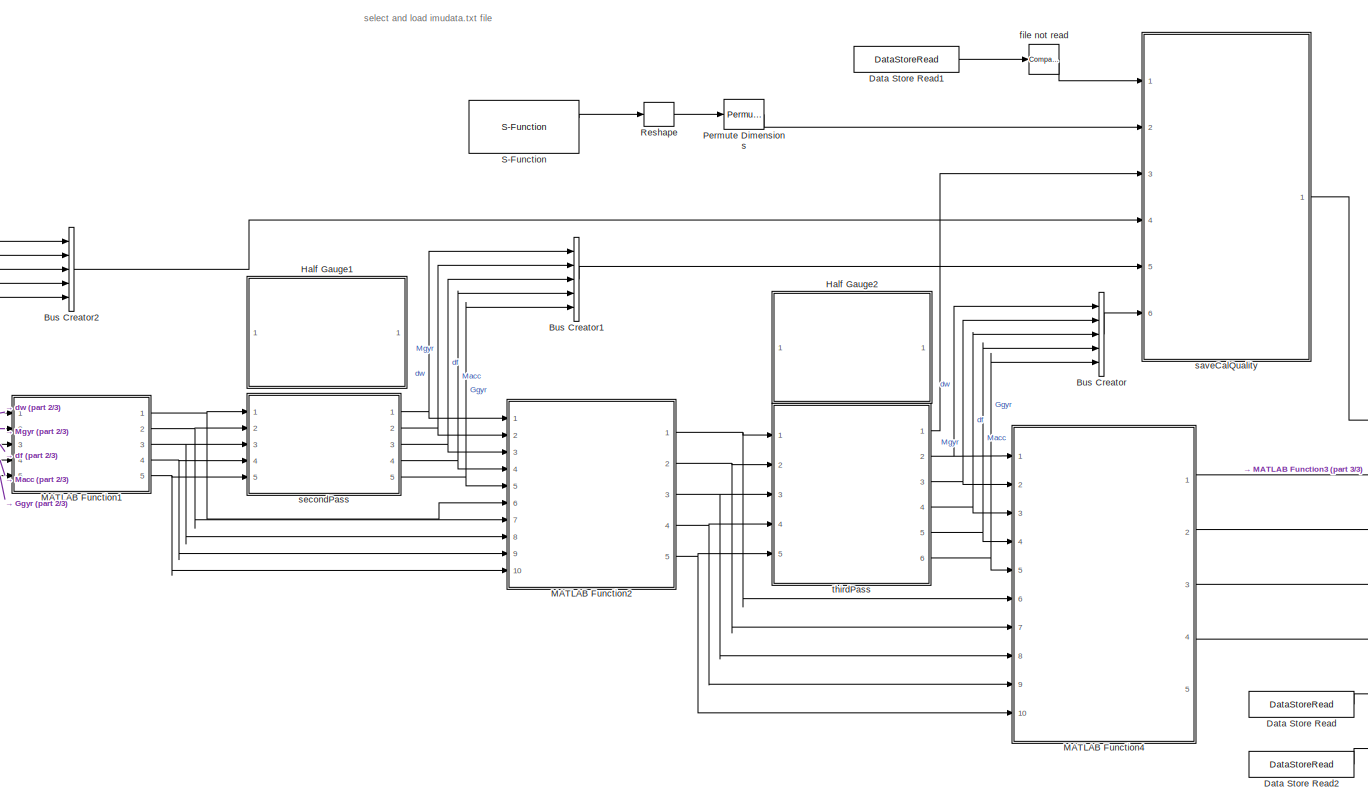
[diagram: root canvas - part 1/3, center side, full height]
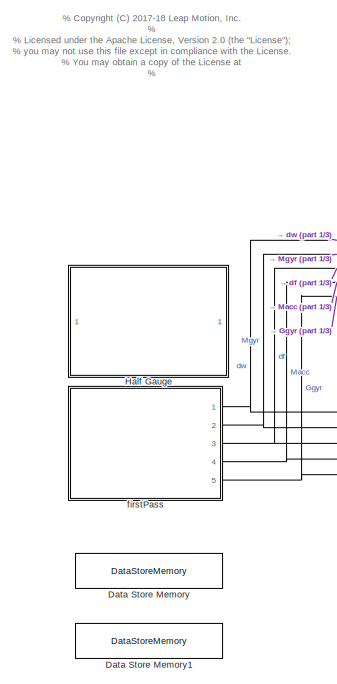
[diagram: root canvas - part 2/3, left side, full height]
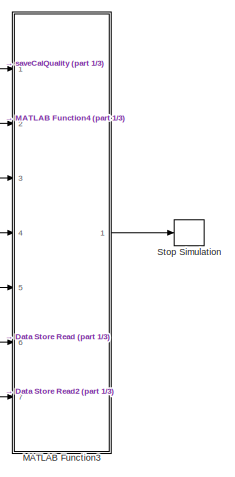
[diagram: root canvas - part 3/3, bottom right region]
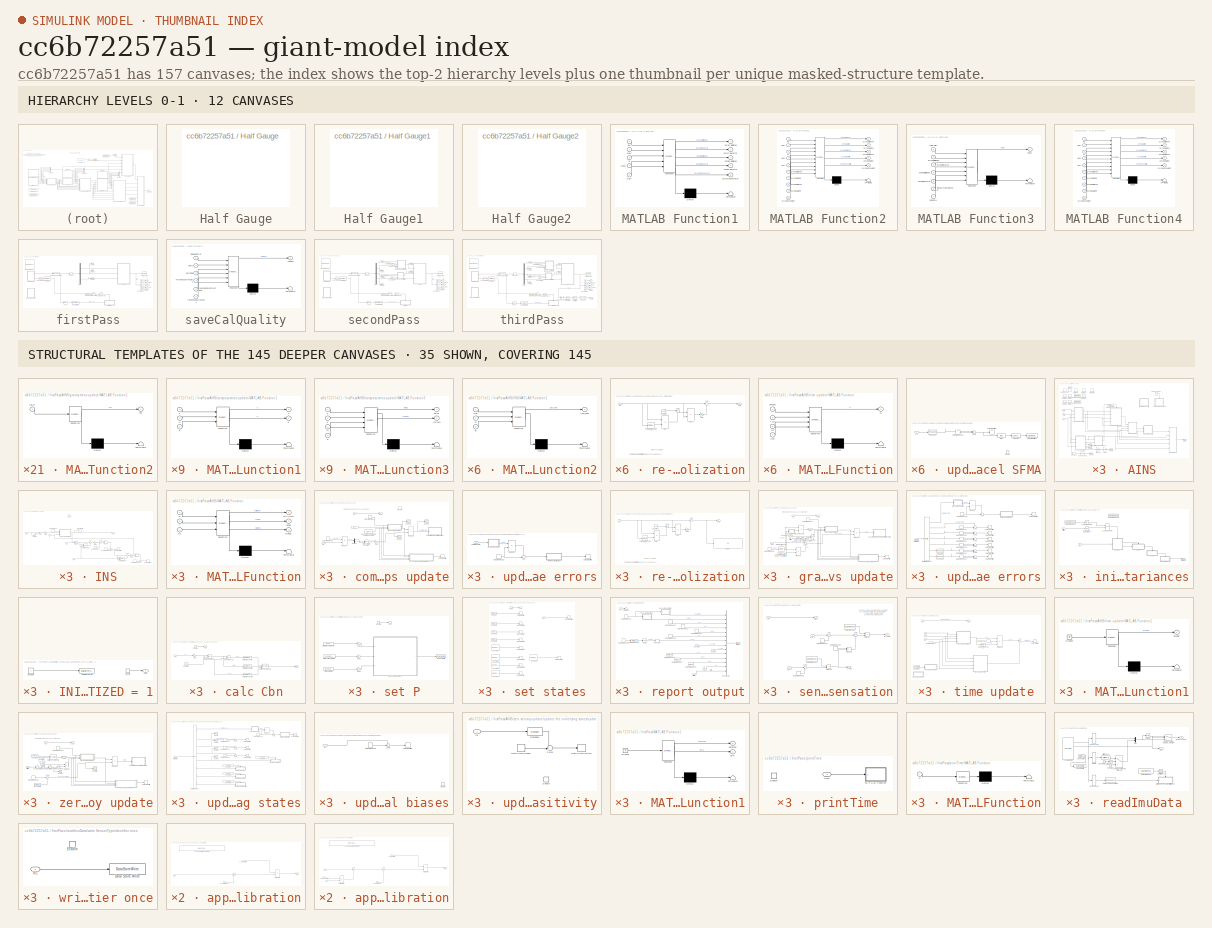
[diagram: thumbnail index - top-2 hierarchy levels (12 canvases) + 35 structural-template representatives of the remaining 145 canvases]
MODEL slx_cc6b72257a51
KIND model
CONFIG AbsTol = auto
CONFIG EnableMultiTasking = off
CONFIG FixedStep = 1/Fss
CONFIG InitFcn = modelDef = getModelDef(true);
CONFIG MaxStep = auto
CONFIG MinStep = auto
CONFIG PreLoadFcn = busDef\nFss = 1125;\nFss = 2100;\n\n
CONFIG RelTol = 1e-3
CONFIG SampleTimeConstraint = Unconstrained
CONFIG Solver = FixedStepDiscrete
CONFIG SolverName = FixedStepDiscrete
CONFIG StartTime = 0.0
CONFIG StopTime = inf
BLOCK [BusCreator] Bus Creator
  DisplayOption = bar
  InheritFromInputs = on
  Inputs = dw,Mgyr,df,Macc,Ggyr
  Ports = [5, 1]
BLOCK [BusCreator] Bus Creator1
  DisplayOption = bar
  InheritFromInputs = on
  Inputs = dw,Mgyr,df,Macc,Ggyr
  Ports = [5, 1]
BLOCK [BusCreator] Bus Creator2
  DisplayOption = bar
  InheritFromInputs = on
  Inputs = dw,Mgyr,df,Macc,Ggyr
  Ports = [5, 1]
BLOCK [DataStoreMemory] Data Store Memory
  DataStoreName = SensorTypeIdentifier
  InitialValue = -1
  OutDataTypeStr = int32
  ReadBeforeWriteMsg = warning
  ShowAdditionalParam = off
  SignalType = real
  WriteAfterReadMsg = warning
  WriteAfterWriteMsg = warning
BLOCK [DataStoreMemory] Data Store Memory1
  DataStoreName = cal_file_name
  Dimensions = [1,43]
  InitialValue = [76,69,48,48,48,48,48,48,48,48,48,48,48,48,48,48,48,48,45,48,48,48,48,45,48,48,48,48,48,48,48,48,48,48,45,105,109,117,46,106,115,111,110]
  OutDataTypeStr = uint8
  ReadBeforeWriteMsg = warning
  ShowAdditionalParam = off
  SignalType = real
  WriteAfterReadMsg = warning
  WriteAfterWriteMsg = warning
BLOCK [DataStoreRead] Data Store Read
  DataStoreName = SensorTypeIdentifier
  Ports = [0, 1]
  Priority = 7
BLOCK [DataStoreRead] Data Store Read1
  DataStoreName = SensorTypeIdentifier
  Ports = [0, 1]
  Priority = 7
BLOCK [DataStoreRead] Data Store Read2
  DataStoreName = cal_file_name
  Ports = [0, 1]
  Priority = 7
BLOCK [SubSystem] Half Gauge
  DialogController = hmiCreateDDGDialog
  IsWebBlock = on
  MaskHideContents = on
  Ports = []
  RequestExecContextInheritance = off
BLOCK [SubSystem] Half Gauge1
  DialogController = hmiCreateDDGDialog
  IsWebBlock = on
  MaskHideContents = on
  Ports = []
  RequestExecContextInheritance = off
BLOCK [SubSystem] Half Gauge2
  DialogController = hmiCreateDDGDialog
  IsWebBlock = on
  MaskHideContents = on
  Ports = []
  RequestExecContextInheritance = off
BLOCK [SubSystem] MATLAB Function1
  ErrorFcn = Stateflow.Translate.translate
  PermitHierarchicalResolution = ExplicitOnly
  Ports = [5, 5]
  RequestExecContextInheritance = off
  SFBlockType = MATLAB Function
  TreatAsAtomicUnit = on
BLOCK [Demux] MATLAB Function1/ Demux 
  Outputs = 1
  Ports = [1, 1]
BLOCK [S-Function] MATLAB Function1/ SFunction 
  EnableBusSupport = on
  FunctionName = sf_sfun
  PortCounts = [5 6]
  Ports = [5, 6]
  SFcnIsStateOwnerBlock = off
  SFunctionDeploymentMode = off
  Tag = Stateflow S-Function ImuCalibrator3Pass 18
BLOCK [Terminator] MATLAB Function1/ Terminator 
BLOCK [Inport] MATLAB Function1/Ggyr
  IconDisplay = Port number
  Port = 5
BLOCK [Inport] MATLAB Function1/Macc
  IconDisplay = Port number
  Port = 4
BLOCK [Inport] MATLAB Function1/Mgyr
  IconDisplay = Port number
  Port = 2
BLOCK [Outport] MATLAB Function1/accelCalBiases
  IconDisplay = Port number
  Port = 3
BLOCK [Outport] MATLAB Function1/accelCalMatrix
  IconDisplay = Port number
  Port = 4
BLOCK [Inport] MATLAB Function1/df
  IconDisplay = Port number
  Port = 3
BLOCK [Inport] MATLAB Function1/dw
  IconDisplay = Port number
BLOCK [Outport] MATLAB Function1/gyroCalBiases
  IconDisplay = Port number
BLOCK [Outport] MATLAB Function1/gyroCalMatrix
  IconDisplay = Port number
  Port = 2
BLOCK [Outport] MATLAB Function1/gyroGsensMatrix
  IconDisplay = Port number
  Port = 5
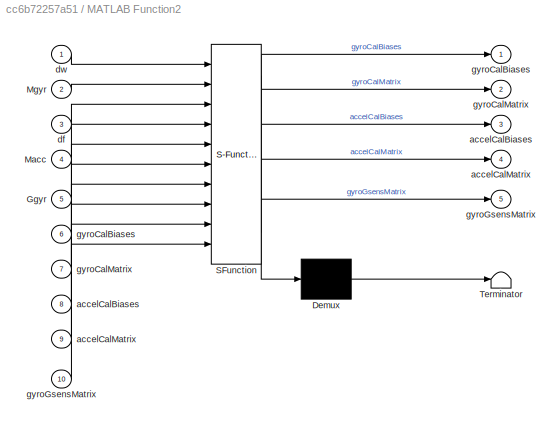
BLOCK [SubSystem] MATLAB Function2
  ErrorFcn = Stateflow.Translate.translate
  PermitHierarchicalResolution = ExplicitOnly
  Ports = [10, 5]
  RequestExecContextInheritance = off
  SFBlockType = MATLAB Function
  TreatAsAtomicUnit = on
BLOCK [Demux] MATLAB Function2/ Demux 
  Outputs = 1
  Ports = [1, 1]
BLOCK [S-Function] MATLAB Function2/ SFunction 
  EnableBusSupport = on
  FunctionName = sf_sfun
  PortCounts = [10 6]
  Ports = [10, 6]
  SFcnIsStateOwnerBlock = off
  SFunctionDeploymentMode = off
  Tag = Stateflow S-Function ImuCalibrator3Pass 19
BLOCK [Terminator] MATLAB Function2/ Terminator 
BLOCK [Inport] MATLAB Function2/Ggyr
  IconDisplay = Port number
  Port = 5
BLOCK [Inport] MATLAB Function2/Macc
  IconDisplay = Port number
  Port = 4
BLOCK [Inport] MATLAB Function2/Mgyr
  IconDisplay = Port number
  Port = 2
BLOCK [Outport] MATLAB Function2/accelCalBiases
  IconDisplay = Port number
  Port = 3
BLOCK [Inport] MATLAB Function2/accelCalBiases 
  IconDisplay = Port number
  Port = 8
BLOCK [Outport] MATLAB Function2/accelCalMatrix
  IconDisplay = Port number
  Port = 4
BLOCK [Inport] MATLAB Function2/accelCalMatrix 
  IconDisplay = Port number
  Port = 9
BLOCK [Inport] MATLAB Function2/df
  IconDisplay = Port number
  Port = 3
BLOCK [Inport] MATLAB Function2/dw
  IconDisplay = Port number
BLOCK [Outport] MATLAB Function2/gyroCalBiases
  IconDisplay = Port number
BLOCK [Inport] MATLAB Function2/gyroCalBiases 
  IconDisplay = Port number
  Port = 6
BLOCK [Outport] MATLAB Function2/gyroCalMatrix
  IconDisplay = Port number
  Port = 2
BLOCK [Inport] MATLAB Function2/gyroCalMatrix 
  IconDisplay = Port number
  Port = 7
BLOCK [Outport] MATLAB Function2/gyroGsensMatrix
  IconDisplay = Port number
  Port = 5
BLOCK [Inport] MATLAB Function2/gyroGsensMatrix 
  IconDisplay = Port number
  Port = 10
BLOCK [SubSystem] MATLAB Function3
  ErrorFcn = Stateflow.Translate.translate
  PermitHierarchicalResolution = ExplicitOnly
  Ports = [7, 1]
  RequestExecContextInheritance = off
  SFBlockType = MATLAB Function
  TreatAsAtomicUnit = on
BLOCK [Demux] MATLAB Function3/ Demux 
  Outputs = 1
  Ports = [1, 1]
BLOCK [S-Function] MATLAB Function3/ SFunction 
  EnableBusSupport = on
  FunctionName = sf_sfun
  PortCounts = [7 2]
  Ports = [7, 2]
  SFcnIsStateOwnerBlock = off
  SFunctionDeploymentMode = off
  Tag = Stateflow S-Function ImuCalibrator3Pass 65
BLOCK [Terminator] MATLAB Function3/ Terminator 
BLOCK [Inport] MATLAB Function3/SensorTypeIdentifier
  IconDisplay = Port number
  Port = 6
BLOCK [Inport] MATLAB Function3/accelCalBiases
  IconDisplay = Port number
  Port = 4
BLOCK [Inport] MATLAB Function3/accelCalMatrix
  IconDisplay = Port number
  Port = 5
BLOCK [Inport] MATLAB Function3/calQuality
  IconDisplay = Port number
BLOCK [Outport] MATLAB Function3/done
  IconDisplay = Port number
BLOCK [Inport] MATLAB Function3/filename
  IconDisplay = Port number
  Port = 7
BLOCK [Inport] MATLAB Function3/gyroCalBiases
  IconDisplay = Port number
  Port = 2
BLOCK [Inport] MATLAB Function3/gyroCalMatrix
  IconDisplay = Port number
  Port = 3
BLOCK [SubSystem] MATLAB Function4
  ErrorFcn = Stateflow.Translate.translate
  PermitHierarchicalResolution = ExplicitOnly
  Ports = [10, 5]
  RequestExecContextInheritance = off
  SFBlockType = MATLAB Function
  TreatAsAtomicUnit = on
BLOCK [Demux] MATLAB Function4/ Demux 
  Outputs = 1
  Ports = [1, 1]
BLOCK [S-Function] MATLAB Function4/ SFunction 
  EnableBusSupport = on
  FunctionName = sf_sfun
  PortCounts = [10 6]
  Ports = [10, 6]
  SFcnIsStateOwnerBlock = off
  SFunctionDeploymentMode = off
  Tag = Stateflow S-Function ImuCalibrator3Pass 66
BLOCK [Terminator] MATLAB Function4/ Terminator 
BLOCK [Inport] MATLAB Function4/Ggyr
  IconDisplay = Port number
  Port = 5
BLOCK [Inport] MATLAB Function4/Macc
  IconDisplay = Port number
  Port = 4
BLOCK [Inport] MATLAB Function4/Mgyr
  IconDisplay = Port number
  Port = 2
BLOCK [Outport] MATLAB Function4/accelCalBiases
  IconDisplay = Port number
  Port = 3
BLOCK [Inport] MATLAB Function4/accelCalBiases 
  IconDisplay = Port number
  Port = 8
BLOCK [Outport] MATLAB Function4/accelCalMatrix
  IconDisplay = Port number
  Port = 4
BLOCK [Inport] MATLAB Function4/accelCalMatrix 
  IconDisplay = Port number
  Port = 9
BLOCK [Inport] MATLAB Function4/df
  IconDisplay = Port number
  Port = 3
BLOCK [Inport] MATLAB Function4/dw
  IconDisplay = Port number
BLOCK [Outport] MATLAB Function4/gyroCalBiases
  IconDisplay = Port number
BLOCK [Inport] MATLAB Function4/gyroCalBiases 
  IconDisplay = Port number
  Port = 6
BLOCK [Outport] MATLAB Function4/gyroCalMatrix
  IconDisplay = Port number
  Port = 2
BLOCK [Inport] MATLAB Function4/gyroCalMatrix 
  IconDisplay = Port number
  Port = 7
BLOCK [Outport] MATLAB Function4/gyroGsensMatrix
  IconDisplay = Port number
  Port = 5
BLOCK [Inport] MATLAB Function4/gyroGsensMatrix 
  IconDisplay = Port number
  Port = 10
BLOCK [PermuteDimensions] Permute Dimensions
BLOCK [Reshape] Reshape
  OutputDimensionality = Customize
  OutputDimensions = [6,3]
  Ports = [1, 1]
BLOCK [S-Function] S-Function
  EnableBusSupport = off
  FunctionName = readLimitsData
  Parameters = -1
  Ports = [0, 2]
  SFcnIsStateOwnerBlock = off
  SFunctionDeploymentMode = off
BLOCK [Stop] Stop Simulation
BLOCK [Reference] file not read  REF=simulink/Logic and Bit
Operations/Compare
To Constant
  Ports = [1, 1]
  SourceBlock = simulink/Logic and Bit\nOperations/Compare\nTo Constant
  SourceProductBaseCode = SL
  SourceProductName = Simulink
  SourceType = Compare To Constant
BLOCK [SubSystem] firstPass
  Ports = [0, 5]
  Priority = 1
  RequestExecContextInheritance = off
BLOCK [SubSystem] firstPass/AINS
  Ports = [3, 1]
  RequestExecContextInheritance = off
  TreatAsAtomicUnit = on
BLOCK [DataStoreMemory] firstPass/AINS/Data Store Memory
  DataStoreName = Cbn
  InitialValue = eye(3)
  ReadBeforeWriteMsg = warning
  ShowAdditionalParam = off
  VectorParams1D = off
  WriteAfterReadMsg = warning
  WriteAfterWriteMsg = warning
BLOCK [DataStoreMemory] firstPass/AINS/Data Store Memory1
  DataStoreName = P
  InitialValue = eye(modelDef.numStates)*1e-12
  ReadBeforeWriteMsg = warning
  ShowAdditionalParam = off
  WriteAfterReadMsg = warning
  WriteAfterWriteMsg = warning
BLOCK [DataStoreMemory] firstPass/AINS/Data Store Memory10
  DataStoreName = gnav
  InitialValue = [0;0; 9.8065]
  ReadBeforeWriteMsg = warning
  ShowAdditionalParam = off
  VectorParams1D = off
  WriteAfterReadMsg = warning
  WriteAfterWriteMsg = warning
BLOCK [DataStoreMemory] firstPass/AINS/Data Store Memory11
  DataStoreName = Ggyr
  InitialValue = zeros(3,3)
  ReadBeforeWriteMsg = warning
  ShowAdditionalParam = off
  VectorParams1D = off
  WriteAfterReadMsg = warning
  WriteAfterWriteMsg = warning
BLOCK [DataStoreMemory] firstPass/AINS/Data Store Memory2
  DataStoreName = dw
  InitialValue = [0;0;0]
  ReadBeforeWriteMsg = warning
  ShowAdditionalParam = off
  VectorParams1D = off
  WriteAfterReadMsg = warning
  WriteAfterWriteMsg = warning
BLOCK [DataStoreMemory] firstPass/AINS/Data Store Memory3
  DataStoreName = vnav
  InitialValue = [0;0;0]
  ReadBeforeWriteMsg = warning
  ShowAdditionalParam = off
  VectorParams1D = off
  WriteAfterReadMsg = warning
  WriteAfterWriteMsg = warning
BLOCK [DataStoreMemory] firstPass/AINS/Data Store Memory4
  DataStoreName = rnav
  InitialValue = [0;0;0]
  ReadBeforeWriteMsg = warning
  ShowAdditionalParam = off
  VectorParams1D = off
  WriteAfterReadMsg = warning
  WriteAfterWriteMsg = warning
BLOCK [DataStoreMemory] firstPass/AINS/Data Store Memory5
  DataStoreName = df
  InitialValue = [0;0;0]
  ReadBeforeWriteMsg = warning
  ShowAdditionalParam = off
  VectorParams1D = off
  WriteAfterReadMsg = warning
  WriteAfterWriteMsg = warning
BLOCK [DataStoreMemory] firstPass/AINS/Data Store Memory6
  DataStoreName = Mgyr
  InitialValue = zeros(3,3)
  ReadBeforeWriteMsg = warning
  ShowAdditionalParam = off
  VectorParams1D = off
  WriteAfterReadMsg = warning
  WriteAfterWriteMsg = warning
BLOCK [DataStoreMemory] firstPass/AINS/Data Store Memory7
  DataStoreName = Macc
  InitialValue = zeros(3,3)
  ReadBeforeWriteMsg = warning
  ShowAdditionalParam = off
  VectorParams1D = off
  WriteAfterReadMsg = warning
  WriteAfterWriteMsg = warning
BLOCK [DataStoreMemory] firstPass/AINS/Data Store Memory8
  DataStoreName = IplusMinv_gyr
  InitialValue = eye(3)
  ReadBeforeWriteMsg = warning
  ShowAdditionalParam = off
  VectorParams1D = off
  WriteAfterReadMsg = warning
  WriteAfterWriteMsg = warning
BLOCK [DataStoreMemory] firstPass/AINS/Data Store Memory9
  DataStoreName = IplusMinv_acc
  InitialValue = eye(3)
  ReadBeforeWriteMsg = warning
  ShowAdditionalParam = off
  VectorParams1D = off
  WriteAfterReadMsg = warning
  WriteAfterWriteMsg = warning
BLOCK [Inport] firstPass/AINS/Dt
  IconDisplay = Port number
  Port = 3
  Unit = rad/s
BLOCK [Gain] firstPass/AINS/Gain1
  Gain = 3600
  OutDataTypeStr = Inherit: Inherit via internal rule
  ParamDataTypeStr = Inherit: Inherit via internal rule
  SaturateOnIntegerOverflow = off
BLOCK [Ground] firstPass/AINS/Ground
BLOCK [SubSystem] firstPass/AINS/INS
  Ports = [4, 1, 1]
  Priority = 2
  RequestExecContextInheritance = off
BLOCK [Outport] firstPass/AINS/INS/Cbn
  IconDisplay = Port number
BLOCK [DataStoreRead] firstPass/AINS/INS/Data Store Read
  DataStoreName = Cbn
  Ports = [0, 1]
BLOCK [DataStoreRead] firstPass/AINS/INS/Data Store Read1
  DataStoreName = gnav
  Ports = [0, 1]
BLOCK [DataStoreRead] firstPass/AINS/INS/Data Store Read2
  DataStoreName = vnav
  Ports = [0, 1]
BLOCK [DataStoreRead] firstPass/AINS/INS/Data Store Read3
  DataStoreName = rnav
  Ports = [0, 1]
BLOCK [DataStoreWrite] firstPass/AINS/INS/Data Store Write
  DataStoreName = Cbn
  Ports = [1]
BLOCK [DataStoreWrite] firstPass/AINS/INS/Data Store Write1
  DataStoreName = vnav
  Ports = [1]
BLOCK [DataStoreWrite] firstPass/AINS/INS/Data Store Write2
  DataStoreName = rnav
  Ports = [1]
BLOCK [Inport] firstPass/AINS/INS/Dt
  IconDisplay = Port number
  Port = 3
BLOCK [EnablePort] firstPass/AINS/INS/Enable
  Ports = []
BLOCK [Gain] firstPass/AINS/INS/Gain
  Gain = 1/2
  OutDataTypeStr = Inherit: Inherit via internal rule
  ParamDataTypeStr = Inherit: Inherit via internal rule
  SaturateOnIntegerOverflow = off
BLOCK [Gain] firstPass/AINS/INS/Gain1
  Gain = 1/2
  OutDataTypeStr = Inherit: Inherit via internal rule
  ParamDataTypeStr = Inherit: Inherit via internal rule
  SaturateOnIntegerOverflow = off
BLOCK [Gain] firstPass/AINS/INS/Gain2
  Gain = 1/2
  OutDataTypeStr = Inherit: Inherit via internal rule
  ParamDataTypeStr = Inherit: Inherit via internal rule
  SaturateOnIntegerOverflow = off
BLOCK [SubSystem] firstPass/AINS/INS/MATLAB Function2
  ErrorFcn = Stateflow.Translate.translate
  PermitHierarchicalResolution = ExplicitOnly
  Ports = [3, 1]
  RequestExecContextInheritance = off
  SFBlockType = MATLAB Function
  TreatAsAtomicUnit = on
BLOCK [Demux] firstPass/AINS/INS/MATLAB Function2/ Demux 
  Outputs = 1
  Ports = [1, 1]
BLOCK [S-Function] firstPass/AINS/INS/MATLAB Function2/ SFunction 
  EnableBusSupport = on
  FunctionName = sf_sfun
  PortCounts = [3 2]
  Ports = [3, 2]
  SFcnIsStateOwnerBlock = off
  SFunctionDeploymentMode = off
  Tag = Stateflow S-Function ImuCalibrator3Pass 1
BLOCK [Terminator] firstPass/AINS/INS/MATLAB Function2/ Terminator 
BLOCK [Inport] firstPass/AINS/INS/MATLAB Function2/Cbn
  IconDisplay = Port number
BLOCK [Outport] firstPass/AINS/INS/MATLAB Function2/Cbn_new
  IconDisplay = Port number
BLOCK [Inport] firstPass/AINS/INS/MATLAB Function2/dt
  IconDisplay = Port number
  Port = 3
BLOCK [Inport] firstPass/AINS/INS/MATLAB Function2/w
  IconDisplay = Port number
  Port = 2
BLOCK [Product] firstPass/AINS/INS/Product
  InputSameDT = off
  Multiplication = Matrix(*)
  OutDataTypeStr = Inherit: Inherit via internal rule
  Ports = [2, 1]
  RndMeth = Floor
  SaturateOnIntegerOverflow = off
BLOCK [Product] firstPass/AINS/INS/Product1
  InputSameDT = off
  OutDataTypeStr = Inherit: Inherit via internal rule
  Ports = [2, 1]
  RndMeth = Floor
  SaturateOnIntegerOverflow = off
BLOCK [Product] firstPass/AINS/INS/Product2
  InputSameDT = off
  OutDataTypeStr = Inherit: Inherit via internal rule
  Ports = [2, 1]
  RndMeth = Floor
  SaturateOnIntegerOverflow = off
BLOCK [Delay] firstPass/AINS/INS/Resettable Delay
  DelayLength = 1
  ExternalReset = Level
  InitialConditionSource = Input port
  InputPortMap = u0,r5,p4
  Ports = [3, 1]
BLOCK [Delay] firstPass/AINS/INS/Resettable Delay1
  DelayLength = 1
  ExternalReset = Level
  InitialConditionSource = Input port
  InputPortMap = u0,r5,p4
  Ports = [3, 1]
BLOCK [Sum] firstPass/AINS/INS/Sum
  IconShape = round
  InputSameDT = off
  Inputs = |++
  OutDataTypeStr = Inherit: Inherit via internal rule
  Ports = [2, 1]
  SaturateOnIntegerOverflow = off
BLOCK [Sum] firstPass/AINS/INS/Sum1
  IconShape = round
  InputSameDT = off
  Inputs = |++
  OutDataTypeStr = Inherit: Inherit via internal rule
  Ports = [2, 1]
  SaturateOnIntegerOverflow = off
BLOCK [Sum] firstPass/AINS/INS/Sum2
  IconShape = round
  InputSameDT = off
  Inputs = |++
  OutDataTypeStr = Inherit: Inherit via internal rule
  Ports = [2, 1]
  SaturateOnIntegerOverflow = off
BLOCK [Sum] firstPass/AINS/INS/Sum3
  IconShape = round
  InputSameDT = off
  Inputs = ++|
  OutDataTypeStr = Inherit: Inherit via internal rule
  Ports = [2, 1]
  SaturateOnIntegerOverflow = off
BLOCK [Sum] firstPass/AINS/INS/Sum4
  IconShape = round
  InputSameDT = off
  Inputs = ++|
  OutDataTypeStr = Inherit: Inherit via internal rule
  Ports = [2, 1]
  SaturateOnIntegerOverflow = off
BLOCK [Sum] firstPass/AINS/INS/Sum5
  IconShape = round
  InputSameDT = off
  Inputs = |++
  OutDataTypeStr = Inherit: Inherit via internal rule
  Ports = [2, 1]
  SaturateOnIntegerOverflow = off
BLOCK [UnitDelay] firstPass/AINS/INS/Unit Delay
  InputProcessing = Elements as channels (sample based)
  SampleTime = -1
BLOCK [Inport] firstPass/AINS/INS/f_ib
  IconDisplay = Port number
  Port = 2
BLOCK [Inport] firstPass/AINS/INS/init
  IconDisplay = Port number
  Port = 4
BLOCK [Inport] firstPass/AINS/INS/w_ib
  IconDisplay = Port number
BLOCK [SubSystem] firstPass/AINS/MATLAB Function
  ErrorFcn = Stateflow.Translate.translate
  PermitHierarchicalResolution = ExplicitOnly
  Ports = [3, 3]
  RequestExecContextInheritance = off
  SFBlockType = MATLAB Function
  TreatAsAtomicUnit = on
BLOCK [Demux] firstPass/AINS/MATLAB Function/ Demux 
  Outputs = 1
  Ports = [1, 1]
BLOCK [S-Function] firstPass/AINS/MATLAB Function/ SFunction 
  EnableBusSupport = on
  FunctionName = sf_sfun
  PortCounts = [3 4]
  Ports = [3, 4]
  SFcnIsStateOwnerBlock = off
  SFunctionDeploymentMode = off
  Tag = Stateflow S-Function ImuCalibrator3Pass 5
BLOCK [Terminator] firstPass/AINS/MATLAB Function/ Terminator 
BLOCK [Inport] firstPass/AINS/MATLAB Function/Dt
  IconDisplay = Port number
  Port = 3
BLOCK [Inport] firstPass/AINS/MATLAB Function/f
  IconDisplay = Port number
  Port = 2
BLOCK [Outport] firstPass/AINS/MATLAB Function/favgs
  IconDisplay = Port number
  Port = 2
BLOCK [Outport] firstPass/AINS/MATLAB Function/stilltime
  IconDisplay = Port number
BLOCK [Inport] firstPass/AINS/MATLAB Function/w
  IconDisplay = Port number
BLOCK [Outport] firstPass/AINS/MATLAB Function/wavgs
  IconDisplay = Port number
  Port = 3
BLOCK [Reference] firstPass/AINS/Moving Average  REF=dspstat3/Moving
Average
  Ports = [1, 1]
  SourceBlock = dspstat3/Moving\nAverage
  SourceProductBaseCode = DS
  SourceProductName = DSP System Toolbox
  SourceType = dsp.simulink.MovingAverage
BLOCK [Reshape] firstPass/AINS/Reshape
  OutputDimensionality = Row vector (2-D)
  Ports = [1, 1]
BLOCK [Reference] firstPass/AINS/S-R Flip-Flop  REF=simulink_extras/Flip Flops/S-R
Flip-Flop
  Ports = [2, 2]
  SourceBlock = simulink_extras/Flip Flops/S-R\nFlip-Flop
  SourceProductBaseCode = SL
  SourceProductName = Simulink
  SourceType = SRFlipFlop
BLOCK [Scope] firstPass/AINS/Scope3
  Floating = off
  NumInputPorts = 1
  Ports = [1]
  ScopeSpecificationString = Simulink.scopes.TimeScopeBlockCfg('CurrentConfiguration', extmgr.ConfigurationSet(extmgr.Configuration('Core','General UI',true),extmgr.Configuration('Core','Source UI',true),extmgr.Configuration('Sources','WiredSimulink',true,'DataLoggingVariableName','ScopeData1'),extmgr.Configuration('Visuals','Time Domain',true,'SerializedDisplays',{struct('MinYLimReal','0.00569','MaxYLimReal','0.00754','YLabe...<+1474ch>  <repeated x3 — deduplicated; at blocks: Scope3>
BLOCK [Scope] firstPass/AINS/Scope4
  Floating = off
  NumInputPorts = 1
  Ports = [1]
  ScopeSpecificationString = Simulink.scopes.TimeScopeBlockCfg('CurrentConfiguration', extmgr.ConfigurationSet(extmgr.Configuration('Core','General UI',true),extmgr.Configuration('Core','Source UI',true),extmgr.Configuration('Sources','WiredSimulink',true,'DataLoggingVariableName','ScopeData2'),extmgr.Configuration('Visuals','Time Domain',true,'SerializedDisplays',{struct('MinYLimReal','0.00976','MaxYLimReal','4.15684','YLabe...<+1451ch>  <repeated x3 — deduplicated; at blocks: Scope4>
BLOCK [Scope] firstPass/AINS/Scope5
  Floating = off
  NumInputPorts = 1
  Ports = [1]
  ScopeSpecificationString = Simulink.scopes.TimeScopeBlockCfg('CurrentConfiguration', extmgr.ConfigurationSet(extmgr.Configuration('Core','General UI',true),extmgr.Configuration('Core','Source UI',true),extmgr.Configuration('Sources','WiredSimulink',true,'DataLoggingVariableName','ScopeData3'),extmgr.Configuration('Visuals','Time Domain',true,'SerializedDisplays',{struct('MinYLimReal','-343.49455','MaxYLimReal','229.02303','...<+1472ch>  <repeated x3 — deduplicated; at blocks: Scope5>
BLOCK [Scope] firstPass/AINS/Scope6
  Floating = off
  NumInputPorts = 1
  Ports = [1]
  ScopeSpecificationString = Simulink.scopes.TimeScopeBlockCfg('CurrentConfiguration', extmgr.ConfigurationSet(extmgr.Configuration('Core','General UI',true),extmgr.Configuration('Core','Source UI',true),extmgr.Configuration('Sources','WiredSimulink',true,'DataLoggingVariableName','ScopeData4'),extmgr.Configuration('Visuals','Time Domain',true,'SerializedDisplays',{struct('MinYLimReal','-0.07762','MaxYLimReal','0.69826','YLab...<+1485ch>  <repeated x3 — deduplicated; at blocks: Scope6>
BLOCK [SubSystem] firstPass/AINS/compass meas update
  Commented = on
  Ports = [2, 1, 1]
  RequestExecContextInheritance = off
  TreatAsAtomicUnit = on
BLOCK [DataStoreRead] firstPass/AINS/compass meas update/Data Store Read1
  DataStoreName = Cbn
  Ports = [0, 1]
BLOCK [DataStoreRead] firstPass/AINS/compass meas update/Data Store Read3
  DataStoreName = P
  Ports = [0, 1]
BLOCK [DataStoreWrite] firstPass/AINS/compass meas update/Data Store Write
  DataStoreName = P
  Ports = [1]
BLOCK [Demux] firstPass/AINS/compass meas update/Demux
  DisplayOption = bar
  Outputs = 3
  Ports = [1, 3]
BLOCK [EnablePort] firstPass/AINS/compass meas update/Enable
  Ports = []
BLOCK [Gain] firstPass/AINS/compass meas update/Gain
  Gain = -1
  OutDataTypeStr = Inherit: Inherit via internal rule
  ParamDataTypeStr = Inherit: Inherit via internal rule
  SaturateOnIntegerOverflow = off
BLOCK [Constant] firstPass/AINS/compass meas update/H
  Value = [ 0 0 1]
  VectorParams1D = off
BLOCK [Inport] firstPass/AINS/compass meas update/In1
  IconDisplay = Port number
BLOCK [SubSystem] firstPass/AINS/compass meas update/MATLAB Function1
  ErrorFcn = Stateflow.Translate.translate
  PermitHierarchicalResolution = ExplicitOnly
  Ports = [3, 2]
  RequestExecContextInheritance = off
  SFBlockType = MATLAB Function
  TreatAsAtomicUnit = on
BLOCK [Demux] firstPass/AINS/compass meas update/MATLAB Function1/ Demux 
  Outputs = 1
  Ports = [1, 1]
BLOCK [S-Function] firstPass/AINS/compass meas update/MATLAB Function1/ SFunction 
  EnableBusSupport = on
  FunctionName = sf_sfun
  PortCounts = [3 3]
  Ports = [3, 3]
  SFcnIsStateOwnerBlock = off
  SFunctionDeploymentMode = off
  Tag = Stateflow S-Function ImuCalibrator3Pass 27
BLOCK [Terminator] firstPass/AINS/compass meas update/MATLAB Function1/ Terminator 
BLOCK [Inport] firstPass/AINS/compass meas update/MATLAB Function1/H
  IconDisplay = Port number
  Port = 2
BLOCK [Outport] firstPass/AINS/compass meas update/MATLAB Function1/K
  IconDisplay = Port number
  Port = 2
BLOCK [Inport] firstPass/AINS/compass meas update/MATLAB Function1/P
  IconDisplay = Port number
BLOCK [Inport] firstPass/AINS/compass meas update/MATLAB Function1/R
  IconDisplay = Port number
  Port = 3
BLOCK [Outport] firstPass/AINS/compass meas update/MATLAB Function1/S
  IconDisplay = Port number
BLOCK [SubSystem] firstPass/AINS/compass meas update/MATLAB Function3
  ErrorFcn = Stateflow.Translate.translate
  PermitHierarchicalResolution = ExplicitOnly
  Ports = [4, 2]
  RequestExecContextInheritance = off
  SFBlockType = MATLAB Function
  TreatAsAtomicUnit = on
BLOCK [Demux] firstPass/AINS/compass meas update/MATLAB Function3/ Demux 
  Outputs = 1
  Ports = [1, 1]
BLOCK [S-Function] firstPass/AINS/compass meas update/MATLAB Function3/ SFunction 
  EnableBusSupport = on
  FunctionName = sf_sfun
  PortCounts = [4 3]
  Ports = [4, 3]
  SFcnIsStateOwnerBlock = off
  SFunctionDeploymentMode = off
  Tag = Stateflow S-Function ImuCalibrator3Pass 33
BLOCK [Terminator] firstPass/AINS/compass meas update/MATLAB Function3/ Terminator 
BLOCK [Inport] firstPass/AINS/compass meas update/MATLAB Function3/H
  IconDisplay = Port number
  Port = 3
BLOCK [Outport] firstPass/AINS/compass meas update/MATLAB Function3/IminKH
  IconDisplay = Port number
  Port = 2
BLOCK [Inport] firstPass/AINS/compass meas update/MATLAB Function3/K
  IconDisplay = Port number
  Port = 2
BLOCK [Inport] firstPass/AINS/compass meas update/MATLAB Function3/P
  IconDisplay = Port number
BLOCK [Outport] firstPass/AINS/compass meas update/MATLAB Function3/Pplus
  IconDisplay = Port number
BLOCK [Inport] firstPass/AINS/compass meas update/MATLAB Function3/R
  IconDisplay = Port number
  Port = 4
BLOCK [Outport] firstPass/AINS/compass meas update/Out1
  IconDisplay = Port number
BLOCK [Product] firstPass/AINS/compass meas update/Product
  InputSameDT = off
  Multiplication = Matrix(*)
  OutDataTypeStr = Inherit: Inherit via internal rule
  Ports = [2, 1]
  RndMeth = Floor
  SaturateOnIntegerOverflow = off
BLOCK [Product] firstPass/AINS/compass meas update/Product1
  InputSameDT = off
  Multiplication = Matrix(*)
  OutDataTypeStr = Inherit: Inherit via internal rule
  Ports = [2, 1]
  RndMeth = Floor
  SaturateOnIntegerOverflow = off
BLOCK [Constant] firstPass/AINS/compass meas update/R assumes 10 deg rms compass noise
  Value = 0.34^2
BLOCK [Scope] firstPass/AINS/compass meas update/Scope
  Floating = off
  NumInputPorts = 1
  Ports = [1]
  ScopeSpecificationString = Simulink.scopes.TimeScopeBlockCfg('CurrentConfiguration', extmgr.ConfigurationSet(extmgr.Configuration('Core','General UI',true),extmgr.Configuration('Core','Source UI',true),extmgr.Configuration('Sources','WiredSimulink',true,'DataLoggingVariableName','ScopeData3'),extmgr.Configuration('Visuals','Time Domain',true,'SerializedDisplays',{struct('MinYLimReal','-1.02533','MaxYLimReal','0.98365','YLab...<+1503ch>  <repeated x3 — deduplicated; at blocks: Scope>
BLOCK [Scope] firstPass/AINS/compass meas update/Scope1
  Floating = off
  NumInputPorts = 1
  Ports = [1]
  ScopeSpecificationString = Simulink.scopes.TimeScopeBlockCfg('CurrentConfiguration', extmgr.ConfigurationSet(extmgr.Configuration('Core','General UI',true),extmgr.Configuration('Core','Source UI',true),extmgr.Configuration('Sources','WiredSimulink',true,'DataLoggingVariableName','ScopeData10'),extmgr.Configuration('Visuals','Time Domain',true,'SerializedDisplays',{struct('MinYLimReal','-0.05049','MaxYLimReal','0.04542','YLa...<+1408ch>  <repeated x3 — deduplicated; at blocks: Scope1>
BLOCK [Scope] firstPass/AINS/compass meas update/Scope2
  Floating = off
  NumInputPorts = 1
  Ports = [1]
  ScopeSpecificationString = Simulink.scopes.TimeScopeBlockCfg('CurrentConfiguration', extmgr.ConfigurationSet(extmgr.Configuration('Core','General UI',true),extmgr.Configuration('Core','Source UI',true),extmgr.Configuration('Sources','WiredSimulink',true,'DataLoggingVariableName','ScopeData12'),extmgr.Configuration('Visuals','Time Domain',true,'SerializedDisplays',{struct('MinYLimReal','-0.119','MaxYLimReal','1.07099','YLabe...<+1466ch>  <repeated x3 — deduplicated; at blocks: Scope2>
BLOCK [Trigonometry] firstPass/AINS/compass meas update/Trigonometric Function
  Operator = atan2
  Ports = [2, 1]
BLOCK [Inport] firstPass/AINS/compass meas update/m^b
  IconDisplay = Port number
  Port = 2
BLOCK [SubSystem] firstPass/AINS/compass meas update/update the Cbn with the errors
  Ports = [1]
  RequestExecContextInheritance = off
BLOCK [DataStoreRead] firstPass/AINS/compass meas update/update the Cbn with the errors/Data Store Read2
  DataStoreName = Cbn
  Ports = [0, 1]
BLOCK [DataStoreWrite] firstPass/AINS/compass meas update/update the Cbn with the errors/Data Store Write1
  DataStoreName = Cbn
  Ports = [1]
BLOCK [SubSystem] firstPass/AINS/compass meas update/update the Cbn with the errors/MATLAB Function
  ErrorFcn = Stateflow.Translate.translate
  PermitHierarchicalResolution = ExplicitOnly
  Ports = [1, 1]
  RequestExecContextInheritance = off
  SFBlockType = MATLAB Function
  TreatAsAtomicUnit = on
BLOCK [Demux] firstPass/AINS/compass meas update/update the Cbn with the errors/MATLAB Function/ Demux 
  Outputs = 1
  Ports = [1, 1]
BLOCK [S-Function] firstPass/AINS/compass meas update/update the Cbn with the errors/MATLAB Function/ SFunction 
  EnableBusSupport = on
  FunctionName = sf_sfun
  PortCounts = [1 2]
  Ports = [1, 2]
  SFcnIsStateOwnerBlock = off
  SFunctionDeploymentMode = off
  Tag = Stateflow S-Function ImuCalibrator3Pass 36
BLOCK [Terminator] firstPass/AINS/compass meas update/update the Cbn with the errors/MATLAB Function/ Terminator 
BLOCK [Inport] firstPass/AINS/compass meas update/update the Cbn with the errors/MATLAB Function/inp_vr
  IconDisplay = Port number
BLOCK [Outport] firstPass/AINS/compass meas update/update the Cbn with the errors/MATLAB Function/res
  IconDisplay = Port number
BLOCK [Product] firstPass/AINS/compass meas update/update the Cbn with the errors/Product2
  InputSameDT = off
  Multiplication = Matrix(*)
  OutDataTypeStr = Inherit: Inherit via internal rule
  Ports = [2, 1]
  RndMeth = Floor
  SaturateOnIntegerOverflow = off
BLOCK [Sum] firstPass/AINS/compass meas update/update the Cbn with the errors/Sum
  IconShape = round
  InputSameDT = off
  Inputs = ++|
  OutDataTypeStr = Inherit: Inherit via internal rule
  Ports = [2, 1]
  SaturateOnIntegerOverflow = off
BLOCK [Inport] firstPass/AINS/compass meas update/update the Cbn with the errors/phi  rotation errors
  IconDisplay = Port number
BLOCK [SubSystem] firstPass/AINS/compass meas update/update the Cbn with the errors/re-orthonormalization
  Ports = [1, 1]
  RequestExecContextInheritance = off
  TreatAsAtomicUnit = on
BLOCK [Product] firstPass/AINS/compass meas update/update the Cbn with the errors/re-orthonormalization/C*C'
  InputSameDT = off
  Multiplication = Matrix(*)
  OutDataTypeStr = Inherit: Inherit via internal rule
  Ports = [2, 1]
  RndMeth = Floor
  SaturateOnIntegerOverflow = off
BLOCK [Product] firstPass/AINS/compass meas update/update the Cbn with the errors/re-orthonormalization/C*C'1
  InputSameDT = off
  Multiplication = Matrix(*)
  OutDataTypeStr = Inherit: Inherit via internal rule
  Ports = [2, 1]
  RndMeth = Floor
  SaturateOnIntegerOverflow = off
BLOCK [Constant] firstPass/AINS/compass meas update/update the Cbn with the errors/re-orthonormalization/Constant
  Value = eye(3)
BLOCK [Display] firstPass/AINS/compass meas update/update the Cbn with the errors/re-orthonormalization/Display
  Decimation = 1
  Ports = [1]
BLOCK [Gain] firstPass/AINS/compass meas update/update the Cbn with the errors/re-orthonormalization/Gain
  Gain = 1/2
  OutDataTypeStr = Inherit: Inherit via internal rule
  ParamDataTypeStr = Inherit: Inherit via internal rule
  SaturateOnIntegerOverflow = off
BLOCK [Inport] firstPass/AINS/compass meas update/update the Cbn with the errors/re-orthonormalization/In1
  IconDisplay = Port number
BLOCK [Outport] firstPass/AINS/compass meas update/update the Cbn with the errors/re-orthonormalization/Out1
  IconDisplay = Port number
BLOCK [PermuteDimensions] firstPass/AINS/compass meas update/update the Cbn with the errors/re-orthonormalization/Permute Dimensions
BLOCK [Sum] firstPass/AINS/compass meas update/update the Cbn with the errors/re-orthonormalization/Sum
  IconShape = round
  InputSameDT = off
  Inputs = |++
  OutDataTypeStr = Inherit: Inherit via internal rule
  Ports = [2, 1]
  SaturateOnIntegerOverflow = off
BLOCK [Sum] firstPass/AINS/compass meas update/update the Cbn with the errors/re-orthonormalization/Sum1
  IconShape = round
  InputSameDT = off
  Inputs = |+-
  OutDataTypeStr = Inherit: Inherit via internal rule
  Ports = [2, 1]
  SaturateOnIntegerOverflow = off
BLOCK [Constant] firstPass/AINS/disable compass
  Commented = on
  Value = 0
BLOCK [Inport] firstPass/AINS/f_ib^b
  IconDisplay = Port number
  Port = 2
  PortDimensions = 3
  Unit = m/s^2
BLOCK [Outport] firstPass/AINS/filterOut
  IconDisplay = Port number
BLOCK [SubSystem] firstPass/AINS/gravity meas update
  Commented = on
  Ports = [3, 1]
  RequestExecContextInheritance = off
  TreatAsAtomicUnit = on
BLOCK [Constant] firstPass/AINS/gravity meas update/Constant
  Value = eye(3)
BLOCK [DataStoreRead] firstPass/AINS/gravity meas update/Data Store Read1
  DataStoreName = Cbn
  Ports = [0, 1]
BLOCK [DataStoreRead] firstPass/AINS/gravity meas update/Data Store Read3
  DataStoreName = P
  Ports = [0, 1]
BLOCK [DataStoreWrite] firstPass/AINS/gravity meas update/Data Store Write
  DataStoreName = P
  Ports = [1]
BLOCK [Inport] firstPass/AINS/gravity meas update/In1
  IconDisplay = Port number
BLOCK [SubSystem] firstPass/AINS/gravity meas update/MATLAB Function1
  ErrorFcn = Stateflow.Translate.translate
  PermitHierarchicalResolution = ExplicitOnly
  Ports = [3, 2]
  RTWSystemCode = Reusable function
  RequestExecContextInheritance = off
  SFBlockType = MATLAB Function
  TreatAsAtomicUnit = on
BLOCK [Demux] firstPass/AINS/gravity meas update/MATLAB Function1/ Demux 
  Outputs = 1
  Ports = [1, 1]
BLOCK [S-Function] firstPass/AINS/gravity meas update/MATLAB Function1/ SFunction 
  EnableBusSupport = on
  FunctionName = sf_sfun
  PortCounts = [3 3]
  Ports = [3, 3]
  SFcnIsStateOwnerBlock = off
  SFunctionDeploymentMode = off
  Tag = Stateflow S-Function ImuCalibrator3Pass 4
BLOCK [Terminator] firstPass/AINS/gravity meas update/MATLAB Function1/ Terminator 
BLOCK [Inport] firstPass/AINS/gravity meas update/MATLAB Function1/H
  IconDisplay = Port number
  Port = 2
BLOCK [Outport] firstPass/AINS/gravity meas update/MATLAB Function1/K
  IconDisplay = Port number
  Port = 2
BLOCK [Inport] firstPass/AINS/gravity meas update/MATLAB Function1/P
  IconDisplay = Port number
BLOCK [Inport] firstPass/AINS/gravity meas update/MATLAB Function1/R
  IconDisplay = Port number
  Port = 3
BLOCK [Outport] firstPass/AINS/gravity meas update/MATLAB Function1/S
  IconDisplay = Port number
BLOCK [SubSystem] firstPass/AINS/gravity meas update/MATLAB Function2
  ErrorFcn = Stateflow.Translate.translate
  PermitHierarchicalResolution = ExplicitOnly
  Ports = [1, 1]
  RequestExecContextInheritance = off
  SFBlockType = MATLAB Function
  TreatAsAtomicUnit = on
BLOCK [Demux] firstPass/AINS/gravity meas update/MATLAB Function2/ Demux 
  Outputs = 1
  Ports = [1, 1]
BLOCK [S-Function] firstPass/AINS/gravity meas update/MATLAB Function2/ SFunction 
  EnableBusSupport = on
  FunctionName = sf_sfun
  PortCounts = [1 2]
  Ports = [1, 2]
  SFcnIsStateOwnerBlock = off
  SFunctionDeploymentMode = off
  Tag = Stateflow S-Function ImuCalibrator3Pass 26
BLOCK [Terminator] firstPass/AINS/gravity meas update/MATLAB Function2/ Terminator 
BLOCK [Inport] firstPass/AINS/gravity meas update/MATLAB Function2/inp_vr
  IconDisplay = Port number
BLOCK [Outport] firstPass/AINS/gravity meas update/MATLAB Function2/res
  IconDisplay = Port number
BLOCK [SubSystem] firstPass/AINS/gravity meas update/MATLAB Function3
  ErrorFcn = Stateflow.Translate.translate
  PermitHierarchicalResolution = ExplicitOnly
  Ports = [4, 2]
  RTWSystemCode = Reusable function
  RequestExecContextInheritance = off
  SFBlockType = MATLAB Function
  TreatAsAtomicUnit = on
BLOCK [Demux] firstPass/AINS/gravity meas update/MATLAB Function3/ Demux 
  Outputs = 1
  Ports = [1, 1]
BLOCK [S-Function] firstPass/AINS/gravity meas update/MATLAB Function3/ SFunction 
  EnableBusSupport = on
  FunctionName = sf_sfun
  PortCounts = [4 3]
  Ports = [4, 3]
  SFcnIsStateOwnerBlock = off
  SFunctionDeploymentMode = off
  Tag = Stateflow S-Function ImuCalibrator3Pass 13
BLOCK [Terminator] firstPass/AINS/gravity meas update/MATLAB Function3/ Terminator 
BLOCK [Inport] firstPass/AINS/gravity meas update/MATLAB Function3/H
  IconDisplay = Port number
  Port = 3
BLOCK [Outport] firstPass/AINS/gravity meas update/MATLAB Function3/IminKH
  IconDisplay = Port number
  Port = 2
BLOCK [Inport] firstPass/AINS/gravity meas update/MATLAB Function3/K
  IconDisplay = Port number
  Port = 2
BLOCK [Inport] firstPass/AINS/gravity meas update/MATLAB Function3/P
  IconDisplay = Port number
BLOCK [Outport] firstPass/AINS/gravity meas update/MATLAB Function3/Pplus
  IconDisplay = Port number
BLOCK [Inport] firstPass/AINS/gravity meas update/MATLAB Function3/R
  IconDisplay = Port number
  Port = 4
BLOCK [Math] firstPass/AINS/gravity meas update/Math Function
  Operator = reciprocal
  Ports = [1, 1]
BLOCK [Math] firstPass/AINS/gravity meas update/Math Function1
  Operator = square
  Ports = [1, 1]
BLOCK [Outport] firstPass/AINS/gravity meas update/Out1
  IconDisplay = Port number
BLOCK [Reference] firstPass/AINS/gravity meas update/Pad  REF=dspsigops/Pad
  Ports = [1, 1]
  SourceBlock = dspsigops/Pad
  SourceProductBaseCode = DS
  SourceProductName = DSP System Toolbox
  SourceType = Pad
BLOCK [PermuteDimensions] firstPass/AINS/gravity meas update/Permute Dimensions
BLOCK [Product] firstPass/AINS/gravity meas update/Product
  InputSameDT = off
  Multiplication = Matrix(*)
  OutDataTypeStr = Inherit: Inherit via internal rule
  Ports = [2, 1]
  RndMeth = Floor
  SaturateOnIntegerOverflow = off
BLOCK [Product] firstPass/AINS/gravity meas update/Product1
  InputSameDT = off
  Multiplication = Matrix(*)
  OutDataTypeStr = Inherit: Inherit via internal rule
  Ports = [2, 1]
  RndMeth = Floor
  SaturateOnIntegerOverflow = off
BLOCK [Product] firstPass/AINS/gravity meas update/Product2
  InputSameDT = off
  OutDataTypeStr = Inherit: Inherit via internal rule
  Ports = [2, 1]
  RndMeth = Floor
  SaturateOnIntegerOverflow = off
BLOCK [Product] firstPass/AINS/gravity meas update/Product3
  InputSameDT = off
  Multiplication = Matrix(*)
  OutDataTypeStr = Inherit: Inherit via internal rule
  Ports = [2, 1]
  RndMeth = Floor
  SaturateOnIntegerOverflow = off
BLOCK [Saturate] firstPass/AINS/gravity meas update/Saturation
  InputPortMap = u0
  LowerLimit = 1
  Ports = [1, 1]
  UpperLimit = 9.8*4
BLOCK [Sum] firstPass/AINS/gravity meas update/Sum1
  IconShape = round
  InputSameDT = off
  Inputs = |+-
  OutDataTypeStr = Inherit: Inherit via internal rule
  Ports = [2, 1]
  SaturateOnIntegerOverflow = off
BLOCK [Inport] firstPass/AINS/gravity meas update/f_ib^b
  IconDisplay = Port number
  Port = 2
BLOCK [Constant] firstPass/AINS/gravity meas update/specific force at rest is up, which is -z in NED frame
  Value = [ 0; 0; -9.8]
BLOCK [Inport] firstPass/AINS/gravity meas update/stilltime
  IconDisplay = Port number
  Port = 3
BLOCK [SubSystem] firstPass/AINS/gravity meas update/update the Cbn and b_g with the errors
  Ports = [1]
  RequestExecContextInheritance = off
BLOCK [Inport] firstPass/AINS/gravity meas update/update the Cbn and b_g with the errors/ error state estimates
  IconDisplay = Port number
BLOCK [DataStoreRead] firstPass/AINS/gravity meas update/update the Cbn and b_g with the errors/Data Store Read1
  DataStoreName = dw
  Ports = [0, 1]
BLOCK [DataStoreRead] firstPass/AINS/gravity meas update/update the Cbn and b_g with the errors/Data Store Read2
  DataStoreName = Cbn
  Ports = [0, 1]
BLOCK [DataStoreRead] firstPass/AINS/gravity meas update/update the Cbn and b_g with the errors/Data Store Read3
  DataStoreName = rnav
  Ports = [0, 1]
BLOCK [DataStoreRead] firstPass/AINS/gravity meas update/update the Cbn and b_g with the errors/Data Store Read4
  DataStoreName = vnav
  Ports = [0, 1]
BLOCK [DataStoreRead] firstPass/AINS/gravity meas update/update the Cbn and b_g with the errors/Data Store Read5
  DataStoreName = df
  Ports = [0, 1]
BLOCK [DataStoreRead] firstPass/AINS/gravity meas update/update the Cbn and b_g with the errors/Data Store Read6
  DataStoreName = Macc
  Ports = [0, 1]
BLOCK [DataStoreRead] firstPass/AINS/gravity meas update/update the Cbn and b_g with the errors/Data Store Read7
  DataStoreName = Mgyr
  Ports = [0, 1]
BLOCK [DataStoreWrite] firstPass/AINS/gravity meas update/update the Cbn and b_g with the errors/Data Store Write1
  DataStoreName = Cbn
  Ports = [1]
BLOCK [DataStoreWrite] firstPass/AINS/gravity meas update/update the Cbn and b_g with the errors/Data Store Write2
  DataStoreName = dw
  Ports = [1]
BLOCK [DataStoreWrite] firstPass/AINS/gravity meas update/update the Cbn and b_g with the errors/Data Store Write3
  DataStoreName = rnav
  Ports = [1]
BLOCK [DataStoreWrite] firstPass/AINS/gravity meas update/update the Cbn and b_g with the errors/Data Store Write4
  DataStoreName = vnav
  Ports = [1]
BLOCK [DataStoreWrite] firstPass/AINS/gravity meas update/update the Cbn and b_g with the errors/Data Store Write5
  DataStoreName = df
  Ports = [1]
BLOCK [DataStoreWrite] firstPass/AINS/gravity meas update/update the Cbn and b_g with the errors/Data Store Write6
  DataStoreName = Macc
  Ports = [1]
BLOCK [DataStoreWrite] firstPass/AINS/gravity meas update/update the Cbn and b_g with the errors/Data Store Write7
  DataStoreName = Mgyr
  Ports = [1]
BLOCK [SubSystem] firstPass/AINS/gravity meas update/update the Cbn and b_g with the errors/MATLAB Function
  ErrorFcn = Stateflow.Translate.translate
  PermitHierarchicalResolution = ExplicitOnly
  Ports = [1, 1]
  RequestExecContextInheritance = off
  SFBlockType = MATLAB Function
  TreatAsAtomicUnit = on
BLOCK [Demux] firstPass/AINS/gravity meas update/update the Cbn and b_g with the errors/MATLAB Function/ Demux 
  Outputs = 1
  Ports = [1, 1]
BLOCK [S-Function] firstPass/AINS/gravity meas update/update the Cbn and b_g with the errors/MATLAB Function/ SFunction 
  EnableBusSupport = on
  FunctionName = sf_sfun
  PortCounts = [1 2]
  Ports = [1, 2]
  SFcnIsStateOwnerBlock = off
  SFunctionDeploymentMode = off
  Tag = Stateflow S-Function ImuCalibrator3Pass 3
BLOCK [Terminator] firstPass/AINS/gravity meas update/update the Cbn and b_g with the errors/MATLAB Function/ Terminator 
BLOCK [Inport] firstPass/AINS/gravity meas update/update the Cbn and b_g with the errors/MATLAB Function/inp_vr
  IconDisplay = Port number
BLOCK [Outport] firstPass/AINS/gravity meas update/update the Cbn and b_g with the errors/MATLAB Function/res
  IconDisplay = Port number
BLOCK [Reference] firstPass/AINS/gravity meas update/update the Cbn and b_g with the errors/Multiport Selector  REF=dspindex/Multiport
Selector
  Ports = [1, 7]
  SourceBlock = dspindex/Multiport\nSelector
  SourceProductBaseCode = DS
  SourceProductName = DSP System Toolbox
  SourceType = Multiport Selector
BLOCK [Product] firstPass/AINS/gravity meas update/update the Cbn and b_g with the errors/Product2
  InputSameDT = off
  Multiplication = Matrix(*)
  OutDataTypeStr = Inherit: Inherit via internal rule
  Ports = [2, 1]
  RndMeth = Floor
  SaturateOnIntegerOverflow = off
BLOCK [Reshape] firstPass/AINS/gravity meas update/update the Cbn and b_g with the errors/Reshape
  OutputDimensionality = Customize
  OutputDimensions = [3,3]
  Ports = [1, 1]
BLOCK [Reshape] firstPass/AINS/gravity meas update/update the Cbn and b_g with the errors/Reshape1
  OutputDimensionality = Customize
  OutputDimensions = [3,3]
  Ports = [1, 1]
BLOCK [Sum] firstPass/AINS/gravity meas update/update the Cbn and b_g with the errors/Sum
  IconShape = round
  InputSameDT = off
  Inputs = ++|
  OutDataTypeStr = Inherit: Inherit via internal rule
  Ports = [2, 1]
  SaturateOnIntegerOverflow = off
BLOCK [Sum] firstPass/AINS/gravity meas update/update the Cbn and b_g with the errors/Sum1
  IconShape = round
  InputSameDT = off
  Inputs = ++|
  OutDataTypeStr = Inherit: Inherit via internal rule
  Ports = [2, 1]
  SaturateOnIntegerOverflow = off
BLOCK [Sum] firstPass/AINS/gravity meas update/update the Cbn and b_g with the errors/Sum2
  IconShape = round
  InputSameDT = off
  Inputs = ++|
  OutDataTypeStr = Inherit: Inherit via internal rule
  Ports = [2, 1]
  SaturateOnIntegerOverflow = off
BLOCK [Sum] firstPass/AINS/gravity meas update/update the Cbn and b_g with the errors/Sum3
  IconShape = round
  InputSameDT = off
  Inputs = ++|
  OutDataTypeStr = Inherit: Inherit via internal rule
  Ports = [2, 1]
  SaturateOnIntegerOverflow = off
BLOCK [Sum] firstPass/AINS/gravity meas update/update the Cbn and b_g with the errors/Sum4
  IconShape = round
  InputSameDT = off
  Inputs = ++|
  OutDataTypeStr = Inherit: Inherit via internal rule
  Ports = [2, 1]
  SaturateOnIntegerOverflow = off
BLOCK [Sum] firstPass/AINS/gravity meas update/update the Cbn and b_g with the errors/Sum5
  IconShape = round
  InputSameDT = off
  Inputs = ++|
  OutDataTypeStr = Inherit: Inherit via internal rule
  Ports = [2, 1]
  SaturateOnIntegerOverflow = off
BLOCK [Sum] firstPass/AINS/gravity meas update/update the Cbn and b_g with the errors/Sum6
  IconShape = round
  InputSameDT = off
  Inputs = ++|
  OutDataTypeStr = Inherit: Inherit via internal rule
  Ports = [2, 1]
  SaturateOnIntegerOverflow = off
BLOCK [SubSystem] firstPass/AINS/gravity meas update/update the Cbn and b_g with the errors/re-orthonormalization
  Ports = [1, 1]
  RequestExecContextInheritance = off
  TreatAsAtomicUnit = on
BLOCK [Product] firstPass/AINS/gravity meas update/update the Cbn and b_g with the errors/re-orthonormalization/C*C'
  InputSameDT = off
  Multiplication = Matrix(*)
  OutDataTypeStr = Inherit: Inherit via internal rule
  Ports = [2, 1]
  RndMeth = Floor
  SaturateOnIntegerOverflow = off
BLOCK [Product] firstPass/AINS/gravity meas update/update the Cbn and b_g with the errors/re-orthonormalization/C*C'1
  InputSameDT = off
  Multiplication = Matrix(*)
  OutDataTypeStr = Inherit: Inherit via internal rule
  Ports = [2, 1]
  RndMeth = Floor
  SaturateOnIntegerOverflow = off
BLOCK [Constant] firstPass/AINS/gravity meas update/update the Cbn and b_g with the errors/re-orthonormalization/Constant
  Value = eye(3)
BLOCK [Gain] firstPass/AINS/gravity meas update/update the Cbn and b_g with the errors/re-orthonormalization/Gain
  Gain = 1/2
  OutDataTypeStr = Inherit: Inherit via internal rule
  ParamDataTypeStr = Inherit: Inherit via internal rule
  SaturateOnIntegerOverflow = off
BLOCK [Inport] firstPass/AINS/gravity meas update/update the Cbn and b_g with the errors/re-orthonormalization/In1
  IconDisplay = Port number
BLOCK [Outport] firstPass/AINS/gravity meas update/update the Cbn and b_g with the errors/re-orthonormalization/Out1
  IconDisplay = Port number
BLOCK [PermuteDimensions] firstPass/AINS/gravity meas update/update the Cbn and b_g with the errors/re-orthonormalization/Permute Dimensions
BLOCK [Sum] firstPass/AINS/gravity meas update/update the Cbn and b_g with the errors/re-orthonormalization/Sum
  IconShape = round
  InputSameDT = off
  Inputs = |++
  OutDataTypeStr = Inherit: Inherit via internal rule
  Ports = [2, 1]
  SaturateOnIntegerOverflow = off
BLOCK [Sum] firstPass/AINS/gravity meas update/update the Cbn and b_g with the errors/re-orthonormalization/Sum1
  IconShape = round
  InputSameDT = off
  Inputs = |+-
  OutDataTypeStr = Inherit: Inherit via internal rule
  Ports = [2, 1]
  SaturateOnIntegerOverflow = off
BLOCK [SubSystem] firstPass/AINS/initialize states and covariances
  Ports = [2, 1]
  Priority = 1
  RequestExecContextInheritance = off
  TreatAsAtomicUnit = on
BLOCK [Reference] firstPass/AINS/initialize states and covariances/Compare To Constant  REF=simulink/Logic and Bit
Operations/Compare
To Constant
  Ports = [1, 1]
  SourceBlock = simulink/Logic and Bit\nOperations/Compare\nTo Constant
  SourceProductBaseCode = SL
  SourceProductName = Simulink
  SourceType = Compare To Constant
BLOCK [DataStoreMemory] firstPass/AINS/initialize states and covariances/Data Store Memory
  DataStoreName = INITIALIZED
  ReadBeforeWriteMsg = warning
  ShowAdditionalParam = off
  WriteAfterReadMsg = warning
  WriteAfterWriteMsg = warning
BLOCK [DataStoreRead] firstPass/AINS/initialize states and covariances/Data Store Read
  DataStoreName = INITIALIZED
  Ports = [0, 1]
BLOCK [SubSystem] firstPass/AINS/initialize states and covariances/INITIALIZED = 1
  Ports = [0, 1, 1]
  RequestExecContextInheritance = off
BLOCK [Constant] firstPass/AINS/initialize states and covariances/INITIALIZED = 1/Constant
BLOCK [DataStoreWrite] firstPass/AINS/initialize states and covariances/INITIALIZED = 1/Data Store Write
  DataStoreName = INITIALIZED
  Ports = [1]
BLOCK [EnablePort] firstPass/AINS/initialize states and covariances/INITIALIZED = 1/Enable
  Ports = [0, 1]
  ShowOutputPort = on
BLOCK [Outport] firstPass/AINS/initialize states and covariances/INITIALIZED = 1/Out1
  IconDisplay = Port number
  InitialOutput = false
  OutputWhenDisabled = reset
BLOCK [Logic] firstPass/AINS/initialize states and covariances/Logical Operator
  AllPortsSameDT = off
  OutDataTypeStr = boolean
  Ports = [2, 1]
BLOCK [Logic] firstPass/AINS/initialize states and covariances/Logical Operator1
  AllPortsSameDT = off
  IconShape = distinctive
  Inputs = 1
  Operator = NOT
  OutDataTypeStr = boolean
  Ports = [1, 1]
BLOCK [SubSystem] firstPass/AINS/initialize states and covariances/calc Cbn
  Ports = [1, 2, 1]
  RequestExecContextInheritance = off
  TreatAsAtomicUnit = on
BLOCK [Outport] firstPass/AINS/initialize states and covariances/calc Cbn/Cbn
  IconDisplay = Port number
  Port = 2
BLOCK [Constant] firstPass/AINS/initialize states and covariances/calc Cbn/Constant
  Value = [1 0 0]
BLOCK [Reference] firstPass/AINS/initialize states and covariances/calc Cbn/Cross Product  REF=vrlib/Utilities/Cross Product
  Ports = [2, 1]
  SourceBlock = vrlib/Utilities/Cross Product
  SourceProductBaseCode = VR
  SourceProductName = Simulink 3D Animation
  SourceType = Cross Product
BLOCK [Reference] firstPass/AINS/initialize states and covariances/calc Cbn/Cross Product1  REF=vrlib/Utilities/Cross Product
  Ports = [2, 1]
  SourceBlock = vrlib/Utilities/Cross Product
  SourceProductBaseCode = VR
  SourceProductName = Simulink 3D Animation
  SourceType = Cross Product
BLOCK [EnablePort] firstPass/AINS/initialize states and covariances/calc Cbn/Enable
  Ports = [0, 1]
  ShowOutputPort = on
BLOCK [Gain] firstPass/AINS/initialize states and covariances/calc Cbn/Gain
  Gain = -1
  OutDataTypeStr = Inherit: Inherit via internal rule
  ParamDataTypeStr = Inherit: Inherit via internal rule
  SaturateOnIntegerOverflow = off
BLOCK [Concatenate] firstPass/AINS/initialize states and covariances/calc Cbn/Matrix Concatenate
  Mode = Multidimensional array
  NumInputs = 3
  Ports = [3, 1]
BLOCK [Reference] firstPass/AINS/initialize states and covariances/calc Cbn/Normalize Vector  REF=vrlib/Utilities/Normalize Vector
  Ports = [1, 1]
  SourceBlock = vrlib/Utilities/Normalize Vector
  SourceProductBaseCode = VR
  SourceProductName = Simulink 3D Animation
  SourceType = Normalize Vector
BLOCK [Reference] firstPass/AINS/initialize states and covariances/calc Cbn/Normalize Vector1  REF=vrlib/Utilities/Normalize Vector
  Ports = [1, 1]
  SourceBlock = vrlib/Utilities/Normalize Vector
  SourceProductBaseCode = VR
  SourceProductName = Simulink 3D Animation
  SourceType = Normalize Vector
BLOCK [Reference] firstPass/AINS/initialize states and covariances/calc Cbn/Normalize Vector2  REF=vrlib/Utilities/Normalize Vector
  Ports = [1, 1]
  SourceBlock = vrlib/Utilities/Normalize Vector
  SourceProductBaseCode = VR
  SourceProductName = Simulink 3D Animation
  SourceType = Normalize Vector
BLOCK [Outport] firstPass/AINS/initialize states and covariances/calc Cbn/Out1
  IconDisplay = Port number
  InitialOutput = false
  OutputWhenDisabled = reset
BLOCK [Inport] firstPass/AINS/initialize states and covariances/calc Cbn/f^b
  IconDisplay = Port number
BLOCK [Inport] firstPass/AINS/initialize states and covariances/f^b
  IconDisplay = Port number
  Port = 2
BLOCK [Outport] firstPass/AINS/initialize states and covariances/initializing
  IconDisplay = Port number
BLOCK [SubSystem] firstPass/AINS/initialize states and covariances/set P
  Ports = [0, 1, 1]
  RequestExecContextInheritance = off
BLOCK [DataStoreWrite] firstPass/AINS/initialize states and covariances/set P/Data Store Write
  DataStoreName = P
  Ports = [1]
BLOCK [EnablePort] firstPass/AINS/initialize states and covariances/set P/Enable
  Ports = [0, 1]
  ShowOutputPort = on
BLOCK [Gain] firstPass/AINS/initialize states and covariances/set P/Gain
  OutDataTypeStr = Inherit: Inherit via internal rule
  ParamDataTypeStr = Inherit: Inherit via internal rule
  SaturateOnIntegerOverflow = off
BLOCK [Gain] firstPass/AINS/initialize states and covariances/set P/Gain2
  OutDataTypeStr = Inherit: Inherit via internal rule
  ParamDataTypeStr = Inherit: Inherit via internal rule
  SaturateOnIntegerOverflow = off
BLOCK [Gain] firstPass/AINS/initialize states and covariances/set P/Gain3
  OutDataTypeStr = Inherit: Inherit via internal rule
  ParamDataTypeStr = Inherit: Inherit via internal rule
  SaturateOnIntegerOverflow = off
BLOCK [SubSystem] firstPass/AINS/initialize states and covariances/set P/MATLAB Function1
  ErrorFcn = Stateflow.Translate.translate
  PermitHierarchicalResolution = ExplicitOnly
  Ports = [3, 1]
  RequestExecContextInheritance = off
  SFBlockType = MATLAB Function
  TreatAsAtomicUnit = on
BLOCK [Demux] firstPass/AINS/initialize states and covariances/set P/MATLAB Function1/ Demux 
  Outputs = 1
  Ports = [1, 1]
BLOCK [S-Function] firstPass/AINS/initialize states and covariances/set P/MATLAB Function1/ SFunction 
  EnableBusSupport = on
  FunctionName = sf_sfun
  Parameters = imuPar,modelDef
  PortCounts = [3 2]
  Ports = [3, 2]
  SFcnIsStateOwnerBlock = off
  SFunctionDeploymentMode = off
  Tag = Stateflow S-Function ImuCalibrator3Pass 12
BLOCK [Terminator] firstPass/AINS/initialize states and covariances/set P/MATLAB Function1/ Terminator 
BLOCK [Outport] firstPass/AINS/initialize states and covariances/set P/MATLAB Function1/P0
  IconDisplay = Port number
BLOCK [Inport] firstPass/AINS/initialize states and covariances/set P/MATLAB Function1/initialPosUncert
  IconDisplay = Port number
  Port = 2
BLOCK [Inport] firstPass/AINS/initialize states and covariances/set P/MATLAB Function1/initialRotUncert
  IconDisplay = Port number
BLOCK [Inport] firstPass/AINS/initialize states and covariances/set P/MATLAB Function1/initialVelUncert
  IconDisplay = Port number
  Port = 3
BLOCK [Outport] firstPass/AINS/initialize states and covariances/set P/Out1
  IconDisplay = Port number
  InitialOutput = false
  OutputWhenDisabled = reset
BLOCK [Constant] firstPass/AINS/initialize states and covariances/set P/initial position error, m rms
  Value = [0.01; 0.01; 0.01]
  VectorParams1D = off
BLOCK [Constant] firstPass/AINS/initialize states and covariances/set P/initial rotation error, rad rms
  Value = [0.1; 0.1; 0.1]
  VectorParams1D = off
BLOCK [Constant] firstPass/AINS/initialize states and covariances/set P/initial vel error, m//s
  Value = [0.01; 0.01; 0.01]
  VectorParams1D = off
BLOCK [SubSystem] firstPass/AINS/initialize states and covariances/set states
  Ports = [1, 1, 1]
  RequestExecContextInheritance = off
  TreatAsAtomicUnit = on
BLOCK [Inport] firstPass/AINS/initialize states and covariances/set states/Cbn
  IconDisplay = Port number
BLOCK [Constant] firstPass/AINS/initialize states and covariances/set states/Constant
  Value = [0;0;0]
BLOCK [Constant] firstPass/AINS/initialize states and covariances/set states/Constant1
  Value = [0;0;0]
BLOCK [Constant] firstPass/AINS/initialize states and covariances/set states/Constant2
  Value = [0;0;0]
BLOCK [Constant] firstPass/AINS/initialize states and covariances/set states/Constant3
  Value = [0;0;0]
BLOCK [Constant] firstPass/AINS/initialize states and covariances/set states/Constant4
  Value = [0 0 0; 0 0 0; 0 0 0]
  VectorParams1D = off
BLOCK [Constant] firstPass/AINS/initialize states and covariances/set states/Constant5
  Value = [0 0 0; 0 0 0; 0 0 0]
  VectorParams1D = off
BLOCK [Constant] firstPass/AINS/initialize states and covariances/set states/Constant6
  Value = [1 0 0; 0 1 0; 0 0 1]
  VectorParams1D = off
BLOCK [Constant] firstPass/AINS/initialize states and covariances/set states/Constant7
  Value = [1 0 0; 0 1 0; 0 0 1]
  VectorParams1D = off
BLOCK [Constant] firstPass/AINS/initialize states and covariances/set states/Constant8
  Value = [0 0 0; 0 0 0; 0 0 0]
  VectorParams1D = off
BLOCK [DataStoreWrite] firstPass/AINS/initialize states and covariances/set states/Data Store Write
  DataStoreName = dw
  Ports = [1]
BLOCK [DataStoreWrite] firstPass/AINS/initialize states and covariances/set states/Data Store Write1
  DataStoreName = df
  Ports = [1]
BLOCK [DataStoreWrite] firstPass/AINS/initialize states and covariances/set states/Data Store Write2
  DataStoreName = vnav
  Ports = [1]
BLOCK [DataStoreWrite] firstPass/AINS/initialize states and covariances/set states/Data Store Write3
  DataStoreName = rnav
  Ports = [1]
BLOCK [DataStoreWrite] firstPass/AINS/initialize states and covariances/set states/Data Store Write4
  DataStoreName = Macc
  Ports = [1]
BLOCK [DataStoreWrite] firstPass/AINS/initialize states and covariances/set states/Data Store Write5
  DataStoreName = Mgyr
  Ports = [1]
BLOCK [DataStoreWrite] firstPass/AINS/initialize states and covariances/set states/Data Store Write6
  DataStoreName = IplusMinv_acc
  Ports = [1]
BLOCK [DataStoreWrite] firstPass/AINS/initialize states and covariances/set states/Data Store Write7
  DataStoreName = IplusMinv_gyr
  Ports = [1]
BLOCK [DataStoreWrite] firstPass/AINS/initialize states and covariances/set states/Data Store Write8
  DataStoreName = Cbn
  Ports = [1]
BLOCK [DataStoreWrite] firstPass/AINS/initialize states and covariances/set states/Data Store Write9
  DataStoreName = Ggyr
  Ports = [1]
BLOCK [EnablePort] firstPass/AINS/initialize states and covariances/set states/Enable
  Ports = [0, 1]
  ShowOutputPort = on
BLOCK [Outport] firstPass/AINS/initialize states and covariances/set states/Out1
  IconDisplay = Port number
  InitialOutput = false
  OutputWhenDisabled = reset
BLOCK [Inport] firstPass/AINS/initialize states and covariances/stilltime
  IconDisplay = Port number
BLOCK [Gain] firstPass/AINS/rad2deg
  Gain = 180/pi
  OutDataTypeStr = Inherit: Inherit via internal rule
  ParamDataTypeStr = Inherit: Inherit via internal rule
  SaturateOnIntegerOverflow = off
BLOCK [SubSystem] firstPass/AINS/report output
  Ports = [5, 1]
  Priority = 10
  RequestExecContextInheritance = off
  TreatAsAtomicUnit = on
BLOCK [BusCreator] firstPass/AINS/report output/Bus Creator
  DisplayOption = bar
  InheritFromInputs = on
  Inputs = 14
  Ports = [14, 1]
BLOCK [DataStoreRead] firstPass/AINS/report output/Data Store Read
  DataStoreName = Cbn
  Ports = [0, 1]
BLOCK [DataStoreRead] firstPass/AINS/report output/Data Store Read1
  DataStoreName = P
  Ports = [0, 1]
BLOCK [DataStoreRead] firstPass/AINS/report output/Data Store Read2
  DataStoreName = dw
  Ports = [0, 1]
BLOCK [DataStoreRead] firstPass/AINS/report output/Data Store Read3
  DataStoreName = rnav
  Ports = [0, 1]
BLOCK [DataStoreRead] firstPass/AINS/report output/Data Store Read4
  DataStoreName = vnav
  Ports = [0, 1]
BLOCK [DataStoreRead] firstPass/AINS/report output/Data Store Read5
  DataStoreName = df
  Ports = [0, 1]
BLOCK [DataStoreRead] firstPass/AINS/report output/Data Store Read6
  DataStoreName = Mgyr
  Ports = [0, 1]
BLOCK [DataStoreRead] firstPass/AINS/report output/Data Store Read7
  DataStoreName = Macc
  Ports = [0, 1]
BLOCK [DataStoreRead] firstPass/AINS/report output/Data Store Read8
  DataStoreName = Ggyr
  Ports = [0, 1]
BLOCK [Inport] firstPass/AINS/report output/Dt
  IconDisplay = Port number
  Port = 4
BLOCK [Reference] firstPass/AINS/report output/Extract Diagonal  REF=dspmtrx3/Extract Diagonal
  Ports = [1, 1]
  SourceBlock = dspmtrx3/Extract Diagonal
  SourceProductBaseCode = DS
  SourceProductName = DSP System Toolbox
  SourceType = Extract Diagonal
BLOCK [Inport] firstPass/AINS/report output/In1
  IconDisplay = Port number
BLOCK [SubSystem] firstPass/AINS/report output/MATLAB Function1
  ErrorFcn = Stateflow.Translate.translate
  PermitHierarchicalResolution = ExplicitOnly
  Ports = [1, 1]
  RequestExecContextInheritance = off
  SFBlockType = MATLAB Function
  TreatAsAtomicUnit = on
BLOCK [Demux] firstPass/AINS/report output/MATLAB Function1/ Demux 
  Outputs = 1
  Ports = [1, 1]
BLOCK [S-Function] firstPass/AINS/report output/MATLAB Function1/ SFunction 
  EnableBusSupport = on
  FunctionName = sf_sfun
  PortCounts = [1 2]
  Ports = [1, 2]
  SFcnIsStateOwnerBlock = off
  SFunctionDeploymentMode = off
  Tag = Stateflow S-Function ImuCalibrator3Pass 16
BLOCK [Terminator] firstPass/AINS/report output/MATLAB Function1/ Terminator 
BLOCK [Inport] firstPass/AINS/report output/MATLAB Function1/Cbn
  IconDisplay = Port number
BLOCK [Outport] firstPass/AINS/report output/MATLAB Function1/quat
  IconDisplay = Port number
BLOCK [SubSystem] firstPass/AINS/report output/MATLAB Function3
  ErrorFcn = Stateflow.Translate.translate
  PermitHierarchicalResolution = ExplicitOnly
  Ports = [1, 1]
  RequestExecContextInheritance = off
  SFBlockType = MATLAB Function
  TreatAsAtomicUnit = on
BLOCK [Demux] firstPass/AINS/report output/MATLAB Function3/ Demux 
  Outputs = 1
  Ports = [1, 1]
BLOCK [S-Function] firstPass/AINS/report output/MATLAB Function3/ SFunction 
  EnableBusSupport = on
  FunctionName = sf_sfun
  PortCounts = [1 2]
  Ports = [1, 2]
  SFcnIsStateOwnerBlock = off
  SFunctionDeploymentMode = off
  Tag = Stateflow S-Function ImuCalibrator3Pass 2
BLOCK [Terminator] firstPass/AINS/report output/MATLAB Function3/ Terminator 
BLOCK [Inport] firstPass/AINS/report output/MATLAB Function3/Cbn
  IconDisplay = Port number
BLOCK [Outport] firstPass/AINS/report output/MATLAB Function3/eul
  IconDisplay = Port number
BLOCK [Reshape] firstPass/AINS/report output/Reshape
  OutputDimensionality = Column vector (2-D)
  Ports = [1, 1]
BLOCK [Sqrt] firstPass/AINS/report output/Sqrt
BLOCK [Terminator] firstPass/AINS/report output/Terminator
BLOCK [Inport] firstPass/AINS/report output/f_comp
  IconDisplay = Port number
  Port = 3
BLOCK [Outport] firstPass/AINS/report output/filterOut
  IconDisplay = Port number
BLOCK [Inport] firstPass/AINS/report output/stilltime
  IconDisplay = Port number
  Port = 5
BLOCK [Inport] firstPass/AINS/report output/w_comp
  IconDisplay = Port number
  Port = 2
BLOCK [SubSystem] firstPass/AINS/sensor compensation
  Ports = [3, 3]
  RequestExecContextInheritance = off
BLOCK [DataStoreRead] firstPass/AINS/sensor compensation/Data Store Read
  DataStoreName = IplusMinv_gyr
  Ports = [0, 1]
BLOCK [DataStoreRead] firstPass/AINS/sensor compensation/Data Store Read1
  DataStoreName = dw
  Ports = [0, 1]
BLOCK [DataStoreRead] firstPass/AINS/sensor compensation/Data Store Read2
  DataStoreName = IplusMinv_acc
  Ports = [0, 1]
BLOCK [DataStoreRead] firstPass/AINS/sensor compensation/Data Store Read3
  DataStoreName = df
  Ports = [0, 1]
BLOCK [DataStoreRead] firstPass/AINS/sensor compensation/Data Store Read4
  DataStoreName = Ggyr
  Ports = [0, 1]
BLOCK [Inport] firstPass/AINS/sensor compensation/Dt
  IconDisplay = Port number
  Port = 3
  Unit = rad/s
BLOCK [Outport] firstPass/AINS/sensor compensation/DtOut
  IconDisplay = Port number
  Port = 3
BLOCK [Product] firstPass/AINS/sensor compensation/Product
  InputSameDT = off
  Multiplication = Matrix(*)
  OutDataTypeStr = Inherit: Inherit via internal rule
  Ports = [2, 1]
  RndMeth = Floor
  SaturateOnIntegerOverflow = off
BLOCK [Product] firstPass/AINS/sensor compensation/Product1
  InputSameDT = off
  Multiplication = Matrix(*)
  OutDataTypeStr = Inherit: Inherit via internal rule
  Ports = [2, 1]
  RndMeth = Floor
  SaturateOnIntegerOverflow = off
BLOCK [Product] firstPass/AINS/sensor compensation/Product2
  InputSameDT = off
  Multiplication = Matrix(*)
  OutDataTypeStr = Inherit: Inherit via internal rule
  Ports = [2, 1]
  RndMeth = Floor
  SaturateOnIntegerOverflow = off
BLOCK [Sum] firstPass/AINS/sensor compensation/Sum
  IconShape = round
  InputSameDT = off
  Inputs = |+-
  OutDataTypeStr = Inherit: Inherit via internal rule
  Ports = [2, 1]
  SaturateOnIntegerOverflow = off
BLOCK [Sum] firstPass/AINS/sensor compensation/Sum1
  IconShape = round
  InputSameDT = off
  Inputs = |+-
  OutDataTypeStr = Inherit: Inherit via internal rule
  Ports = [2, 1]
  SaturateOnIntegerOverflow = off
BLOCK [Sum] firstPass/AINS/sensor compensation/Sum2
  IconShape = round
  InputSameDT = off
  Inputs = |+-
  OutDataTypeStr = Inherit: Inherit via internal rule
  Ports = [2, 1]
  SaturateOnIntegerOverflow = off
BLOCK [Outport] firstPass/AINS/sensor compensation/f_comp
  IconDisplay = Port number
  Port = 2
BLOCK [Inport] firstPass/AINS/sensor compensation/f_ib^b
  IconDisplay = Port number
  Port = 2
  PortDimensions = 3
  Unit = m/s^2
BLOCK [Outport] firstPass/AINS/sensor compensation/w_comp
  IconDisplay = Port number
BLOCK [Inport] firstPass/AINS/sensor compensation/w_ib^b
  IconDisplay = Port number
  Unit = rad/s
BLOCK [SubSystem] firstPass/AINS/time update
  Ports = [4, 1]
  Priority = 3
  RequestExecContextInheritance = off
  TreatAsAtomicUnit = on
BLOCK [Inport] firstPass/AINS/time update/Cbn
  IconDisplay = Port number
BLOCK [Constant] firstPass/AINS/time update/Constant
  Commented = on
  Value = numStates
BLOCK [DataStoreRead] firstPass/AINS/time update/Data Store Read
  DataStoreName = P
  Ports = [0, 1]
BLOCK [DataStoreRead] firstPass/AINS/time update/Data Store Read1
  DataStoreName = Cbn
  Ports = [0, 1]
BLOCK [DataStoreWrite] firstPass/AINS/time update/Data Store Write
  DataStoreName = P
  Ports = [1]
BLOCK [Inport] firstPass/AINS/time update/Dt
  IconDisplay = Port number
  Port = 2
BLOCK [SubSystem] firstPass/AINS/time update/MATLAB Function
  ErrorFcn = Stateflow.Translate.translate
  PermitHierarchicalResolution = ExplicitOnly
  Ports = [4, 1]
  RequestExecContextInheritance = off
  SFBlockType = MATLAB Function
  TreatAsAtomicUnit = on
BLOCK [Demux] firstPass/AINS/time update/MATLAB Function/ Demux 
  Outputs = 1
  Ports = [1, 1]
BLOCK [S-Function] firstPass/AINS/time update/MATLAB Function/ SFunction 
  EnableBusSupport = on
  FunctionName = sf_sfun
  Parameters = imuPar,modelDef
  PortCounts = [4 2]
  Ports = [4, 2]
  SFcnIsStateOwnerBlock = off
  SFunctionDeploymentMode = off
  Tag = Stateflow S-Function ImuCalibrator3Pass 6
BLOCK [Terminator] firstPass/AINS/time update/MATLAB Function/ Terminator 
BLOCK [Inport] firstPass/AINS/time update/MATLAB Function/Cbn
  IconDisplay = Port number
  Port = 4
BLOCK [Inport] firstPass/AINS/time update/MATLAB Function/Dt
  IconDisplay = Port number
  Port = 3
BLOCK [Outport] firstPass/AINS/time update/MATLAB Function/Q
  IconDisplay = Port number
BLOCK [Inport] firstPass/AINS/time update/MATLAB Function/f_ib
  IconDisplay = Port number
  Port = 2
BLOCK [Inport] firstPass/AINS/time update/MATLAB Function/omega
  IconDisplay = Port number
BLOCK [SubSystem] firstPass/AINS/time update/MATLAB Function1
  Commented = on
  ErrorFcn = Stateflow.Translate.translate
  PermitHierarchicalResolution = ExplicitOnly
  Ports = [0, 1]
  RequestExecContextInheritance = off
  SFBlockType = MATLAB Function
  TreatAsAtomicUnit = on
BLOCK [Demux] firstPass/AINS/time update/MATLAB Function1/ Demux 
  Outputs = 1
  Ports = [1, 1]
BLOCK [Ground] firstPass/AINS/time update/MATLAB Function1/ Ground 
BLOCK [S-Function] firstPass/AINS/time update/MATLAB Function1/ SFunction 
  EnableBusSupport = on
  FunctionName = sf_sfun
  PortCounts = [1 2]
  Ports = [1, 2]
  SFcnIsStateOwnerBlock = off
  SFunctionDeploymentMode = off
  Tag = Stateflow S-Function ImuCalibrator3Pass 7
BLOCK [Terminator] firstPass/AINS/time update/MATLAB Function1/ Terminator 
BLOCK [Outport] firstPass/AINS/time update/MATLAB Function1/imuPar
  IconDisplay = Port number
BLOCK [SubSystem] firstPass/AINS/time update/MATLAB Function2
  Commented = on
  ErrorFcn = Stateflow.Translate.translate
  PermitHierarchicalResolution = ExplicitOnly
  Ports = [1, 1]
  RequestExecContextInheritance = off
  SFBlockType = MATLAB Function
  TreatAsAtomicUnit = on
BLOCK [Demux] firstPass/AINS/time update/MATLAB Function2/ Demux 
  Outputs = 1
  Ports = [1, 1]
BLOCK [S-Function] firstPass/AINS/time update/MATLAB Function2/ SFunction 
  EnableBusSupport = on
  FunctionName = sf_sfun
  PortCounts = [1 2]
  Ports = [1, 2]
  SFcnIsStateOwnerBlock = off
  SFunctionDeploymentMode = off
  Tag = Stateflow S-Function ImuCalibrator3Pass 8
BLOCK [Terminator] firstPass/AINS/time update/MATLAB Function2/ Terminator 
BLOCK [Outport] firstPass/AINS/time update/MATLAB Function2/modelDef
  IconDisplay = Port number
BLOCK [Inport] firstPass/AINS/time update/MATLAB Function2/numStates
  IconDisplay = Port number
BLOCK [SubSystem] firstPass/AINS/time update/MATLAB Function3
  ErrorFcn = Stateflow.Translate.translate
  PermitHierarchicalResolution = ExplicitOnly
  Ports = [4, 1]
  RequestExecContextInheritance = off
  SFBlockType = MATLAB Function
  TreatAsAtomicUnit = on
BLOCK [Demux] firstPass/AINS/time update/MATLAB Function3/ Demux 
  Outputs = 1
  Ports = [1, 1]
BLOCK [S-Function] firstPass/AINS/time update/MATLAB Function3/ SFunction 
  EnableBusSupport = on
  FunctionName = sf_sfun
  Parameters = modelDef
  PortCounts = [4 2]
  Ports = [4, 2]
  SFcnIsStateOwnerBlock = off
  SFunctionDeploymentMode = off
  Tag = Stateflow S-Function ImuCalibrator3Pass 9
BLOCK [Terminator] firstPass/AINS/time update/MATLAB Function3/ Terminator 
BLOCK [Inport] firstPass/AINS/time update/MATLAB Function3/Cbn
  IconDisplay = Port number
  Port = 4
BLOCK [Inport] firstPass/AINS/time update/MATLAB Function3/Dt
  IconDisplay = Port number
  Port = 3
BLOCK [Outport] firstPass/AINS/time update/MATLAB Function3/Phi
  IconDisplay = Port number
BLOCK [Inport] firstPass/AINS/time update/MATLAB Function3/fbod
  IconDisplay = Port number
  Port = 2
BLOCK [Inport] firstPass/AINS/time update/MATLAB Function3/omega
  IconDisplay = Port number
BLOCK [Outport] firstPass/AINS/time update/Out1
  IconDisplay = Port number
BLOCK [PermuteDimensions] firstPass/AINS/time update/Permute Dimensions
BLOCK [Product] firstPass/AINS/time update/Product2
  InputSameDT = off
  Inputs = 3
  Multiplication = Matrix(*)
  OutDataTypeStr = Inherit: Inherit via internal rule
  Ports = [3, 1]
  RndMeth = Floor
  SaturateOnIntegerOverflow = off
BLOCK [Sum] firstPass/AINS/time update/Sum
  IconShape = round
  InputSameDT = off
  Inputs = |++
  OutDataTypeStr = Inherit: Inherit via internal rule
  Ports = [2, 1]
  SaturateOnIntegerOverflow = off
BLOCK [Inport] firstPass/AINS/time update/f
  IconDisplay = Port number
  Port = 4
BLOCK [Inport] firstPass/AINS/time update/w
  IconDisplay = Port number
  Port = 3
BLOCK [Inport] firstPass/AINS/w_ib^b
  IconDisplay = Port number
  Unit = rad/s
BLOCK [SubSystem] firstPass/AINS/zero velocity update
  Ports = [2, 1]
  Priority = 4
  RequestExecContextInheritance = off
  TreatAsAtomicUnit = on
BLOCK [Saturate] firstPass/AINS/zero velocity update/0.01s to 10s
  InputPortMap = u0
  LowerLimit = 0.01
  Ports = [1, 1]
  UpperLimit = 10
BLOCK [Constant] firstPass/AINS/zero velocity update/Constant
  Value = eye(3)
BLOCK [Constant] firstPass/AINS/zero velocity update/Constant1
  Value = eye(3)
BLOCK [Constant] firstPass/AINS/zero velocity update/Constant2
  Value = zeros(3,9)
  VectorParams1D = off
BLOCK [Constant] firstPass/AINS/zero velocity update/Constant3
  Value = zeros(3,1)
  VectorParams1D = off
BLOCK [DataStoreRead] firstPass/AINS/zero velocity update/Data Store Read1
  DataStoreName = vnav
  Ports = [0, 1]
BLOCK [DataStoreRead] firstPass/AINS/zero velocity update/Data Store Read3
  DataStoreName = P
  Ports = [0, 1]
BLOCK [DataStoreWrite] firstPass/AINS/zero velocity update/Data Store Write
  DataStoreName = P
  Ports = [1]
BLOCK [Inport] firstPass/AINS/zero velocity update/In1
  IconDisplay = Port number
BLOCK [SubSystem] firstPass/AINS/zero velocity update/MATLAB Function1
  ErrorFcn = Stateflow.Translate.translate
  PermitHierarchicalResolution = ExplicitOnly
  Ports = [3, 2]
  RTWSystemCode = Reusable function
  RequestExecContextInheritance = off
  SFBlockType = MATLAB Function
  TreatAsAtomicUnit = on
BLOCK [Demux] firstPass/AINS/zero velocity update/MATLAB Function1/ Demux 
  Outputs = 1
  Ports = [1, 1]
BLOCK [S-Function] firstPass/AINS/zero velocity update/MATLAB Function1/ SFunction 
  EnableBusSupport = on
  FunctionName = sf_sfun
  PortCounts = [3 3]
  Ports = [3, 3]
  SFcnIsStateOwnerBlock = off
  SFunctionDeploymentMode = off
  Tag = Stateflow S-Function ImuCalibrator3Pass 10
BLOCK [Terminator] firstPass/AINS/zero velocity update/MATLAB Function1/ Terminator 
BLOCK [Inport] firstPass/AINS/zero velocity update/MATLAB Function1/H
  IconDisplay = Port number
  Port = 2
BLOCK [Outport] firstPass/AINS/zero velocity update/MATLAB Function1/K
  IconDisplay = Port number
  Port = 2
BLOCK [Inport] firstPass/AINS/zero velocity update/MATLAB Function1/P
  IconDisplay = Port number
BLOCK [Inport] firstPass/AINS/zero velocity update/MATLAB Function1/R
  IconDisplay = Port number
  Port = 3
BLOCK [Outport] firstPass/AINS/zero velocity update/MATLAB Function1/S
  IconDisplay = Port number
BLOCK [SubSystem] firstPass/AINS/zero velocity update/MATLAB Function3
  ErrorFcn = Stateflow.Translate.translate
  PermitHierarchicalResolution = ExplicitOnly
  Ports = [4, 2]
  RTWSystemCode = Reusable function
  RequestExecContextInheritance = off
  SFBlockType = MATLAB Function
  TreatAsAtomicUnit = on
BLOCK [Demux] firstPass/AINS/zero velocity update/MATLAB Function3/ Demux 
  Outputs = 1
  Ports = [1, 1]
BLOCK [S-Function] firstPass/AINS/zero velocity update/MATLAB Function3/ SFunction 
  EnableBusSupport = on
  FunctionName = sf_sfun
  PortCounts = [4 3]
  Ports = [4, 3]
  SFcnIsStateOwnerBlock = off
  SFunctionDeploymentMode = off
  Tag = Stateflow S-Function ImuCalibrator3Pass 14
BLOCK [Terminator] firstPass/AINS/zero velocity update/MATLAB Function3/ Terminator 
BLOCK [Inport] firstPass/AINS/zero velocity update/MATLAB Function3/H
  IconDisplay = Port number
  Port = 3
BLOCK [Outport] firstPass/AINS/zero velocity update/MATLAB Function3/IminKH
  IconDisplay = Port number
  Port = 2
BLOCK [Inport] firstPass/AINS/zero velocity update/MATLAB Function3/K
  IconDisplay = Port number
  Port = 2
BLOCK [Inport] firstPass/AINS/zero velocity update/MATLAB Function3/P
  IconDisplay = Port number
BLOCK [Outport] firstPass/AINS/zero velocity update/MATLAB Function3/Pplus
  IconDisplay = Port number
BLOCK [Inport] firstPass/AINS/zero velocity update/MATLAB Function3/R
  IconDisplay = Port number
  Port = 4
BLOCK [Math] firstPass/AINS/zero velocity update/Math Function
  Operator = reciprocal
  Ports = [1, 1]
BLOCK [Math] firstPass/AINS/zero velocity update/Math Function1
  Operator = square
  Ports = [1, 1]
BLOCK [Concatenate] firstPass/AINS/zero velocity update/Matrix Concatenate
  ConcatenateDimension = 2
  Mode = Multidimensional array
  Ports = [2, 1]
BLOCK [Outport] firstPass/AINS/zero velocity update/Out1
  IconDisplay = Port number
BLOCK [Reference] firstPass/AINS/zero velocity update/Pad  REF=dspsigops/Pad
  Ports = [1, 1]
  SourceBlock = dspsigops/Pad
  SourceProductBaseCode = DS
  SourceProductName = DSP System Toolbox
  SourceType = Pad
BLOCK [Product] firstPass/AINS/zero velocity update/Product1
  InputSameDT = off
  Multiplication = Matrix(*)
  OutDataTypeStr = Inherit: Inherit via internal rule
  Ports = [2, 1]
  RndMeth = Floor
  SaturateOnIntegerOverflow = off
BLOCK [Product] firstPass/AINS/zero velocity update/Product2
  InputSameDT = off
  OutDataTypeStr = Inherit: Inherit via internal rule
  Ports = [2, 1]
  RndMeth = Floor
  SaturateOnIntegerOverflow = off
BLOCK [Saturate] firstPass/AINS/zero velocity update/Saturation
  InputPortMap = u0
  LowerLimit = 0.1
  Ports = [1, 1]
  UpperLimit = 100
BLOCK [Scope] firstPass/AINS/zero velocity update/Scope
  Floating = off
  NumInputPorts = 1
  Ports = [1]
  ScopeSpecificationString = Simulink.scopes.TimeScopeBlockCfg('CurrentConfiguration', extmgr.ConfigurationSet(extmgr.Configuration('Core','General UI',true),extmgr.Configuration('Core','Source UI',true),extmgr.Configuration('Sources','WiredSimulink',true,'DataLoggingVariableName','ScopeData1'),extmgr.Configuration('Visuals','Time Domain',true,'SerializedDisplays',{struct('MinYLimReal','-12.37183','MaxYLimReal','112.48576','Y...<+1398ch>  <repeated x3 — deduplicated; at blocks: Scope>
BLOCK [Scope] firstPass/AINS/zero velocity update/Scope1
  Floating = off
  NumInputPorts = 1
  Ports = [1]
  ScopeSpecificationString = Simulink.scopes.TimeScopeBlockCfg('CurrentConfiguration', extmgr.ConfigurationSet(extmgr.Configuration('Core','General UI',true),extmgr.Configuration('Core','Source UI',true),extmgr.Configuration('Sources','WiredSimulink',true,'DataLoggingVariableName','ScopeData18'),extmgr.Configuration('Visuals','Time Domain',true,'SerializedDisplays',{struct('MinYLimReal','-2.97218','MaxYLimReal','22.07264','YL...<+1461ch>  <repeated x3 — deduplicated; at blocks: Scope1>
BLOCK [Sum] firstPass/AINS/zero velocity update/Sum1
  IconShape = round
  InputSameDT = off
  Inputs = |+-
  OutDataTypeStr = Inherit: Inherit via internal rule
  Ports = [2, 1]
  SaturateOnIntegerOverflow = off
BLOCK [Inport] firstPass/AINS/zero velocity update/stilltime
  IconDisplay = Port number
  Port = 2
BLOCK [SubSystem] firstPass/AINS/zero velocity update/update the underlying states
  Ports = [1]
  RequestExecContextInheritance = off
BLOCK [Inport] firstPass/AINS/zero velocity update/update the underlying states/ error state estimates
  IconDisplay = Port number
BLOCK [Constant] firstPass/AINS/zero velocity update/update the underlying states/Constant
  Value = modelDef.trackGyroSfma
BLOCK [Constant] firstPass/AINS/zero velocity update/update the underlying states/Constant1
  Value = modelDef.trackAccelSfma
BLOCK [Constant] firstPass/AINS/zero velocity update/update the underlying states/Constant2
  Value = modelDef.trackAccelBiases
BLOCK [Constant] firstPass/AINS/zero velocity update/update the underlying states/Constant3
  Value = modelDef.trackGyroGsens
BLOCK [DataStoreRead] firstPass/AINS/zero velocity update/update the underlying states/Data Store Read1
  DataStoreName = dw
  Ports = [0, 1]
BLOCK [DataStoreRead] firstPass/AINS/zero velocity update/update the underlying states/Data Store Read2
  DataStoreName = Cbn
  Ports = [0, 1]
BLOCK [DataStoreRead] firstPass/AINS/zero velocity update/update the underlying states/Data Store Read3
  DataStoreName = rnav
  Ports = [0, 1]
BLOCK [DataStoreRead] firstPass/AINS/zero velocity update/update the underlying states/Data Store Read4
  DataStoreName = vnav
  Ports = [0, 1]
BLOCK [DataStoreWrite] firstPass/AINS/zero velocity update/update the underlying states/Data Store Write1
  DataStoreName = Cbn
  Ports = [1]
BLOCK [DataStoreWrite] firstPass/AINS/zero velocity update/update the underlying states/Data Store Write2
  DataStoreName = dw
  Ports = [1]
BLOCK [DataStoreWrite] firstPass/AINS/zero velocity update/update the underlying states/Data Store Write3
  DataStoreName = rnav
  Ports = [1]
BLOCK [DataStoreWrite] firstPass/AINS/zero velocity update/update the underlying states/Data Store Write4
  DataStoreName = vnav
  Ports = [1]
BLOCK [SubSystem] firstPass/AINS/zero velocity update/update the underlying states/MATLAB Function
  ErrorFcn = Stateflow.Translate.translate
  PermitHierarchicalResolution = ExplicitOnly
  Ports = [1, 1]
  RequestExecContextInheritance = off
  SFBlockType = MATLAB Function
  TreatAsAtomicUnit = on
BLOCK [Demux] firstPass/AINS/zero velocity update/update the underlying states/MATLAB Function/ Demux 
  Outputs = 1
  Ports = [1, 1]
BLOCK [S-Function] firstPass/AINS/zero velocity update/update the underlying states/MATLAB Function/ SFunction 
  EnableBusSupport = on
  FunctionName = sf_sfun
  PortCounts = [1 2]
  Ports = [1, 2]
  SFcnIsStateOwnerBlock = off
  SFunctionDeploymentMode = off
  Tag = Stateflow S-Function ImuCalibrator3Pass 15
BLOCK [Terminator] firstPass/AINS/zero velocity update/update the underlying states/MATLAB Function/ Terminator 
BLOCK [Inport] firstPass/AINS/zero velocity update/update the underlying states/MATLAB Function/inp_vr
  IconDisplay = Port number
BLOCK [Outport] firstPass/AINS/zero velocity update/update the underlying states/MATLAB Function/res
  IconDisplay = Port number
BLOCK [Reference] firstPass/AINS/zero velocity update/update the underlying states/Multiport Selector  REF=dspindex/Multiport
Selector
  Ports = [1, 8]
  SourceBlock = dspindex/Multiport\nSelector
  SourceProductBaseCode = DS
  SourceProductName = DSP System Toolbox
  SourceType = Multiport Selector
BLOCK [Product] firstPass/AINS/zero velocity update/update the underlying states/Product2
  InputSameDT = off
  Multiplication = Matrix(*)
  OutDataTypeStr = Inherit: Inherit via internal rule
  Ports = [2, 1]
  RndMeth = Floor
  SaturateOnIntegerOverflow = off
BLOCK [Scope] firstPass/AINS/zero velocity update/update the underlying states/Scope
  Floating = off
  NumInputPorts = 1
  Ports = [1]
  ScopeSpecificationString = Simulink.scopes.TimeScopeBlockCfg('CurrentConfiguration', extmgr.ConfigurationSet(extmgr.Configuration('Core','General UI',true),extmgr.Configuration('Core','Source UI',true),extmgr.Configuration('Sources','WiredSimulink',true,'DataLoggingVariableName','ScopeData9'),extmgr.Configuration('Visuals','Time Domain',true,'SerializedDisplays',{struct('MinYLimReal','-0.000005','MaxYLimReal','0.000006','YL...<+1444ch>  <repeated x3 — deduplicated; at blocks: Scope>
BLOCK [Scope] firstPass/AINS/zero velocity update/update the underlying states/Scope1
  Floating = off
  NumInputPorts = 1
  Ports = [1]
  ScopeSpecificationString = Simulink.scopes.TimeScopeBlockCfg('CurrentConfiguration', extmgr.ConfigurationSet(extmgr.Configuration('Core','General UI',true),extmgr.Configuration('Core','Source UI',true),extmgr.Configuration('Sources','WiredSimulink',true,'DataLoggingVariableName','ScopeData15'),extmgr.Configuration('Visuals','Time Domain',true,'SerializedDisplays',{struct('MinYLimReal','-0.01658','MaxYLimReal','0.02302','YLa...<+1451ch>  <repeated x3 — deduplicated; at blocks: Scope1>
BLOCK [Scope] firstPass/AINS/zero velocity update/update the underlying states/Scope2
  Floating = off
  NumInputPorts = 1
  Ports = [1]
  ScopeSpecificationString = Simulink.scopes.TimeScopeBlockCfg('CurrentConfiguration', extmgr.ConfigurationSet(extmgr.Configuration('Core','General UI',true),extmgr.Configuration('Core','Source UI',true),extmgr.Configuration('Sources','WiredSimulink',true,'DataLoggingVariableName','ScopeData16'),extmgr.Configuration('Visuals','Time Domain',true,'SerializedDisplays',{struct('MinYLimReal','-0.02336','MaxYLimReal','0.0274','YLab...<+1428ch>  <repeated x3 — deduplicated; at blocks: Scope2>
BLOCK [Scope] firstPass/AINS/zero velocity update/update the underlying states/Scope3
  Floating = off
  NumInputPorts = 1
  Ports = [1]
  ScopeSpecificationString = Simulink.scopes.TimeScopeBlockCfg('CurrentConfiguration', extmgr.ConfigurationSet(extmgr.Configuration('Core','General UI',true),extmgr.Configuration('Core','Source UI',true),extmgr.Configuration('Sources','WiredSimulink',true,'DataLoggingVariableName','ScopeData17'),extmgr.Configuration('Visuals','Time Domain',true,'SerializedDisplays',{struct('MinYLimReal','-0.000051','MaxYLimReal','0.000014','Y...<+1459ch>  <repeated x3 — deduplicated; at blocks: Scope3>
BLOCK [Sum] firstPass/AINS/zero velocity update/update the underlying states/Sum
  IconShape = round
  InputSameDT = off
  Inputs = ++|
  OutDataTypeStr = Inherit: Inherit via internal rule
  Ports = [2, 1]
  SaturateOnIntegerOverflow = off
BLOCK [Sum] firstPass/AINS/zero velocity update/update the underlying states/Sum1
  IconShape = round
  InputSameDT = off
  Inputs = ++|
  OutDataTypeStr = Inherit: Inherit via internal rule
  Ports = [2, 1]
  SaturateOnIntegerOverflow = off
BLOCK [Sum] firstPass/AINS/zero velocity update/update the underlying states/Sum2
  IconShape = round
  InputSameDT = off
  Inputs = -+|
  OutDataTypeStr = Inherit: Inherit via internal rule
  Ports = [2, 1]
  SaturateOnIntegerOverflow = off
BLOCK [Sum] firstPass/AINS/zero velocity update/update the underlying states/Sum3
  IconShape = round
  InputSameDT = off
  Inputs = -+|
  OutDataTypeStr = Inherit: Inherit via internal rule
  Ports = [2, 1]
  SaturateOnIntegerOverflow = off
BLOCK [SubSystem] firstPass/AINS/zero velocity update/update the underlying states/re-orthonormalization
  Ports = [1, 1]
  RequestExecContextInheritance = off
  TreatAsAtomicUnit = on
BLOCK [Product] firstPass/AINS/zero velocity update/update the underlying states/re-orthonormalization/C*C'
  InputSameDT = off
  Multiplication = Matrix(*)
  OutDataTypeStr = Inherit: Inherit via internal rule
  Ports = [2, 1]
  RndMeth = Floor
  SaturateOnIntegerOverflow = off
BLOCK [Product] firstPass/AINS/zero velocity update/update the underlying states/re-orthonormalization/C*C'1
  InputSameDT = off
  Multiplication = Matrix(*)
  OutDataTypeStr = Inherit: Inherit via internal rule
  Ports = [2, 1]
  RndMeth = Floor
  SaturateOnIntegerOverflow = off
BLOCK [Constant] firstPass/AINS/zero velocity update/update the underlying states/re-orthonormalization/Constant
  Value = eye(3)
BLOCK [Gain] firstPass/AINS/zero velocity update/update the underlying states/re-orthonormalization/Gain
  Gain = 1/2
  OutDataTypeStr = Inherit: Inherit via internal rule
  ParamDataTypeStr = Inherit: Inherit via internal rule
  SaturateOnIntegerOverflow = off
BLOCK [Inport] firstPass/AINS/zero velocity update/update the underlying states/re-orthonormalization/In1
  IconDisplay = Port number
BLOCK [Outport] firstPass/AINS/zero velocity update/update the underlying states/re-orthonormalization/Out1
  IconDisplay = Port number
BLOCK [PermuteDimensions] firstPass/AINS/zero velocity update/update the underlying states/re-orthonormalization/Permute Dimensions
BLOCK [Sum] firstPass/AINS/zero velocity update/update the underlying states/re-orthonormalization/Sum
  IconShape = round
  InputSameDT = off
  Inputs = |++
  OutDataTypeStr = Inherit: Inherit via internal rule
  Ports = [2, 1]
  SaturateOnIntegerOverflow = off
BLOCK [Sum] firstPass/AINS/zero velocity update/update the underlying states/re-orthonormalization/Sum1
  IconShape = round
  InputSameDT = off
  Inputs = |+-
  OutDataTypeStr = Inherit: Inherit via internal rule
  Ports = [2, 1]
  SaturateOnIntegerOverflow = off
BLOCK [SubSystem] firstPass/AINS/zero velocity update/update the underlying states/update accel SFMA
  Ports = [1, 0, 1]
  RequestExecContextInheritance = off
BLOCK [Reference] firstPass/AINS/zero velocity update/update the underlying states/update accel SFMA/ LU Inverse  REF=dspinverses/ LU Inverse
  Ports = [1, 1]
  SourceBlock = dspinverses/ LU Inverse
  SourceProductBaseCode = DS
  SourceProductName = DSP System Toolbox
  SourceType = LU Inverse
BLOCK [Bias] firstPass/AINS/zero velocity update/update the underlying states/update accel SFMA/Bias
  Bias = eye(3)
  SaturateOnIntegerOverflow = off
BLOCK [DataStoreRead] firstPass/AINS/zero velocity update/update the underlying states/update accel SFMA/Data Store Read6
  DataStoreName = Macc
  Ports = [0, 1]
BLOCK [DataStoreWrite] firstPass/AINS/zero velocity update/update the underlying states/update accel SFMA/Data Store Write6
  DataStoreName = Macc
  Ports = [1]
BLOCK [DataStoreWrite] firstPass/AINS/zero velocity update/update the underlying states/update accel SFMA/Data Store Write9
  DataStoreName = IplusMinv_acc
  Ports = [1]
BLOCK [EnablePort] firstPass/AINS/zero velocity update/update the underlying states/update accel SFMA/Enable
  Ports = []
BLOCK [Inport] firstPass/AINS/zero velocity update/update the underlying states/update accel SFMA/In1
  IconDisplay = Port number
BLOCK [Reshape] firstPass/AINS/zero velocity update/update the underlying states/update accel SFMA/Reshape
  OutputDimensionality = Customize
  OutputDimensions = [3,3]
  Ports = [1, 1]
BLOCK [Sum] firstPass/AINS/zero velocity update/update the underlying states/update accel SFMA/Sum5
  IconShape = round
  InputSameDT = off
  Inputs = ++|
  OutDataTypeStr = Inherit: Inherit via internal rule
  Ports = [2, 1]
  SaturateOnIntegerOverflow = off
BLOCK [SubSystem] firstPass/AINS/zero velocity update/update the underlying states/update accel biases
  Ports = [1, 0, 1]
  RequestExecContextInheritance = off
BLOCK [DataStoreRead] firstPass/AINS/zero velocity update/update the underlying states/update accel biases/Data Store Read5
  DataStoreName = df
  Ports = [0, 1]
BLOCK [DataStoreWrite] firstPass/AINS/zero velocity update/update the underlying states/update accel biases/Data Store Write5
  DataStoreName = df
  Ports = [1]
BLOCK [EnablePort] firstPass/AINS/zero velocity update/update the underlying states/update accel biases/Enable
  Ports = []
BLOCK [Inport] firstPass/AINS/zero velocity update/update the underlying states/update accel biases/In1
  IconDisplay = Port number
BLOCK [Sum] firstPass/AINS/zero velocity update/update the underlying states/update accel biases/Sum4
  IconShape = round
  InputSameDT = off
  Inputs = ++|
  OutDataTypeStr = Inherit: Inherit via internal rule
  Ports = [2, 1]
  SaturateOnIntegerOverflow = off
BLOCK [SubSystem] firstPass/AINS/zero velocity update/update the underlying states/update gyro G-sensitivity
  Ports = [1, 0, 1]
  RequestExecContextInheritance = off
BLOCK [DataStoreRead] firstPass/AINS/zero velocity update/update the underlying states/update gyro G-sensitivity/Data Store Read7
  DataStoreName = Ggyr
  Ports = [0, 1]
BLOCK [DataStoreWrite] firstPass/AINS/zero velocity update/update the underlying states/update gyro G-sensitivity/Data Store Write7
  DataStoreName = Ggyr
  Ports = [1]
BLOCK [EnablePort] firstPass/AINS/zero velocity update/update the underlying states/update gyro G-sensitivity/Enable
  Ports = []
BLOCK [Inport] firstPass/AINS/zero velocity update/update the underlying states/update gyro G-sensitivity/In1
  IconDisplay = Port number
BLOCK [Reshape] firstPass/AINS/zero velocity update/update the underlying states/update gyro G-sensitivity/Reshape1
  OutputDimensionality = Customize
  OutputDimensions = [3,3]
  Ports = [1, 1]
BLOCK [Sum] firstPass/AINS/zero velocity update/update the underlying states/update gyro G-sensitivity/Sum6
  IconShape = round
  InputSameDT = off
  Inputs = ++|
  OutDataTypeStr = Inherit: Inherit via internal rule
  Ports = [2, 1]
  SaturateOnIntegerOverflow = off
BLOCK [SubSystem] firstPass/AINS/zero velocity update/update the underlying states/update gyro SFMA
  Ports = [1, 0, 1]
  RequestExecContextInheritance = off
BLOCK [Reference] firstPass/AINS/zero velocity update/update the underlying states/update gyro SFMA/ LU Inverse1  REF=dspinverses/ LU Inverse
  Ports = [1, 1]
  SourceBlock = dspinverses/ LU Inverse
  SourceProductBaseCode = DS
  SourceProductName = DSP System Toolbox
  SourceType = LU Inverse
BLOCK [Bias] firstPass/AINS/zero velocity update/update the underlying states/update gyro SFMA/Bias1
  Bias = eye(3)
  SaturateOnIntegerOverflow = off
BLOCK [DataStoreRead] firstPass/AINS/zero velocity update/update the underlying states/update gyro SFMA/Data Store Read7
  DataStoreName = Mgyr
  Ports = [0, 1]
BLOCK [DataStoreWrite] firstPass/AINS/zero velocity update/update the underlying states/update gyro SFMA/Data Store Write7
  DataStoreName = Mgyr
  Ports = [1]
BLOCK [DataStoreWrite] firstPass/AINS/zero velocity update/update the underlying states/update gyro SFMA/Data Store Write8
  DataStoreName = IplusMinv_gyr
  Ports = [1]
BLOCK [EnablePort] firstPass/AINS/zero velocity update/update the underlying states/update gyro SFMA/Enable
  Ports = []
BLOCK [Inport] firstPass/AINS/zero velocity update/update the underlying states/update gyro SFMA/In1
  IconDisplay = Port number
BLOCK [Reshape] firstPass/AINS/zero velocity update/update the underlying states/update gyro SFMA/Reshape1
  OutputDimensionality = Customize
  OutputDimensions = [3,3]
  Ports = [1, 1]
BLOCK [Sum] firstPass/AINS/zero velocity update/update the underlying states/update gyro SFMA/Sum6
  IconShape = round
  InputSameDT = off
  Inputs = ++|
  OutDataTypeStr = Inherit: Inherit via internal rule
  Ports = [2, 1]
  SaturateOnIntegerOverflow = off
BLOCK [Reference] firstPass/Binary File Reader  REF=dspsrcs4/Binary File Reader
  Commented = on
  Ports = [0, 2]
  SourceBlock = dspsrcs4/Binary File Reader
  SourceProductBaseCode = DS
  SourceProductName = DSP System Toolbox
  SourceType = dsp.simulink.BinaryFileReader
BLOCK [BusSelector] firstPass/Bus Selector
  OutputAsBus = off
  OutputSignals = dw,Mgyr,df,Macc,Ggyr
  Ports = [1, 5]
BLOCK [Reference] firstPass/Compare To Zero  REF=simulink/Logic and Bit
Operations/Compare
To Zero
  Ports = [1, 1]
  SourceBlock = simulink/Logic and Bit\nOperations/Compare\nTo Zero
  SourceProductBaseCode = SL
  SourceProductName = Simulink
  SourceType = Compare To Zero
BLOCK [Constant] firstPass/Constant
  Value = int32(4096)
BLOCK [Reference] firstPass/Cumulative time  REF=dspmathops/Cumulative
Sum
  Ports = [1, 1]
  SourceBlock = dspmathops/Cumulative\nSum
  SourceProductBaseCode = DS
  SourceProductName = DSP System Toolbox
  SourceType = Cumulative Sum
  UserDataPersistent = on
BLOCK [DataTypeConversion] firstPass/Data Type Conversion
  RndMeth = Floor
  SaturateOnIntegerOverflow = off
BLOCK [Demux] firstPass/Demux
  DisplayOption = bar
  Outputs = [3 3 1]
  Ports = [1, 3]
BLOCK [Selector] firstPass/Dt
  IndexOptions = Index vector (dialog)
  Indices = 7
  InputPortWidth = 7
  OutputSizes = 1
  Ports = [1, 1]
BLOCK [Outport] firstPass/Ggyr
  IconDisplay = Port number
  Port = 5
BLOCK [Logic] firstPass/Logical Operator
  AllPortsSameDT = off
  Operator = NOT
  OutDataTypeStr = boolean
  Ports = [1, 1]
BLOCK [SubSystem] firstPass/MATLAB Function1
  Commented = on
  ErrorFcn = Stateflow.Translate.translate
  PermitHierarchicalResolution = ExplicitOnly
  Ports = [0, 2]
  RequestExecContextInheritance = off
  SFBlockType = MATLAB Function
  TreatAsAtomicUnit = on
BLOCK [Demux] firstPass/MATLAB Function1/ Demux 
  Outputs = 1
  Ports = [1, 1]
BLOCK [Ground] firstPass/MATLAB Function1/ Ground 
BLOCK [S-Function] firstPass/MATLAB Function1/ SFunction 
  EnableBusSupport = on
  FunctionName = sf_sfun
  PortCounts = [1 3]
  Ports = [1, 3]
  SFcnIsStateOwnerBlock = off
  SFunctionDeploymentMode = off
  Tag = Stateflow S-Function ImuCalibrator3Pass 20
BLOCK [Terminator] firstPass/MATLAB Function1/ Terminator 
BLOCK [Outport] firstPass/MATLAB Function1/EOF
  IconDisplay = Port number
  Port = 2
BLOCK [Outport] firstPass/MATLAB Function1/datarow
  IconDisplay = Port number
BLOCK [Outport] firstPass/Macc
  IconDisplay = Port number
  Port = 4
BLOCK [Math] firstPass/Math Function
  Operator = mod
  Ports = [2, 1]
BLOCK [Outport] firstPass/Mgyr
  IconDisplay = Port number
  Port = 2
BLOCK [Reshape] firstPass/Reshape
  OutputDimensionality = Column vector (2-D)
  Ports = [1, 1]
BLOCK [Scope] firstPass/Scope1
  Floating = off
  NumInputPorts = 1
  Ports = [1]
  ScopeSpecificationString = Simulink.scopes.TimeScopeBlockCfg('CurrentConfiguration', extmgr.ConfigurationSet(extmgr.Configuration('Core','General UI',true),extmgr.Configuration('Core','Source UI',true),extmgr.Configuration('Sources','WiredSimulink',true,'DataLoggingVariableName','ScopeData2'),extmgr.Configuration('Visuals','Time Domain',true,'SerializedDisplays',{struct('MinYLimReal','-2.61744','MaxYLimReal','2.66645','YLab...<+1463ch>  <repeated x3 — deduplicated; at blocks: Scope1>
BLOCK [Scope] firstPass/Scope10
  Floating = off
  NumInputPorts = 1
  Ports = [1]
  ScopeSpecificationString = Simulink.scopes.TimeScopeBlockCfg('CurrentConfiguration', extmgr.ConfigurationSet(extmgr.Configuration('Core','General UI',true),extmgr.Configuration('Core','Source UI',true),extmgr.Configuration('Sources','WiredSimulink',true,'DataLoggingVariableName','ScopeData8'),extmgr.Configuration('Visuals','Time Domain',true,'SerializedDisplays',{struct('MinYLimReal','-39.941','MaxYLimReal','37.281','YLabel...<+1489ch>  <repeated x3 — deduplicated; at blocks: Scope10>
BLOCK [Scope] firstPass/Scope3
  Floating = off
  NumInputPorts = 1
  Ports = [1]
  ScopeSpecificationString = Simulink.scopes.TimeScopeBlockCfg('CurrentConfiguration', extmgr.ConfigurationSet(extmgr.Configuration('Core','General UI',true),extmgr.Configuration('Core','Source UI',true),extmgr.Configuration('Sources','WiredSimulink',true,'DataLoggingVariableName','ScopeData5'),extmgr.Configuration('Visuals','Time Domain',true,'SerializedDisplays',{struct('MinYLimReal','-0.00251','MaxYLimReal','0.02257','YLab...<+1437ch>  <repeated x3 — deduplicated; at blocks: Scope3>
BLOCK [ToWorkspace] firstPass/To Workspace
  Commented = on
  MaxDataPoints = inf
  Ports = [1]
  SampleTime = -1
  Save2DSignal = 2-D array (concatenate along first dimension)
  SaveFormat = Timeseries
  VariableName = simout
BLOCK [WhileIterator] firstPass/While Iterator
  MaxIters = 500000
  Ports = [1, 1]
  ShowIterationPort = on
  WhileBlockType = do-while
BLOCK [Outport] firstPass/df
  IconDisplay = Port number
  Port = 3
BLOCK [Outport] firstPass/dw
  IconDisplay = Port number
BLOCK [SubSystem] firstPass/printTime
  Ports = [1, 0, 1]
  RequestExecContextInheritance = off
BLOCK [EnablePort] firstPass/printTime/Enable
  Ports = []
BLOCK [SubSystem] firstPass/printTime/MATLAB Function
  ErrorFcn = Stateflow.Translate.translate
  PermitHierarchicalResolution = ExplicitOnly
  Ports = [1]
  RequestExecContextInheritance = off
  SFBlockType = MATLAB Function
  TreatAsAtomicUnit = on
BLOCK [Demux] firstPass/printTime/MATLAB Function/ Demux 
  Outputs = 1
  Ports = [1, 1]
BLOCK [S-Function] firstPass/printTime/MATLAB Function/ SFunction 
  EnableBusSupport = on
  FunctionName = sf_sfun
  PortCounts = [1 1]
  Ports = [1, 1]
  SFcnIsStateOwnerBlock = off
  SFunctionDeploymentMode = off
  Tag = Stateflow S-Function ImuCalibrator3Pass 11
BLOCK [Terminator] firstPass/printTime/MATLAB Function/ Terminator 
BLOCK [Inport] firstPass/printTime/MATLAB Function/u
  IconDisplay = Port number
BLOCK [Inport] firstPass/printTime/time
  IconDisplay = Port number
BLOCK [SubSystem] firstPass/readImuData
  Ports = [0, 2]
  RequestExecContextInheritance = off
BLOCK [S-Function] firstPass/readImuData/C++ S-function
  EnableBusSupport = off
  FunctionName = readImuData
  Parameters = -1
  Ports = [0, 2]
  SFcnIsStateOwnerBlock = off
  SFunctionDeploymentMode = off
BLOCK [Constant] firstPass/readImuData/Constant
  Value = 0
BLOCK [Constant] firstPass/readImuData/Constant1
BLOCK [DataStoreRead] firstPass/readImuData/Data Store Read
  DataStoreName = SensorTypeIdentifier
  Ports = [0, 1]
BLOCK [DataStoreWrite] firstPass/readImuData/Data Store Write
  DataStoreName = cal_file_name
  Ports = [1]
BLOCK [DataTypeConversion] firstPass/readImuData/Data Type Conversion
  RndMeth = Floor
  SaturateOnIntegerOverflow = off
BLOCK [DataTypeConversion] firstPass/readImuData/Data Type Conversion1
  OutDataTypeStr = uint8
  RndMeth = Floor
  SaturateOnIntegerOverflow = off
BLOCK [Reference] firstPass/readImuData/Difference1  REF=simulink/Discrete/Difference
  Ports = [1, 1]
  SourceBlock = simulink/Discrete/Difference
  SourceProductBaseCode = SL
  SourceProductName = Simulink
  SourceType = Difference
BLOCK [Outport] firstPass/readImuData/EOF
  IconDisplay = Port number
  Port = 2
BLOCK [Outport] firstPass/readImuData/GyrosAccelsDt
  IconDisplay = Port number
BLOCK [Mux] firstPass/readImuData/Mux
  DisplayOption = bar
  Inputs = 2
  Ports = [2, 1]
BLOCK [Selector] firstPass/readImuData/SensorType
  IndexOptions = Index vector (dialog)
  Indices = 2
  InputPortWidth = 11
  OutputSizes = 1
  Ports = [1, 1]
BLOCK [UnitDelay] firstPass/readImuData/Unit Delay
  InputProcessing = Elements as channels (sample based)
  SampleTime = -1
BLOCK [UnitDelay] firstPass/readImuData/Unit Delay1
  InputProcessing = Elements as channels (sample based)
  SampleTime = -1
BLOCK [Switch] firstPass/readImuData/avoid huge jump on first cycle
  Criteria = u2 > Threshold
  InputSameDT = off
  SaturateOnIntegerOverflow = off
  Threshold = 0.5
BLOCK [Switch] firstPass/readImuData/avoid sending garbage on the last row
  Criteria = u2 > Threshold
  InputSameDT = off
  SaturateOnIntegerOverflow = off
  Threshold = 0.5
BLOCK [Selector] firstPass/readImuData/gyros accels
  IndexOptions = Index vector (dialog)
  Indices = [5:10]
  InputPortWidth = 11
  OutputSizes = 1
  Ports = [1, 1]
BLOCK [Reference] firstPass/readImuData/not initialized  REF=simulink/Logic and Bit
Operations/Compare
To Constant
  Ports = [1, 1]
  SourceBlock = simulink/Logic and Bit\nOperations/Compare\nTo Constant
  SourceProductBaseCode = SL
  SourceProductName = Simulink
  SourceType = Compare To Constant
BLOCK [Selector] firstPass/readImuData/tstamp
  IndexOptions = Index vector (dialog)
  Indices = 3
  InputPortWidth = 11
  OutputSizes = 1
  Ports = [1, 1]
BLOCK [SubSystem] firstPass/readImuData/write SensorTypeIdentifier once
  Ports = [1, 0, 1]
  RequestExecContextInheritance = off
  TreatAsAtomicUnit = on
BLOCK [DataStoreWrite] firstPass/readImuData/write SensorTypeIdentifier once/Data Store Write
  DataStoreName = SensorTypeIdentifier
  Ports = [1]
BLOCK [EnablePort] firstPass/readImuData/write SensorTypeIdentifier once/Enable
  Ports = []
BLOCK [Inport] firstPass/readImuData/write SensorTypeIdentifier once/In1
  IconDisplay = Port number
BLOCK [SubSystem] saveCalQuality
  ErrorFcn = Stateflow.Translate.translate
  PermitHierarchicalResolution = ExplicitOnly
  Ports = [6, 1]
  RequestExecContextInheritance = off
  SFBlockType = MATLAB Function
  TreatAsAtomicUnit = on
BLOCK [Demux] saveCalQuality/ Demux 
  Outputs = 1
  Ports = [1, 1]
BLOCK [S-Function] saveCalQuality/ SFunction 
  EnableBusSupport = on
  FunctionName = sf_sfun
  PortCounts = [6 2]
  Ports = [6, 2]
  SFcnIsStateOwnerBlock = off
  SFunctionDeploymentMode = off
  Tag = Stateflow S-Function ImuCalibrator3Pass 17
BLOCK [Terminator] saveCalQuality/ Terminator 
BLOCK [Outport] saveCalQuality/calPass
  IconDisplay = Port number
BLOCK [Inport] saveCalQuality/fileReadError
  IconDisplay = Port number
BLOCK [Inport] saveCalQuality/firstPassCorrections
  IconDisplay = Port number
  Port = 4
BLOCK [Inport] saveCalQuality/limits
  IconDisplay = Port number
  Port = 2
BLOCK [Inport] saveCalQuality/numStills
  IconDisplay = Port number
  Port = 3
BLOCK [Inport] saveCalQuality/secondPassCorrections
  IconDisplay = Port number
  Port = 5
BLOCK [Inport] saveCalQuality/thirdPassCorrections
  IconDisplay = Port number
  Port = 6
BLOCK [SubSystem] secondPass
  Ports = [5, 5]
  RequestExecContextInheritance = off
BLOCK [SubSystem] secondPass/AINS
  Ports = [3, 1]
  RequestExecContextInheritance = off
  TreatAsAtomicUnit = on
BLOCK [DataStoreMemory] secondPass/AINS/Data Store Memory
  DataStoreName = Cbn
  InitialValue = eye(3)
  ReadBeforeWriteMsg = warning
  ShowAdditionalParam = off
  VectorParams1D = off
  WriteAfterReadMsg = warning
  WriteAfterWriteMsg = warning
BLOCK [DataStoreMemory] secondPass/AINS/Data Store Memory1
  DataStoreName = P
  InitialValue = eye(modelDef.numStates)*1e-12
  ReadBeforeWriteMsg = warning
  ShowAdditionalParam = off
  WriteAfterReadMsg = warning
  WriteAfterWriteMsg = warning
BLOCK [DataStoreMemory] secondPass/AINS/Data Store Memory10
  DataStoreName = gnav
  InitialValue = [0;0; 9.8065]
  ReadBeforeWriteMsg = warning
  ShowAdditionalParam = off
  VectorParams1D = off
  WriteAfterReadMsg = warning
  WriteAfterWriteMsg = warning
BLOCK [DataStoreMemory] secondPass/AINS/Data Store Memory11
  DataStoreName = Ggyr
  InitialValue = zeros(3,3)
  ReadBeforeWriteMsg = warning
  ShowAdditionalParam = off
  VectorParams1D = off
  WriteAfterReadMsg = warning
  WriteAfterWriteMsg = warning
BLOCK [DataStoreMemory] secondPass/AINS/Data Store Memory2
  DataStoreName = dw
  InitialValue = [0;0;0]
  ReadBeforeWriteMsg = warning
  ShowAdditionalParam = off
  VectorParams1D = off
  WriteAfterReadMsg = warning
  WriteAfterWriteMsg = warning
BLOCK [DataStoreMemory] secondPass/AINS/Data Store Memory3
  DataStoreName = vnav
  InitialValue = [0;0;0]
  ReadBeforeWriteMsg = warning
  ShowAdditionalParam = off
  VectorParams1D = off
  WriteAfterReadMsg = warning
  WriteAfterWriteMsg = warning
BLOCK [DataStoreMemory] secondPass/AINS/Data Store Memory4
  DataStoreName = rnav
  InitialValue = [0;0;0]
  ReadBeforeWriteMsg = warning
  ShowAdditionalParam = off
  VectorParams1D = off
  WriteAfterReadMsg = warning
  WriteAfterWriteMsg = warning
BLOCK [DataStoreMemory] secondPass/AINS/Data Store Memory5
  DataStoreName = df
  InitialValue = [0;0;0]
  ReadBeforeWriteMsg = warning
  ShowAdditionalParam = off
  VectorParams1D = off
  WriteAfterReadMsg = warning
  WriteAfterWriteMsg = warning
BLOCK [DataStoreMemory] secondPass/AINS/Data Store Memory6
  DataStoreName = Mgyr
  InitialValue = zeros(3,3)
  ReadBeforeWriteMsg = warning
  ShowAdditionalParam = off
  VectorParams1D = off
  WriteAfterReadMsg = warning
  WriteAfterWriteMsg = warning
BLOCK [DataStoreMemory] secondPass/AINS/Data Store Memory7
  DataStoreName = Macc
  InitialValue = zeros(3,3)
  ReadBeforeWriteMsg = warning
  ShowAdditionalParam = off
  VectorParams1D = off
  WriteAfterReadMsg = warning
  WriteAfterWriteMsg = warning
BLOCK [DataStoreMemory] secondPass/AINS/Data Store Memory8
  DataStoreName = IplusMinv_gyr
  InitialValue = eye(3)
  ReadBeforeWriteMsg = warning
  ShowAdditionalParam = off
  VectorParams1D = off
  WriteAfterReadMsg = warning
  WriteAfterWriteMsg = warning
BLOCK [DataStoreMemory] secondPass/AINS/Data Store Memory9
  DataStoreName = IplusMinv_acc
  InitialValue = eye(3)
  ReadBeforeWriteMsg = warning
  ShowAdditionalParam = off
  VectorParams1D = off
  WriteAfterReadMsg = warning
  WriteAfterWriteMsg = warning
BLOCK [Inport] secondPass/AINS/Dt
  IconDisplay = Port number
  Port = 3
  Unit = rad/s
BLOCK [Gain] secondPass/AINS/Gain1
  Gain = 3600
  OutDataTypeStr = Inherit: Inherit via internal rule
  ParamDataTypeStr = Inherit: Inherit via internal rule
  SaturateOnIntegerOverflow = off
BLOCK [Ground] secondPass/AINS/Ground
BLOCK [SubSystem] secondPass/AINS/INS
  Ports = [4, 1, 1]
  Priority = 2
  RequestExecContextInheritance = off
BLOCK [Outport] secondPass/AINS/INS/Cbn
  IconDisplay = Port number
BLOCK [DataStoreRead] secondPass/AINS/INS/Data Store Read
  DataStoreName = Cbn
  Ports = [0, 1]
BLOCK [DataStoreRead] secondPass/AINS/INS/Data Store Read1
  DataStoreName = gnav
  Ports = [0, 1]
BLOCK [DataStoreRead] secondPass/AINS/INS/Data Store Read2
  DataStoreName = vnav
  Ports = [0, 1]
BLOCK [DataStoreRead] secondPass/AINS/INS/Data Store Read3
  DataStoreName = rnav
  Ports = [0, 1]
BLOCK [DataStoreWrite] secondPass/AINS/INS/Data Store Write
  DataStoreName = Cbn
  Ports = [1]
BLOCK [DataStoreWrite] secondPass/AINS/INS/Data Store Write1
  DataStoreName = vnav
  Ports = [1]
BLOCK [DataStoreWrite] secondPass/AINS/INS/Data Store Write2
  DataStoreName = rnav
  Ports = [1]
BLOCK [Inport] secondPass/AINS/INS/Dt
  IconDisplay = Port number
  Port = 3
BLOCK [EnablePort] secondPass/AINS/INS/Enable
  Ports = []
BLOCK [Gain] secondPass/AINS/INS/Gain
  Gain = 1/2
  OutDataTypeStr = Inherit: Inherit via internal rule
  ParamDataTypeStr = Inherit: Inherit via internal rule
  SaturateOnIntegerOverflow = off
BLOCK [Gain] secondPass/AINS/INS/Gain1
  Gain = 1/2
  OutDataTypeStr = Inherit: Inherit via internal rule
  ParamDataTypeStr = Inherit: Inherit via internal rule
  SaturateOnIntegerOverflow = off
BLOCK [Gain] secondPass/AINS/INS/Gain2
  Gain = 1/2
  OutDataTypeStr = Inherit: Inherit via internal rule
  ParamDataTypeStr = Inherit: Inherit via internal rule
  SaturateOnIntegerOverflow = off
BLOCK [SubSystem] secondPass/AINS/INS/MATLAB Function2
  ErrorFcn = Stateflow.Translate.translate
  PermitHierarchicalResolution = ExplicitOnly
  Ports = [3, 1]
  RequestExecContextInheritance = off
  SFBlockType = MATLAB Function
  TreatAsAtomicUnit = on
BLOCK [Demux] secondPass/AINS/INS/MATLAB Function2/ Demux 
  Outputs = 1
  Ports = [1, 1]
BLOCK [S-Function] secondPass/AINS/INS/MATLAB Function2/ SFunction 
  EnableBusSupport = on
  FunctionName = sf_sfun
  PortCounts = [3 2]
  Ports = [3, 2]
  SFcnIsStateOwnerBlock = off
  SFunctionDeploymentMode = off
  Tag = Stateflow S-Function ImuCalibrator3Pass 21
BLOCK [Terminator] secondPass/AINS/INS/MATLAB Function2/ Terminator 
BLOCK [Inport] secondPass/AINS/INS/MATLAB Function2/Cbn
  IconDisplay = Port number
BLOCK [Outport] secondPass/AINS/INS/MATLAB Function2/Cbn_new
  IconDisplay = Port number
BLOCK [Inport] secondPass/AINS/INS/MATLAB Function2/dt
  IconDisplay = Port number
  Port = 3
BLOCK [Inport] secondPass/AINS/INS/MATLAB Function2/w
  IconDisplay = Port number
  Port = 2
BLOCK [Product] secondPass/AINS/INS/Product
  InputSameDT = off
  Multiplication = Matrix(*)
  OutDataTypeStr = Inherit: Inherit via internal rule
  Ports = [2, 1]
  RndMeth = Floor
  SaturateOnIntegerOverflow = off
BLOCK [Product] secondPass/AINS/INS/Product1
  InputSameDT = off
  OutDataTypeStr = Inherit: Inherit via internal rule
  Ports = [2, 1]
  RndMeth = Floor
  SaturateOnIntegerOverflow = off
BLOCK [Product] secondPass/AINS/INS/Product2
  InputSameDT = off
  OutDataTypeStr = Inherit: Inherit via internal rule
  Ports = [2, 1]
  RndMeth = Floor
  SaturateOnIntegerOverflow = off
BLOCK [Delay] secondPass/AINS/INS/Resettable Delay
  DelayLength = 1
  ExternalReset = Level
  InitialConditionSource = Input port
  InputPortMap = u0,r5,p4
  Ports = [3, 1]
BLOCK [Delay] secondPass/AINS/INS/Resettable Delay1
  DelayLength = 1
  ExternalReset = Level
  InitialConditionSource = Input port
  InputPortMap = u0,r5,p4
  Ports = [3, 1]
BLOCK [Sum] secondPass/AINS/INS/Sum
  IconShape = round
  InputSameDT = off
  Inputs = |++
  OutDataTypeStr = Inherit: Inherit via internal rule
  Ports = [2, 1]
  SaturateOnIntegerOverflow = off
BLOCK [Sum] secondPass/AINS/INS/Sum1
  IconShape = round
  InputSameDT = off
  Inputs = |++
  OutDataTypeStr = Inherit: Inherit via internal rule
  Ports = [2, 1]
  SaturateOnIntegerOverflow = off
BLOCK [Sum] secondPass/AINS/INS/Sum2
  IconShape = round
  InputSameDT = off
  Inputs = |++
  OutDataTypeStr = Inherit: Inherit via internal rule
  Ports = [2, 1]
  SaturateOnIntegerOverflow = off
BLOCK [Sum] secondPass/AINS/INS/Sum3
  IconShape = round
  InputSameDT = off
  Inputs = ++|
  OutDataTypeStr = Inherit: Inherit via internal rule
  Ports = [2, 1]
  SaturateOnIntegerOverflow = off
BLOCK [Sum] secondPass/AINS/INS/Sum4
  IconShape = round
  InputSameDT = off
  Inputs = ++|
  OutDataTypeStr = Inherit: Inherit via internal rule
  Ports = [2, 1]
  SaturateOnIntegerOverflow = off
BLOCK [Sum] secondPass/AINS/INS/Sum5
  IconShape = round
  InputSameDT = off
  Inputs = |++
  OutDataTypeStr = Inherit: Inherit via internal rule
  Ports = [2, 1]
  SaturateOnIntegerOverflow = off
BLOCK [UnitDelay] secondPass/AINS/INS/Unit Delay
  InputProcessing = Elements as channels (sample based)
  SampleTime = -1
BLOCK [Inport] secondPass/AINS/INS/f_ib
  IconDisplay = Port number
  Port = 2
BLOCK [Inport] secondPass/AINS/INS/init
  IconDisplay = Port number
  Port = 4
BLOCK [Inport] secondPass/AINS/INS/w_ib
  IconDisplay = Port number
BLOCK [SubSystem] secondPass/AINS/MATLAB Function
  ErrorFcn = Stateflow.Translate.translate
  PermitHierarchicalResolution = ExplicitOnly
  Ports = [3, 3]
  RequestExecContextInheritance = off
  SFBlockType = MATLAB Function
  TreatAsAtomicUnit = on
BLOCK [Demux] secondPass/AINS/MATLAB Function/ Demux 
  Outputs = 1
  Ports = [1, 1]
BLOCK [S-Function] secondPass/AINS/MATLAB Function/ SFunction 
  EnableBusSupport = on
  FunctionName = sf_sfun
  PortCounts = [3 4]
  Ports = [3, 4]
  SFcnIsStateOwnerBlock = off
  SFunctionDeploymentMode = off
  Tag = Stateflow S-Function ImuCalibrator3Pass 22
BLOCK [Terminator] secondPass/AINS/MATLAB Function/ Terminator 
BLOCK [Inport] secondPass/AINS/MATLAB Function/Dt
  IconDisplay = Port number
  Port = 3
BLOCK [Inport] secondPass/AINS/MATLAB Function/f
  IconDisplay = Port number
  Port = 2
BLOCK [Outport] secondPass/AINS/MATLAB Function/favgs
  IconDisplay = Port number
  Port = 2
BLOCK [Outport] secondPass/AINS/MATLAB Function/stilltime
  IconDisplay = Port number
BLOCK [Inport] secondPass/AINS/MATLAB Function/w
  IconDisplay = Port number
BLOCK [Outport] secondPass/AINS/MATLAB Function/wavgs
  IconDisplay = Port number
  Port = 3
BLOCK [Reference] secondPass/AINS/Moving Average  REF=dspstat3/Moving
Average
  Ports = [1, 1]
  SourceBlock = dspstat3/Moving\nAverage
  SourceProductBaseCode = DS
  SourceProductName = DSP System Toolbox
  SourceType = dsp.simulink.MovingAverage
BLOCK [Reshape] secondPass/AINS/Reshape
  OutputDimensionality = Row vector (2-D)
  Ports = [1, 1]
BLOCK [Reference] secondPass/AINS/S-R Flip-Flop  REF=simulink_extras/Flip Flops/S-R
Flip-Flop
  Ports = [2, 2]
  SourceBlock = simulink_extras/Flip Flops/S-R\nFlip-Flop
  SourceProductBaseCode = SL
  SourceProductName = Simulink
  SourceType = SRFlipFlop
BLOCK [Scope] secondPass/AINS/Scope3
  Floating = off
  NumInputPorts = 1
  Ports = [1]
BLOCK [Scope] secondPass/AINS/Scope4
  Floating = off
  NumInputPorts = 1
  Ports = [1]
BLOCK [Scope] secondPass/AINS/Scope5
  Floating = off
  NumInputPorts = 1
  Ports = [1]
BLOCK [Scope] secondPass/AINS/Scope6
  Floating = off
  NumInputPorts = 1
  Ports = [1]
BLOCK [SubSystem] secondPass/AINS/compass meas update
  Commented = on
  Ports = [2, 1, 1]
  RequestExecContextInheritance = off
  TreatAsAtomicUnit = on
BLOCK [DataStoreRead] secondPass/AINS/compass meas update/Data Store Read1
  DataStoreName = Cbn
  Ports = [0, 1]
BLOCK [DataStoreRead] secondPass/AINS/compass meas update/Data Store Read3
  DataStoreName = P
  Ports = [0, 1]
BLOCK [DataStoreWrite] secondPass/AINS/compass meas update/Data Store Write
  DataStoreName = P
  Ports = [1]
BLOCK [Demux] secondPass/AINS/compass meas update/Demux
  DisplayOption = bar
  Outputs = 3
  Ports = [1, 3]
BLOCK [EnablePort] secondPass/AINS/compass meas update/Enable
  Ports = []
BLOCK [Gain] secondPass/AINS/compass meas update/Gain
  Gain = -1
  OutDataTypeStr = Inherit: Inherit via internal rule
  ParamDataTypeStr = Inherit: Inherit via internal rule
  SaturateOnIntegerOverflow = off
BLOCK [Constant] secondPass/AINS/compass meas update/H
  Value = [ 0 0 1]
  VectorParams1D = off
BLOCK [Inport] secondPass/AINS/compass meas update/In1
  IconDisplay = Port number
BLOCK [SubSystem] secondPass/AINS/compass meas update/MATLAB Function1
  ErrorFcn = Stateflow.Translate.translate
  PermitHierarchicalResolution = ExplicitOnly
  Ports = [3, 2]
  RequestExecContextInheritance = off
  SFBlockType = MATLAB Function
  TreatAsAtomicUnit = on
BLOCK [Demux] secondPass/AINS/compass meas update/MATLAB Function1/ Demux 
  Outputs = 1
  Ports = [1, 1]
BLOCK [S-Function] secondPass/AINS/compass meas update/MATLAB Function1/ SFunction 
  EnableBusSupport = on
  FunctionName = sf_sfun
  PortCounts = [3 3]
  Ports = [3, 3]
  SFcnIsStateOwnerBlock = off
  SFunctionDeploymentMode = off
  Tag = Stateflow S-Function ImuCalibrator3Pass 23
BLOCK [Terminator] secondPass/AINS/compass meas update/MATLAB Function1/ Terminator 
BLOCK [Inport] secondPass/AINS/compass meas update/MATLAB Function1/H
  IconDisplay = Port number
  Port = 2
BLOCK [Outport] secondPass/AINS/compass meas update/MATLAB Function1/K
  IconDisplay = Port number
  Port = 2
BLOCK [Inport] secondPass/AINS/compass meas update/MATLAB Function1/P
  IconDisplay = Port number
BLOCK [Inport] secondPass/AINS/compass meas update/MATLAB Function1/R
  IconDisplay = Port number
  Port = 3
BLOCK [Outport] secondPass/AINS/compass meas update/MATLAB Function1/S
  IconDisplay = Port number
BLOCK [SubSystem] secondPass/AINS/compass meas update/MATLAB Function3
  ErrorFcn = Stateflow.Translate.translate
  PermitHierarchicalResolution = ExplicitOnly
  Ports = [4, 2]
  RequestExecContextInheritance = off
  SFBlockType = MATLAB Function
  TreatAsAtomicUnit = on
BLOCK [Demux] secondPass/AINS/compass meas update/MATLAB Function3/ Demux 
  Outputs = 1
  Ports = [1, 1]
BLOCK [S-Function] secondPass/AINS/compass meas update/MATLAB Function3/ SFunction 
  EnableBusSupport = on
  FunctionName = sf_sfun
  PortCounts = [4 3]
  Ports = [4, 3]
  SFcnIsStateOwnerBlock = off
  SFunctionDeploymentMode = off
  Tag = Stateflow S-Function ImuCalibrator3Pass 24
BLOCK [Terminator] secondPass/AINS/compass meas update/MATLAB Function3/ Terminator 
BLOCK [Inport] secondPass/AINS/compass meas update/MATLAB Function3/H
  IconDisplay = Port number
  Port = 3
BLOCK [Outport] secondPass/AINS/compass meas update/MATLAB Function3/IminKH
  IconDisplay = Port number
  Port = 2
BLOCK [Inport] secondPass/AINS/compass meas update/MATLAB Function3/K
  IconDisplay = Port number
  Port = 2
BLOCK [Inport] secondPass/AINS/compass meas update/MATLAB Function3/P
  IconDisplay = Port number
BLOCK [Outport] secondPass/AINS/compass meas update/MATLAB Function3/Pplus
  IconDisplay = Port number
BLOCK [Inport] secondPass/AINS/compass meas update/MATLAB Function3/R
  IconDisplay = Port number
  Port = 4
BLOCK [Outport] secondPass/AINS/compass meas update/Out1
  IconDisplay = Port number
BLOCK [Product] secondPass/AINS/compass meas update/Product
  InputSameDT = off
  Multiplication = Matrix(*)
  OutDataTypeStr = Inherit: Inherit via internal rule
  Ports = [2, 1]
  RndMeth = Floor
  SaturateOnIntegerOverflow = off
BLOCK [Product] secondPass/AINS/compass meas update/Product1
  InputSameDT = off
  Multiplication = Matrix(*)
  OutDataTypeStr = Inherit: Inherit via internal rule
  Ports = [2, 1]
  RndMeth = Floor
  SaturateOnIntegerOverflow = off
BLOCK [Constant] secondPass/AINS/compass meas update/R assumes 10 deg rms compass noise
  Value = 0.34^2
BLOCK [Scope] secondPass/AINS/compass meas update/Scope
  Floating = off
  NumInputPorts = 1
  Ports = [1]
BLOCK [Scope] secondPass/AINS/compass meas update/Scope1
  Floating = off
  NumInputPorts = 1
  Ports = [1]
BLOCK [Scope] secondPass/AINS/compass meas update/Scope2
  Floating = off
  NumInputPorts = 1
  Ports = [1]
BLOCK [Trigonometry] secondPass/AINS/compass meas update/Trigonometric Function
  Operator = atan2
  Ports = [2, 1]
BLOCK [Inport] secondPass/AINS/compass meas update/m^b
  IconDisplay = Port number
  Port = 2
BLOCK [SubSystem] secondPass/AINS/compass meas update/update the Cbn with the errors
  Ports = [1]
  RequestExecContextInheritance = off
BLOCK [DataStoreRead] secondPass/AINS/compass meas update/update the Cbn with the errors/Data Store Read2
  DataStoreName = Cbn
  Ports = [0, 1]
BLOCK [DataStoreWrite] secondPass/AINS/compass meas update/update the Cbn with the errors/Data Store Write1
  DataStoreName = Cbn
  Ports = [1]
BLOCK [SubSystem] secondPass/AINS/compass meas update/update the Cbn with the errors/MATLAB Function
  ErrorFcn = Stateflow.Translate.translate
  PermitHierarchicalResolution = ExplicitOnly
  Ports = [1, 1]
  RequestExecContextInheritance = off
  SFBlockType = MATLAB Function
  TreatAsAtomicUnit = on
BLOCK [Demux] secondPass/AINS/compass meas update/update the Cbn with the errors/MATLAB Function/ Demux 
  Outputs = 1
  Ports = [1, 1]
BLOCK [S-Function] secondPass/AINS/compass meas update/update the Cbn with the errors/MATLAB Function/ SFunction 
  EnableBusSupport = on
  FunctionName = sf_sfun
  PortCounts = [1 2]
  Ports = [1, 2]
  SFcnIsStateOwnerBlock = off
  SFunctionDeploymentMode = off
  Tag = Stateflow S-Function ImuCalibrator3Pass 25
BLOCK [Terminator] secondPass/AINS/compass meas update/update the Cbn with the errors/MATLAB Function/ Terminator 
BLOCK [Inport] secondPass/AINS/compass meas update/update the Cbn with the errors/MATLAB Function/inp_vr
  IconDisplay = Port number
BLOCK [Outport] secondPass/AINS/compass meas update/update the Cbn with the errors/MATLAB Function/res
  IconDisplay = Port number
BLOCK [Product] secondPass/AINS/compass meas update/update the Cbn with the errors/Product2
  InputSameDT = off
  Multiplication = Matrix(*)
  OutDataTypeStr = Inherit: Inherit via internal rule
  Ports = [2, 1]
  RndMeth = Floor
  SaturateOnIntegerOverflow = off
BLOCK [Sum] secondPass/AINS/compass meas update/update the Cbn with the errors/Sum
  IconShape = round
  InputSameDT = off
  Inputs = ++|
  OutDataTypeStr = Inherit: Inherit via internal rule
  Ports = [2, 1]
  SaturateOnIntegerOverflow = off
BLOCK [Inport] secondPass/AINS/compass meas update/update the Cbn with the errors/phi  rotation errors
  IconDisplay = Port number
BLOCK [SubSystem] secondPass/AINS/compass meas update/update the Cbn with the errors/re-orthonormalization
  Ports = [1, 1]
  RequestExecContextInheritance = off
  TreatAsAtomicUnit = on
BLOCK [Product] secondPass/AINS/compass meas update/update the Cbn with the errors/re-orthonormalization/C*C'
  InputSameDT = off
  Multiplication = Matrix(*)
  OutDataTypeStr = Inherit: Inherit via internal rule
  Ports = [2, 1]
  RndMeth = Floor
  SaturateOnIntegerOverflow = off
BLOCK [Product] secondPass/AINS/compass meas update/update the Cbn with the errors/re-orthonormalization/C*C'1
  InputSameDT = off
  Multiplication = Matrix(*)
  OutDataTypeStr = Inherit: Inherit via internal rule
  Ports = [2, 1]
  RndMeth = Floor
  SaturateOnIntegerOverflow = off
BLOCK [Constant] secondPass/AINS/compass meas update/update the Cbn with the errors/re-orthonormalization/Constant
  Value = eye(3)
BLOCK [Display] secondPass/AINS/compass meas update/update the Cbn with the errors/re-orthonormalization/Display
  Decimation = 1
  Ports = [1]
BLOCK [Gain] secondPass/AINS/compass meas update/update the Cbn with the errors/re-orthonormalization/Gain
  Gain = 1/2
  OutDataTypeStr = Inherit: Inherit via internal rule
  ParamDataTypeStr = Inherit: Inherit via internal rule
  SaturateOnIntegerOverflow = off
BLOCK [Inport] secondPass/AINS/compass meas update/update the Cbn with the errors/re-orthonormalization/In1
  IconDisplay = Port number
BLOCK [Outport] secondPass/AINS/compass meas update/update the Cbn with the errors/re-orthonormalization/Out1
  IconDisplay = Port number
BLOCK [PermuteDimensions] secondPass/AINS/compass meas update/update the Cbn with the errors/re-orthonormalization/Permute Dimensions
BLOCK [Sum] secondPass/AINS/compass meas update/update the Cbn with the errors/re-orthonormalization/Sum
  IconShape = round
  InputSameDT = off
  Inputs = |++
  OutDataTypeStr = Inherit: Inherit via internal rule
  Ports = [2, 1]
  SaturateOnIntegerOverflow = off
BLOCK [Sum] secondPass/AINS/compass meas update/update the Cbn with the errors/re-orthonormalization/Sum1
  IconShape = round
  InputSameDT = off
  Inputs = |+-
  OutDataTypeStr = Inherit: Inherit via internal rule
  Ports = [2, 1]
  SaturateOnIntegerOverflow = off
BLOCK [Constant] secondPass/AINS/disable compass
  Commented = on
  Value = 0
BLOCK [Inport] secondPass/AINS/f_ib^b
  IconDisplay = Port number
  Port = 2
  PortDimensions = 3
  Unit = m/s^2
BLOCK [Outport] secondPass/AINS/filterOut
  IconDisplay = Port number
BLOCK [SubSystem] secondPass/AINS/gravity meas update
  Commented = on
  Ports = [3, 1]
  RequestExecContextInheritance = off
  TreatAsAtomicUnit = on
BLOCK [Constant] secondPass/AINS/gravity meas update/Constant
  Value = eye(3)
BLOCK [DataStoreRead] secondPass/AINS/gravity meas update/Data Store Read1
  DataStoreName = Cbn
  Ports = [0, 1]
BLOCK [DataStoreRead] secondPass/AINS/gravity meas update/Data Store Read3
  DataStoreName = P
  Ports = [0, 1]
BLOCK [DataStoreWrite] secondPass/AINS/gravity meas update/Data Store Write
  DataStoreName = P
  Ports = [1]
BLOCK [Inport] secondPass/AINS/gravity meas update/In1
  IconDisplay = Port number
BLOCK [SubSystem] secondPass/AINS/gravity meas update/MATLAB Function1
  ErrorFcn = Stateflow.Translate.translate
  PermitHierarchicalResolution = ExplicitOnly
  Ports = [3, 2]
  RTWSystemCode = Reusable function
  RequestExecContextInheritance = off
  SFBlockType = MATLAB Function
  TreatAsAtomicUnit = on
BLOCK [Demux] secondPass/AINS/gravity meas update/MATLAB Function1/ Demux 
  Outputs = 1
  Ports = [1, 1]
BLOCK [S-Function] secondPass/AINS/gravity meas update/MATLAB Function1/ SFunction 
  EnableBusSupport = on
  FunctionName = sf_sfun
  PortCounts = [3 3]
  Ports = [3, 3]
  SFcnIsStateOwnerBlock = off
  SFunctionDeploymentMode = off
  Tag = Stateflow S-Function ImuCalibrator3Pass 28
BLOCK [Terminator] secondPass/AINS/gravity meas update/MATLAB Function1/ Terminator 
BLOCK [Inport] secondPass/AINS/gravity meas update/MATLAB Function1/H
  IconDisplay = Port number
  Port = 2
BLOCK [Outport] secondPass/AINS/gravity meas update/MATLAB Function1/K
  IconDisplay = Port number
  Port = 2
BLOCK [Inport] secondPass/AINS/gravity meas update/MATLAB Function1/P
  IconDisplay = Port number
BLOCK [Inport] secondPass/AINS/gravity meas update/MATLAB Function1/R
  IconDisplay = Port number
  Port = 3
BLOCK [Outport] secondPass/AINS/gravity meas update/MATLAB Function1/S
  IconDisplay = Port number
BLOCK [SubSystem] secondPass/AINS/gravity meas update/MATLAB Function2
  ErrorFcn = Stateflow.Translate.translate
  PermitHierarchicalResolution = ExplicitOnly
  Ports = [1, 1]
  RequestExecContextInheritance = off
  SFBlockType = MATLAB Function
  TreatAsAtomicUnit = on
BLOCK [Demux] secondPass/AINS/gravity meas update/MATLAB Function2/ Demux 
  Outputs = 1
  Ports = [1, 1]
BLOCK [S-Function] secondPass/AINS/gravity meas update/MATLAB Function2/ SFunction 
  EnableBusSupport = on
  FunctionName = sf_sfun
  PortCounts = [1 2]
  Ports = [1, 2]
  SFcnIsStateOwnerBlock = off
  SFunctionDeploymentMode = off
  Tag = Stateflow S-Function ImuCalibrator3Pass 29
BLOCK [Terminator] secondPass/AINS/gravity meas update/MATLAB Function2/ Terminator 
BLOCK [Inport] secondPass/AINS/gravity meas update/MATLAB Function2/inp_vr
  IconDisplay = Port number
BLOCK [Outport] secondPass/AINS/gravity meas update/MATLAB Function2/res
  IconDisplay = Port number
BLOCK [SubSystem] secondPass/AINS/gravity meas update/MATLAB Function3
  ErrorFcn = Stateflow.Translate.translate
  PermitHierarchicalResolution = ExplicitOnly
  Ports = [4, 2]
  RTWSystemCode = Reusable function
  RequestExecContextInheritance = off
  SFBlockType = MATLAB Function
  TreatAsAtomicUnit = on
BLOCK [Demux] secondPass/AINS/gravity meas update/MATLAB Function3/ Demux 
  Outputs = 1
  Ports = [1, 1]
BLOCK [S-Function] secondPass/AINS/gravity meas update/MATLAB Function3/ SFunction 
  EnableBusSupport = on
  FunctionName = sf_sfun
  PortCounts = [4 3]
  Ports = [4, 3]
  SFcnIsStateOwnerBlock = off
  SFunctionDeploymentMode = off
  Tag = Stateflow S-Function ImuCalibrator3Pass 30
BLOCK [Terminator] secondPass/AINS/gravity meas update/MATLAB Function3/ Terminator 
BLOCK [Inport] secondPass/AINS/gravity meas update/MATLAB Function3/H
  IconDisplay = Port number
  Port = 3
BLOCK [Outport] secondPass/AINS/gravity meas update/MATLAB Function3/IminKH
  IconDisplay = Port number
  Port = 2
BLOCK [Inport] secondPass/AINS/gravity meas update/MATLAB Function3/K
  IconDisplay = Port number
  Port = 2
BLOCK [Inport] secondPass/AINS/gravity meas update/MATLAB Function3/P
  IconDisplay = Port number
BLOCK [Outport] secondPass/AINS/gravity meas update/MATLAB Function3/Pplus
  IconDisplay = Port number
BLOCK [Inport] secondPass/AINS/gravity meas update/MATLAB Function3/R
  IconDisplay = Port number
  Port = 4
BLOCK [Math] secondPass/AINS/gravity meas update/Math Function
  Operator = reciprocal
  Ports = [1, 1]
BLOCK [Math] secondPass/AINS/gravity meas update/Math Function1
  Operator = square
  Ports = [1, 1]
BLOCK [Outport] secondPass/AINS/gravity meas update/Out1
  IconDisplay = Port number
BLOCK [Reference] secondPass/AINS/gravity meas update/Pad  REF=dspsigops/Pad
  Ports = [1, 1]
  SourceBlock = dspsigops/Pad
  SourceProductBaseCode = DS
  SourceProductName = DSP System Toolbox
  SourceType = Pad
BLOCK [PermuteDimensions] secondPass/AINS/gravity meas update/Permute Dimensions
BLOCK [Product] secondPass/AINS/gravity meas update/Product
  InputSameDT = off
  Multiplication = Matrix(*)
  OutDataTypeStr = Inherit: Inherit via internal rule
  Ports = [2, 1]
  RndMeth = Floor
  SaturateOnIntegerOverflow = off
BLOCK [Product] secondPass/AINS/gravity meas update/Product1
  InputSameDT = off
  Multiplication = Matrix(*)
  OutDataTypeStr = Inherit: Inherit via internal rule
  Ports = [2, 1]
  RndMeth = Floor
  SaturateOnIntegerOverflow = off
BLOCK [Product] secondPass/AINS/gravity meas update/Product2
  InputSameDT = off
  OutDataTypeStr = Inherit: Inherit via internal rule
  Ports = [2, 1]
  RndMeth = Floor
  SaturateOnIntegerOverflow = off
BLOCK [Product] secondPass/AINS/gravity meas update/Product3
  InputSameDT = off
  Multiplication = Matrix(*)
  OutDataTypeStr = Inherit: Inherit via internal rule
  Ports = [2, 1]
  RndMeth = Floor
  SaturateOnIntegerOverflow = off
BLOCK [Saturate] secondPass/AINS/gravity meas update/Saturation
  InputPortMap = u0
  LowerLimit = 1
  Ports = [1, 1]
  UpperLimit = 9.8*4
BLOCK [Sum] secondPass/AINS/gravity meas update/Sum1
  IconShape = round
  InputSameDT = off
  Inputs = |+-
  OutDataTypeStr = Inherit: Inherit via internal rule
  Ports = [2, 1]
  SaturateOnIntegerOverflow = off
BLOCK [Inport] secondPass/AINS/gravity meas update/f_ib^b
  IconDisplay = Port number
  Port = 2
BLOCK [Constant] secondPass/AINS/gravity meas update/specific force at rest is up, which is -z in NED frame
  Value = [ 0; 0; -9.8]
BLOCK [Inport] secondPass/AINS/gravity meas update/stilltime
  IconDisplay = Port number
  Port = 3
BLOCK [SubSystem] secondPass/AINS/gravity meas update/update the Cbn and b_g with the errors
  Ports = [1]
  RequestExecContextInheritance = off
BLOCK [Inport] secondPass/AINS/gravity meas update/update the Cbn and b_g with the errors/ error state estimates
  IconDisplay = Port number
BLOCK [DataStoreRead] secondPass/AINS/gravity meas update/update the Cbn and b_g with the errors/Data Store Read1
  DataStoreName = dw
  Ports = [0, 1]
BLOCK [DataStoreRead] secondPass/AINS/gravity meas update/update the Cbn and b_g with the errors/Data Store Read2
  DataStoreName = Cbn
  Ports = [0, 1]
BLOCK [DataStoreRead] secondPass/AINS/gravity meas update/update the Cbn and b_g with the errors/Data Store Read3
  DataStoreName = rnav
  Ports = [0, 1]
BLOCK [DataStoreRead] secondPass/AINS/gravity meas update/update the Cbn and b_g with the errors/Data Store Read4
  DataStoreName = vnav
  Ports = [0, 1]
BLOCK [DataStoreRead] secondPass/AINS/gravity meas update/update the Cbn and b_g with the errors/Data Store Read5
  DataStoreName = df
  Ports = [0, 1]
BLOCK [DataStoreRead] secondPass/AINS/gravity meas update/update the Cbn and b_g with the errors/Data Store Read6
  DataStoreName = Macc
  Ports = [0, 1]
BLOCK [DataStoreRead] secondPass/AINS/gravity meas update/update the Cbn and b_g with the errors/Data Store Read7
  DataStoreName = Mgyr
  Ports = [0, 1]
BLOCK [DataStoreWrite] secondPass/AINS/gravity meas update/update the Cbn and b_g with the errors/Data Store Write1
  DataStoreName = Cbn
  Ports = [1]
BLOCK [DataStoreWrite] secondPass/AINS/gravity meas update/update the Cbn and b_g with the errors/Data Store Write2
  DataStoreName = dw
  Ports = [1]
BLOCK [DataStoreWrite] secondPass/AINS/gravity meas update/update the Cbn and b_g with the errors/Data Store Write3
  DataStoreName = rnav
  Ports = [1]
BLOCK [DataStoreWrite] secondPass/AINS/gravity meas update/update the Cbn and b_g with the errors/Data Store Write4
  DataStoreName = vnav
  Ports = [1]
BLOCK [DataStoreWrite] secondPass/AINS/gravity meas update/update the Cbn and b_g with the errors/Data Store Write5
  DataStoreName = df
  Ports = [1]
BLOCK [DataStoreWrite] secondPass/AINS/gravity meas update/update the Cbn and b_g with the errors/Data Store Write6
  DataStoreName = Macc
  Ports = [1]
BLOCK [DataStoreWrite] secondPass/AINS/gravity meas update/update the Cbn and b_g with the errors/Data Store Write7
  DataStoreName = Mgyr
  Ports = [1]
BLOCK [SubSystem] secondPass/AINS/gravity meas update/update the Cbn and b_g with the errors/MATLAB Function
  ErrorFcn = Stateflow.Translate.translate
  PermitHierarchicalResolution = ExplicitOnly
  Ports = [1, 1]
  RequestExecContextInheritance = off
  SFBlockType = MATLAB Function
  TreatAsAtomicUnit = on
BLOCK [Demux] secondPass/AINS/gravity meas update/update the Cbn and b_g with the errors/MATLAB Function/ Demux 
  Outputs = 1
  Ports = [1, 1]
BLOCK [S-Function] secondPass/AINS/gravity meas update/update the Cbn and b_g with the errors/MATLAB Function/ SFunction 
  EnableBusSupport = on
  FunctionName = sf_sfun
  PortCounts = [1 2]
  Ports = [1, 2]
  SFcnIsStateOwnerBlock = off
  SFunctionDeploymentMode = off
  Tag = Stateflow S-Function ImuCalibrator3Pass 31
BLOCK [Terminator] secondPass/AINS/gravity meas update/update the Cbn and b_g with the errors/MATLAB Function/ Terminator 
BLOCK [Inport] secondPass/AINS/gravity meas update/update the Cbn and b_g with the errors/MATLAB Function/inp_vr
  IconDisplay = Port number
BLOCK [Outport] secondPass/AINS/gravity meas update/update the Cbn and b_g with the errors/MATLAB Function/res
  IconDisplay = Port number
BLOCK [Reference] secondPass/AINS/gravity meas update/update the Cbn and b_g with the errors/Multiport Selector  REF=dspindex/Multiport
Selector
  Ports = [1, 7]
  SourceBlock = dspindex/Multiport\nSelector
  SourceProductBaseCode = DS
  SourceProductName = DSP System Toolbox
  SourceType = Multiport Selector
BLOCK [Product] secondPass/AINS/gravity meas update/update the Cbn and b_g with the errors/Product2
  InputSameDT = off
  Multiplication = Matrix(*)
  OutDataTypeStr = Inherit: Inherit via internal rule
  Ports = [2, 1]
  RndMeth = Floor
  SaturateOnIntegerOverflow = off
BLOCK [Reshape] secondPass/AINS/gravity meas update/update the Cbn and b_g with the errors/Reshape
  OutputDimensionality = Customize
  OutputDimensions = [3,3]
  Ports = [1, 1]
BLOCK [Reshape] secondPass/AINS/gravity meas update/update the Cbn and b_g with the errors/Reshape1
  OutputDimensionality = Customize
  OutputDimensions = [3,3]
  Ports = [1, 1]
BLOCK [Sum] secondPass/AINS/gravity meas update/update the Cbn and b_g with the errors/Sum
  IconShape = round
  InputSameDT = off
  Inputs = ++|
  OutDataTypeStr = Inherit: Inherit via internal rule
  Ports = [2, 1]
  SaturateOnIntegerOverflow = off
BLOCK [Sum] secondPass/AINS/gravity meas update/update the Cbn and b_g with the errors/Sum1
  IconShape = round
  InputSameDT = off
  Inputs = ++|
  OutDataTypeStr = Inherit: Inherit via internal rule
  Ports = [2, 1]
  SaturateOnIntegerOverflow = off
BLOCK [Sum] secondPass/AINS/gravity meas update/update the Cbn and b_g with the errors/Sum2
  IconShape = round
  InputSameDT = off
  Inputs = ++|
  OutDataTypeStr = Inherit: Inherit via internal rule
  Ports = [2, 1]
  SaturateOnIntegerOverflow = off
BLOCK [Sum] secondPass/AINS/gravity meas update/update the Cbn and b_g with the errors/Sum3
  IconShape = round
  InputSameDT = off
  Inputs = ++|
  OutDataTypeStr = Inherit: Inherit via internal rule
  Ports = [2, 1]
  SaturateOnIntegerOverflow = off
BLOCK [Sum] secondPass/AINS/gravity meas update/update the Cbn and b_g with the errors/Sum4
  IconShape = round
  InputSameDT = off
  Inputs = ++|
  OutDataTypeStr = Inherit: Inherit via internal rule
  Ports = [2, 1]
  SaturateOnIntegerOverflow = off
BLOCK [Sum] secondPass/AINS/gravity meas update/update the Cbn and b_g with the errors/Sum5
  IconShape = round
  InputSameDT = off
  Inputs = ++|
  OutDataTypeStr = Inherit: Inherit via internal rule
  Ports = [2, 1]
  SaturateOnIntegerOverflow = off
BLOCK [Sum] secondPass/AINS/gravity meas update/update the Cbn and b_g with the errors/Sum6
  IconShape = round
  InputSameDT = off
  Inputs = ++|
  OutDataTypeStr = Inherit: Inherit via internal rule
  Ports = [2, 1]
  SaturateOnIntegerOverflow = off
BLOCK [SubSystem] secondPass/AINS/gravity meas update/update the Cbn and b_g with the errors/re-orthonormalization
  Ports = [1, 1]
  RequestExecContextInheritance = off
  TreatAsAtomicUnit = on
BLOCK [Product] secondPass/AINS/gravity meas update/update the Cbn and b_g with the errors/re-orthonormalization/C*C'
  InputSameDT = off
  Multiplication = Matrix(*)
  OutDataTypeStr = Inherit: Inherit via internal rule
  Ports = [2, 1]
  RndMeth = Floor
  SaturateOnIntegerOverflow = off
BLOCK [Product] secondPass/AINS/gravity meas update/update the Cbn and b_g with the errors/re-orthonormalization/C*C'1
  InputSameDT = off
  Multiplication = Matrix(*)
  OutDataTypeStr = Inherit: Inherit via internal rule
  Ports = [2, 1]
  RndMeth = Floor
  SaturateOnIntegerOverflow = off
BLOCK [Constant] secondPass/AINS/gravity meas update/update the Cbn and b_g with the errors/re-orthonormalization/Constant
  Value = eye(3)
BLOCK [Gain] secondPass/AINS/gravity meas update/update the Cbn and b_g with the errors/re-orthonormalization/Gain
  Gain = 1/2
  OutDataTypeStr = Inherit: Inherit via internal rule
  ParamDataTypeStr = Inherit: Inherit via internal rule
  SaturateOnIntegerOverflow = off
BLOCK [Inport] secondPass/AINS/gravity meas update/update the Cbn and b_g with the errors/re-orthonormalization/In1
  IconDisplay = Port number
BLOCK [Outport] secondPass/AINS/gravity meas update/update the Cbn and b_g with the errors/re-orthonormalization/Out1
  IconDisplay = Port number
BLOCK [PermuteDimensions] secondPass/AINS/gravity meas update/update the Cbn and b_g with the errors/re-orthonormalization/Permute Dimensions
BLOCK [Sum] secondPass/AINS/gravity meas update/update the Cbn and b_g with the errors/re-orthonormalization/Sum
  IconShape = round
  InputSameDT = off
  Inputs = |++
  OutDataTypeStr = Inherit: Inherit via internal rule
  Ports = [2, 1]
  SaturateOnIntegerOverflow = off
BLOCK [Sum] secondPass/AINS/gravity meas update/update the Cbn and b_g with the errors/re-orthonormalization/Sum1
  IconShape = round
  InputSameDT = off
  Inputs = |+-
  OutDataTypeStr = Inherit: Inherit via internal rule
  Ports = [2, 1]
  SaturateOnIntegerOverflow = off
BLOCK [SubSystem] secondPass/AINS/initialize states and covariances
  Ports = [2, 1]
  Priority = 1
  RequestExecContextInheritance = off
  TreatAsAtomicUnit = on
BLOCK [Reference] secondPass/AINS/initialize states and covariances/Compare To Constant  REF=simulink/Logic and Bit
Operations/Compare
To Constant
  Ports = [1, 1]
  SourceBlock = simulink/Logic and Bit\nOperations/Compare\nTo Constant
  SourceProductBaseCode = SL
  SourceProductName = Simulink
  SourceType = Compare To Constant
BLOCK [DataStoreMemory] secondPass/AINS/initialize states and covariances/Data Store Memory
  DataStoreName = INITIALIZED
  ReadBeforeWriteMsg = warning
  ShowAdditionalParam = off
  WriteAfterReadMsg = warning
  WriteAfterWriteMsg = warning
BLOCK [DataStoreRead] secondPass/AINS/initialize states and covariances/Data Store Read
  DataStoreName = INITIALIZED
  Ports = [0, 1]
BLOCK [SubSystem] secondPass/AINS/initialize states and covariances/INITIALIZED = 1
  Ports = [0, 1, 1]
  RequestExecContextInheritance = off
BLOCK [Constant] secondPass/AINS/initialize states and covariances/INITIALIZED = 1/Constant
BLOCK [DataStoreWrite] secondPass/AINS/initialize states and covariances/INITIALIZED = 1/Data Store Write
  DataStoreName = INITIALIZED
  Ports = [1]
BLOCK [EnablePort] secondPass/AINS/initialize states and covariances/INITIALIZED = 1/Enable
  Ports = [0, 1]
  ShowOutputPort = on
BLOCK [Outport] secondPass/AINS/initialize states and covariances/INITIALIZED = 1/Out1
  IconDisplay = Port number
  InitialOutput = false
  OutputWhenDisabled = reset
BLOCK [Logic] secondPass/AINS/initialize states and covariances/Logical Operator
  AllPortsSameDT = off
  OutDataTypeStr = boolean
  Ports = [2, 1]
BLOCK [Logic] secondPass/AINS/initialize states and covariances/Logical Operator1
  AllPortsSameDT = off
  IconShape = distinctive
  Inputs = 1
  Operator = NOT
  OutDataTypeStr = boolean
  Ports = [1, 1]
BLOCK [SubSystem] secondPass/AINS/initialize states and covariances/calc Cbn
  Ports = [1, 2, 1]
  RequestExecContextInheritance = off
  TreatAsAtomicUnit = on
BLOCK [Outport] secondPass/AINS/initialize states and covariances/calc Cbn/Cbn
  IconDisplay = Port number
  Port = 2
BLOCK [Constant] secondPass/AINS/initialize states and covariances/calc Cbn/Constant
  Value = [1 0 0]
BLOCK [Reference] secondPass/AINS/initialize states and covariances/calc Cbn/Cross Product  REF=vrlib/Utilities/Cross Product
  Ports = [2, 1]
  SourceBlock = vrlib/Utilities/Cross Product
  SourceProductBaseCode = VR
  SourceProductName = Simulink 3D Animation
  SourceType = Cross Product
BLOCK [Reference] secondPass/AINS/initialize states and covariances/calc Cbn/Cross Product1  REF=vrlib/Utilities/Cross Product
  Ports = [2, 1]
  SourceBlock = vrlib/Utilities/Cross Product
  SourceProductBaseCode = VR
  SourceProductName = Simulink 3D Animation
  SourceType = Cross Product
BLOCK [EnablePort] secondPass/AINS/initialize states and covariances/calc Cbn/Enable
  Ports = [0, 1]
  ShowOutputPort = on
BLOCK [Gain] secondPass/AINS/initialize states and covariances/calc Cbn/Gain
  Gain = -1
  OutDataTypeStr = Inherit: Inherit via internal rule
  ParamDataTypeStr = Inherit: Inherit via internal rule
  SaturateOnIntegerOverflow = off
BLOCK [Concatenate] secondPass/AINS/initialize states and covariances/calc Cbn/Matrix Concatenate
  Mode = Multidimensional array
  NumInputs = 3
  Ports = [3, 1]
BLOCK [Reference] secondPass/AINS/initialize states and covariances/calc Cbn/Normalize Vector  REF=vrlib/Utilities/Normalize Vector
  Ports = [1, 1]
  SourceBlock = vrlib/Utilities/Normalize Vector
  SourceProductBaseCode = VR
  SourceProductName = Simulink 3D Animation
  SourceType = Normalize Vector
BLOCK [Reference] secondPass/AINS/initialize states and covariances/calc Cbn/Normalize Vector1  REF=vrlib/Utilities/Normalize Vector
  Ports = [1, 1]
  SourceBlock = vrlib/Utilities/Normalize Vector
  SourceProductBaseCode = VR
  SourceProductName = Simulink 3D Animation
  SourceType = Normalize Vector
BLOCK [Reference] secondPass/AINS/initialize states and covariances/calc Cbn/Normalize Vector2  REF=vrlib/Utilities/Normalize Vector
  Ports = [1, 1]
  SourceBlock = vrlib/Utilities/Normalize Vector
  SourceProductBaseCode = VR
  SourceProductName = Simulink 3D Animation
  SourceType = Normalize Vector
BLOCK [Outport] secondPass/AINS/initialize states and covariances/calc Cbn/Out1
  IconDisplay = Port number
  InitialOutput = false
  OutputWhenDisabled = reset
BLOCK [Inport] secondPass/AINS/initialize states and covariances/calc Cbn/f^b
  IconDisplay = Port number
BLOCK [Inport] secondPass/AINS/initialize states and covariances/f^b
  IconDisplay = Port number
  Port = 2
BLOCK [Outport] secondPass/AINS/initialize states and covariances/initializing
  IconDisplay = Port number
BLOCK [SubSystem] secondPass/AINS/initialize states and covariances/set P
  Ports = [0, 1, 1]
  RequestExecContextInheritance = off
BLOCK [DataStoreWrite] secondPass/AINS/initialize states and covariances/set P/Data Store Write
  DataStoreName = P
  Ports = [1]
BLOCK [EnablePort] secondPass/AINS/initialize states and covariances/set P/Enable
  Ports = [0, 1]
  ShowOutputPort = on
BLOCK [Gain] secondPass/AINS/initialize states and covariances/set P/Gain
  OutDataTypeStr = Inherit: Inherit via internal rule
  ParamDataTypeStr = Inherit: Inherit via internal rule
  SaturateOnIntegerOverflow = off
BLOCK [Gain] secondPass/AINS/initialize states and covariances/set P/Gain2
  OutDataTypeStr = Inherit: Inherit via internal rule
  ParamDataTypeStr = Inherit: Inherit via internal rule
  SaturateOnIntegerOverflow = off
BLOCK [Gain] secondPass/AINS/initialize states and covariances/set P/Gain3
  OutDataTypeStr = Inherit: Inherit via internal rule
  ParamDataTypeStr = Inherit: Inherit via internal rule
  SaturateOnIntegerOverflow = off
BLOCK [SubSystem] secondPass/AINS/initialize states and covariances/set P/MATLAB Function1
  ErrorFcn = Stateflow.Translate.translate
  PermitHierarchicalResolution = ExplicitOnly
  Ports = [3, 1]
  RequestExecContextInheritance = off
  SFBlockType = MATLAB Function
  TreatAsAtomicUnit = on
BLOCK [Demux] secondPass/AINS/initialize states and covariances/set P/MATLAB Function1/ Demux 
  Outputs = 1
  Ports = [1, 1]
BLOCK [S-Function] secondPass/AINS/initialize states and covariances/set P/MATLAB Function1/ SFunction 
  EnableBusSupport = on
  FunctionName = sf_sfun
  Parameters = imuPar,modelDef
  PortCounts = [3 2]
  Ports = [3, 2]
  SFcnIsStateOwnerBlock = off
  SFunctionDeploymentMode = off
  Tag = Stateflow S-Function ImuCalibrator3Pass 32
BLOCK [Terminator] secondPass/AINS/initialize states and covariances/set P/MATLAB Function1/ Terminator 
BLOCK [Outport] secondPass/AINS/initialize states and covariances/set P/MATLAB Function1/P0
  IconDisplay = Port number
BLOCK [Inport] secondPass/AINS/initialize states and covariances/set P/MATLAB Function1/initialPosUncert
  IconDisplay = Port number
  Port = 2
BLOCK [Inport] secondPass/AINS/initialize states and covariances/set P/MATLAB Function1/initialRotUncert
  IconDisplay = Port number
BLOCK [Inport] secondPass/AINS/initialize states and covariances/set P/MATLAB Function1/initialVelUncert
  IconDisplay = Port number
  Port = 3
BLOCK [Outport] secondPass/AINS/initialize states and covariances/set P/Out1
  IconDisplay = Port number
  InitialOutput = false
  OutputWhenDisabled = reset
BLOCK [Constant] secondPass/AINS/initialize states and covariances/set P/initial position error, m rms
  Value = [0.01; 0.01; 0.01]
  VectorParams1D = off
BLOCK [Constant] secondPass/AINS/initialize states and covariances/set P/initial rotation error, rad rms
  Value = [0.1; 0.1; 0.1]
  VectorParams1D = off
BLOCK [Constant] secondPass/AINS/initialize states and covariances/set P/initial vel error, m//s
  Value = [0.01; 0.01; 0.01]
  VectorParams1D = off
BLOCK [SubSystem] secondPass/AINS/initialize states and covariances/set states
  Ports = [1, 1, 1]
  RequestExecContextInheritance = off
  TreatAsAtomicUnit = on
BLOCK [Inport] secondPass/AINS/initialize states and covariances/set states/Cbn
  IconDisplay = Port number
BLOCK [Constant] secondPass/AINS/initialize states and covariances/set states/Constant
  Value = [0;0;0]
BLOCK [Constant] secondPass/AINS/initialize states and covariances/set states/Constant1
  Value = [0;0;0]
BLOCK [Constant] secondPass/AINS/initialize states and covariances/set states/Constant2
  Value = [0;0;0]
BLOCK [Constant] secondPass/AINS/initialize states and covariances/set states/Constant3
  Value = [0;0;0]
BLOCK [Constant] secondPass/AINS/initialize states and covariances/set states/Constant4
  Value = [0 0 0; 0 0 0; 0 0 0]
  VectorParams1D = off
BLOCK [Constant] secondPass/AINS/initialize states and covariances/set states/Constant5
  Value = [0 0 0; 0 0 0; 0 0 0]
  VectorParams1D = off
BLOCK [Constant] secondPass/AINS/initialize states and covariances/set states/Constant6
  Value = [1 0 0; 0 1 0; 0 0 1]
  VectorParams1D = off
BLOCK [Constant] secondPass/AINS/initialize states and covariances/set states/Constant7
  Value = [1 0 0; 0 1 0; 0 0 1]
  VectorParams1D = off
BLOCK [Constant] secondPass/AINS/initialize states and covariances/set states/Constant8
  Value = [0 0 0; 0 0 0; 0 0 0]
  VectorParams1D = off
BLOCK [DataStoreWrite] secondPass/AINS/initialize states and covariances/set states/Data Store Write
  DataStoreName = dw
  Ports = [1]
BLOCK [DataStoreWrite] secondPass/AINS/initialize states and covariances/set states/Data Store Write1
  DataStoreName = df
  Ports = [1]
BLOCK [DataStoreWrite] secondPass/AINS/initialize states and covariances/set states/Data Store Write2
  DataStoreName = vnav
  Ports = [1]
BLOCK [DataStoreWrite] secondPass/AINS/initialize states and covariances/set states/Data Store Write3
  DataStoreName = rnav
  Ports = [1]
BLOCK [DataStoreWrite] secondPass/AINS/initialize states and covariances/set states/Data Store Write4
  DataStoreName = Macc
  Ports = [1]
BLOCK [DataStoreWrite] secondPass/AINS/initialize states and covariances/set states/Data Store Write5
  DataStoreName = Mgyr
  Ports = [1]
BLOCK [DataStoreWrite] secondPass/AINS/initialize states and covariances/set states/Data Store Write6
  DataStoreName = IplusMinv_acc
  Ports = [1]
BLOCK [DataStoreWrite] secondPass/AINS/initialize states and covariances/set states/Data Store Write7
  DataStoreName = IplusMinv_gyr
  Ports = [1]
BLOCK [DataStoreWrite] secondPass/AINS/initialize states and covariances/set states/Data Store Write8
  DataStoreName = Cbn
  Ports = [1]
BLOCK [DataStoreWrite] secondPass/AINS/initialize states and covariances/set states/Data Store Write9
  DataStoreName = Ggyr
  Ports = [1]
BLOCK [EnablePort] secondPass/AINS/initialize states and covariances/set states/Enable
  Ports = [0, 1]
  ShowOutputPort = on
BLOCK [Outport] secondPass/AINS/initialize states and covariances/set states/Out1
  IconDisplay = Port number
  InitialOutput = false
  OutputWhenDisabled = reset
BLOCK [Inport] secondPass/AINS/initialize states and covariances/stilltime
  IconDisplay = Port number
BLOCK [Gain] secondPass/AINS/rad2deg
  Gain = 180/pi
  OutDataTypeStr = Inherit: Inherit via internal rule
  ParamDataTypeStr = Inherit: Inherit via internal rule
  SaturateOnIntegerOverflow = off
BLOCK [SubSystem] secondPass/AINS/report output
  Ports = [5, 1]
  Priority = 10
  RequestExecContextInheritance = off
  TreatAsAtomicUnit = on
BLOCK [BusCreator] secondPass/AINS/report output/Bus Creator
  DisplayOption = bar
  InheritFromInputs = on
  Inputs = 14
  Ports = [14, 1]
BLOCK [DataStoreRead] secondPass/AINS/report output/Data Store Read
  DataStoreName = Cbn
  Ports = [0, 1]
BLOCK [DataStoreRead] secondPass/AINS/report output/Data Store Read1
  DataStoreName = P
  Ports = [0, 1]
BLOCK [DataStoreRead] secondPass/AINS/report output/Data Store Read2
  DataStoreName = dw
  Ports = [0, 1]
BLOCK [DataStoreRead] secondPass/AINS/report output/Data Store Read3
  DataStoreName = rnav
  Ports = [0, 1]
BLOCK [DataStoreRead] secondPass/AINS/report output/Data Store Read4
  DataStoreName = vnav
  Ports = [0, 1]
BLOCK [DataStoreRead] secondPass/AINS/report output/Data Store Read5
  DataStoreName = df
  Ports = [0, 1]
BLOCK [DataStoreRead] secondPass/AINS/report output/Data Store Read6
  DataStoreName = Mgyr
  Ports = [0, 1]
BLOCK [DataStoreRead] secondPass/AINS/report output/Data Store Read7
  DataStoreName = Macc
  Ports = [0, 1]
BLOCK [DataStoreRead] secondPass/AINS/report output/Data Store Read8
  DataStoreName = Ggyr
  Ports = [0, 1]
BLOCK [Inport] secondPass/AINS/report output/Dt
  IconDisplay = Port number
  Port = 4
BLOCK [Reference] secondPass/AINS/report output/Extract Diagonal  REF=dspmtrx3/Extract Diagonal
  Ports = [1, 1]
  SourceBlock = dspmtrx3/Extract Diagonal
  SourceProductBaseCode = DS
  SourceProductName = DSP System Toolbox
  SourceType = Extract Diagonal
BLOCK [Inport] secondPass/AINS/report output/In1
  IconDisplay = Port number
BLOCK [SubSystem] secondPass/AINS/report output/MATLAB Function1
  ErrorFcn = Stateflow.Translate.translate
  PermitHierarchicalResolution = ExplicitOnly
  Ports = [1, 1]
  RequestExecContextInheritance = off
  SFBlockType = MATLAB Function
  TreatAsAtomicUnit = on
BLOCK [Demux] secondPass/AINS/report output/MATLAB Function1/ Demux 
  Outputs = 1
  Ports = [1, 1]
BLOCK [S-Function] secondPass/AINS/report output/MATLAB Function1/ SFunction 
  EnableBusSupport = on
  FunctionName = sf_sfun
  PortCounts = [1 2]
  Ports = [1, 2]
  SFcnIsStateOwnerBlock = off
  SFunctionDeploymentMode = off
  Tag = Stateflow S-Function ImuCalibrator3Pass 34
BLOCK [Terminator] secondPass/AINS/report output/MATLAB Function1/ Terminator 
BLOCK [Inport] secondPass/AINS/report output/MATLAB Function1/Cbn
  IconDisplay = Port number
BLOCK [Outport] secondPass/AINS/report output/MATLAB Function1/quat
  IconDisplay = Port number
BLOCK [SubSystem] secondPass/AINS/report output/MATLAB Function3
  ErrorFcn = Stateflow.Translate.translate
  PermitHierarchicalResolution = ExplicitOnly
  Ports = [1, 1]
  RequestExecContextInheritance = off
  SFBlockType = MATLAB Function
  TreatAsAtomicUnit = on
BLOCK [Demux] secondPass/AINS/report output/MATLAB Function3/ Demux 
  Outputs = 1
  Ports = [1, 1]
BLOCK [S-Function] secondPass/AINS/report output/MATLAB Function3/ SFunction 
  EnableBusSupport = on
  FunctionName = sf_sfun
  PortCounts = [1 2]
  Ports = [1, 2]
  SFcnIsStateOwnerBlock = off
  SFunctionDeploymentMode = off
  Tag = Stateflow S-Function ImuCalibrator3Pass 35
BLOCK [Terminator] secondPass/AINS/report output/MATLAB Function3/ Terminator 
BLOCK [Inport] secondPass/AINS/report output/MATLAB Function3/Cbn
  IconDisplay = Port number
BLOCK [Outport] secondPass/AINS/report output/MATLAB Function3/eul
  IconDisplay = Port number
BLOCK [Reshape] secondPass/AINS/report output/Reshape
  OutputDimensionality = Column vector (2-D)
  Ports = [1, 1]
BLOCK [Sqrt] secondPass/AINS/report output/Sqrt
BLOCK [Terminator] secondPass/AINS/report output/Terminator
BLOCK [Inport] secondPass/AINS/report output/f_comp
  IconDisplay = Port number
  Port = 3
BLOCK [Outport] secondPass/AINS/report output/filterOut
  IconDisplay = Port number
BLOCK [Inport] secondPass/AINS/report output/stilltime
  IconDisplay = Port number
  Port = 5
BLOCK [Inport] secondPass/AINS/report output/w_comp
  IconDisplay = Port number
  Port = 2
BLOCK [SubSystem] secondPass/AINS/sensor compensation
  Ports = [3, 3]
  RequestExecContextInheritance = off
BLOCK [DataStoreRead] secondPass/AINS/sensor compensation/Data Store Read
  DataStoreName = IplusMinv_gyr
  Ports = [0, 1]
BLOCK [DataStoreRead] secondPass/AINS/sensor compensation/Data Store Read1
  DataStoreName = dw
  Ports = [0, 1]
BLOCK [DataStoreRead] secondPass/AINS/sensor compensation/Data Store Read2
  DataStoreName = IplusMinv_acc
  Ports = [0, 1]
BLOCK [DataStoreRead] secondPass/AINS/sensor compensation/Data Store Read3
  DataStoreName = df
  Ports = [0, 1]
BLOCK [DataStoreRead] secondPass/AINS/sensor compensation/Data Store Read4
  DataStoreName = Ggyr
  Ports = [0, 1]
BLOCK [Inport] secondPass/AINS/sensor compensation/Dt
  IconDisplay = Port number
  Port = 3
  Unit = rad/s
BLOCK [Outport] secondPass/AINS/sensor compensation/DtOut
  IconDisplay = Port number
  Port = 3
BLOCK [Product] secondPass/AINS/sensor compensation/Product
  InputSameDT = off
  Multiplication = Matrix(*)
  OutDataTypeStr = Inherit: Inherit via internal rule
  Ports = [2, 1]
  RndMeth = Floor
  SaturateOnIntegerOverflow = off
BLOCK [Product] secondPass/AINS/sensor compensation/Product1
  InputSameDT = off
  Multiplication = Matrix(*)
  OutDataTypeStr = Inherit: Inherit via internal rule
  Ports = [2, 1]
  RndMeth = Floor
  SaturateOnIntegerOverflow = off
BLOCK [Product] secondPass/AINS/sensor compensation/Product2
  InputSameDT = off
  Multiplication = Matrix(*)
  OutDataTypeStr = Inherit: Inherit via internal rule
  Ports = [2, 1]
  RndMeth = Floor
  SaturateOnIntegerOverflow = off
BLOCK [Sum] secondPass/AINS/sensor compensation/Sum
  IconShape = round
  InputSameDT = off
  Inputs = |+-
  OutDataTypeStr = Inherit: Inherit via internal rule
  Ports = [2, 1]
  SaturateOnIntegerOverflow = off
BLOCK [Sum] secondPass/AINS/sensor compensation/Sum1
  IconShape = round
  InputSameDT = off
  Inputs = |+-
  OutDataTypeStr = Inherit: Inherit via internal rule
  Ports = [2, 1]
  SaturateOnIntegerOverflow = off
BLOCK [Sum] secondPass/AINS/sensor compensation/Sum2
  IconShape = round
  InputSameDT = off
  Inputs = |+-
  OutDataTypeStr = Inherit: Inherit via internal rule
  Ports = [2, 1]
  SaturateOnIntegerOverflow = off
BLOCK [Outport] secondPass/AINS/sensor compensation/f_comp
  IconDisplay = Port number
  Port = 2
BLOCK [Inport] secondPass/AINS/sensor compensation/f_ib^b
  IconDisplay = Port number
  Port = 2
  PortDimensions = 3
  Unit = m/s^2
BLOCK [Outport] secondPass/AINS/sensor compensation/w_comp
  IconDisplay = Port number
BLOCK [Inport] secondPass/AINS/sensor compensation/w_ib^b
  IconDisplay = Port number
  Unit = rad/s
BLOCK [SubSystem] secondPass/AINS/time update
  Ports = [4, 1]
  Priority = 3
  RequestExecContextInheritance = off
  TreatAsAtomicUnit = on
BLOCK [Inport] secondPass/AINS/time update/Cbn
  IconDisplay = Port number
BLOCK [Constant] secondPass/AINS/time update/Constant
  Commented = on
  Value = numStates
BLOCK [DataStoreRead] secondPass/AINS/time update/Data Store Read
  DataStoreName = P
  Ports = [0, 1]
BLOCK [DataStoreRead] secondPass/AINS/time update/Data Store Read1
  DataStoreName = Cbn
  Ports = [0, 1]
BLOCK [DataStoreWrite] secondPass/AINS/time update/Data Store Write
  DataStoreName = P
  Ports = [1]
BLOCK [Inport] secondPass/AINS/time update/Dt
  IconDisplay = Port number
  Port = 2
BLOCK [SubSystem] secondPass/AINS/time update/MATLAB Function
  ErrorFcn = Stateflow.Translate.translate
  PermitHierarchicalResolution = ExplicitOnly
  Ports = [4, 1]
  RequestExecContextInheritance = off
  SFBlockType = MATLAB Function
  TreatAsAtomicUnit = on
BLOCK [Demux] secondPass/AINS/time update/MATLAB Function/ Demux 
  Outputs = 1
  Ports = [1, 1]
BLOCK [S-Function] secondPass/AINS/time update/MATLAB Function/ SFunction 
  EnableBusSupport = on
  FunctionName = sf_sfun
  Parameters = imuPar,modelDef
  PortCounts = [4 2]
  Ports = [4, 2]
  SFcnIsStateOwnerBlock = off
  SFunctionDeploymentMode = off
  Tag = Stateflow S-Function ImuCalibrator3Pass 37
BLOCK [Terminator] secondPass/AINS/time update/MATLAB Function/ Terminator 
BLOCK [Inport] secondPass/AINS/time update/MATLAB Function/Cbn
  IconDisplay = Port number
  Port = 4
BLOCK [Inport] secondPass/AINS/time update/MATLAB Function/Dt
  IconDisplay = Port number
  Port = 3
BLOCK [Outport] secondPass/AINS/time update/MATLAB Function/Q
  IconDisplay = Port number
BLOCK [Inport] secondPass/AINS/time update/MATLAB Function/f_ib
  IconDisplay = Port number
  Port = 2
BLOCK [Inport] secondPass/AINS/time update/MATLAB Function/omega
  IconDisplay = Port number
BLOCK [SubSystem] secondPass/AINS/time update/MATLAB Function1
  Commented = on
  ErrorFcn = Stateflow.Translate.translate
  PermitHierarchicalResolution = ExplicitOnly
  Ports = [0, 1]
  RequestExecContextInheritance = off
  SFBlockType = MATLAB Function
  TreatAsAtomicUnit = on
BLOCK [Demux] secondPass/AINS/time update/MATLAB Function1/ Demux 
  Outputs = 1
  Ports = [1, 1]
BLOCK [Ground] secondPass/AINS/time update/MATLAB Function1/ Ground 
BLOCK [S-Function] secondPass/AINS/time update/MATLAB Function1/ SFunction 
  EnableBusSupport = on
  FunctionName = sf_sfun
  PortCounts = [1 2]
  Ports = [1, 2]
  SFcnIsStateOwnerBlock = off
  SFunctionDeploymentMode = off
  Tag = Stateflow S-Function ImuCalibrator3Pass 38
BLOCK [Terminator] secondPass/AINS/time update/MATLAB Function1/ Terminator 
BLOCK [Outport] secondPass/AINS/time update/MATLAB Function1/imuPar
  IconDisplay = Port number
BLOCK [SubSystem] secondPass/AINS/time update/MATLAB Function2
  Commented = on
  ErrorFcn = Stateflow.Translate.translate
  PermitHierarchicalResolution = ExplicitOnly
  Ports = [1, 1]
  RequestExecContextInheritance = off
  SFBlockType = MATLAB Function
  TreatAsAtomicUnit = on
BLOCK [Demux] secondPass/AINS/time update/MATLAB Function2/ Demux 
  Outputs = 1
  Ports = [1, 1]
BLOCK [S-Function] secondPass/AINS/time update/MATLAB Function2/ SFunction 
  EnableBusSupport = on
  FunctionName = sf_sfun
  PortCounts = [1 2]
  Ports = [1, 2]
  SFcnIsStateOwnerBlock = off
  SFunctionDeploymentMode = off
  Tag = Stateflow S-Function ImuCalibrator3Pass 39
BLOCK [Terminator] secondPass/AINS/time update/MATLAB Function2/ Terminator 
BLOCK [Outport] secondPass/AINS/time update/MATLAB Function2/modelDef
  IconDisplay = Port number
BLOCK [Inport] secondPass/AINS/time update/MATLAB Function2/numStates
  IconDisplay = Port number
BLOCK [SubSystem] secondPass/AINS/time update/MATLAB Function3
  ErrorFcn = Stateflow.Translate.translate
  PermitHierarchicalResolution = ExplicitOnly
  Ports = [4, 1]
  RequestExecContextInheritance = off
  SFBlockType = MATLAB Function
  TreatAsAtomicUnit = on
BLOCK [Demux] secondPass/AINS/time update/MATLAB Function3/ Demux 
  Outputs = 1
  Ports = [1, 1]
BLOCK [S-Function] secondPass/AINS/time update/MATLAB Function3/ SFunction 
  EnableBusSupport = on
  FunctionName = sf_sfun
  Parameters = modelDef
  PortCounts = [4 2]
  Ports = [4, 2]
  SFcnIsStateOwnerBlock = off
  SFunctionDeploymentMode = off
  Tag = Stateflow S-Function ImuCalibrator3Pass 40
BLOCK [Terminator] secondPass/AINS/time update/MATLAB Function3/ Terminator 
BLOCK [Inport] secondPass/AINS/time update/MATLAB Function3/Cbn
  IconDisplay = Port number
  Port = 4
BLOCK [Inport] secondPass/AINS/time update/MATLAB Function3/Dt
  IconDisplay = Port number
  Port = 3
BLOCK [Outport] secondPass/AINS/time update/MATLAB Function3/Phi
  IconDisplay = Port number
BLOCK [Inport] secondPass/AINS/time update/MATLAB Function3/fbod
  IconDisplay = Port number
  Port = 2
BLOCK [Inport] secondPass/AINS/time update/MATLAB Function3/omega
  IconDisplay = Port number
BLOCK [Outport] secondPass/AINS/time update/Out1
  IconDisplay = Port number
BLOCK [PermuteDimensions] secondPass/AINS/time update/Permute Dimensions
BLOCK [Product] secondPass/AINS/time update/Product2
  InputSameDT = off
  Inputs = 3
  Multiplication = Matrix(*)
  OutDataTypeStr = Inherit: Inherit via internal rule
  Ports = [3, 1]
  RndMeth = Floor
  SaturateOnIntegerOverflow = off
BLOCK [Sum] secondPass/AINS/time update/Sum
  IconShape = round
  InputSameDT = off
  Inputs = |++
  OutDataTypeStr = Inherit: Inherit via internal rule
  Ports = [2, 1]
  SaturateOnIntegerOverflow = off
BLOCK [Inport] secondPass/AINS/time update/f
  IconDisplay = Port number
  Port = 4
BLOCK [Inport] secondPass/AINS/time update/w
  IconDisplay = Port number
  Port = 3
BLOCK [Inport] secondPass/AINS/w_ib^b
  IconDisplay = Port number
  Unit = rad/s
BLOCK [SubSystem] secondPass/AINS/zero velocity update
  Ports = [2, 1]
  Priority = 4
  RequestExecContextInheritance = off
  TreatAsAtomicUnit = on
BLOCK [Saturate] secondPass/AINS/zero velocity update/0.01s to 10s
  InputPortMap = u0
  LowerLimit = 0.01
  Ports = [1, 1]
  UpperLimit = 10
BLOCK [Constant] secondPass/AINS/zero velocity update/Constant
  Value = eye(3)
BLOCK [Constant] secondPass/AINS/zero velocity update/Constant1
  Value = eye(3)
BLOCK [Constant] secondPass/AINS/zero velocity update/Constant2
  Value = zeros(3,9)
  VectorParams1D = off
BLOCK [Constant] secondPass/AINS/zero velocity update/Constant3
  Value = zeros(3,1)
  VectorParams1D = off
BLOCK [DataStoreRead] secondPass/AINS/zero velocity update/Data Store Read1
  DataStoreName = vnav
  Ports = [0, 1]
BLOCK [DataStoreRead] secondPass/AINS/zero velocity update/Data Store Read3
  DataStoreName = P
  Ports = [0, 1]
BLOCK [DataStoreWrite] secondPass/AINS/zero velocity update/Data Store Write
  DataStoreName = P
  Ports = [1]
BLOCK [Inport] secondPass/AINS/zero velocity update/In1
  IconDisplay = Port number
BLOCK [SubSystem] secondPass/AINS/zero velocity update/MATLAB Function1
  ErrorFcn = Stateflow.Translate.translate
  PermitHierarchicalResolution = ExplicitOnly
  Ports = [3, 2]
  RTWSystemCode = Reusable function
  RequestExecContextInheritance = off
  SFBlockType = MATLAB Function
  TreatAsAtomicUnit = on
BLOCK [Demux] secondPass/AINS/zero velocity update/MATLAB Function1/ Demux 
  Outputs = 1
  Ports = [1, 1]
BLOCK [S-Function] secondPass/AINS/zero velocity update/MATLAB Function1/ SFunction 
  EnableBusSupport = on
  FunctionName = sf_sfun
  PortCounts = [3 3]
  Ports = [3, 3]
  SFcnIsStateOwnerBlock = off
  SFunctionDeploymentMode = off
  Tag = Stateflow S-Function ImuCalibrator3Pass 41
BLOCK [Terminator] secondPass/AINS/zero velocity update/MATLAB Function1/ Terminator 
BLOCK [Inport] secondPass/AINS/zero velocity update/MATLAB Function1/H
  IconDisplay = Port number
  Port = 2
BLOCK [Outport] secondPass/AINS/zero velocity update/MATLAB Function1/K
  IconDisplay = Port number
  Port = 2
BLOCK [Inport] secondPass/AINS/zero velocity update/MATLAB Function1/P
  IconDisplay = Port number
BLOCK [Inport] secondPass/AINS/zero velocity update/MATLAB Function1/R
  IconDisplay = Port number
  Port = 3
BLOCK [Outport] secondPass/AINS/zero velocity update/MATLAB Function1/S
  IconDisplay = Port number
BLOCK [SubSystem] secondPass/AINS/zero velocity update/MATLAB Function3
  ErrorFcn = Stateflow.Translate.translate
  PermitHierarchicalResolution = ExplicitOnly
  Ports = [4, 2]
  RTWSystemCode = Reusable function
  RequestExecContextInheritance = off
  SFBlockType = MATLAB Function
  TreatAsAtomicUnit = on
BLOCK [Demux] secondPass/AINS/zero velocity update/MATLAB Function3/ Demux 
  Outputs = 1
  Ports = [1, 1]
BLOCK [S-Function] secondPass/AINS/zero velocity update/MATLAB Function3/ SFunction 
  EnableBusSupport = on
  FunctionName = sf_sfun
  PortCounts = [4 3]
  Ports = [4, 3]
  SFcnIsStateOwnerBlock = off
  SFunctionDeploymentMode = off
  Tag = Stateflow S-Function ImuCalibrator3Pass 42
BLOCK [Terminator] secondPass/AINS/zero velocity update/MATLAB Function3/ Terminator 
BLOCK [Inport] secondPass/AINS/zero velocity update/MATLAB Function3/H
  IconDisplay = Port number
  Port = 3
BLOCK [Outport] secondPass/AINS/zero velocity update/MATLAB Function3/IminKH
  IconDisplay = Port number
  Port = 2
BLOCK [Inport] secondPass/AINS/zero velocity update/MATLAB Function3/K
  IconDisplay = Port number
  Port = 2
BLOCK [Inport] secondPass/AINS/zero velocity update/MATLAB Function3/P
  IconDisplay = Port number
BLOCK [Outport] secondPass/AINS/zero velocity update/MATLAB Function3/Pplus
  IconDisplay = Port number
BLOCK [Inport] secondPass/AINS/zero velocity update/MATLAB Function3/R
  IconDisplay = Port number
  Port = 4
BLOCK [Math] secondPass/AINS/zero velocity update/Math Function
  Operator = reciprocal
  Ports = [1, 1]
BLOCK [Math] secondPass/AINS/zero velocity update/Math Function1
  Operator = square
  Ports = [1, 1]
BLOCK [Concatenate] secondPass/AINS/zero velocity update/Matrix Concatenate
  ConcatenateDimension = 2
  Mode = Multidimensional array
  Ports = [2, 1]
BLOCK [Outport] secondPass/AINS/zero velocity update/Out1
  IconDisplay = Port number
BLOCK [Reference] secondPass/AINS/zero velocity update/Pad  REF=dspsigops/Pad
  Ports = [1, 1]
  SourceBlock = dspsigops/Pad
  SourceProductBaseCode = DS
  SourceProductName = DSP System Toolbox
  SourceType = Pad
BLOCK [Product] secondPass/AINS/zero velocity update/Product1
  InputSameDT = off
  Multiplication = Matrix(*)
  OutDataTypeStr = Inherit: Inherit via internal rule
  Ports = [2, 1]
  RndMeth = Floor
  SaturateOnIntegerOverflow = off
BLOCK [Product] secondPass/AINS/zero velocity update/Product2
  InputSameDT = off
  OutDataTypeStr = Inherit: Inherit via internal rule
  Ports = [2, 1]
  RndMeth = Floor
  SaturateOnIntegerOverflow = off
BLOCK [Saturate] secondPass/AINS/zero velocity update/Saturation
  InputPortMap = u0
  LowerLimit = 0.1
  Ports = [1, 1]
  UpperLimit = 100
BLOCK [Scope] secondPass/AINS/zero velocity update/Scope
  Floating = off
  NumInputPorts = 1
  Ports = [1]
BLOCK [Scope] secondPass/AINS/zero velocity update/Scope1
  Floating = off
  NumInputPorts = 1
  Ports = [1]
BLOCK [Sum] secondPass/AINS/zero velocity update/Sum1
  IconShape = round
  InputSameDT = off
  Inputs = |+-
  OutDataTypeStr = Inherit: Inherit via internal rule
  Ports = [2, 1]
  SaturateOnIntegerOverflow = off
BLOCK [Inport] secondPass/AINS/zero velocity update/stilltime
  IconDisplay = Port number
  Port = 2
BLOCK [SubSystem] secondPass/AINS/zero velocity update/update the underlying states
  Ports = [1]
  RequestExecContextInheritance = off
BLOCK [Inport] secondPass/AINS/zero velocity update/update the underlying states/ error state estimates
  IconDisplay = Port number
BLOCK [Constant] secondPass/AINS/zero velocity update/update the underlying states/Constant
  Value = modelDef.trackGyroSfma
BLOCK [Constant] secondPass/AINS/zero velocity update/update the underlying states/Constant1
  Value = modelDef.trackAccelSfma
BLOCK [Constant] secondPass/AINS/zero velocity update/update the underlying states/Constant2
  Value = modelDef.trackAccelBiases
BLOCK [Constant] secondPass/AINS/zero velocity update/update the underlying states/Constant3
  Value = modelDef.trackGyroGsens
BLOCK [DataStoreRead] secondPass/AINS/zero velocity update/update the underlying states/Data Store Read1
  DataStoreName = dw
  Ports = [0, 1]
BLOCK [DataStoreRead] secondPass/AINS/zero velocity update/update the underlying states/Data Store Read2
  DataStoreName = Cbn
  Ports = [0, 1]
BLOCK [DataStoreRead] secondPass/AINS/zero velocity update/update the underlying states/Data Store Read3
  DataStoreName = rnav
  Ports = [0, 1]
BLOCK [DataStoreRead] secondPass/AINS/zero velocity update/update the underlying states/Data Store Read4
  DataStoreName = vnav
  Ports = [0, 1]
BLOCK [DataStoreWrite] secondPass/AINS/zero velocity update/update the underlying states/Data Store Write1
  DataStoreName = Cbn
  Ports = [1]
BLOCK [DataStoreWrite] secondPass/AINS/zero velocity update/update the underlying states/Data Store Write2
  DataStoreName = dw
  Ports = [1]
BLOCK [DataStoreWrite] secondPass/AINS/zero velocity update/update the underlying states/Data Store Write3
  DataStoreName = rnav
  Ports = [1]
BLOCK [DataStoreWrite] secondPass/AINS/zero velocity update/update the underlying states/Data Store Write4
  DataStoreName = vnav
  Ports = [1]
BLOCK [SubSystem] secondPass/AINS/zero velocity update/update the underlying states/MATLAB Function
  ErrorFcn = Stateflow.Translate.translate
  PermitHierarchicalResolution = ExplicitOnly
  Ports = [1, 1]
  RequestExecContextInheritance = off
  SFBlockType = MATLAB Function
  TreatAsAtomicUnit = on
BLOCK [Demux] secondPass/AINS/zero velocity update/update the underlying states/MATLAB Function/ Demux 
  Outputs = 1
  Ports = [1, 1]
BLOCK [S-Function] secondPass/AINS/zero velocity update/update the underlying states/MATLAB Function/ SFunction 
  EnableBusSupport = on
  FunctionName = sf_sfun
  PortCounts = [1 2]
  Ports = [1, 2]
  SFcnIsStateOwnerBlock = off
  SFunctionDeploymentMode = off
  Tag = Stateflow S-Function ImuCalibrator3Pass 43
BLOCK [Terminator] secondPass/AINS/zero velocity update/update the underlying states/MATLAB Function/ Terminator 
BLOCK [Inport] secondPass/AINS/zero velocity update/update the underlying states/MATLAB Function/inp_vr
  IconDisplay = Port number
BLOCK [Outport] secondPass/AINS/zero velocity update/update the underlying states/MATLAB Function/res
  IconDisplay = Port number
BLOCK [Reference] secondPass/AINS/zero velocity update/update the underlying states/Multiport Selector  REF=dspindex/Multiport
Selector
  Ports = [1, 8]
  SourceBlock = dspindex/Multiport\nSelector
  SourceProductBaseCode = DS
  SourceProductName = DSP System Toolbox
  SourceType = Multiport Selector
BLOCK [Product] secondPass/AINS/zero velocity update/update the underlying states/Product2
  InputSameDT = off
  Multiplication = Matrix(*)
  OutDataTypeStr = Inherit: Inherit via internal rule
  Ports = [2, 1]
  RndMeth = Floor
  SaturateOnIntegerOverflow = off
BLOCK [Scope] secondPass/AINS/zero velocity update/update the underlying states/Scope
  Floating = off
  NumInputPorts = 1
  Ports = [1]
BLOCK [Scope] secondPass/AINS/zero velocity update/update the underlying states/Scope1
  Floating = off
  NumInputPorts = 1
  Ports = [1]
BLOCK [Scope] secondPass/AINS/zero velocity update/update the underlying states/Scope2
  Floating = off
  NumInputPorts = 1
  Ports = [1]
BLOCK [Scope] secondPass/AINS/zero velocity update/update the underlying states/Scope3
  Floating = off
  NumInputPorts = 1
  Ports = [1]
BLOCK [Sum] secondPass/AINS/zero velocity update/update the underlying states/Sum
  IconShape = round
  InputSameDT = off
  Inputs = ++|
  OutDataTypeStr = Inherit: Inherit via internal rule
  Ports = [2, 1]
  SaturateOnIntegerOverflow = off
BLOCK [Sum] secondPass/AINS/zero velocity update/update the underlying states/Sum1
  IconShape = round
  InputSameDT = off
  Inputs = ++|
  OutDataTypeStr = Inherit: Inherit via internal rule
  Ports = [2, 1]
  SaturateOnIntegerOverflow = off
BLOCK [Sum] secondPass/AINS/zero velocity update/update the underlying states/Sum2
  IconShape = round
  InputSameDT = off
  Inputs = -+|
  OutDataTypeStr = Inherit: Inherit via internal rule
  Ports = [2, 1]
  SaturateOnIntegerOverflow = off
BLOCK [Sum] secondPass/AINS/zero velocity update/update the underlying states/Sum3
  IconShape = round
  InputSameDT = off
  Inputs = -+|
  OutDataTypeStr = Inherit: Inherit via internal rule
  Ports = [2, 1]
  SaturateOnIntegerOverflow = off
BLOCK [SubSystem] secondPass/AINS/zero velocity update/update the underlying states/re-orthonormalization
  Ports = [1, 1]
  RequestExecContextInheritance = off
  TreatAsAtomicUnit = on
BLOCK [Product] secondPass/AINS/zero velocity update/update the underlying states/re-orthonormalization/C*C'
  InputSameDT = off
  Multiplication = Matrix(*)
  OutDataTypeStr = Inherit: Inherit via internal rule
  Ports = [2, 1]
  RndMeth = Floor
  SaturateOnIntegerOverflow = off
BLOCK [Product] secondPass/AINS/zero velocity update/update the underlying states/re-orthonormalization/C*C'1
  InputSameDT = off
  Multiplication = Matrix(*)
  OutDataTypeStr = Inherit: Inherit via internal rule
  Ports = [2, 1]
  RndMeth = Floor
  SaturateOnIntegerOverflow = off
BLOCK [Constant] secondPass/AINS/zero velocity update/update the underlying states/re-orthonormalization/Constant
  Value = eye(3)
BLOCK [Gain] secondPass/AINS/zero velocity update/update the underlying states/re-orthonormalization/Gain
  Gain = 1/2
  OutDataTypeStr = Inherit: Inherit via internal rule
  ParamDataTypeStr = Inherit: Inherit via internal rule
  SaturateOnIntegerOverflow = off
BLOCK [Inport] secondPass/AINS/zero velocity update/update the underlying states/re-orthonormalization/In1
  IconDisplay = Port number
BLOCK [Outport] secondPass/AINS/zero velocity update/update the underlying states/re-orthonormalization/Out1
  IconDisplay = Port number
BLOCK [PermuteDimensions] secondPass/AINS/zero velocity update/update the underlying states/re-orthonormalization/Permute Dimensions
BLOCK [Sum] secondPass/AINS/zero velocity update/update the underlying states/re-orthonormalization/Sum
  IconShape = round
  InputSameDT = off
  Inputs = |++
  OutDataTypeStr = Inherit: Inherit via internal rule
  Ports = [2, 1]
  SaturateOnIntegerOverflow = off
BLOCK [Sum] secondPass/AINS/zero velocity update/update the underlying states/re-orthonormalization/Sum1
  IconShape = round
  InputSameDT = off
  Inputs = |+-
  OutDataTypeStr = Inherit: Inherit via internal rule
  Ports = [2, 1]
  SaturateOnIntegerOverflow = off
BLOCK [SubSystem] secondPass/AINS/zero velocity update/update the underlying states/update accel SFMA
  Ports = [1, 0, 1]
  RequestExecContextInheritance = off
BLOCK [Reference] secondPass/AINS/zero velocity update/update the underlying states/update accel SFMA/ LU Inverse  REF=dspinverses/ LU Inverse
  Ports = [1, 1]
  SourceBlock = dspinverses/ LU Inverse
  SourceProductBaseCode = DS
  SourceProductName = DSP System Toolbox
  SourceType = LU Inverse
BLOCK [Bias] secondPass/AINS/zero velocity update/update the underlying states/update accel SFMA/Bias
  Bias = eye(3)
  SaturateOnIntegerOverflow = off
BLOCK [DataStoreRead] secondPass/AINS/zero velocity update/update the underlying states/update accel SFMA/Data Store Read6
  DataStoreName = Macc
  Ports = [0, 1]
BLOCK [DataStoreWrite] secondPass/AINS/zero velocity update/update the underlying states/update accel SFMA/Data Store Write6
  DataStoreName = Macc
  Ports = [1]
BLOCK [DataStoreWrite] secondPass/AINS/zero velocity update/update the underlying states/update accel SFMA/Data Store Write9
  DataStoreName = IplusMinv_acc
  Ports = [1]
BLOCK [EnablePort] secondPass/AINS/zero velocity update/update the underlying states/update accel SFMA/Enable
  Ports = []
BLOCK [Inport] secondPass/AINS/zero velocity update/update the underlying states/update accel SFMA/In1
  IconDisplay = Port number
BLOCK [Reshape] secondPass/AINS/zero velocity update/update the underlying states/update accel SFMA/Reshape
  OutputDimensionality = Customize
  OutputDimensions = [3,3]
  Ports = [1, 1]
BLOCK [Sum] secondPass/AINS/zero velocity update/update the underlying states/update accel SFMA/Sum5
  IconShape = round
  InputSameDT = off
  Inputs = ++|
  OutDataTypeStr = Inherit: Inherit via internal rule
  Ports = [2, 1]
  SaturateOnIntegerOverflow = off
BLOCK [SubSystem] secondPass/AINS/zero velocity update/update the underlying states/update accel biases
  Ports = [1, 0, 1]
  RequestExecContextInheritance = off
BLOCK [DataStoreRead] secondPass/AINS/zero velocity update/update the underlying states/update accel biases/Data Store Read5
  DataStoreName = df
  Ports = [0, 1]
BLOCK [DataStoreWrite] secondPass/AINS/zero velocity update/update the underlying states/update accel biases/Data Store Write5
  DataStoreName = df
  Ports = [1]
BLOCK [EnablePort] secondPass/AINS/zero velocity update/update the underlying states/update accel biases/Enable
  Ports = []
BLOCK [Inport] secondPass/AINS/zero velocity update/update the underlying states/update accel biases/In1
  IconDisplay = Port number
BLOCK [Sum] secondPass/AINS/zero velocity update/update the underlying states/update accel biases/Sum4
  IconShape = round
  InputSameDT = off
  Inputs = ++|
  OutDataTypeStr = Inherit: Inherit via internal rule
  Ports = [2, 1]
  SaturateOnIntegerOverflow = off
BLOCK [SubSystem] secondPass/AINS/zero velocity update/update the underlying states/update gyro G-sensitivity
  Ports = [1, 0, 1]
  RequestExecContextInheritance = off
BLOCK [DataStoreRead] secondPass/AINS/zero velocity update/update the underlying states/update gyro G-sensitivity/Data Store Read7
  DataStoreName = Ggyr
  Ports = [0, 1]
BLOCK [DataStoreWrite] secondPass/AINS/zero velocity update/update the underlying states/update gyro G-sensitivity/Data Store Write7
  DataStoreName = Ggyr
  Ports = [1]
BLOCK [EnablePort] secondPass/AINS/zero velocity update/update the underlying states/update gyro G-sensitivity/Enable
  Ports = []
BLOCK [Inport] secondPass/AINS/zero velocity update/update the underlying states/update gyro G-sensitivity/In1
  IconDisplay = Port number
BLOCK [Reshape] secondPass/AINS/zero velocity update/update the underlying states/update gyro G-sensitivity/Reshape1
  OutputDimensionality = Customize
  OutputDimensions = [3,3]
  Ports = [1, 1]
BLOCK [Sum] secondPass/AINS/zero velocity update/update the underlying states/update gyro G-sensitivity/Sum6
  IconShape = round
  InputSameDT = off
  Inputs = ++|
  OutDataTypeStr = Inherit: Inherit via internal rule
  Ports = [2, 1]
  SaturateOnIntegerOverflow = off
BLOCK [SubSystem] secondPass/AINS/zero velocity update/update the underlying states/update gyro SFMA
  Ports = [1, 0, 1]
  RequestExecContextInheritance = off
BLOCK [Reference] secondPass/AINS/zero velocity update/update the underlying states/update gyro SFMA/ LU Inverse1  REF=dspinverses/ LU Inverse
  Ports = [1, 1]
  SourceBlock = dspinverses/ LU Inverse
  SourceProductBaseCode = DS
  SourceProductName = DSP System Toolbox
  SourceType = LU Inverse
BLOCK [Bias] secondPass/AINS/zero velocity update/update the underlying states/update gyro SFMA/Bias1
  Bias = eye(3)
  SaturateOnIntegerOverflow = off
BLOCK [DataStoreRead] secondPass/AINS/zero velocity update/update the underlying states/update gyro SFMA/Data Store Read7
  DataStoreName = Mgyr
  Ports = [0, 1]
BLOCK [DataStoreWrite] secondPass/AINS/zero velocity update/update the underlying states/update gyro SFMA/Data Store Write7
  DataStoreName = Mgyr
  Ports = [1]
BLOCK [DataStoreWrite] secondPass/AINS/zero velocity update/update the underlying states/update gyro SFMA/Data Store Write8
  DataStoreName = IplusMinv_gyr
  Ports = [1]
BLOCK [EnablePort] secondPass/AINS/zero velocity update/update the underlying states/update gyro SFMA/Enable
  Ports = []
BLOCK [Inport] secondPass/AINS/zero velocity update/update the underlying states/update gyro SFMA/In1
  IconDisplay = Port number
BLOCK [Reshape] secondPass/AINS/zero velocity update/update the underlying states/update gyro SFMA/Reshape1
  OutputDimensionality = Customize
  OutputDimensions = [3,3]
  Ports = [1, 1]
BLOCK [Sum] secondPass/AINS/zero velocity update/update the underlying states/update gyro SFMA/Sum6
  IconShape = round
  InputSameDT = off
  Inputs = ++|
  OutDataTypeStr = Inherit: Inherit via internal rule
  Ports = [2, 1]
  SaturateOnIntegerOverflow = off
BLOCK [Reference] secondPass/Binary File Reader  REF=dspsrcs4/Binary File Reader
  Commented = on
  Ports = [0, 2]
  SourceBlock = dspsrcs4/Binary File Reader
  SourceProductBaseCode = DS
  SourceProductName = DSP System Toolbox
  SourceType = dsp.simulink.BinaryFileReader
BLOCK [BusSelector] secondPass/Bus Selector
  OutputAsBus = off
  OutputSignals = dw,Mgyr,df,Macc,Ggyr
  Ports = [1, 5]
BLOCK [Reference] secondPass/Compare To Zero  REF=simulink/Logic and Bit
Operations/Compare
To Zero
  Ports = [1, 1]
  SourceBlock = simulink/Logic and Bit\nOperations/Compare\nTo Zero
  SourceProductBaseCode = SL
  SourceProductName = Simulink
  SourceType = Compare To Zero
BLOCK [Constant] secondPass/Constant
  Value = int32(4096)
BLOCK [Reference] secondPass/Cumulative time  REF=dspmathops/Cumulative
Sum
  Ports = [1, 1]
  SourceBlock = dspmathops/Cumulative\nSum
  SourceProductBaseCode = DS
  SourceProductName = DSP System Toolbox
  SourceType = Cumulative Sum
  UserDataPersistent = on
BLOCK [DataTypeConversion] secondPass/Data Type Conversion
  RndMeth = Floor
  SaturateOnIntegerOverflow = off
BLOCK [Demux] secondPass/Demux
  DisplayOption = bar
  Outputs = [3 3 1]
  Ports = [1, 3]
BLOCK [Selector] secondPass/Dt
  IndexOptions = Index vector (dialog)
  Indices = 7
  InputPortWidth = 7
  OutputSizes = 1
  Ports = [1, 1]
BLOCK [Outport] secondPass/Ggyr
  IconDisplay = Port number
  Port = 5
BLOCK [Logic] secondPass/Logical Operator
  AllPortsSameDT = off
  Operator = NOT
  OutDataTypeStr = boolean
  Ports = [1, 1]
BLOCK [SubSystem] secondPass/MATLAB Function1
  Commented = on
  ErrorFcn = Stateflow.Translate.translate
  PermitHierarchicalResolution = ExplicitOnly
  Ports = [0, 2]
  RequestExecContextInheritance = off
  SFBlockType = MATLAB Function
  TreatAsAtomicUnit = on
BLOCK [Demux] secondPass/MATLAB Function1/ Demux 
  Outputs = 1
  Ports = [1, 1]
BLOCK [Ground] secondPass/MATLAB Function1/ Ground 
BLOCK [S-Function] secondPass/MATLAB Function1/ SFunction 
  EnableBusSupport = on
  FunctionName = sf_sfun
  PortCounts = [1 3]
  Ports = [1, 3]
  SFcnIsStateOwnerBlock = off
  SFunctionDeploymentMode = off
  Tag = Stateflow S-Function ImuCalibrator3Pass 67
BLOCK [Terminator] secondPass/MATLAB Function1/ Terminator 
BLOCK [Outport] secondPass/MATLAB Function1/EOF
  IconDisplay = Port number
  Port = 2
BLOCK [Outport] secondPass/MATLAB Function1/datarow
  IconDisplay = Port number
BLOCK [Outport] secondPass/Macc
  IconDisplay = Port number
  Port = 4
BLOCK [Math] secondPass/Math Function
  Operator = mod
  Ports = [2, 1]
BLOCK [Outport] secondPass/Mgyr
  IconDisplay = Port number
  Port = 2
BLOCK [Reshape] secondPass/Reshape
  OutputDimensionality = Column vector (2-D)
  Ports = [1, 1]
BLOCK [Scope] secondPass/Scope1
  Floating = off
  NumInputPorts = 1
  Ports = [1]
BLOCK [Scope] secondPass/Scope10
  Floating = off
  NumInputPorts = 1
  Ports = [1]
BLOCK [Scope] secondPass/Scope2
  Floating = off
  NumInputPorts = 1
  Ports = [1]
  ScopeSpecificationString = Simulink.scopes.TimeScopeBlockCfg('CurrentConfiguration', extmgr.ConfigurationSet(extmgr.Configuration('Core','General UI',true),extmgr.Configuration('Core','Source UI',true),extmgr.Configuration('Sources','WiredSimulink',true,'DataLoggingVariableName','ScopeData1'),extmgr.Configuration('Visuals','Time Domain',true,'SerializedDisplays',{struct('MinYLimReal','-0.68801','MaxYLimReal','0.67418','YLab...<+1511ch>
BLOCK [Scope] secondPass/Scope3
  Floating = off
  NumInputPorts = 1
  Ports = [1]
BLOCK [Scope] secondPass/Scope4
  Floating = off
  NumInputPorts = 1
  Ports = [1]
  ScopeSpecificationString = Simulink.scopes.TimeScopeBlockCfg('CurrentConfiguration', extmgr.ConfigurationSet(extmgr.Configuration('Core','General UI',true),extmgr.Configuration('Core','Source UI',true),extmgr.Configuration('Sources','WiredSimulink',true,'DataLoggingVariableName','ScopeData14'),extmgr.Configuration('Visuals','Time Domain',true,'SerializedDisplays',{struct('MinYLimReal','-2.61744','MaxYLimReal','2.66645','YLa...<+1510ch>
BLOCK [ToWorkspace] secondPass/To Workspace
  Commented = on
  MaxDataPoints = inf
  Ports = [1]
  SampleTime = -1
  Save2DSignal = 2-D array (concatenate along first dimension)
  SaveFormat = Timeseries
  VariableName = simout
BLOCK [WhileIterator] secondPass/While Iterator
  MaxIters = 500000
  Ports = [1, 1]
  ShowIterationPort = on
  WhileBlockType = do-while
BLOCK [Inport] secondPass/accelCalBiases
  IconDisplay = Port number
  Port = 3
BLOCK [Inport] secondPass/accelCalMatrix
  IconDisplay = Port number
  Port = 4
BLOCK [SubSystem] secondPass/apply accel calibration
  Ports = [3, 1]
  RequestExecContextInheritance = off
  TreatAsAtomicUnit = on
BLOCK [Constant] secondPass/apply accel calibration/Accel SFMA matrix, column-major1
  Value = [0.9973	0.0126	0.0025	0.0004	1.0177	0.003	0.0064	0.0308	1.0224]
  VectorParams1D = off
BLOCK [Inport] secondPass/apply accel calibration/In1
  IconDisplay = Port number
BLOCK [Product] secondPass/apply accel calibration/Matrix Multiply
  InputSameDT = off
  Multiplication = Matrix(*)
  OutDataTypeStr = Inherit: Inherit via internal rule
  Ports = [2, 1]
  RndMeth = Floor
  SaturateOnIntegerOverflow = off
BLOCK [Outport] secondPass/apply accel calibration/Out1
  IconDisplay = Port number
BLOCK [Sum] secondPass/apply accel calibration/Sum
  IconShape = round
  InputSameDT = off
  Inputs = |+-
  OutDataTypeStr = Inherit: Inherit via internal rule
  Ports = [2, 1]
  SaturateOnIntegerOverflow = off
BLOCK [Inport] secondPass/apply accel calibration/accelCalBiases
  IconDisplay = Port number
  Port = 2
BLOCK [Inport] secondPass/apply accel calibration/accelCalMatrix
  IconDisplay = Port number
  Port = 3
BLOCK [SubSystem] secondPass/apply gyro calibration
  Ports = [5, 1]
  RequestExecContextInheritance = off
  TreatAsAtomicUnit = on
BLOCK [Constant] secondPass/apply gyro calibration/Accel SFMA matrix, column-major1
  Value = [0.9973	0.0126	0.0025	0.0004	1.0177	0.003	0.0064	0.0308	1.0224]
  VectorParams1D = off
BLOCK [Inport] secondPass/apply gyro calibration/In1
  IconDisplay = Port number
  Port = 4
BLOCK [Product] secondPass/apply gyro calibration/Matrix Multiply
  InputSameDT = off
  Multiplication = Matrix(*)
  OutDataTypeStr = Inherit: Inherit via internal rule
  Ports = [2, 1]
  RndMeth = Floor
  SaturateOnIntegerOverflow = off
BLOCK [Product] secondPass/apply gyro calibration/Matrix Multiply1
  InputSameDT = off
  Multiplication = Matrix(*)
  OutDataTypeStr = Inherit: Inherit via internal rule
  Ports = [2, 1]
  RndMeth = Floor
  SaturateOnIntegerOverflow = off
BLOCK [Outport] secondPass/apply gyro calibration/Out1
  IconDisplay = Port number
BLOCK [Sum] secondPass/apply gyro calibration/Sum
  IconShape = round
  InputSameDT = off
  Inputs = |+-
  OutDataTypeStr = Inherit: Inherit via internal rule
  Ports = [2, 1]
  SaturateOnIntegerOverflow = off
BLOCK [Sum] secondPass/apply gyro calibration/Sum1
  IconShape = round
  InputSameDT = off
  Inputs = |+-
  OutDataTypeStr = Inherit: Inherit via internal rule
  Ports = [2, 1]
  SaturateOnIntegerOverflow = off
BLOCK [Inport] secondPass/apply gyro calibration/f
  IconDisplay = Port number
  Port = 5
BLOCK [Inport] secondPass/apply gyro calibration/gyroCalBiases
  IconDisplay = Port number
BLOCK [Inport] secondPass/apply gyro calibration/gyroCalMatrix
  IconDisplay = Port number
  Port = 2
BLOCK [Inport] secondPass/apply gyro calibration/gyroGsensMatrix
  IconDisplay = Port number
  Port = 3
BLOCK [Outport] secondPass/df
  IconDisplay = Port number
  Port = 3
BLOCK [Outport] secondPass/dw
  IconDisplay = Port number
BLOCK [Inport] secondPass/gyroCalBiases
  IconDisplay = Port number
BLOCK [Inport] secondPass/gyroCalMatrix
  IconDisplay = Port number
  Port = 2
BLOCK [Inport] secondPass/gyroGsensMatrix
  IconDisplay = Port number
  Port = 5
BLOCK [SubSystem] secondPass/printTime
  Ports = [1, 0, 1]
  RequestExecContextInheritance = off
BLOCK [EnablePort] secondPass/printTime/Enable
  Ports = []
BLOCK [SubSystem] secondPass/printTime/MATLAB Function
  ErrorFcn = Stateflow.Translate.translate
  PermitHierarchicalResolution = ExplicitOnly
  Ports = [1]
  RequestExecContextInheritance = off
  SFBlockType = MATLAB Function
  TreatAsAtomicUnit = on
BLOCK [Demux] secondPass/printTime/MATLAB Function/ Demux 
  Outputs = 1
  Ports = [1, 1]
BLOCK [S-Function] secondPass/printTime/MATLAB Function/ SFunction 
  EnableBusSupport = on
  FunctionName = sf_sfun
  PortCounts = [1 1]
  Ports = [1, 1]
  SFcnIsStateOwnerBlock = off
  SFunctionDeploymentMode = off
  Tag = Stateflow S-Function ImuCalibrator3Pass 44
BLOCK [Terminator] secondPass/printTime/MATLAB Function/ Terminator 
BLOCK [Inport] secondPass/printTime/MATLAB Function/u
  IconDisplay = Port number
BLOCK [Inport] secondPass/printTime/time
  IconDisplay = Port number
BLOCK [SubSystem] secondPass/readImuData
  Ports = [0, 2]
  RequestExecContextInheritance = off
BLOCK [S-Function] secondPass/readImuData/C++ S-function
  EnableBusSupport = off
  FunctionName = readImuData
  Parameters = -1
  Ports = [0, 2]
  SFcnIsStateOwnerBlock = off
  SFunctionDeploymentMode = off
BLOCK [Constant] secondPass/readImuData/Constant
  Value = 0
BLOCK [Constant] secondPass/readImuData/Constant1
BLOCK [DataStoreRead] secondPass/readImuData/Data Store Read
  DataStoreName = SensorTypeIdentifier
  Ports = [0, 1]
BLOCK [DataStoreWrite] secondPass/readImuData/Data Store Write
  DataStoreName = cal_file_name
  Ports = [1]
BLOCK [DataTypeConversion] secondPass/readImuData/Data Type Conversion
  RndMeth = Floor
  SaturateOnIntegerOverflow = off
BLOCK [DataTypeConversion] secondPass/readImuData/Data Type Conversion1
  OutDataTypeStr = uint8
  RndMeth = Floor
  SaturateOnIntegerOverflow = off
BLOCK [Reference] secondPass/readImuData/Difference1  REF=simulink/Discrete/Difference
  Ports = [1, 1]
  SourceBlock = simulink/Discrete/Difference
  SourceProductBaseCode = SL
  SourceProductName = Simulink
  SourceType = Difference
BLOCK [Outport] secondPass/readImuData/EOF
  IconDisplay = Port number
  Port = 2
BLOCK [Outport] secondPass/readImuData/GyrosAccelsDt
  IconDisplay = Port number
BLOCK [Mux] secondPass/readImuData/Mux
  DisplayOption = bar
  Inputs = 2
  Ports = [2, 1]
BLOCK [Selector] secondPass/readImuData/SensorType
  IndexOptions = Index vector (dialog)
  Indices = 2
  InputPortWidth = 11
  OutputSizes = 1
  Ports = [1, 1]
BLOCK [UnitDelay] secondPass/readImuData/Unit Delay
  InputProcessing = Elements as channels (sample based)
  SampleTime = -1
BLOCK [UnitDelay] secondPass/readImuData/Unit Delay1
  InputProcessing = Elements as channels (sample based)
  SampleTime = -1
BLOCK [Switch] secondPass/readImuData/avoid huge jump on first cycle
  Criteria = u2 > Threshold
  InputSameDT = off
  SaturateOnIntegerOverflow = off
  Threshold = 0.5
BLOCK [Switch] secondPass/readImuData/avoid sending garbage on the last row
  Criteria = u2 > Threshold
  InputSameDT = off
  SaturateOnIntegerOverflow = off
  Threshold = 0.5
BLOCK [Selector] secondPass/readImuData/gyros accels
  IndexOptions = Index vector (dialog)
  Indices = [5:10]
  InputPortWidth = 11
  OutputSizes = 1
  Ports = [1, 1]
BLOCK [Reference] secondPass/readImuData/not initialized  REF=simulink/Logic and Bit
Operations/Compare
To Constant
  Ports = [1, 1]
  SourceBlock = simulink/Logic and Bit\nOperations/Compare\nTo Constant
  SourceProductBaseCode = SL
  SourceProductName = Simulink
  SourceType = Compare To Constant
BLOCK [Selector] secondPass/readImuData/tstamp
  IndexOptions = Index vector (dialog)
  Indices = 3
  InputPortWidth = 11
  OutputSizes = 1
  Ports = [1, 1]
BLOCK [SubSystem] secondPass/readImuData/write SensorTypeIdentifier once
  Ports = [1, 0, 1]
  RequestExecContextInheritance = off
  TreatAsAtomicUnit = on
BLOCK [DataStoreWrite] secondPass/readImuData/write SensorTypeIdentifier once/Data Store Write
  DataStoreName = SensorTypeIdentifier
  Ports = [1]
BLOCK [EnablePort] secondPass/readImuData/write SensorTypeIdentifier once/Enable
  Ports = []
BLOCK [Inport] secondPass/readImuData/write SensorTypeIdentifier once/In1
  IconDisplay = Port number
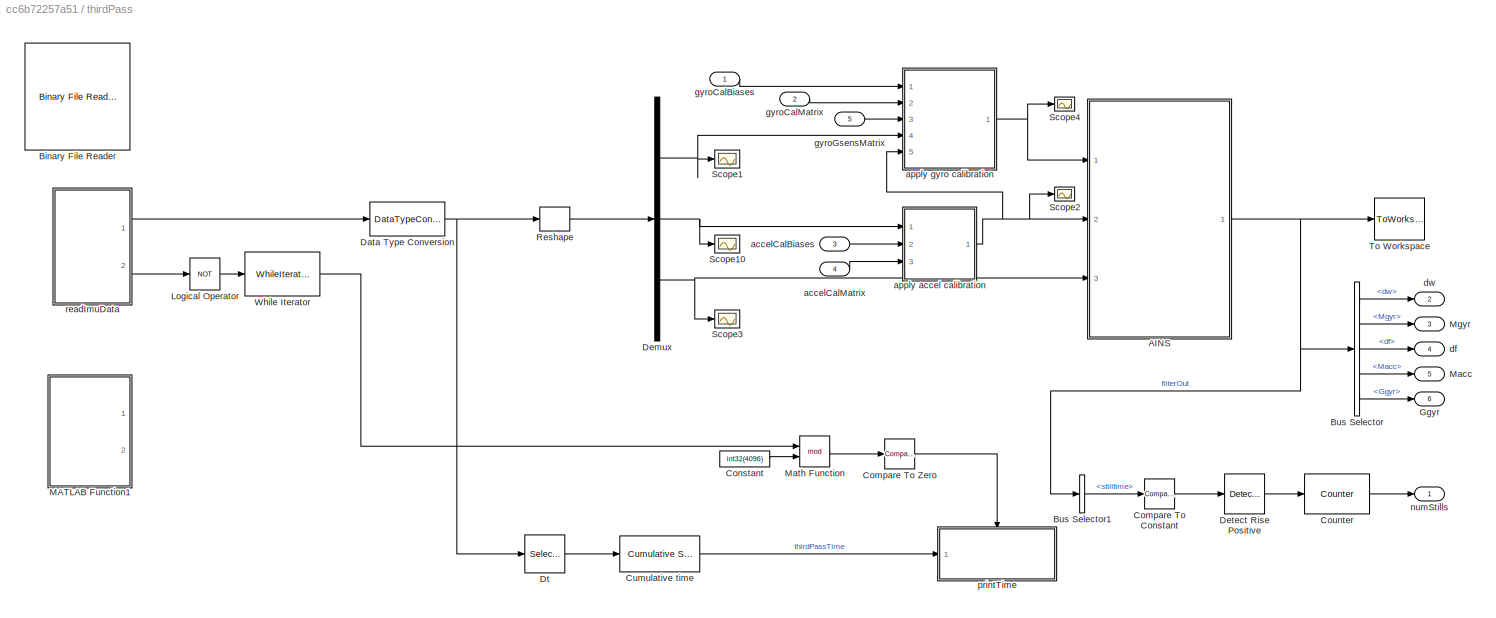
BLOCK [SubSystem] thirdPass
  Ports = [5, 6]
  RequestExecContextInheritance = off
BLOCK [SubSystem] thirdPass/AINS
  Ports = [3, 1]
  RequestExecContextInheritance = off
  TreatAsAtomicUnit = on
BLOCK [DataStoreMemory] thirdPass/AINS/Data Store Memory
  DataStoreName = Cbn
  InitialValue = eye(3)
  ReadBeforeWriteMsg = warning
  ShowAdditionalParam = off
  VectorParams1D = off
  WriteAfterReadMsg = warning
  WriteAfterWriteMsg = warning
BLOCK [DataStoreMemory] thirdPass/AINS/Data Store Memory1
  DataStoreName = P
  InitialValue = eye(modelDef.numStates)*1e-12
  ReadBeforeWriteMsg = warning
  ShowAdditionalParam = off
  WriteAfterReadMsg = warning
  WriteAfterWriteMsg = warning
BLOCK [DataStoreMemory] thirdPass/AINS/Data Store Memory10
  DataStoreName = gnav
  InitialValue = [0;0; 9.8065]
  ReadBeforeWriteMsg = warning
  ShowAdditionalParam = off
  VectorParams1D = off
  WriteAfterReadMsg = warning
  WriteAfterWriteMsg = warning
BLOCK [DataStoreMemory] thirdPass/AINS/Data Store Memory11
  DataStoreName = Ggyr
  InitialValue = zeros(3,3)
  ReadBeforeWriteMsg = warning
  ShowAdditionalParam = off
  VectorParams1D = off
  WriteAfterReadMsg = warning
  WriteAfterWriteMsg = warning
BLOCK [DataStoreMemory] thirdPass/AINS/Data Store Memory2
  DataStoreName = dw
  InitialValue = [0;0;0]
  ReadBeforeWriteMsg = warning
  ShowAdditionalParam = off
  VectorParams1D = off
  WriteAfterReadMsg = warning
  WriteAfterWriteMsg = warning
BLOCK [DataStoreMemory] thirdPass/AINS/Data Store Memory3
  DataStoreName = vnav
  InitialValue = [0;0;0]
  ReadBeforeWriteMsg = warning
  ShowAdditionalParam = off
  VectorParams1D = off
  WriteAfterReadMsg = warning
  WriteAfterWriteMsg = warning
BLOCK [DataStoreMemory] thirdPass/AINS/Data Store Memory4
  DataStoreName = rnav
  InitialValue = [0;0;0]
  ReadBeforeWriteMsg = warning
  ShowAdditionalParam = off
  VectorParams1D = off
  WriteAfterReadMsg = warning
  WriteAfterWriteMsg = warning
BLOCK [DataStoreMemory] thirdPass/AINS/Data Store Memory5
  DataStoreName = df
  InitialValue = [0;0;0]
  ReadBeforeWriteMsg = warning
  ShowAdditionalParam = off
  VectorParams1D = off
  WriteAfterReadMsg = warning
  WriteAfterWriteMsg = warning
BLOCK [DataStoreMemory] thirdPass/AINS/Data Store Memory6
  DataStoreName = Mgyr
  InitialValue = zeros(3,3)
  ReadBeforeWriteMsg = warning
  ShowAdditionalParam = off
  VectorParams1D = off
  WriteAfterReadMsg = warning
  WriteAfterWriteMsg = warning
BLOCK [DataStoreMemory] thirdPass/AINS/Data Store Memory7
  DataStoreName = Macc
  InitialValue = zeros(3,3)
  ReadBeforeWriteMsg = warning
  ShowAdditionalParam = off
  VectorParams1D = off
  WriteAfterReadMsg = warning
  WriteAfterWriteMsg = warning
BLOCK [DataStoreMemory] thirdPass/AINS/Data Store Memory8
  DataStoreName = IplusMinv_gyr
  InitialValue = eye(3)
  ReadBeforeWriteMsg = warning
  ShowAdditionalParam = off
  VectorParams1D = off
  WriteAfterReadMsg = warning
  WriteAfterWriteMsg = warning
BLOCK [DataStoreMemory] thirdPass/AINS/Data Store Memory9
  DataStoreName = IplusMinv_acc
  InitialValue = eye(3)
  ReadBeforeWriteMsg = warning
  ShowAdditionalParam = off
  VectorParams1D = off
  WriteAfterReadMsg = warning
  WriteAfterWriteMsg = warning
BLOCK [Inport] thirdPass/AINS/Dt
  IconDisplay = Port number
  Port = 3
  Unit = rad/s
BLOCK [Gain] thirdPass/AINS/Gain1
  Gain = 3600
  OutDataTypeStr = Inherit: Inherit via internal rule
  ParamDataTypeStr = Inherit: Inherit via internal rule
  SaturateOnIntegerOverflow = off
BLOCK [Ground] thirdPass/AINS/Ground
BLOCK [SubSystem] thirdPass/AINS/INS
  Ports = [4, 1, 1]
  Priority = 2
  RequestExecContextInheritance = off
BLOCK [Outport] thirdPass/AINS/INS/Cbn
  IconDisplay = Port number
BLOCK [DataStoreRead] thirdPass/AINS/INS/Data Store Read
  DataStoreName = Cbn
  Ports = [0, 1]
BLOCK [DataStoreRead] thirdPass/AINS/INS/Data Store Read1
  DataStoreName = gnav
  Ports = [0, 1]
BLOCK [DataStoreRead] thirdPass/AINS/INS/Data Store Read2
  DataStoreName = vnav
  Ports = [0, 1]
BLOCK [DataStoreRead] thirdPass/AINS/INS/Data Store Read3
  DataStoreName = rnav
  Ports = [0, 1]
BLOCK [DataStoreWrite] thirdPass/AINS/INS/Data Store Write
  DataStoreName = Cbn
  Ports = [1]
BLOCK [DataStoreWrite] thirdPass/AINS/INS/Data Store Write1
  DataStoreName = vnav
  Ports = [1]
BLOCK [DataStoreWrite] thirdPass/AINS/INS/Data Store Write2
  DataStoreName = rnav
  Ports = [1]
BLOCK [Inport] thirdPass/AINS/INS/Dt
  IconDisplay = Port number
  Port = 3
BLOCK [EnablePort] thirdPass/AINS/INS/Enable
  Ports = []
BLOCK [Gain] thirdPass/AINS/INS/Gain
  Gain = 1/2
  OutDataTypeStr = Inherit: Inherit via internal rule
  ParamDataTypeStr = Inherit: Inherit via internal rule
  SaturateOnIntegerOverflow = off
BLOCK [Gain] thirdPass/AINS/INS/Gain1
  Gain = 1/2
  OutDataTypeStr = Inherit: Inherit via internal rule
  ParamDataTypeStr = Inherit: Inherit via internal rule
  SaturateOnIntegerOverflow = off
BLOCK [Gain] thirdPass/AINS/INS/Gain2
  Gain = 1/2
  OutDataTypeStr = Inherit: Inherit via internal rule
  ParamDataTypeStr = Inherit: Inherit via internal rule
  SaturateOnIntegerOverflow = off
BLOCK [SubSystem] thirdPass/AINS/INS/MATLAB Function2
  ErrorFcn = Stateflow.Translate.translate
  PermitHierarchicalResolution = ExplicitOnly
  Ports = [3, 1]
  RequestExecContextInheritance = off
  SFBlockType = MATLAB Function
  TreatAsAtomicUnit = on
BLOCK [Demux] thirdPass/AINS/INS/MATLAB Function2/ Demux 
  Outputs = 1
  Ports = [1, 1]
BLOCK [S-Function] thirdPass/AINS/INS/MATLAB Function2/ SFunction 
  EnableBusSupport = on
  FunctionName = sf_sfun
  PortCounts = [3 2]
  Ports = [3, 2]
  SFcnIsStateOwnerBlock = off
  SFunctionDeploymentMode = off
  Tag = Stateflow S-Function ImuCalibrator3Pass 45
BLOCK [Terminator] thirdPass/AINS/INS/MATLAB Function2/ Terminator 
BLOCK [Inport] thirdPass/AINS/INS/MATLAB Function2/Cbn
  IconDisplay = Port number
BLOCK [Outport] thirdPass/AINS/INS/MATLAB Function2/Cbn_new
  IconDisplay = Port number
BLOCK [Inport] thirdPass/AINS/INS/MATLAB Function2/dt
  IconDisplay = Port number
  Port = 3
BLOCK [Inport] thirdPass/AINS/INS/MATLAB Function2/w
  IconDisplay = Port number
  Port = 2
BLOCK [Product] thirdPass/AINS/INS/Product
  InputSameDT = off
  Multiplication = Matrix(*)
  OutDataTypeStr = Inherit: Inherit via internal rule
  Ports = [2, 1]
  RndMeth = Floor
  SaturateOnIntegerOverflow = off
BLOCK [Product] thirdPass/AINS/INS/Product1
  InputSameDT = off
  OutDataTypeStr = Inherit: Inherit via internal rule
  Ports = [2, 1]
  RndMeth = Floor
  SaturateOnIntegerOverflow = off
BLOCK [Product] thirdPass/AINS/INS/Product2
  InputSameDT = off
  OutDataTypeStr = Inherit: Inherit via internal rule
  Ports = [2, 1]
  RndMeth = Floor
  SaturateOnIntegerOverflow = off
BLOCK [Delay] thirdPass/AINS/INS/Resettable Delay
  DelayLength = 1
  ExternalReset = Level
  InitialConditionSource = Input port
  InputPortMap = u0,r5,p4
  Ports = [3, 1]
BLOCK [Delay] thirdPass/AINS/INS/Resettable Delay1
  DelayLength = 1
  ExternalReset = Level
  InitialConditionSource = Input port
  InputPortMap = u0,r5,p4
  Ports = [3, 1]
BLOCK [Sum] thirdPass/AINS/INS/Sum
  IconShape = round
  InputSameDT = off
  Inputs = |++
  OutDataTypeStr = Inherit: Inherit via internal rule
  Ports = [2, 1]
  SaturateOnIntegerOverflow = off
BLOCK [Sum] thirdPass/AINS/INS/Sum1
  IconShape = round
  InputSameDT = off
  Inputs = |++
  OutDataTypeStr = Inherit: Inherit via internal rule
  Ports = [2, 1]
  SaturateOnIntegerOverflow = off
BLOCK [Sum] thirdPass/AINS/INS/Sum2
  IconShape = round
  InputSameDT = off
  Inputs = |++
  OutDataTypeStr = Inherit: Inherit via internal rule
  Ports = [2, 1]
  SaturateOnIntegerOverflow = off
BLOCK [Sum] thirdPass/AINS/INS/Sum3
  IconShape = round
  InputSameDT = off
  Inputs = ++|
  OutDataTypeStr = Inherit: Inherit via internal rule
  Ports = [2, 1]
  SaturateOnIntegerOverflow = off
BLOCK [Sum] thirdPass/AINS/INS/Sum4
  IconShape = round
  InputSameDT = off
  Inputs = ++|
  OutDataTypeStr = Inherit: Inherit via internal rule
  Ports = [2, 1]
  SaturateOnIntegerOverflow = off
BLOCK [Sum] thirdPass/AINS/INS/Sum5
  IconShape = round
  InputSameDT = off
  Inputs = |++
  OutDataTypeStr = Inherit: Inherit via internal rule
  Ports = [2, 1]
  SaturateOnIntegerOverflow = off
BLOCK [UnitDelay] thirdPass/AINS/INS/Unit Delay
  InputProcessing = Elements as channels (sample based)
  SampleTime = -1
BLOCK [Inport] thirdPass/AINS/INS/f_ib
  IconDisplay = Port number
  Port = 2
BLOCK [Inport] thirdPass/AINS/INS/init
  IconDisplay = Port number
  Port = 4
BLOCK [Inport] thirdPass/AINS/INS/w_ib
  IconDisplay = Port number
BLOCK [SubSystem] thirdPass/AINS/MATLAB Function
  ErrorFcn = Stateflow.Translate.translate
  PermitHierarchicalResolution = ExplicitOnly
  Ports = [3, 3]
  RequestExecContextInheritance = off
  SFBlockType = MATLAB Function
  TreatAsAtomicUnit = on
BLOCK [Demux] thirdPass/AINS/MATLAB Function/ Demux 
  Outputs = 1
  Ports = [1, 1]
BLOCK [S-Function] thirdPass/AINS/MATLAB Function/ SFunction 
  EnableBusSupport = on
  FunctionName = sf_sfun
  PortCounts = [3 4]
  Ports = [3, 4]
  SFcnIsStateOwnerBlock = off
  SFunctionDeploymentMode = off
  Tag = Stateflow S-Function ImuCalibrator3Pass 46
BLOCK [Terminator] thirdPass/AINS/MATLAB Function/ Terminator 
BLOCK [Inport] thirdPass/AINS/MATLAB Function/Dt
  IconDisplay = Port number
  Port = 3
BLOCK [Inport] thirdPass/AINS/MATLAB Function/f
  IconDisplay = Port number
  Port = 2
BLOCK [Outport] thirdPass/AINS/MATLAB Function/favgs
  IconDisplay = Port number
  Port = 2
BLOCK [Outport] thirdPass/AINS/MATLAB Function/stilltime
  IconDisplay = Port number
BLOCK [Inport] thirdPass/AINS/MATLAB Function/w
  IconDisplay = Port number
BLOCK [Outport] thirdPass/AINS/MATLAB Function/wavgs
  IconDisplay = Port number
  Port = 3
BLOCK [Reference] thirdPass/AINS/Moving Average  REF=dspstat3/Moving
Average
  Ports = [1, 1]
  SourceBlock = dspstat3/Moving\nAverage
  SourceProductBaseCode = DS
  SourceProductName = DSP System Toolbox
  SourceType = dsp.simulink.MovingAverage
BLOCK [Reshape] thirdPass/AINS/Reshape
  OutputDimensionality = Row vector (2-D)
  Ports = [1, 1]
BLOCK [Reference] thirdPass/AINS/S-R Flip-Flop  REF=simulink_extras/Flip Flops/S-R
Flip-Flop
  Ports = [2, 2]
  SourceBlock = simulink_extras/Flip Flops/S-R\nFlip-Flop
  SourceProductBaseCode = SL
  SourceProductName = Simulink
  SourceType = SRFlipFlop
BLOCK [Scope] thirdPass/AINS/Scope3
  Floating = off
  NumInputPorts = 1
  Ports = [1]
BLOCK [Scope] thirdPass/AINS/Scope4
  Floating = off
  NumInputPorts = 1
  Ports = [1]
BLOCK [Scope] thirdPass/AINS/Scope5
  Floating = off
  NumInputPorts = 1
  Ports = [1]
BLOCK [Scope] thirdPass/AINS/Scope6
  Floating = off
  NumInputPorts = 1
  Ports = [1]
BLOCK [SubSystem] thirdPass/AINS/compass meas update
  Commented = on
  Ports = [2, 1, 1]
  RequestExecContextInheritance = off
  TreatAsAtomicUnit = on
BLOCK [DataStoreRead] thirdPass/AINS/compass meas update/Data Store Read1
  DataStoreName = Cbn
  Ports = [0, 1]
BLOCK [DataStoreRead] thirdPass/AINS/compass meas update/Data Store Read3
  DataStoreName = P
  Ports = [0, 1]
BLOCK [DataStoreWrite] thirdPass/AINS/compass meas update/Data Store Write
  DataStoreName = P
  Ports = [1]
BLOCK [Demux] thirdPass/AINS/compass meas update/Demux
  DisplayOption = bar
  Outputs = 3
  Ports = [1, 3]
BLOCK [EnablePort] thirdPass/AINS/compass meas update/Enable
  Ports = []
BLOCK [Gain] thirdPass/AINS/compass meas update/Gain
  Gain = -1
  OutDataTypeStr = Inherit: Inherit via internal rule
  ParamDataTypeStr = Inherit: Inherit via internal rule
  SaturateOnIntegerOverflow = off
BLOCK [Constant] thirdPass/AINS/compass meas update/H
  Value = [ 0 0 1]
  VectorParams1D = off
BLOCK [Inport] thirdPass/AINS/compass meas update/In1
  IconDisplay = Port number
BLOCK [SubSystem] thirdPass/AINS/compass meas update/MATLAB Function1
  ErrorFcn = Stateflow.Translate.translate
  PermitHierarchicalResolution = ExplicitOnly
  Ports = [3, 2]
  RequestExecContextInheritance = off
  SFBlockType = MATLAB Function
  TreatAsAtomicUnit = on
BLOCK [Demux] thirdPass/AINS/compass meas update/MATLAB Function1/ Demux 
  Outputs = 1
  Ports = [1, 1]
BLOCK [S-Function] thirdPass/AINS/compass meas update/MATLAB Function1/ SFunction 
  EnableBusSupport = on
  FunctionName = sf_sfun
  PortCounts = [3 3]
  Ports = [3, 3]
  SFcnIsStateOwnerBlock = off
  SFunctionDeploymentMode = off
  Tag = Stateflow S-Function ImuCalibrator3Pass 47
BLOCK [Terminator] thirdPass/AINS/compass meas update/MATLAB Function1/ Terminator 
BLOCK [Inport] thirdPass/AINS/compass meas update/MATLAB Function1/H
  IconDisplay = Port number
  Port = 2
BLOCK [Outport] thirdPass/AINS/compass meas update/MATLAB Function1/K
  IconDisplay = Port number
  Port = 2
BLOCK [Inport] thirdPass/AINS/compass meas update/MATLAB Function1/P
  IconDisplay = Port number
BLOCK [Inport] thirdPass/AINS/compass meas update/MATLAB Function1/R
  IconDisplay = Port number
  Port = 3
BLOCK [Outport] thirdPass/AINS/compass meas update/MATLAB Function1/S
  IconDisplay = Port number
BLOCK [SubSystem] thirdPass/AINS/compass meas update/MATLAB Function3
  ErrorFcn = Stateflow.Translate.translate
  PermitHierarchicalResolution = ExplicitOnly
  Ports = [4, 2]
  RequestExecContextInheritance = off
  SFBlockType = MATLAB Function
  TreatAsAtomicUnit = on
BLOCK [Demux] thirdPass/AINS/compass meas update/MATLAB Function3/ Demux 
  Outputs = 1
  Ports = [1, 1]
BLOCK [S-Function] thirdPass/AINS/compass meas update/MATLAB Function3/ SFunction 
  EnableBusSupport = on
  FunctionName = sf_sfun
  PortCounts = [4 3]
  Ports = [4, 3]
  SFcnIsStateOwnerBlock = off
  SFunctionDeploymentMode = off
  Tag = Stateflow S-Function ImuCalibrator3Pass 48
BLOCK [Terminator] thirdPass/AINS/compass meas update/MATLAB Function3/ Terminator 
BLOCK [Inport] thirdPass/AINS/compass meas update/MATLAB Function3/H
  IconDisplay = Port number
  Port = 3
BLOCK [Outport] thirdPass/AINS/compass meas update/MATLAB Function3/IminKH
  IconDisplay = Port number
  Port = 2
BLOCK [Inport] thirdPass/AINS/compass meas update/MATLAB Function3/K
  IconDisplay = Port number
  Port = 2
BLOCK [Inport] thirdPass/AINS/compass meas update/MATLAB Function3/P
  IconDisplay = Port number
BLOCK [Outport] thirdPass/AINS/compass meas update/MATLAB Function3/Pplus
  IconDisplay = Port number
BLOCK [Inport] thirdPass/AINS/compass meas update/MATLAB Function3/R
  IconDisplay = Port number
  Port = 4
BLOCK [Outport] thirdPass/AINS/compass meas update/Out1
  IconDisplay = Port number
BLOCK [Product] thirdPass/AINS/compass meas update/Product
  InputSameDT = off
  Multiplication = Matrix(*)
  OutDataTypeStr = Inherit: Inherit via internal rule
  Ports = [2, 1]
  RndMeth = Floor
  SaturateOnIntegerOverflow = off
BLOCK [Product] thirdPass/AINS/compass meas update/Product1
  InputSameDT = off
  Multiplication = Matrix(*)
  OutDataTypeStr = Inherit: Inherit via internal rule
  Ports = [2, 1]
  RndMeth = Floor
  SaturateOnIntegerOverflow = off
BLOCK [Constant] thirdPass/AINS/compass meas update/R assumes 10 deg rms compass noise
  Value = 0.34^2
BLOCK [Scope] thirdPass/AINS/compass meas update/Scope
  Floating = off
  NumInputPorts = 1
  Ports = [1]
BLOCK [Scope] thirdPass/AINS/compass meas update/Scope1
  Floating = off
  NumInputPorts = 1
  Ports = [1]
BLOCK [Scope] thirdPass/AINS/compass meas update/Scope2
  Floating = off
  NumInputPorts = 1
  Ports = [1]
BLOCK [Trigonometry] thirdPass/AINS/compass meas update/Trigonometric Function
  Operator = atan2
  Ports = [2, 1]
BLOCK [Inport] thirdPass/AINS/compass meas update/m^b
  IconDisplay = Port number
  Port = 2
BLOCK [SubSystem] thirdPass/AINS/compass meas update/update the Cbn with the errors
  Ports = [1]
  RequestExecContextInheritance = off
BLOCK [DataStoreRead] thirdPass/AINS/compass meas update/update the Cbn with the errors/Data Store Read2
  DataStoreName = Cbn
  Ports = [0, 1]
BLOCK [DataStoreWrite] thirdPass/AINS/compass meas update/update the Cbn with the errors/Data Store Write1
  DataStoreName = Cbn
  Ports = [1]
BLOCK [SubSystem] thirdPass/AINS/compass meas update/update the Cbn with the errors/MATLAB Function
  ErrorFcn = Stateflow.Translate.translate
  PermitHierarchicalResolution = ExplicitOnly
  Ports = [1, 1]
  RequestExecContextInheritance = off
  SFBlockType = MATLAB Function
  TreatAsAtomicUnit = on
BLOCK [Demux] thirdPass/AINS/compass meas update/update the Cbn with the errors/MATLAB Function/ Demux 
  Outputs = 1
  Ports = [1, 1]
BLOCK [S-Function] thirdPass/AINS/compass meas update/update the Cbn with the errors/MATLAB Function/ SFunction 
  EnableBusSupport = on
  FunctionName = sf_sfun
  PortCounts = [1 2]
  Ports = [1, 2]
  SFcnIsStateOwnerBlock = off
  SFunctionDeploymentMode = off
  Tag = Stateflow S-Function ImuCalibrator3Pass 49
BLOCK [Terminator] thirdPass/AINS/compass meas update/update the Cbn with the errors/MATLAB Function/ Terminator 
BLOCK [Inport] thirdPass/AINS/compass meas update/update the Cbn with the errors/MATLAB Function/inp_vr
  IconDisplay = Port number
BLOCK [Outport] thirdPass/AINS/compass meas update/update the Cbn with the errors/MATLAB Function/res
  IconDisplay = Port number
BLOCK [Product] thirdPass/AINS/compass meas update/update the Cbn with the errors/Product2
  InputSameDT = off
  Multiplication = Matrix(*)
  OutDataTypeStr = Inherit: Inherit via internal rule
  Ports = [2, 1]
  RndMeth = Floor
  SaturateOnIntegerOverflow = off
BLOCK [Sum] thirdPass/AINS/compass meas update/update the Cbn with the errors/Sum
  IconShape = round
  InputSameDT = off
  Inputs = ++|
  OutDataTypeStr = Inherit: Inherit via internal rule
  Ports = [2, 1]
  SaturateOnIntegerOverflow = off
BLOCK [Inport] thirdPass/AINS/compass meas update/update the Cbn with the errors/phi  rotation errors
  IconDisplay = Port number
BLOCK [SubSystem] thirdPass/AINS/compass meas update/update the Cbn with the errors/re-orthonormalization
  Ports = [1, 1]
  RequestExecContextInheritance = off
  TreatAsAtomicUnit = on
BLOCK [Product] thirdPass/AINS/compass meas update/update the Cbn with the errors/re-orthonormalization/C*C'
  InputSameDT = off
  Multiplication = Matrix(*)
  OutDataTypeStr = Inherit: Inherit via internal rule
  Ports = [2, 1]
  RndMeth = Floor
  SaturateOnIntegerOverflow = off
BLOCK [Product] thirdPass/AINS/compass meas update/update the Cbn with the errors/re-orthonormalization/C*C'1
  InputSameDT = off
  Multiplication = Matrix(*)
  OutDataTypeStr = Inherit: Inherit via internal rule
  Ports = [2, 1]
  RndMeth = Floor
  SaturateOnIntegerOverflow = off
BLOCK [Constant] thirdPass/AINS/compass meas update/update the Cbn with the errors/re-orthonormalization/Constant
  Value = eye(3)
BLOCK [Display] thirdPass/AINS/compass meas update/update the Cbn with the errors/re-orthonormalization/Display
  Decimation = 1
  Ports = [1]
BLOCK [Gain] thirdPass/AINS/compass meas update/update the Cbn with the errors/re-orthonormalization/Gain
  Gain = 1/2
  OutDataTypeStr = Inherit: Inherit via internal rule
  ParamDataTypeStr = Inherit: Inherit via internal rule
  SaturateOnIntegerOverflow = off
BLOCK [Inport] thirdPass/AINS/compass meas update/update the Cbn with the errors/re-orthonormalization/In1
  IconDisplay = Port number
BLOCK [Outport] thirdPass/AINS/compass meas update/update the Cbn with the errors/re-orthonormalization/Out1
  IconDisplay = Port number
BLOCK [PermuteDimensions] thirdPass/AINS/compass meas update/update the Cbn with the errors/re-orthonormalization/Permute Dimensions
BLOCK [Sum] thirdPass/AINS/compass meas update/update the Cbn with the errors/re-orthonormalization/Sum
  IconShape = round
  InputSameDT = off
  Inputs = |++
  OutDataTypeStr = Inherit: Inherit via internal rule
  Ports = [2, 1]
  SaturateOnIntegerOverflow = off
BLOCK [Sum] thirdPass/AINS/compass meas update/update the Cbn with the errors/re-orthonormalization/Sum1
  IconShape = round
  InputSameDT = off
  Inputs = |+-
  OutDataTypeStr = Inherit: Inherit via internal rule
  Ports = [2, 1]
  SaturateOnIntegerOverflow = off
BLOCK [Constant] thirdPass/AINS/disable compass
  Commented = on
  Value = 0
BLOCK [Inport] thirdPass/AINS/f_ib^b
  IconDisplay = Port number
  Port = 2
  PortDimensions = 3
  Unit = m/s^2
BLOCK [Outport] thirdPass/AINS/filterOut
  IconDisplay = Port number
BLOCK [SubSystem] thirdPass/AINS/gravity meas update
  Commented = on
  Ports = [3, 1]
  RequestExecContextInheritance = off
  TreatAsAtomicUnit = on
BLOCK [Constant] thirdPass/AINS/gravity meas update/Constant
  Value = eye(3)
BLOCK [DataStoreRead] thirdPass/AINS/gravity meas update/Data Store Read1
  DataStoreName = Cbn
  Ports = [0, 1]
BLOCK [DataStoreRead] thirdPass/AINS/gravity meas update/Data Store Read3
  DataStoreName = P
  Ports = [0, 1]
BLOCK [DataStoreWrite] thirdPass/AINS/gravity meas update/Data Store Write
  DataStoreName = P
  Ports = [1]
BLOCK [Inport] thirdPass/AINS/gravity meas update/In1
  IconDisplay = Port number
BLOCK [SubSystem] thirdPass/AINS/gravity meas update/MATLAB Function1
  ErrorFcn = Stateflow.Translate.translate
  PermitHierarchicalResolution = ExplicitOnly
  Ports = [3, 2]
  RTWSystemCode = Reusable function
  RequestExecContextInheritance = off
  SFBlockType = MATLAB Function
  TreatAsAtomicUnit = on
BLOCK [Demux] thirdPass/AINS/gravity meas update/MATLAB Function1/ Demux 
  Outputs = 1
  Ports = [1, 1]
BLOCK [S-Function] thirdPass/AINS/gravity meas update/MATLAB Function1/ SFunction 
  EnableBusSupport = on
  FunctionName = sf_sfun
  PortCounts = [3 3]
  Ports = [3, 3]
  SFcnIsStateOwnerBlock = off
  SFunctionDeploymentMode = off
  Tag = Stateflow S-Function ImuCalibrator3Pass 50
BLOCK [Terminator] thirdPass/AINS/gravity meas update/MATLAB Function1/ Terminator 
BLOCK [Inport] thirdPass/AINS/gravity meas update/MATLAB Function1/H
  IconDisplay = Port number
  Port = 2
BLOCK [Outport] thirdPass/AINS/gravity meas update/MATLAB Function1/K
  IconDisplay = Port number
  Port = 2
BLOCK [Inport] thirdPass/AINS/gravity meas update/MATLAB Function1/P
  IconDisplay = Port number
BLOCK [Inport] thirdPass/AINS/gravity meas update/MATLAB Function1/R
  IconDisplay = Port number
  Port = 3
BLOCK [Outport] thirdPass/AINS/gravity meas update/MATLAB Function1/S
  IconDisplay = Port number
BLOCK [SubSystem] thirdPass/AINS/gravity meas update/MATLAB Function2
  ErrorFcn = Stateflow.Translate.translate
  PermitHierarchicalResolution = ExplicitOnly
  Ports = [1, 1]
  RequestExecContextInheritance = off
  SFBlockType = MATLAB Function
  TreatAsAtomicUnit = on
BLOCK [Demux] thirdPass/AINS/gravity meas update/MATLAB Function2/ Demux 
  Outputs = 1
  Ports = [1, 1]
BLOCK [S-Function] thirdPass/AINS/gravity meas update/MATLAB Function2/ SFunction 
  EnableBusSupport = on
  FunctionName = sf_sfun
  PortCounts = [1 2]
  Ports = [1, 2]
  SFcnIsStateOwnerBlock = off
  SFunctionDeploymentMode = off
  Tag = Stateflow S-Function ImuCalibrator3Pass 51
BLOCK [Terminator] thirdPass/AINS/gravity meas update/MATLAB Function2/ Terminator 
BLOCK [Inport] thirdPass/AINS/gravity meas update/MATLAB Function2/inp_vr
  IconDisplay = Port number
BLOCK [Outport] thirdPass/AINS/gravity meas update/MATLAB Function2/res
  IconDisplay = Port number
BLOCK [SubSystem] thirdPass/AINS/gravity meas update/MATLAB Function3
  ErrorFcn = Stateflow.Translate.translate
  PermitHierarchicalResolution = ExplicitOnly
  Ports = [4, 2]
  RTWSystemCode = Reusable function
  RequestExecContextInheritance = off
  SFBlockType = MATLAB Function
  TreatAsAtomicUnit = on
BLOCK [Demux] thirdPass/AINS/gravity meas update/MATLAB Function3/ Demux 
  Outputs = 1
  Ports = [1, 1]
BLOCK [S-Function] thirdPass/AINS/gravity meas update/MATLAB Function3/ SFunction 
  EnableBusSupport = on
  FunctionName = sf_sfun
  PortCounts = [4 3]
  Ports = [4, 3]
  SFcnIsStateOwnerBlock = off
  SFunctionDeploymentMode = off
  Tag = Stateflow S-Function ImuCalibrator3Pass 52
BLOCK [Terminator] thirdPass/AINS/gravity meas update/MATLAB Function3/ Terminator 
BLOCK [Inport] thirdPass/AINS/gravity meas update/MATLAB Function3/H
  IconDisplay = Port number
  Port = 3
BLOCK [Outport] thirdPass/AINS/gravity meas update/MATLAB Function3/IminKH
  IconDisplay = Port number
  Port = 2
BLOCK [Inport] thirdPass/AINS/gravity meas update/MATLAB Function3/K
  IconDisplay = Port number
  Port = 2
BLOCK [Inport] thirdPass/AINS/gravity meas update/MATLAB Function3/P
  IconDisplay = Port number
BLOCK [Outport] thirdPass/AINS/gravity meas update/MATLAB Function3/Pplus
  IconDisplay = Port number
BLOCK [Inport] thirdPass/AINS/gravity meas update/MATLAB Function3/R
  IconDisplay = Port number
  Port = 4
BLOCK [Math] thirdPass/AINS/gravity meas update/Math Function
  Operator = reciprocal
  Ports = [1, 1]
BLOCK [Math] thirdPass/AINS/gravity meas update/Math Function1
  Operator = square
  Ports = [1, 1]
BLOCK [Outport] thirdPass/AINS/gravity meas update/Out1
  IconDisplay = Port number
BLOCK [Reference] thirdPass/AINS/gravity meas update/Pad  REF=dspsigops/Pad
  Ports = [1, 1]
  SourceBlock = dspsigops/Pad
  SourceProductBaseCode = DS
  SourceProductName = DSP System Toolbox
  SourceType = Pad
BLOCK [PermuteDimensions] thirdPass/AINS/gravity meas update/Permute Dimensions
BLOCK [Product] thirdPass/AINS/gravity meas update/Product
  InputSameDT = off
  Multiplication = Matrix(*)
  OutDataTypeStr = Inherit: Inherit via internal rule
  Ports = [2, 1]
  RndMeth = Floor
  SaturateOnIntegerOverflow = off
BLOCK [Product] thirdPass/AINS/gravity meas update/Product1
  InputSameDT = off
  Multiplication = Matrix(*)
  OutDataTypeStr = Inherit: Inherit via internal rule
  Ports = [2, 1]
  RndMeth = Floor
  SaturateOnIntegerOverflow = off
BLOCK [Product] thirdPass/AINS/gravity meas update/Product2
  InputSameDT = off
  OutDataTypeStr = Inherit: Inherit via internal rule
  Ports = [2, 1]
  RndMeth = Floor
  SaturateOnIntegerOverflow = off
BLOCK [Product] thirdPass/AINS/gravity meas update/Product3
  InputSameDT = off
  Multiplication = Matrix(*)
  OutDataTypeStr = Inherit: Inherit via internal rule
  Ports = [2, 1]
  RndMeth = Floor
  SaturateOnIntegerOverflow = off
BLOCK [Saturate] thirdPass/AINS/gravity meas update/Saturation
  InputPortMap = u0
  LowerLimit = 1
  Ports = [1, 1]
  UpperLimit = 9.8*4
BLOCK [Sum] thirdPass/AINS/gravity meas update/Sum1
  IconShape = round
  InputSameDT = off
  Inputs = |+-
  OutDataTypeStr = Inherit: Inherit via internal rule
  Ports = [2, 1]
  SaturateOnIntegerOverflow = off
BLOCK [Inport] thirdPass/AINS/gravity meas update/f_ib^b
  IconDisplay = Port number
  Port = 2
BLOCK [Constant] thirdPass/AINS/gravity meas update/specific force at rest is up, which is -z in NED frame
  Value = [ 0; 0; -9.8]
BLOCK [Inport] thirdPass/AINS/gravity meas update/stilltime
  IconDisplay = Port number
  Port = 3
BLOCK [SubSystem] thirdPass/AINS/gravity meas update/update the Cbn and b_g with the errors
  Ports = [1]
  RequestExecContextInheritance = off
BLOCK [Inport] thirdPass/AINS/gravity meas update/update the Cbn and b_g with the errors/ error state estimates
  IconDisplay = Port number
BLOCK [DataStoreRead] thirdPass/AINS/gravity meas update/update the Cbn and b_g with the errors/Data Store Read1
  DataStoreName = dw
  Ports = [0, 1]
BLOCK [DataStoreRead] thirdPass/AINS/gravity meas update/update the Cbn and b_g with the errors/Data Store Read2
  DataStoreName = Cbn
  Ports = [0, 1]
BLOCK [DataStoreRead] thirdPass/AINS/gravity meas update/update the Cbn and b_g with the errors/Data Store Read3
  DataStoreName = rnav
  Ports = [0, 1]
BLOCK [DataStoreRead] thirdPass/AINS/gravity meas update/update the Cbn and b_g with the errors/Data Store Read4
  DataStoreName = vnav
  Ports = [0, 1]
BLOCK [DataStoreRead] thirdPass/AINS/gravity meas update/update the Cbn and b_g with the errors/Data Store Read5
  DataStoreName = df
  Ports = [0, 1]
BLOCK [DataStoreRead] thirdPass/AINS/gravity meas update/update the Cbn and b_g with the errors/Data Store Read6
  DataStoreName = Macc
  Ports = [0, 1]
BLOCK [DataStoreRead] thirdPass/AINS/gravity meas update/update the Cbn and b_g with the errors/Data Store Read7
  DataStoreName = Mgyr
  Ports = [0, 1]
BLOCK [DataStoreWrite] thirdPass/AINS/gravity meas update/update the Cbn and b_g with the errors/Data Store Write1
  DataStoreName = Cbn
  Ports = [1]
BLOCK [DataStoreWrite] thirdPass/AINS/gravity meas update/update the Cbn and b_g with the errors/Data Store Write2
  DataStoreName = dw
  Ports = [1]
BLOCK [DataStoreWrite] thirdPass/AINS/gravity meas update/update the Cbn and b_g with the errors/Data Store Write3
  DataStoreName = rnav
  Ports = [1]
BLOCK [DataStoreWrite] thirdPass/AINS/gravity meas update/update the Cbn and b_g with the errors/Data Store Write4
  DataStoreName = vnav
  Ports = [1]
BLOCK [DataStoreWrite] thirdPass/AINS/gravity meas update/update the Cbn and b_g with the errors/Data Store Write5
  DataStoreName = df
  Ports = [1]
BLOCK [DataStoreWrite] thirdPass/AINS/gravity meas update/update the Cbn and b_g with the errors/Data Store Write6
  DataStoreName = Macc
  Ports = [1]
BLOCK [DataStoreWrite] thirdPass/AINS/gravity meas update/update the Cbn and b_g with the errors/Data Store Write7
  DataStoreName = Mgyr
  Ports = [1]
BLOCK [SubSystem] thirdPass/AINS/gravity meas update/update the Cbn and b_g with the errors/MATLAB Function
  ErrorFcn = Stateflow.Translate.translate
  PermitHierarchicalResolution = ExplicitOnly
  Ports = [1, 1]
  RequestExecContextInheritance = off
  SFBlockType = MATLAB Function
  TreatAsAtomicUnit = on
BLOCK [Demux] thirdPass/AINS/gravity meas update/update the Cbn and b_g with the errors/MATLAB Function/ Demux 
  Outputs = 1
  Ports = [1, 1]
BLOCK [S-Function] thirdPass/AINS/gravity meas update/update the Cbn and b_g with the errors/MATLAB Function/ SFunction 
  EnableBusSupport = on
  FunctionName = sf_sfun
  PortCounts = [1 2]
  Ports = [1, 2]
  SFcnIsStateOwnerBlock = off
  SFunctionDeploymentMode = off
  Tag = Stateflow S-Function ImuCalibrator3Pass 53
BLOCK [Terminator] thirdPass/AINS/gravity meas update/update the Cbn and b_g with the errors/MATLAB Function/ Terminator 
BLOCK [Inport] thirdPass/AINS/gravity meas update/update the Cbn and b_g with the errors/MATLAB Function/inp_vr
  IconDisplay = Port number
BLOCK [Outport] thirdPass/AINS/gravity meas update/update the Cbn and b_g with the errors/MATLAB Function/res
  IconDisplay = Port number
BLOCK [Reference] thirdPass/AINS/gravity meas update/update the Cbn and b_g with the errors/Multiport Selector  REF=dspindex/Multiport
Selector
  Ports = [1, 7]
  SourceBlock = dspindex/Multiport\nSelector
  SourceProductBaseCode = DS
  SourceProductName = DSP System Toolbox
  SourceType = Multiport Selector
BLOCK [Product] thirdPass/AINS/gravity meas update/update the Cbn and b_g with the errors/Product2
  InputSameDT = off
  Multiplication = Matrix(*)
  OutDataTypeStr = Inherit: Inherit via internal rule
  Ports = [2, 1]
  RndMeth = Floor
  SaturateOnIntegerOverflow = off
BLOCK [Reshape] thirdPass/AINS/gravity meas update/update the Cbn and b_g with the errors/Reshape
  OutputDimensionality = Customize
  OutputDimensions = [3,3]
  Ports = [1, 1]
BLOCK [Reshape] thirdPass/AINS/gravity meas update/update the Cbn and b_g with the errors/Reshape1
  OutputDimensionality = Customize
  OutputDimensions = [3,3]
  Ports = [1, 1]
BLOCK [Sum] thirdPass/AINS/gravity meas update/update the Cbn and b_g with the errors/Sum
  IconShape = round
  InputSameDT = off
  Inputs = ++|
  OutDataTypeStr = Inherit: Inherit via internal rule
  Ports = [2, 1]
  SaturateOnIntegerOverflow = off
BLOCK [Sum] thirdPass/AINS/gravity meas update/update the Cbn and b_g with the errors/Sum1
  IconShape = round
  InputSameDT = off
  Inputs = ++|
  OutDataTypeStr = Inherit: Inherit via internal rule
  Ports = [2, 1]
  SaturateOnIntegerOverflow = off
BLOCK [Sum] thirdPass/AINS/gravity meas update/update the Cbn and b_g with the errors/Sum2
  IconShape = round
  InputSameDT = off
  Inputs = ++|
  OutDataTypeStr = Inherit: Inherit via internal rule
  Ports = [2, 1]
  SaturateOnIntegerOverflow = off
BLOCK [Sum] thirdPass/AINS/gravity meas update/update the Cbn and b_g with the errors/Sum3
  IconShape = round
  InputSameDT = off
  Inputs = ++|
  OutDataTypeStr = Inherit: Inherit via internal rule
  Ports = [2, 1]
  SaturateOnIntegerOverflow = off
BLOCK [Sum] thirdPass/AINS/gravity meas update/update the Cbn and b_g with the errors/Sum4
  IconShape = round
  InputSameDT = off
  Inputs = ++|
  OutDataTypeStr = Inherit: Inherit via internal rule
  Ports = [2, 1]
  SaturateOnIntegerOverflow = off
BLOCK [Sum] thirdPass/AINS/gravity meas update/update the Cbn and b_g with the errors/Sum5
  IconShape = round
  InputSameDT = off
  Inputs = ++|
  OutDataTypeStr = Inherit: Inherit via internal rule
  Ports = [2, 1]
  SaturateOnIntegerOverflow = off
BLOCK [Sum] thirdPass/AINS/gravity meas update/update the Cbn and b_g with the errors/Sum6
  IconShape = round
  InputSameDT = off
  Inputs = ++|
  OutDataTypeStr = Inherit: Inherit via internal rule
  Ports = [2, 1]
  SaturateOnIntegerOverflow = off
BLOCK [SubSystem] thirdPass/AINS/gravity meas update/update the Cbn and b_g with the errors/re-orthonormalization
  Ports = [1, 1]
  RequestExecContextInheritance = off
  TreatAsAtomicUnit = on
BLOCK [Product] thirdPass/AINS/gravity meas update/update the Cbn and b_g with the errors/re-orthonormalization/C*C'
  InputSameDT = off
  Multiplication = Matrix(*)
  OutDataTypeStr = Inherit: Inherit via internal rule
  Ports = [2, 1]
  RndMeth = Floor
  SaturateOnIntegerOverflow = off
BLOCK [Product] thirdPass/AINS/gravity meas update/update the Cbn and b_g with the errors/re-orthonormalization/C*C'1
  InputSameDT = off
  Multiplication = Matrix(*)
  OutDataTypeStr = Inherit: Inherit via internal rule
  Ports = [2, 1]
  RndMeth = Floor
  SaturateOnIntegerOverflow = off
BLOCK [Constant] thirdPass/AINS/gravity meas update/update the Cbn and b_g with the errors/re-orthonormalization/Constant
  Value = eye(3)
BLOCK [Gain] thirdPass/AINS/gravity meas update/update the Cbn and b_g with the errors/re-orthonormalization/Gain
  Gain = 1/2
  OutDataTypeStr = Inherit: Inherit via internal rule
  ParamDataTypeStr = Inherit: Inherit via internal rule
  SaturateOnIntegerOverflow = off
BLOCK [Inport] thirdPass/AINS/gravity meas update/update the Cbn and b_g with the errors/re-orthonormalization/In1
  IconDisplay = Port number
BLOCK [Outport] thirdPass/AINS/gravity meas update/update the Cbn and b_g with the errors/re-orthonormalization/Out1
  IconDisplay = Port number
BLOCK [PermuteDimensions] thirdPass/AINS/gravity meas update/update the Cbn and b_g with the errors/re-orthonormalization/Permute Dimensions
BLOCK [Sum] thirdPass/AINS/gravity meas update/update the Cbn and b_g with the errors/re-orthonormalization/Sum
  IconShape = round
  InputSameDT = off
  Inputs = |++
  OutDataTypeStr = Inherit: Inherit via internal rule
  Ports = [2, 1]
  SaturateOnIntegerOverflow = off
BLOCK [Sum] thirdPass/AINS/gravity meas update/update the Cbn and b_g with the errors/re-orthonormalization/Sum1
  IconShape = round
  InputSameDT = off
  Inputs = |+-
  OutDataTypeStr = Inherit: Inherit via internal rule
  Ports = [2, 1]
  SaturateOnIntegerOverflow = off
BLOCK [SubSystem] thirdPass/AINS/initialize states and covariances
  Ports = [2, 1]
  Priority = 1
  RequestExecContextInheritance = off
  TreatAsAtomicUnit = on
BLOCK [Reference] thirdPass/AINS/initialize states and covariances/Compare To Constant  REF=simulink/Logic and Bit
Operations/Compare
To Constant
  Ports = [1, 1]
  SourceBlock = simulink/Logic and Bit\nOperations/Compare\nTo Constant
  SourceProductBaseCode = SL
  SourceProductName = Simulink
  SourceType = Compare To Constant
BLOCK [DataStoreMemory] thirdPass/AINS/initialize states and covariances/Data Store Memory
  DataStoreName = INITIALIZED
  ReadBeforeWriteMsg = warning
  ShowAdditionalParam = off
  WriteAfterReadMsg = warning
  WriteAfterWriteMsg = warning
BLOCK [DataStoreRead] thirdPass/AINS/initialize states and covariances/Data Store Read
  DataStoreName = INITIALIZED
  Ports = [0, 1]
BLOCK [SubSystem] thirdPass/AINS/initialize states and covariances/INITIALIZED = 1
  Ports = [0, 1, 1]
  RequestExecContextInheritance = off
BLOCK [Constant] thirdPass/AINS/initialize states and covariances/INITIALIZED = 1/Constant
BLOCK [DataStoreWrite] thirdPass/AINS/initialize states and covariances/INITIALIZED = 1/Data Store Write
  DataStoreName = INITIALIZED
  Ports = [1]
BLOCK [EnablePort] thirdPass/AINS/initialize states and covariances/INITIALIZED = 1/Enable
  Ports = [0, 1]
  ShowOutputPort = on
BLOCK [Outport] thirdPass/AINS/initialize states and covariances/INITIALIZED = 1/Out1
  IconDisplay = Port number
  InitialOutput = false
  OutputWhenDisabled = reset
BLOCK [Logic] thirdPass/AINS/initialize states and covariances/Logical Operator
  AllPortsSameDT = off
  OutDataTypeStr = boolean
  Ports = [2, 1]
BLOCK [Logic] thirdPass/AINS/initialize states and covariances/Logical Operator1
  AllPortsSameDT = off
  IconShape = distinctive
  Inputs = 1
  Operator = NOT
  OutDataTypeStr = boolean
  Ports = [1, 1]
BLOCK [SubSystem] thirdPass/AINS/initialize states and covariances/calc Cbn
  Ports = [1, 2, 1]
  RequestExecContextInheritance = off
  TreatAsAtomicUnit = on
BLOCK [Outport] thirdPass/AINS/initialize states and covariances/calc Cbn/Cbn
  IconDisplay = Port number
  Port = 2
BLOCK [Constant] thirdPass/AINS/initialize states and covariances/calc Cbn/Constant
  Value = [1 0 0]
BLOCK [Reference] thirdPass/AINS/initialize states and covariances/calc Cbn/Cross Product  REF=vrlib/Utilities/Cross Product
  Ports = [2, 1]
  SourceBlock = vrlib/Utilities/Cross Product
  SourceProductBaseCode = VR
  SourceProductName = Simulink 3D Animation
  SourceType = Cross Product
BLOCK [Reference] thirdPass/AINS/initialize states and covariances/calc Cbn/Cross Product1  REF=vrlib/Utilities/Cross Product
  Ports = [2, 1]
  SourceBlock = vrlib/Utilities/Cross Product
  SourceProductBaseCode = VR
  SourceProductName = Simulink 3D Animation
  SourceType = Cross Product
BLOCK [EnablePort] thirdPass/AINS/initialize states and covariances/calc Cbn/Enable
  Ports = [0, 1]
  ShowOutputPort = on
BLOCK [Gain] thirdPass/AINS/initialize states and covariances/calc Cbn/Gain
  Gain = -1
  OutDataTypeStr = Inherit: Inherit via internal rule
  ParamDataTypeStr = Inherit: Inherit via internal rule
  SaturateOnIntegerOverflow = off
BLOCK [Concatenate] thirdPass/AINS/initialize states and covariances/calc Cbn/Matrix Concatenate
  Mode = Multidimensional array
  NumInputs = 3
  Ports = [3, 1]
BLOCK [Reference] thirdPass/AINS/initialize states and covariances/calc Cbn/Normalize Vector  REF=vrlib/Utilities/Normalize Vector
  Ports = [1, 1]
  SourceBlock = vrlib/Utilities/Normalize Vector
  SourceProductBaseCode = VR
  SourceProductName = Simulink 3D Animation
  SourceType = Normalize Vector
BLOCK [Reference] thirdPass/AINS/initialize states and covariances/calc Cbn/Normalize Vector1  REF=vrlib/Utilities/Normalize Vector
  Ports = [1, 1]
  SourceBlock = vrlib/Utilities/Normalize Vector
  SourceProductBaseCode = VR
  SourceProductName = Simulink 3D Animation
  SourceType = Normalize Vector
BLOCK [Reference] thirdPass/AINS/initialize states and covariances/calc Cbn/Normalize Vector2  REF=vrlib/Utilities/Normalize Vector
  Ports = [1, 1]
  SourceBlock = vrlib/Utilities/Normalize Vector
  SourceProductBaseCode = VR
  SourceProductName = Simulink 3D Animation
  SourceType = Normalize Vector
BLOCK [Outport] thirdPass/AINS/initialize states and covariances/calc Cbn/Out1
  IconDisplay = Port number
  InitialOutput = false
  OutputWhenDisabled = reset
BLOCK [Inport] thirdPass/AINS/initialize states and covariances/calc Cbn/f^b
  IconDisplay = Port number
BLOCK [Inport] thirdPass/AINS/initialize states and covariances/f^b
  IconDisplay = Port number
  Port = 2
BLOCK [Outport] thirdPass/AINS/initialize states and covariances/initializing
  IconDisplay = Port number
BLOCK [SubSystem] thirdPass/AINS/initialize states and covariances/set P
  Ports = [0, 1, 1]
  RequestExecContextInheritance = off
BLOCK [DataStoreWrite] thirdPass/AINS/initialize states and covariances/set P/Data Store Write
  DataStoreName = P
  Ports = [1]
BLOCK [EnablePort] thirdPass/AINS/initialize states and covariances/set P/Enable
  Ports = [0, 1]
  ShowOutputPort = on
BLOCK [Gain] thirdPass/AINS/initialize states and covariances/set P/Gain
  OutDataTypeStr = Inherit: Inherit via internal rule
  ParamDataTypeStr = Inherit: Inherit via internal rule
  SaturateOnIntegerOverflow = off
BLOCK [Gain] thirdPass/AINS/initialize states and covariances/set P/Gain2
  OutDataTypeStr = Inherit: Inherit via internal rule
  ParamDataTypeStr = Inherit: Inherit via internal rule
  SaturateOnIntegerOverflow = off
BLOCK [Gain] thirdPass/AINS/initialize states and covariances/set P/Gain3
  OutDataTypeStr = Inherit: Inherit via internal rule
  ParamDataTypeStr = Inherit: Inherit via internal rule
  SaturateOnIntegerOverflow = off
BLOCK [SubSystem] thirdPass/AINS/initialize states and covariances/set P/MATLAB Function1
  ErrorFcn = Stateflow.Translate.translate
  PermitHierarchicalResolution = ExplicitOnly
  Ports = [3, 1]
  RequestExecContextInheritance = off
  SFBlockType = MATLAB Function
  TreatAsAtomicUnit = on
BLOCK [Demux] thirdPass/AINS/initialize states and covariances/set P/MATLAB Function1/ Demux 
  Outputs = 1
  Ports = [1, 1]
BLOCK [S-Function] thirdPass/AINS/initialize states and covariances/set P/MATLAB Function1/ SFunction 
  EnableBusSupport = on
  FunctionName = sf_sfun
  Parameters = imuPar,modelDef
  PortCounts = [3 2]
  Ports = [3, 2]
  SFcnIsStateOwnerBlock = off
  SFunctionDeploymentMode = off
  Tag = Stateflow S-Function ImuCalibrator3Pass 54
BLOCK [Terminator] thirdPass/AINS/initialize states and covariances/set P/MATLAB Function1/ Terminator 
BLOCK [Outport] thirdPass/AINS/initialize states and covariances/set P/MATLAB Function1/P0
  IconDisplay = Port number
BLOCK [Inport] thirdPass/AINS/initialize states and covariances/set P/MATLAB Function1/initialPosUncert
  IconDisplay = Port number
  Port = 2
BLOCK [Inport] thirdPass/AINS/initialize states and covariances/set P/MATLAB Function1/initialRotUncert
  IconDisplay = Port number
BLOCK [Inport] thirdPass/AINS/initialize states and covariances/set P/MATLAB Function1/initialVelUncert
  IconDisplay = Port number
  Port = 3
BLOCK [Outport] thirdPass/AINS/initialize states and covariances/set P/Out1
  IconDisplay = Port number
  InitialOutput = false
  OutputWhenDisabled = reset
BLOCK [Constant] thirdPass/AINS/initialize states and covariances/set P/initial position error, m rms
  Value = [0.01; 0.01; 0.01]
  VectorParams1D = off
BLOCK [Constant] thirdPass/AINS/initialize states and covariances/set P/initial rotation error, rad rms
  Value = [0.1; 0.1; 0.1]
  VectorParams1D = off
BLOCK [Constant] thirdPass/AINS/initialize states and covariances/set P/initial vel error, m//s
  Value = [0.01; 0.01; 0.01]
  VectorParams1D = off
BLOCK [SubSystem] thirdPass/AINS/initialize states and covariances/set states
  Ports = [1, 1, 1]
  RequestExecContextInheritance = off
  TreatAsAtomicUnit = on
BLOCK [Inport] thirdPass/AINS/initialize states and covariances/set states/Cbn
  IconDisplay = Port number
BLOCK [Constant] thirdPass/AINS/initialize states and covariances/set states/Constant
  Value = [0;0;0]
BLOCK [Constant] thirdPass/AINS/initialize states and covariances/set states/Constant1
  Value = [0;0;0]
BLOCK [Constant] thirdPass/AINS/initialize states and covariances/set states/Constant2
  Value = [0;0;0]
BLOCK [Constant] thirdPass/AINS/initialize states and covariances/set states/Constant3
  Value = [0;0;0]
BLOCK [Constant] thirdPass/AINS/initialize states and covariances/set states/Constant4
  Value = [0 0 0; 0 0 0; 0 0 0]
  VectorParams1D = off
BLOCK [Constant] thirdPass/AINS/initialize states and covariances/set states/Constant5
  Value = [0 0 0; 0 0 0; 0 0 0]
  VectorParams1D = off
BLOCK [Constant] thirdPass/AINS/initialize states and covariances/set states/Constant6
  Value = [1 0 0; 0 1 0; 0 0 1]
  VectorParams1D = off
BLOCK [Constant] thirdPass/AINS/initialize states and covariances/set states/Constant7
  Value = [1 0 0; 0 1 0; 0 0 1]
  VectorParams1D = off
BLOCK [Constant] thirdPass/AINS/initialize states and covariances/set states/Constant8
  Value = [0 0 0; 0 0 0; 0 0 0]
  VectorParams1D = off
BLOCK [DataStoreWrite] thirdPass/AINS/initialize states and covariances/set states/Data Store Write
  DataStoreName = dw
  Ports = [1]
BLOCK [DataStoreWrite] thirdPass/AINS/initialize states and covariances/set states/Data Store Write1
  DataStoreName = df
  Ports = [1]
BLOCK [DataStoreWrite] thirdPass/AINS/initialize states and covariances/set states/Data Store Write2
  DataStoreName = vnav
  Ports = [1]
BLOCK [DataStoreWrite] thirdPass/AINS/initialize states and covariances/set states/Data Store Write3
  DataStoreName = rnav
  Ports = [1]
BLOCK [DataStoreWrite] thirdPass/AINS/initialize states and covariances/set states/Data Store Write4
  DataStoreName = Macc
  Ports = [1]
BLOCK [DataStoreWrite] thirdPass/AINS/initialize states and covariances/set states/Data Store Write5
  DataStoreName = Mgyr
  Ports = [1]
BLOCK [DataStoreWrite] thirdPass/AINS/initialize states and covariances/set states/Data Store Write6
  DataStoreName = IplusMinv_acc
  Ports = [1]
BLOCK [DataStoreWrite] thirdPass/AINS/initialize states and covariances/set states/Data Store Write7
  DataStoreName = IplusMinv_gyr
  Ports = [1]
BLOCK [DataStoreWrite] thirdPass/AINS/initialize states and covariances/set states/Data Store Write8
  DataStoreName = Cbn
  Ports = [1]
BLOCK [DataStoreWrite] thirdPass/AINS/initialize states and covariances/set states/Data Store Write9
  DataStoreName = Ggyr
  Ports = [1]
BLOCK [EnablePort] thirdPass/AINS/initialize states and covariances/set states/Enable
  Ports = [0, 1]
  ShowOutputPort = on
BLOCK [Outport] thirdPass/AINS/initialize states and covariances/set states/Out1
  IconDisplay = Port number
  InitialOutput = false
  OutputWhenDisabled = reset
BLOCK [Inport] thirdPass/AINS/initialize states and covariances/stilltime
  IconDisplay = Port number
BLOCK [Gain] thirdPass/AINS/rad2deg
  Gain = 180/pi
  OutDataTypeStr = Inherit: Inherit via internal rule
  ParamDataTypeStr = Inherit: Inherit via internal rule
  SaturateOnIntegerOverflow = off
BLOCK [SubSystem] thirdPass/AINS/report output
  Ports = [5, 1]
  Priority = 10
  RequestExecContextInheritance = off
  TreatAsAtomicUnit = on
BLOCK [BusCreator] thirdPass/AINS/report output/Bus Creator
  DisplayOption = bar
  InheritFromInputs = on
  Inputs = 14
  Ports = [14, 1]
BLOCK [DataStoreRead] thirdPass/AINS/report output/Data Store Read
  DataStoreName = Cbn
  Ports = [0, 1]
BLOCK [DataStoreRead] thirdPass/AINS/report output/Data Store Read1
  DataStoreName = P
  Ports = [0, 1]
BLOCK [DataStoreRead] thirdPass/AINS/report output/Data Store Read2
  DataStoreName = dw
  Ports = [0, 1]
BLOCK [DataStoreRead] thirdPass/AINS/report output/Data Store Read3
  DataStoreName = rnav
  Ports = [0, 1]
BLOCK [DataStoreRead] thirdPass/AINS/report output/Data Store Read4
  DataStoreName = vnav
  Ports = [0, 1]
BLOCK [DataStoreRead] thirdPass/AINS/report output/Data Store Read5
  DataStoreName = df
  Ports = [0, 1]
BLOCK [DataStoreRead] thirdPass/AINS/report output/Data Store Read6
  DataStoreName = Mgyr
  Ports = [0, 1]
BLOCK [DataStoreRead] thirdPass/AINS/report output/Data Store Read7
  DataStoreName = Macc
  Ports = [0, 1]
BLOCK [DataStoreRead] thirdPass/AINS/report output/Data Store Read8
  DataStoreName = Ggyr
  Ports = [0, 1]
BLOCK [Inport] thirdPass/AINS/report output/Dt
  IconDisplay = Port number
  Port = 4
BLOCK [Reference] thirdPass/AINS/report output/Extract Diagonal  REF=dspmtrx3/Extract Diagonal
  Ports = [1, 1]
  SourceBlock = dspmtrx3/Extract Diagonal
  SourceProductBaseCode = DS
  SourceProductName = DSP System Toolbox
  SourceType = Extract Diagonal
BLOCK [Inport] thirdPass/AINS/report output/In1
  IconDisplay = Port number
BLOCK [SubSystem] thirdPass/AINS/report output/MATLAB Function1
  ErrorFcn = Stateflow.Translate.translate
  PermitHierarchicalResolution = ExplicitOnly
  Ports = [1, 1]
  RequestExecContextInheritance = off
  SFBlockType = MATLAB Function
  TreatAsAtomicUnit = on
BLOCK [Demux] thirdPass/AINS/report output/MATLAB Function1/ Demux 
  Outputs = 1
  Ports = [1, 1]
BLOCK [S-Function] thirdPass/AINS/report output/MATLAB Function1/ SFunction 
  EnableBusSupport = on
  FunctionName = sf_sfun
  PortCounts = [1 2]
  Ports = [1, 2]
  SFcnIsStateOwnerBlock = off
  SFunctionDeploymentMode = off
  Tag = Stateflow S-Function ImuCalibrator3Pass 55
BLOCK [Terminator] thirdPass/AINS/report output/MATLAB Function1/ Terminator 
BLOCK [Inport] thirdPass/AINS/report output/MATLAB Function1/Cbn
  IconDisplay = Port number
BLOCK [Outport] thirdPass/AINS/report output/MATLAB Function1/quat
  IconDisplay = Port number
BLOCK [SubSystem] thirdPass/AINS/report output/MATLAB Function3
  ErrorFcn = Stateflow.Translate.translate
  PermitHierarchicalResolution = ExplicitOnly
  Ports = [1, 1]
  RequestExecContextInheritance = off
  SFBlockType = MATLAB Function
  TreatAsAtomicUnit = on
BLOCK [Demux] thirdPass/AINS/report output/MATLAB Function3/ Demux 
  Outputs = 1
  Ports = [1, 1]
BLOCK [S-Function] thirdPass/AINS/report output/MATLAB Function3/ SFunction 
  EnableBusSupport = on
  FunctionName = sf_sfun
  PortCounts = [1 2]
  Ports = [1, 2]
  SFcnIsStateOwnerBlock = off
  SFunctionDeploymentMode = off
  Tag = Stateflow S-Function ImuCalibrator3Pass 56
BLOCK [Terminator] thirdPass/AINS/report output/MATLAB Function3/ Terminator 
BLOCK [Inport] thirdPass/AINS/report output/MATLAB Function3/Cbn
  IconDisplay = Port number
BLOCK [Outport] thirdPass/AINS/report output/MATLAB Function3/eul
  IconDisplay = Port number
BLOCK [Reshape] thirdPass/AINS/report output/Reshape
  OutputDimensionality = Column vector (2-D)
  Ports = [1, 1]
BLOCK [Sqrt] thirdPass/AINS/report output/Sqrt
BLOCK [Terminator] thirdPass/AINS/report output/Terminator
BLOCK [Inport] thirdPass/AINS/report output/f_comp
  IconDisplay = Port number
  Port = 3
BLOCK [Outport] thirdPass/AINS/report output/filterOut
  IconDisplay = Port number
BLOCK [Inport] thirdPass/AINS/report output/stilltime
  IconDisplay = Port number
  Port = 5
BLOCK [Inport] thirdPass/AINS/report output/w_comp
  IconDisplay = Port number
  Port = 2
BLOCK [SubSystem] thirdPass/AINS/sensor compensation
  Ports = [3, 3]
  RequestExecContextInheritance = off
BLOCK [DataStoreRead] thirdPass/AINS/sensor compensation/Data Store Read
  DataStoreName = IplusMinv_gyr
  Ports = [0, 1]
BLOCK [DataStoreRead] thirdPass/AINS/sensor compensation/Data Store Read1
  DataStoreName = dw
  Ports = [0, 1]
BLOCK [DataStoreRead] thirdPass/AINS/sensor compensation/Data Store Read2
  DataStoreName = IplusMinv_acc
  Ports = [0, 1]
BLOCK [DataStoreRead] thirdPass/AINS/sensor compensation/Data Store Read3
  DataStoreName = df
  Ports = [0, 1]
BLOCK [DataStoreRead] thirdPass/AINS/sensor compensation/Data Store Read4
  DataStoreName = Ggyr
  Ports = [0, 1]
BLOCK [Inport] thirdPass/AINS/sensor compensation/Dt
  IconDisplay = Port number
  Port = 3
  Unit = rad/s
BLOCK [Outport] thirdPass/AINS/sensor compensation/DtOut
  IconDisplay = Port number
  Port = 3
BLOCK [Product] thirdPass/AINS/sensor compensation/Product
  InputSameDT = off
  Multiplication = Matrix(*)
  OutDataTypeStr = Inherit: Inherit via internal rule
  Ports = [2, 1]
  RndMeth = Floor
  SaturateOnIntegerOverflow = off
BLOCK [Product] thirdPass/AINS/sensor compensation/Product1
  InputSameDT = off
  Multiplication = Matrix(*)
  OutDataTypeStr = Inherit: Inherit via internal rule
  Ports = [2, 1]
  RndMeth = Floor
  SaturateOnIntegerOverflow = off
BLOCK [Product] thirdPass/AINS/sensor compensation/Product2
  InputSameDT = off
  Multiplication = Matrix(*)
  OutDataTypeStr = Inherit: Inherit via internal rule
  Ports = [2, 1]
  RndMeth = Floor
  SaturateOnIntegerOverflow = off
BLOCK [Sum] thirdPass/AINS/sensor compensation/Sum
  IconShape = round
  InputSameDT = off
  Inputs = |+-
  OutDataTypeStr = Inherit: Inherit via internal rule
  Ports = [2, 1]
  SaturateOnIntegerOverflow = off
BLOCK [Sum] thirdPass/AINS/sensor compensation/Sum1
  IconShape = round
  InputSameDT = off
  Inputs = |+-
  OutDataTypeStr = Inherit: Inherit via internal rule
  Ports = [2, 1]
  SaturateOnIntegerOverflow = off
BLOCK [Sum] thirdPass/AINS/sensor compensation/Sum2
  IconShape = round
  InputSameDT = off
  Inputs = |+-
  OutDataTypeStr = Inherit: Inherit via internal rule
  Ports = [2, 1]
  SaturateOnIntegerOverflow = off
BLOCK [Outport] thirdPass/AINS/sensor compensation/f_comp
  IconDisplay = Port number
  Port = 2
BLOCK [Inport] thirdPass/AINS/sensor compensation/f_ib^b
  IconDisplay = Port number
  Port = 2
  PortDimensions = 3
  Unit = m/s^2
BLOCK [Outport] thirdPass/AINS/sensor compensation/w_comp
  IconDisplay = Port number
BLOCK [Inport] thirdPass/AINS/sensor compensation/w_ib^b
  IconDisplay = Port number
  Unit = rad/s
BLOCK [SubSystem] thirdPass/AINS/time update
  Ports = [4, 1]
  Priority = 3
  RequestExecContextInheritance = off
  TreatAsAtomicUnit = on
BLOCK [Inport] thirdPass/AINS/time update/Cbn
  IconDisplay = Port number
BLOCK [Constant] thirdPass/AINS/time update/Constant
  Commented = on
  Value = numStates
BLOCK [DataStoreRead] thirdPass/AINS/time update/Data Store Read
  DataStoreName = P
  Ports = [0, 1]
BLOCK [DataStoreRead] thirdPass/AINS/time update/Data Store Read1
  DataStoreName = Cbn
  Ports = [0, 1]
BLOCK [DataStoreWrite] thirdPass/AINS/time update/Data Store Write
  DataStoreName = P
  Ports = [1]
BLOCK [Inport] thirdPass/AINS/time update/Dt
  IconDisplay = Port number
  Port = 2
BLOCK [SubSystem] thirdPass/AINS/time update/MATLAB Function
  ErrorFcn = Stateflow.Translate.translate
  PermitHierarchicalResolution = ExplicitOnly
  Ports = [4, 1]
  RequestExecContextInheritance = off
  SFBlockType = MATLAB Function
  TreatAsAtomicUnit = on
BLOCK [Demux] thirdPass/AINS/time update/MATLAB Function/ Demux 
  Outputs = 1
  Ports = [1, 1]
BLOCK [S-Function] thirdPass/AINS/time update/MATLAB Function/ SFunction 
  EnableBusSupport = on
  FunctionName = sf_sfun
  Parameters = imuPar,modelDef
  PortCounts = [4 2]
  Ports = [4, 2]
  SFcnIsStateOwnerBlock = off
  SFunctionDeploymentMode = off
  Tag = Stateflow S-Function ImuCalibrator3Pass 57
BLOCK [Terminator] thirdPass/AINS/time update/MATLAB Function/ Terminator 
BLOCK [Inport] thirdPass/AINS/time update/MATLAB Function/Cbn
  IconDisplay = Port number
  Port = 4
BLOCK [Inport] thirdPass/AINS/time update/MATLAB Function/Dt
  IconDisplay = Port number
  Port = 3
BLOCK [Outport] thirdPass/AINS/time update/MATLAB Function/Q
  IconDisplay = Port number
BLOCK [Inport] thirdPass/AINS/time update/MATLAB Function/f_ib
  IconDisplay = Port number
  Port = 2
BLOCK [Inport] thirdPass/AINS/time update/MATLAB Function/omega
  IconDisplay = Port number
BLOCK [SubSystem] thirdPass/AINS/time update/MATLAB Function1
  Commented = on
  ErrorFcn = Stateflow.Translate.translate
  PermitHierarchicalResolution = ExplicitOnly
  Ports = [0, 1]
  RequestExecContextInheritance = off
  SFBlockType = MATLAB Function
  TreatAsAtomicUnit = on
BLOCK [Demux] thirdPass/AINS/time update/MATLAB Function1/ Demux 
  Outputs = 1
  Ports = [1, 1]
BLOCK [Ground] thirdPass/AINS/time update/MATLAB Function1/ Ground 
BLOCK [S-Function] thirdPass/AINS/time update/MATLAB Function1/ SFunction 
  EnableBusSupport = on
  FunctionName = sf_sfun
  PortCounts = [1 2]
  Ports = [1, 2]
  SFcnIsStateOwnerBlock = off
  SFunctionDeploymentMode = off
  Tag = Stateflow S-Function ImuCalibrator3Pass 58
BLOCK [Terminator] thirdPass/AINS/time update/MATLAB Function1/ Terminator 
BLOCK [Outport] thirdPass/AINS/time update/MATLAB Function1/imuPar
  IconDisplay = Port number
BLOCK [SubSystem] thirdPass/AINS/time update/MATLAB Function2
  Commented = on
  ErrorFcn = Stateflow.Translate.translate
  PermitHierarchicalResolution = ExplicitOnly
  Ports = [1, 1]
  RequestExecContextInheritance = off
  SFBlockType = MATLAB Function
  TreatAsAtomicUnit = on
BLOCK [Demux] thirdPass/AINS/time update/MATLAB Function2/ Demux 
  Outputs = 1
  Ports = [1, 1]
BLOCK [S-Function] thirdPass/AINS/time update/MATLAB Function2/ SFunction 
  EnableBusSupport = on
  FunctionName = sf_sfun
  PortCounts = [1 2]
  Ports = [1, 2]
  SFcnIsStateOwnerBlock = off
  SFunctionDeploymentMode = off
  Tag = Stateflow S-Function ImuCalibrator3Pass 59
BLOCK [Terminator] thirdPass/AINS/time update/MATLAB Function2/ Terminator 
BLOCK [Outport] thirdPass/AINS/time update/MATLAB Function2/modelDef
  IconDisplay = Port number
BLOCK [Inport] thirdPass/AINS/time update/MATLAB Function2/numStates
  IconDisplay = Port number
BLOCK [SubSystem] thirdPass/AINS/time update/MATLAB Function3
  ErrorFcn = Stateflow.Translate.translate
  PermitHierarchicalResolution = ExplicitOnly
  Ports = [4, 1]
  RequestExecContextInheritance = off
  SFBlockType = MATLAB Function
  TreatAsAtomicUnit = on
BLOCK [Demux] thirdPass/AINS/time update/MATLAB Function3/ Demux 
  Outputs = 1
  Ports = [1, 1]
BLOCK [S-Function] thirdPass/AINS/time update/MATLAB Function3/ SFunction 
  EnableBusSupport = on
  FunctionName = sf_sfun
  Parameters = modelDef
  PortCounts = [4 2]
  Ports = [4, 2]
  SFcnIsStateOwnerBlock = off
  SFunctionDeploymentMode = off
  Tag = Stateflow S-Function ImuCalibrator3Pass 60
BLOCK [Terminator] thirdPass/AINS/time update/MATLAB Function3/ Terminator 
BLOCK [Inport] thirdPass/AINS/time update/MATLAB Function3/Cbn
  IconDisplay = Port number
  Port = 4
BLOCK [Inport] thirdPass/AINS/time update/MATLAB Function3/Dt
  IconDisplay = Port number
  Port = 3
BLOCK [Outport] thirdPass/AINS/time update/MATLAB Function3/Phi
  IconDisplay = Port number
BLOCK [Inport] thirdPass/AINS/time update/MATLAB Function3/fbod
  IconDisplay = Port number
  Port = 2
BLOCK [Inport] thirdPass/AINS/time update/MATLAB Function3/omega
  IconDisplay = Port number
BLOCK [Outport] thirdPass/AINS/time update/Out1
  IconDisplay = Port number
BLOCK [PermuteDimensions] thirdPass/AINS/time update/Permute Dimensions
BLOCK [Product] thirdPass/AINS/time update/Product2
  InputSameDT = off
  Inputs = 3
  Multiplication = Matrix(*)
  OutDataTypeStr = Inherit: Inherit via internal rule
  Ports = [3, 1]
  RndMeth = Floor
  SaturateOnIntegerOverflow = off
BLOCK [Sum] thirdPass/AINS/time update/Sum
  IconShape = round
  InputSameDT = off
  Inputs = |++
  OutDataTypeStr = Inherit: Inherit via internal rule
  Ports = [2, 1]
  SaturateOnIntegerOverflow = off
BLOCK [Inport] thirdPass/AINS/time update/f
  IconDisplay = Port number
  Port = 4
BLOCK [Inport] thirdPass/AINS/time update/w
  IconDisplay = Port number
  Port = 3
BLOCK [Inport] thirdPass/AINS/w_ib^b
  IconDisplay = Port number
  Unit = rad/s
BLOCK [SubSystem] thirdPass/AINS/zero velocity update
  Ports = [2, 1]
  Priority = 4
  RequestExecContextInheritance = off
  TreatAsAtomicUnit = on
BLOCK [Saturate] thirdPass/AINS/zero velocity update/0.01s to 10s
  InputPortMap = u0
  LowerLimit = 0.01
  Ports = [1, 1]
  UpperLimit = 10
BLOCK [Constant] thirdPass/AINS/zero velocity update/Constant
  Value = eye(3)
BLOCK [Constant] thirdPass/AINS/zero velocity update/Constant1
  Value = eye(3)
BLOCK [Constant] thirdPass/AINS/zero velocity update/Constant2
  Value = zeros(3,9)
  VectorParams1D = off
BLOCK [Constant] thirdPass/AINS/zero velocity update/Constant3
  Value = zeros(3,1)
  VectorParams1D = off
BLOCK [DataStoreRead] thirdPass/AINS/zero velocity update/Data Store Read1
  DataStoreName = vnav
  Ports = [0, 1]
BLOCK [DataStoreRead] thirdPass/AINS/zero velocity update/Data Store Read3
  DataStoreName = P
  Ports = [0, 1]
BLOCK [DataStoreWrite] thirdPass/AINS/zero velocity update/Data Store Write
  DataStoreName = P
  Ports = [1]
BLOCK [Inport] thirdPass/AINS/zero velocity update/In1
  IconDisplay = Port number
BLOCK [SubSystem] thirdPass/AINS/zero velocity update/MATLAB Function1
  ErrorFcn = Stateflow.Translate.translate
  PermitHierarchicalResolution = ExplicitOnly
  Ports = [3, 2]
  RTWSystemCode = Reusable function
  RequestExecContextInheritance = off
  SFBlockType = MATLAB Function
  TreatAsAtomicUnit = on
BLOCK [Demux] thirdPass/AINS/zero velocity update/MATLAB Function1/ Demux 
  Outputs = 1
  Ports = [1, 1]
BLOCK [S-Function] thirdPass/AINS/zero velocity update/MATLAB Function1/ SFunction 
  EnableBusSupport = on
  FunctionName = sf_sfun
  PortCounts = [3 3]
  Ports = [3, 3]
  SFcnIsStateOwnerBlock = off
  SFunctionDeploymentMode = off
  Tag = Stateflow S-Function ImuCalibrator3Pass 61
BLOCK [Terminator] thirdPass/AINS/zero velocity update/MATLAB Function1/ Terminator 
BLOCK [Inport] thirdPass/AINS/zero velocity update/MATLAB Function1/H
  IconDisplay = Port number
  Port = 2
BLOCK [Outport] thirdPass/AINS/zero velocity update/MATLAB Function1/K
  IconDisplay = Port number
  Port = 2
BLOCK [Inport] thirdPass/AINS/zero velocity update/MATLAB Function1/P
  IconDisplay = Port number
BLOCK [Inport] thirdPass/AINS/zero velocity update/MATLAB Function1/R
  IconDisplay = Port number
  Port = 3
BLOCK [Outport] thirdPass/AINS/zero velocity update/MATLAB Function1/S
  IconDisplay = Port number
BLOCK [SubSystem] thirdPass/AINS/zero velocity update/MATLAB Function3
  ErrorFcn = Stateflow.Translate.translate
  PermitHierarchicalResolution = ExplicitOnly
  Ports = [4, 2]
  RTWSystemCode = Reusable function
  RequestExecContextInheritance = off
  SFBlockType = MATLAB Function
  TreatAsAtomicUnit = on
BLOCK [Demux] thirdPass/AINS/zero velocity update/MATLAB Function3/ Demux 
  Outputs = 1
  Ports = [1, 1]
BLOCK [S-Function] thirdPass/AINS/zero velocity update/MATLAB Function3/ SFunction 
  EnableBusSupport = on
  FunctionName = sf_sfun
  PortCounts = [4 3]
  Ports = [4, 3]
  SFcnIsStateOwnerBlock = off
  SFunctionDeploymentMode = off
  Tag = Stateflow S-Function ImuCalibrator3Pass 62
BLOCK [Terminator] thirdPass/AINS/zero velocity update/MATLAB Function3/ Terminator 
BLOCK [Inport] thirdPass/AINS/zero velocity update/MATLAB Function3/H
  IconDisplay = Port number
  Port = 3
BLOCK [Outport] thirdPass/AINS/zero velocity update/MATLAB Function3/IminKH
  IconDisplay = Port number
  Port = 2
BLOCK [Inport] thirdPass/AINS/zero velocity update/MATLAB Function3/K
  IconDisplay = Port number
  Port = 2
BLOCK [Inport] thirdPass/AINS/zero velocity update/MATLAB Function3/P
  IconDisplay = Port number
BLOCK [Outport] thirdPass/AINS/zero velocity update/MATLAB Function3/Pplus
  IconDisplay = Port number
BLOCK [Inport] thirdPass/AINS/zero velocity update/MATLAB Function3/R
  IconDisplay = Port number
  Port = 4
BLOCK [Math] thirdPass/AINS/zero velocity update/Math Function
  Operator = reciprocal
  Ports = [1, 1]
BLOCK [Math] thirdPass/AINS/zero velocity update/Math Function1
  Operator = square
  Ports = [1, 1]
BLOCK [Concatenate] thirdPass/AINS/zero velocity update/Matrix Concatenate
  ConcatenateDimension = 2
  Mode = Multidimensional array
  Ports = [2, 1]
BLOCK [Outport] thirdPass/AINS/zero velocity update/Out1
  IconDisplay = Port number
BLOCK [Reference] thirdPass/AINS/zero velocity update/Pad  REF=dspsigops/Pad
  Ports = [1, 1]
  SourceBlock = dspsigops/Pad
  SourceProductBaseCode = DS
  SourceProductName = DSP System Toolbox
  SourceType = Pad
BLOCK [Product] thirdPass/AINS/zero velocity update/Product1
  InputSameDT = off
  Multiplication = Matrix(*)
  OutDataTypeStr = Inherit: Inherit via internal rule
  Ports = [2, 1]
  RndMeth = Floor
  SaturateOnIntegerOverflow = off
BLOCK [Product] thirdPass/AINS/zero velocity update/Product2
  InputSameDT = off
  OutDataTypeStr = Inherit: Inherit via internal rule
  Ports = [2, 1]
  RndMeth = Floor
  SaturateOnIntegerOverflow = off
BLOCK [Saturate] thirdPass/AINS/zero velocity update/Saturation
  InputPortMap = u0
  LowerLimit = 0.1
  Ports = [1, 1]
  UpperLimit = 100
BLOCK [Scope] thirdPass/AINS/zero velocity update/Scope
  Floating = off
  NumInputPorts = 1
  Ports = [1]
BLOCK [Scope] thirdPass/AINS/zero velocity update/Scope1
  Floating = off
  NumInputPorts = 1
  Ports = [1]
BLOCK [Sum] thirdPass/AINS/zero velocity update/Sum1
  IconShape = round
  InputSameDT = off
  Inputs = |+-
  OutDataTypeStr = Inherit: Inherit via internal rule
  Ports = [2, 1]
  SaturateOnIntegerOverflow = off
BLOCK [Inport] thirdPass/AINS/zero velocity update/stilltime
  IconDisplay = Port number
  Port = 2
BLOCK [SubSystem] thirdPass/AINS/zero velocity update/update the underlying states
  Ports = [1]
  RequestExecContextInheritance = off
BLOCK [Inport] thirdPass/AINS/zero velocity update/update the underlying states/ error state estimates
  IconDisplay = Port number
BLOCK [Constant] thirdPass/AINS/zero velocity update/update the underlying states/Constant
  Value = modelDef.trackGyroSfma
BLOCK [Constant] thirdPass/AINS/zero velocity update/update the underlying states/Constant1
  Value = modelDef.trackAccelSfma
BLOCK [Constant] thirdPass/AINS/zero velocity update/update the underlying states/Constant2
  Value = modelDef.trackAccelBiases
BLOCK [Constant] thirdPass/AINS/zero velocity update/update the underlying states/Constant3
  Value = modelDef.trackGyroGsens
BLOCK [DataStoreRead] thirdPass/AINS/zero velocity update/update the underlying states/Data Store Read1
  DataStoreName = dw
  Ports = [0, 1]
BLOCK [DataStoreRead] thirdPass/AINS/zero velocity update/update the underlying states/Data Store Read2
  DataStoreName = Cbn
  Ports = [0, 1]
BLOCK [DataStoreRead] thirdPass/AINS/zero velocity update/update the underlying states/Data Store Read3
  DataStoreName = rnav
  Ports = [0, 1]
BLOCK [DataStoreRead] thirdPass/AINS/zero velocity update/update the underlying states/Data Store Read4
  DataStoreName = vnav
  Ports = [0, 1]
BLOCK [DataStoreWrite] thirdPass/AINS/zero velocity update/update the underlying states/Data Store Write1
  DataStoreName = Cbn
  Ports = [1]
BLOCK [DataStoreWrite] thirdPass/AINS/zero velocity update/update the underlying states/Data Store Write2
  DataStoreName = dw
  Ports = [1]
BLOCK [DataStoreWrite] thirdPass/AINS/zero velocity update/update the underlying states/Data Store Write3
  DataStoreName = rnav
  Ports = [1]
BLOCK [DataStoreWrite] thirdPass/AINS/zero velocity update/update the underlying states/Data Store Write4
  DataStoreName = vnav
  Ports = [1]
BLOCK [SubSystem] thirdPass/AINS/zero velocity update/update the underlying states/MATLAB Function
  ErrorFcn = Stateflow.Translate.translate
  PermitHierarchicalResolution = ExplicitOnly
  Ports = [1, 1]
  RequestExecContextInheritance = off
  SFBlockType = MATLAB Function
  TreatAsAtomicUnit = on
BLOCK [Demux] thirdPass/AINS/zero velocity update/update the underlying states/MATLAB Function/ Demux 
  Outputs = 1
  Ports = [1, 1]
BLOCK [S-Function] thirdPass/AINS/zero velocity update/update the underlying states/MATLAB Function/ SFunction 
  EnableBusSupport = on
  FunctionName = sf_sfun
  PortCounts = [1 2]
  Ports = [1, 2]
  SFcnIsStateOwnerBlock = off
  SFunctionDeploymentMode = off
  Tag = Stateflow S-Function ImuCalibrator3Pass 63
BLOCK [Terminator] thirdPass/AINS/zero velocity update/update the underlying states/MATLAB Function/ Terminator 
BLOCK [Inport] thirdPass/AINS/zero velocity update/update the underlying states/MATLAB Function/inp_vr
  IconDisplay = Port number
BLOCK [Outport] thirdPass/AINS/zero velocity update/update the underlying states/MATLAB Function/res
  IconDisplay = Port number
BLOCK [Reference] thirdPass/AINS/zero velocity update/update the underlying states/Multiport Selector  REF=dspindex/Multiport
Selector
  Ports = [1, 8]
  SourceBlock = dspindex/Multiport\nSelector
  SourceProductBaseCode = DS
  SourceProductName = DSP System Toolbox
  SourceType = Multiport Selector
BLOCK [Product] thirdPass/AINS/zero velocity update/update the underlying states/Product2
  InputSameDT = off
  Multiplication = Matrix(*)
  OutDataTypeStr = Inherit: Inherit via internal rule
  Ports = [2, 1]
  RndMeth = Floor
  SaturateOnIntegerOverflow = off
BLOCK [Scope] thirdPass/AINS/zero velocity update/update the underlying states/Scope
  Floating = off
  NumInputPorts = 1
  Ports = [1]
BLOCK [Scope] thirdPass/AINS/zero velocity update/update the underlying states/Scope1
  Floating = off
  NumInputPorts = 1
  Ports = [1]
BLOCK [Scope] thirdPass/AINS/zero velocity update/update the underlying states/Scope2
  Floating = off
  NumInputPorts = 1
  Ports = [1]
BLOCK [Scope] thirdPass/AINS/zero velocity update/update the underlying states/Scope3
  Floating = off
  NumInputPorts = 1
  Ports = [1]
BLOCK [Sum] thirdPass/AINS/zero velocity update/update the underlying states/Sum
  IconShape = round
  InputSameDT = off
  Inputs = ++|
  OutDataTypeStr = Inherit: Inherit via internal rule
  Ports = [2, 1]
  SaturateOnIntegerOverflow = off
BLOCK [Sum] thirdPass/AINS/zero velocity update/update the underlying states/Sum1
  IconShape = round
  InputSameDT = off
  Inputs = ++|
  OutDataTypeStr = Inherit: Inherit via internal rule
  Ports = [2, 1]
  SaturateOnIntegerOverflow = off
BLOCK [Sum] thirdPass/AINS/zero velocity update/update the underlying states/Sum2
  IconShape = round
  InputSameDT = off
  Inputs = -+|
  OutDataTypeStr = Inherit: Inherit via internal rule
  Ports = [2, 1]
  SaturateOnIntegerOverflow = off
BLOCK [Sum] thirdPass/AINS/zero velocity update/update the underlying states/Sum3
  IconShape = round
  InputSameDT = off
  Inputs = -+|
  OutDataTypeStr = Inherit: Inherit via internal rule
  Ports = [2, 1]
  SaturateOnIntegerOverflow = off
BLOCK [SubSystem] thirdPass/AINS/zero velocity update/update the underlying states/re-orthonormalization
  Ports = [1, 1]
  RequestExecContextInheritance = off
  TreatAsAtomicUnit = on
BLOCK [Product] thirdPass/AINS/zero velocity update/update the underlying states/re-orthonormalization/C*C'
  InputSameDT = off
  Multiplication = Matrix(*)
  OutDataTypeStr = Inherit: Inherit via internal rule
  Ports = [2, 1]
  RndMeth = Floor
  SaturateOnIntegerOverflow = off
BLOCK [Product] thirdPass/AINS/zero velocity update/update the underlying states/re-orthonormalization/C*C'1
  InputSameDT = off
  Multiplication = Matrix(*)
  OutDataTypeStr = Inherit: Inherit via internal rule
  Ports = [2, 1]
  RndMeth = Floor
  SaturateOnIntegerOverflow = off
BLOCK [Constant] thirdPass/AINS/zero velocity update/update the underlying states/re-orthonormalization/Constant
  Value = eye(3)
BLOCK [Gain] thirdPass/AINS/zero velocity update/update the underlying states/re-orthonormalization/Gain
  Gain = 1/2
  OutDataTypeStr = Inherit: Inherit via internal rule
  ParamDataTypeStr = Inherit: Inherit via internal rule
  SaturateOnIntegerOverflow = off
BLOCK [Inport] thirdPass/AINS/zero velocity update/update the underlying states/re-orthonormalization/In1
  IconDisplay = Port number
BLOCK [Outport] thirdPass/AINS/zero velocity update/update the underlying states/re-orthonormalization/Out1
  IconDisplay = Port number
BLOCK [PermuteDimensions] thirdPass/AINS/zero velocity update/update the underlying states/re-orthonormalization/Permute Dimensions
BLOCK [Sum] thirdPass/AINS/zero velocity update/update the underlying states/re-orthonormalization/Sum
  IconShape = round
  InputSameDT = off
  Inputs = |++
  OutDataTypeStr = Inherit: Inherit via internal rule
  Ports = [2, 1]
  SaturateOnIntegerOverflow = off
BLOCK [Sum] thirdPass/AINS/zero velocity update/update the underlying states/re-orthonormalization/Sum1
  IconShape = round
  InputSameDT = off
  Inputs = |+-
  OutDataTypeStr = Inherit: Inherit via internal rule
  Ports = [2, 1]
  SaturateOnIntegerOverflow = off
BLOCK [SubSystem] thirdPass/AINS/zero velocity update/update the underlying states/update accel SFMA
  Ports = [1, 0, 1]
  RequestExecContextInheritance = off
BLOCK [Reference] thirdPass/AINS/zero velocity update/update the underlying states/update accel SFMA/ LU Inverse  REF=dspinverses/ LU Inverse
  Ports = [1, 1]
  SourceBlock = dspinverses/ LU Inverse
  SourceProductBaseCode = DS
  SourceProductName = DSP System Toolbox
  SourceType = LU Inverse
BLOCK [Bias] thirdPass/AINS/zero velocity update/update the underlying states/update accel SFMA/Bias
  Bias = eye(3)
  SaturateOnIntegerOverflow = off
BLOCK [DataStoreRead] thirdPass/AINS/zero velocity update/update the underlying states/update accel SFMA/Data Store Read6
  DataStoreName = Macc
  Ports = [0, 1]
BLOCK [DataStoreWrite] thirdPass/AINS/zero velocity update/update the underlying states/update accel SFMA/Data Store Write6
  DataStoreName = Macc
  Ports = [1]
BLOCK [DataStoreWrite] thirdPass/AINS/zero velocity update/update the underlying states/update accel SFMA/Data Store Write9
  DataStoreName = IplusMinv_acc
  Ports = [1]
BLOCK [EnablePort] thirdPass/AINS/zero velocity update/update the underlying states/update accel SFMA/Enable
  Ports = []
BLOCK [Inport] thirdPass/AINS/zero velocity update/update the underlying states/update accel SFMA/In1
  IconDisplay = Port number
BLOCK [Reshape] thirdPass/AINS/zero velocity update/update the underlying states/update accel SFMA/Reshape
  OutputDimensionality = Customize
  OutputDimensions = [3,3]
  Ports = [1, 1]
BLOCK [Sum] thirdPass/AINS/zero velocity update/update the underlying states/update accel SFMA/Sum5
  IconShape = round
  InputSameDT = off
  Inputs = ++|
  OutDataTypeStr = Inherit: Inherit via internal rule
  Ports = [2, 1]
  SaturateOnIntegerOverflow = off
BLOCK [SubSystem] thirdPass/AINS/zero velocity update/update the underlying states/update accel biases
  Ports = [1, 0, 1]
  RequestExecContextInheritance = off
BLOCK [DataStoreRead] thirdPass/AINS/zero velocity update/update the underlying states/update accel biases/Data Store Read5
  DataStoreName = df
  Ports = [0, 1]
BLOCK [DataStoreWrite] thirdPass/AINS/zero velocity update/update the underlying states/update accel biases/Data Store Write5
  DataStoreName = df
  Ports = [1]
BLOCK [EnablePort] thirdPass/AINS/zero velocity update/update the underlying states/update accel biases/Enable
  Ports = []
BLOCK [Inport] thirdPass/AINS/zero velocity update/update the underlying states/update accel biases/In1
  IconDisplay = Port number
BLOCK [Sum] thirdPass/AINS/zero velocity update/update the underlying states/update accel biases/Sum4
  IconShape = round
  InputSameDT = off
  Inputs = ++|
  OutDataTypeStr = Inherit: Inherit via internal rule
  Ports = [2, 1]
  SaturateOnIntegerOverflow = off
BLOCK [SubSystem] thirdPass/AINS/zero velocity update/update the underlying states/update gyro G-sensitivity
  Ports = [1, 0, 1]
  RequestExecContextInheritance = off
BLOCK [DataStoreRead] thirdPass/AINS/zero velocity update/update the underlying states/update gyro G-sensitivity/Data Store Read7
  DataStoreName = Ggyr
  Ports = [0, 1]
BLOCK [DataStoreWrite] thirdPass/AINS/zero velocity update/update the underlying states/update gyro G-sensitivity/Data Store Write7
  DataStoreName = Ggyr
  Ports = [1]
BLOCK [EnablePort] thirdPass/AINS/zero velocity update/update the underlying states/update gyro G-sensitivity/Enable
  Ports = []
BLOCK [Inport] thirdPass/AINS/zero velocity update/update the underlying states/update gyro G-sensitivity/In1
  IconDisplay = Port number
BLOCK [Reshape] thirdPass/AINS/zero velocity update/update the underlying states/update gyro G-sensitivity/Reshape1
  OutputDimensionality = Customize
  OutputDimensions = [3,3]
  Ports = [1, 1]
BLOCK [Sum] thirdPass/AINS/zero velocity update/update the underlying states/update gyro G-sensitivity/Sum6
  IconShape = round
  InputSameDT = off
  Inputs = ++|
  OutDataTypeStr = Inherit: Inherit via internal rule
  Ports = [2, 1]
  SaturateOnIntegerOverflow = off
BLOCK [SubSystem] thirdPass/AINS/zero velocity update/update the underlying states/update gyro SFMA
  Ports = [1, 0, 1]
  RequestExecContextInheritance = off
BLOCK [Reference] thirdPass/AINS/zero velocity update/update the underlying states/update gyro SFMA/ LU Inverse1  REF=dspinverses/ LU Inverse
  Ports = [1, 1]
  SourceBlock = dspinverses/ LU Inverse
  SourceProductBaseCode = DS
  SourceProductName = DSP System Toolbox
  SourceType = LU Inverse
BLOCK [Bias] thirdPass/AINS/zero velocity update/update the underlying states/update gyro SFMA/Bias1
  Bias = eye(3)
  SaturateOnIntegerOverflow = off
BLOCK [DataStoreRead] thirdPass/AINS/zero velocity update/update the underlying states/update gyro SFMA/Data Store Read7
  DataStoreName = Mgyr
  Ports = [0, 1]
BLOCK [DataStoreWrite] thirdPass/AINS/zero velocity update/update the underlying states/update gyro SFMA/Data Store Write7
  DataStoreName = Mgyr
  Ports = [1]
BLOCK [DataStoreWrite] thirdPass/AINS/zero velocity update/update the underlying states/update gyro SFMA/Data Store Write8
  DataStoreName = IplusMinv_gyr
  Ports = [1]
BLOCK [EnablePort] thirdPass/AINS/zero velocity update/update the underlying states/update gyro SFMA/Enable
  Ports = []
BLOCK [Inport] thirdPass/AINS/zero velocity update/update the underlying states/update gyro SFMA/In1
  IconDisplay = Port number
BLOCK [Reshape] thirdPass/AINS/zero velocity update/update the underlying states/update gyro SFMA/Reshape1
  OutputDimensionality = Customize
  OutputDimensions = [3,3]
  Ports = [1, 1]
BLOCK [Sum] thirdPass/AINS/zero velocity update/update the underlying states/update gyro SFMA/Sum6
  IconShape = round
  InputSameDT = off
  Inputs = ++|
  OutDataTypeStr = Inherit: Inherit via internal rule
  Ports = [2, 1]
  SaturateOnIntegerOverflow = off
BLOCK [Reference] thirdPass/Binary File Reader  REF=dspsrcs4/Binary File Reader
  Commented = on
  Ports = [0, 2]
  SourceBlock = dspsrcs4/Binary File Reader
  SourceProductBaseCode = DS
  SourceProductName = DSP System Toolbox
  SourceType = dsp.simulink.BinaryFileReader
BLOCK [BusSelector] thirdPass/Bus Selector
  OutputAsBus = off
  OutputSignals = dw,Mgyr,df,Macc,Ggyr
  Ports = [1, 5]
BLOCK [BusSelector] thirdPass/Bus Selector1
  OutputAsBus = off
  OutputSignals = stilltime
  Ports = [1, 1]
BLOCK [Reference] thirdPass/Compare To Constant  REF=simulink/Logic and Bit
Operations/Compare
To Constant
  Ports = [1, 1]
  SourceBlock = simulink/Logic and Bit\nOperations/Compare\nTo Constant
  SourceProductBaseCode = SL
  SourceProductName = Simulink
  SourceType = Compare To Constant
BLOCK [Reference] thirdPass/Compare To Zero  REF=simulink/Logic and Bit
Operations/Compare
To Zero
  Ports = [1, 1]
  SourceBlock = simulink/Logic and Bit\nOperations/Compare\nTo Zero
  SourceProductBaseCode = SL
  SourceProductName = Simulink
  SourceType = Compare To Zero
BLOCK [Constant] thirdPass/Constant
  Value = int32(4096)
BLOCK [Reference] thirdPass/Counter  REF=dspswit3/Counter
  Ports = [1, 1]
  SourceBlock = dspswit3/Counter
  SourceProductBaseCode = DS
  SourceProductName = DSP System Toolbox
  SourceType = Counter
BLOCK [Reference] thirdPass/Cumulative time  REF=dspmathops/Cumulative
Sum
  Ports = [1, 1]
  SourceBlock = dspmathops/Cumulative\nSum
  SourceProductBaseCode = DS
  SourceProductName = DSP System Toolbox
  SourceType = Cumulative Sum
  UserDataPersistent = on
BLOCK [DataTypeConversion] thirdPass/Data Type Conversion
  RndMeth = Floor
  SaturateOnIntegerOverflow = off
BLOCK [Demux] thirdPass/Demux
  DisplayOption = bar
  Outputs = [3 3 1]
  Ports = [1, 3]
BLOCK [Reference] thirdPass/Detect Rise Positive  REF=simulink/Logic and Bit
Operations/Detect Rise
Positive
  Ports = [1, 1]
  SourceBlock = simulink/Logic and Bit\nOperations/Detect Rise\nPositive
  SourceProductBaseCode = SL
  SourceProductName = Simulink
  SourceType = Detect Rise Positive
BLOCK [Selector] thirdPass/Dt
  IndexOptions = Index vector (dialog)
  Indices = 7
  InputPortWidth = 7
  OutputSizes = 1
  Ports = [1, 1]
BLOCK [Outport] thirdPass/Ggyr
  IconDisplay = Port number
  Port = 6
BLOCK [Logic] thirdPass/Logical Operator
  AllPortsSameDT = off
  Operator = NOT
  OutDataTypeStr = boolean
  Ports = [1, 1]
BLOCK [SubSystem] thirdPass/MATLAB Function1
  Commented = on
  ErrorFcn = Stateflow.Translate.translate
  PermitHierarchicalResolution = ExplicitOnly
  Ports = [0, 2]
  RequestExecContextInheritance = off
  SFBlockType = MATLAB Function
  TreatAsAtomicUnit = on
BLOCK [Demux] thirdPass/MATLAB Function1/ Demux 
  Outputs = 1
  Ports = [1, 1]
BLOCK [Ground] thirdPass/MATLAB Function1/ Ground 
BLOCK [S-Function] thirdPass/MATLAB Function1/ SFunction 
  EnableBusSupport = on
  FunctionName = sf_sfun
  PortCounts = [1 3]
  Ports = [1, 3]
  SFcnIsStateOwnerBlock = off
  SFunctionDeploymentMode = off
  Tag = Stateflow S-Function ImuCalibrator3Pass 68
BLOCK [Terminator] thirdPass/MATLAB Function1/ Terminator 
BLOCK [Outport] thirdPass/MATLAB Function1/EOF
  IconDisplay = Port number
  Port = 2
BLOCK [Outport] thirdPass/MATLAB Function1/datarow
  IconDisplay = Port number
BLOCK [Outport] thirdPass/Macc
  IconDisplay = Port number
  Port = 5
BLOCK [Math] thirdPass/Math Function
  Operator = mod
  Ports = [2, 1]
BLOCK [Outport] thirdPass/Mgyr
  IconDisplay = Port number
  Port = 3
BLOCK [Reshape] thirdPass/Reshape
  OutputDimensionality = Column vector (2-D)
  Ports = [1, 1]
BLOCK [Scope] thirdPass/Scope1
  Floating = off
  NumInputPorts = 1
  Ports = [1]
BLOCK [Scope] thirdPass/Scope10
  Floating = off
  NumInputPorts = 1
  Ports = [1]
BLOCK [Scope] thirdPass/Scope2
  Floating = off
  NumInputPorts = 1
  Ports = [1]
  ScopeSpecificationString = Simulink.scopes.TimeScopeBlockCfg('CurrentConfiguration', extmgr.ConfigurationSet(extmgr.Configuration('Core','General UI',true),extmgr.Configuration('Core','Source UI',true),extmgr.Configuration('Sources','WiredSimulink',true,'DataLoggingVariableName','ScopeData1'),extmgr.Configuration('Visuals','Time Domain',true,'SerializedDisplays',{struct('MinYLimReal','-0.68801','MaxYLimReal','0.67418','YLab...<+1511ch>
BLOCK [Scope] thirdPass/Scope3
  Floating = off
  NumInputPorts = 1
  Ports = [1]
BLOCK [Scope] thirdPass/Scope4
  Floating = off
  NumInputPorts = 1
  Ports = [1]
  ScopeSpecificationString = Simulink.scopes.TimeScopeBlockCfg('CurrentConfiguration', extmgr.ConfigurationSet(extmgr.Configuration('Core','General UI',true),extmgr.Configuration('Core','Source UI',true),extmgr.Configuration('Sources','WiredSimulink',true,'DataLoggingVariableName','ScopeData14'),extmgr.Configuration('Visuals','Time Domain',true,'SerializedDisplays',{struct('MinYLimReal','-2.61744','MaxYLimReal','2.66645','YLa...<+1510ch>
BLOCK [ToWorkspace] thirdPass/To Workspace
  Commented = on
  MaxDataPoints = inf
  Ports = [1]
  SampleTime = -1
  Save2DSignal = 2-D array (concatenate along first dimension)
  SaveFormat = Timeseries
  VariableName = simout
BLOCK [WhileIterator] thirdPass/While Iterator
  MaxIters = 500000
  Ports = [1, 1]
  ShowIterationPort = on
  WhileBlockType = do-while
BLOCK [Inport] thirdPass/accelCalBiases
  IconDisplay = Port number
  Port = 3
BLOCK [Inport] thirdPass/accelCalMatrix
  IconDisplay = Port number
  Port = 4
BLOCK [SubSystem] thirdPass/apply accel calibration
  Ports = [3, 1]
  RequestExecContextInheritance = off
  TreatAsAtomicUnit = on
BLOCK [Constant] thirdPass/apply accel calibration/Accel SFMA matrix, column-major1
  Value = [0.9973	0.0126	0.0025	0.0004	1.0177	0.003	0.0064	0.0308	1.0224]
  VectorParams1D = off
BLOCK [Inport] thirdPass/apply accel calibration/In1
  IconDisplay = Port number
BLOCK [Product] thirdPass/apply accel calibration/Matrix Multiply
  InputSameDT = off
  Multiplication = Matrix(*)
  OutDataTypeStr = Inherit: Inherit via internal rule
  Ports = [2, 1]
  RndMeth = Floor
  SaturateOnIntegerOverflow = off
BLOCK [Outport] thirdPass/apply accel calibration/Out1
  IconDisplay = Port number
BLOCK [Sum] thirdPass/apply accel calibration/Sum
  IconShape = round
  InputSameDT = off
  Inputs = |+-
  OutDataTypeStr = Inherit: Inherit via internal rule
  Ports = [2, 1]
  SaturateOnIntegerOverflow = off
BLOCK [Inport] thirdPass/apply accel calibration/accelCalBiases
  IconDisplay = Port number
  Port = 2
BLOCK [Inport] thirdPass/apply accel calibration/accelCalMatrix
  IconDisplay = Port number
  Port = 3
BLOCK [SubSystem] thirdPass/apply gyro calibration
  Ports = [5, 1]
  RequestExecContextInheritance = off
  TreatAsAtomicUnit = on
BLOCK [Constant] thirdPass/apply gyro calibration/Accel SFMA matrix, column-major1
  Value = [0.9973	0.0126	0.0025	0.0004	1.0177	0.003	0.0064	0.0308	1.0224]
  VectorParams1D = off
BLOCK [Inport] thirdPass/apply gyro calibration/In1
  IconDisplay = Port number
  Port = 4
BLOCK [Product] thirdPass/apply gyro calibration/Matrix Multiply
  InputSameDT = off
  Multiplication = Matrix(*)
  OutDataTypeStr = Inherit: Inherit via internal rule
  Ports = [2, 1]
  RndMeth = Floor
  SaturateOnIntegerOverflow = off
BLOCK [Product] thirdPass/apply gyro calibration/Matrix Multiply1
  InputSameDT = off
  Multiplication = Matrix(*)
  OutDataTypeStr = Inherit: Inherit via internal rule
  Ports = [2, 1]
  RndMeth = Floor
  SaturateOnIntegerOverflow = off
BLOCK [Outport] thirdPass/apply gyro calibration/Out1
  IconDisplay = Port number
BLOCK [Sum] thirdPass/apply gyro calibration/Sum
  IconShape = round
  InputSameDT = off
  Inputs = |+-
  OutDataTypeStr = Inherit: Inherit via internal rule
  Ports = [2, 1]
  SaturateOnIntegerOverflow = off
BLOCK [Sum] thirdPass/apply gyro calibration/Sum1
  IconShape = round
  InputSameDT = off
  Inputs = |+-
  OutDataTypeStr = Inherit: Inherit via internal rule
  Ports = [2, 1]
  SaturateOnIntegerOverflow = off
BLOCK [Inport] thirdPass/apply gyro calibration/f
  IconDisplay = Port number
  Port = 5
BLOCK [Inport] thirdPass/apply gyro calibration/gyroCalBiases
  IconDisplay = Port number
BLOCK [Inport] thirdPass/apply gyro calibration/gyroCalMatrix
  IconDisplay = Port number
  Port = 2
BLOCK [Inport] thirdPass/apply gyro calibration/gyroGsensMatrix
  IconDisplay = Port number
  Port = 3
BLOCK [Outport] thirdPass/df
  IconDisplay = Port number
  Port = 4
BLOCK [Outport] thirdPass/dw
  IconDisplay = Port number
  Port = 2
BLOCK [Inport] thirdPass/gyroCalBiases
  IconDisplay = Port number
BLOCK [Inport] thirdPass/gyroCalMatrix
  IconDisplay = Port number
  Port = 2
BLOCK [Inport] thirdPass/gyroGsensMatrix
  IconDisplay = Port number
  Port = 5
BLOCK [Outport] thirdPass/numStills
  IconDisplay = Port number
  InitialOutput = 0
BLOCK [SubSystem] thirdPass/printTime
  Ports = [1, 0, 1]
  RequestExecContextInheritance = off
BLOCK [EnablePort] thirdPass/printTime/Enable
  Ports = []
BLOCK [SubSystem] thirdPass/printTime/MATLAB Function
  ErrorFcn = Stateflow.Translate.translate
  PermitHierarchicalResolution = ExplicitOnly
  Ports = [1]
  RequestExecContextInheritance = off
  SFBlockType = MATLAB Function
  TreatAsAtomicUnit = on
BLOCK [Demux] thirdPass/printTime/MATLAB Function/ Demux 
  Outputs = 1
  Ports = [1, 1]
BLOCK [S-Function] thirdPass/printTime/MATLAB Function/ SFunction 
  EnableBusSupport = on
  FunctionName = sf_sfun
  PortCounts = [1 1]
  Ports = [1, 1]
  SFcnIsStateOwnerBlock = off
  SFunctionDeploymentMode = off
  Tag = Stateflow S-Function ImuCalibrator3Pass 64
BLOCK [Terminator] thirdPass/printTime/MATLAB Function/ Terminator 
BLOCK [Inport] thirdPass/printTime/MATLAB Function/u
  IconDisplay = Port number
BLOCK [Inport] thirdPass/printTime/time
  IconDisplay = Port number
BLOCK [SubSystem] thirdPass/readImuData
  Ports = [0, 2]
  RequestExecContextInheritance = off
BLOCK [S-Function] thirdPass/readImuData/C++ S-function
  EnableBusSupport = off
  FunctionName = readImuData
  Parameters = -1
  Ports = [0, 2]
  SFcnIsStateOwnerBlock = off
  SFunctionDeploymentMode = off
BLOCK [Constant] thirdPass/readImuData/Constant
  Value = 0
BLOCK [Constant] thirdPass/readImuData/Constant1
BLOCK [DataStoreRead] thirdPass/readImuData/Data Store Read
  DataStoreName = SensorTypeIdentifier
  Ports = [0, 1]
BLOCK [DataStoreWrite] thirdPass/readImuData/Data Store Write
  DataStoreName = cal_file_name
  Ports = [1]
BLOCK [DataTypeConversion] thirdPass/readImuData/Data Type Conversion
  RndMeth = Floor
  SaturateOnIntegerOverflow = off
BLOCK [DataTypeConversion] thirdPass/readImuData/Data Type Conversion1
  OutDataTypeStr = uint8
  RndMeth = Floor
  SaturateOnIntegerOverflow = off
BLOCK [Reference] thirdPass/readImuData/Difference1  REF=simulink/Discrete/Difference
  Ports = [1, 1]
  SourceBlock = simulink/Discrete/Difference
  SourceProductBaseCode = SL
  SourceProductName = Simulink
  SourceType = Difference
BLOCK [Outport] thirdPass/readImuData/EOF
  IconDisplay = Port number
  Port = 2
BLOCK [Outport] thirdPass/readImuData/GyrosAccelsDt
  IconDisplay = Port number
BLOCK [Mux] thirdPass/readImuData/Mux
  DisplayOption = bar
  Inputs = 2
  Ports = [2, 1]
BLOCK [Selector] thirdPass/readImuData/SensorType
  IndexOptions = Index vector (dialog)
  Indices = 2
  InputPortWidth = 11
  OutputSizes = 1
  Ports = [1, 1]
BLOCK [UnitDelay] thirdPass/readImuData/Unit Delay
  InputProcessing = Elements as channels (sample based)
  SampleTime = -1
BLOCK [UnitDelay] thirdPass/readImuData/Unit Delay1
  InputProcessing = Elements as channels (sample based)
  SampleTime = -1
BLOCK [Switch] thirdPass/readImuData/avoid huge jump on first cycle
  Criteria = u2 > Threshold
  InputSameDT = off
  SaturateOnIntegerOverflow = off
  Threshold = 0.5
BLOCK [Switch] thirdPass/readImuData/avoid sending garbage on the last row
  Criteria = u2 > Threshold
  InputSameDT = off
  SaturateOnIntegerOverflow = off
  Threshold = 0.5
BLOCK [Selector] thirdPass/readImuData/gyros accels
  IndexOptions = Index vector (dialog)
  Indices = [5:10]
  InputPortWidth = 11
  OutputSizes = 1
  Ports = [1, 1]
BLOCK [Reference] thirdPass/readImuData/not initialized  REF=simulink/Logic and Bit
Operations/Compare
To Constant
  Ports = [1, 1]
  SourceBlock = simulink/Logic and Bit\nOperations/Compare\nTo Constant
  SourceProductBaseCode = SL
  SourceProductName = Simulink
  SourceType = Compare To Constant
BLOCK [Selector] thirdPass/readImuData/tstamp
  IndexOptions = Index vector (dialog)
  Indices = 3
  InputPortWidth = 11
  OutputSizes = 1
  Ports = [1, 1]
BLOCK [SubSystem] thirdPass/readImuData/write SensorTypeIdentifier once
  Ports = [1, 0, 1]
  RequestExecContextInheritance = off
  TreatAsAtomicUnit = on
BLOCK [DataStoreWrite] thirdPass/readImuData/write SensorTypeIdentifier once/Data Store Write
  DataStoreName = SensorTypeIdentifier
  Ports = [1]
BLOCK [EnablePort] thirdPass/readImuData/write SensorTypeIdentifier once/Enable
  Ports = []
BLOCK [Inport] thirdPass/readImuData/write SensorTypeIdentifier once/In1
  IconDisplay = Port number
ANNOTATION (root): % <copyright redacted>
ANNOTATION (root): select and load imudata.txt file
ANNOTATION firstPass/AINS/compass meas update: this is just to enforce block execution order
ANNOTATION firstPass/AINS/compass meas update/update the Cbn with the errors/re-orthonormalization: Cfixed = C + 0.5(I-CC')C
ANNOTATION firstPass/AINS/compass meas update/update the Cbn with the errors/re-orthonormalization: from http://www.dtic.mil/dtic/tr/fulltext/u2/p003621.pdf page 12
ANNOTATION firstPass/AINS/gravity meas update: this is just to enforce block execution order
ANNOTATION firstPass/AINS/gravity meas update/update the Cbn and b_g with the errors/re-orthonormalization: Cfixed = C + 0.5(I-CC')C
ANNOTATION firstPass/AINS/gravity meas update/update the Cbn and b_g with the errors/re-orthonormalization: from http://www.dtic.mil/dtic/tr/fulltext/u2/p003621.pdf page 12
ANNOTATION firstPass/AINS/sensor compensation: w_meas = w_true + dw + Mgyr * w_true + Ggyr * f_true w_comp = (I + Mgyr) -1 * (w_meas - dw - Ggyr * f_true) f_meas = f_true + df + Macc * f_true f_comp = (I + Macc) -1 * (f_meas - df)
ANNOTATION firstPass/AINS/zero velocity update: this is just to enforce block execution order
ANNOTATION firstPass/AINS/zero velocity update/update the underlying states/re-orthonormalization: Cfixed = C + 0.5(I-CC')C
ANNOTATION firstPass/AINS/zero velocity update/update the underlying states/re-orthonormalization: from http://www.dtic.mil/dtic/tr/fulltext/u2/p003621.pdf page 12
ANNOTATION secondPass/AINS/compass meas update: this is just to enforce block execution order
ANNOTATION secondPass/AINS/compass meas update/update the Cbn with the errors/re-orthonormalization: Cfixed = C + 0.5(I-CC')C
ANNOTATION secondPass/AINS/compass meas update/update the Cbn with the errors/re-orthonormalization: from http://www.dtic.mil/dtic/tr/fulltext/u2/p003621.pdf page 12
ANNOTATION secondPass/AINS/gravity meas update: this is just to enforce block execution order
ANNOTATION secondPass/AINS/gravity meas update/update the Cbn and b_g with the errors/re-orthonormalization: Cfixed = C + 0.5(I-CC')C
ANNOTATION secondPass/AINS/gravity meas update/update the Cbn and b_g with the errors/re-orthonormalization: from http://www.dtic.mil/dtic/tr/fulltext/u2/p003621.pdf page 12
ANNOTATION secondPass/AINS/sensor compensation: w_meas = w_true + dw + Mgyr * w_true + Ggyr * f_true w_comp = (I + Mgyr) -1 * (w_meas - dw - Ggyr * f_true) f_meas = f_true + df + Macc * f_true f_comp = (I + Macc) -1 * (f_meas - df)
ANNOTATION secondPass/AINS/zero velocity update: this is just to enforce block execution order
ANNOTATION secondPass/AINS/zero velocity update/update the underlying states/re-orthonormalization: Cfixed = C + 0.5(I-CC')C
ANNOTATION secondPass/AINS/zero velocity update/update the underlying states/re-orthonormalization: from http://www.dtic.mil/dtic/tr/fulltext/u2/p003621.pdf page 12
ANNOTATION thirdPass/AINS/compass meas update: this is just to enforce block execution order
ANNOTATION thirdPass/AINS/compass meas update/update the Cbn with the errors/re-orthonormalization: Cfixed = C + 0.5(I-CC')C
ANNOTATION thirdPass/AINS/compass meas update/update the Cbn with the errors/re-orthonormalization: from http://www.dtic.mil/dtic/tr/fulltext/u2/p003621.pdf page 12
ANNOTATION thirdPass/AINS/gravity meas update: this is just to enforce block execution order
ANNOTATION thirdPass/AINS/gravity meas update/update the Cbn and b_g with the errors/re-orthonormalization: Cfixed = C + 0.5(I-CC')C
ANNOTATION thirdPass/AINS/gravity meas update/update the Cbn and b_g with the errors/re-orthonormalization: from http://www.dtic.mil/dtic/tr/fulltext/u2/p003621.pdf page 12
ANNOTATION thirdPass/AINS/sensor compensation: w_meas = w_true + dw + Mgyr * w_true + Ggyr * f_true w_comp = (I + Mgyr) -1 * (w_meas - dw - Ggyr * f_true) f_meas = f_true + df + Macc * f_true f_comp = (I + Macc) -1 * (f_meas - df)
ANNOTATION thirdPass/AINS/zero velocity update: this is just to enforce block execution order
ANNOTATION thirdPass/AINS/zero velocity update/update the underlying states/re-orthonormalization: Cfixed = C + 0.5(I-CC')C
ANNOTATION thirdPass/AINS/zero velocity update/update the underlying states/re-orthonormalization: from http://www.dtic.mil/dtic/tr/fulltext/u2/p003621.pdf page 12
LINE Bus Creator1:1 -> saveCalQuality:5
LINE Bus Creator2:1 -> saveCalQuality:4
LINE Bus Creator:1 -> saveCalQuality:6
LINE Data Store Read1:1 -> file not read:1
LINE Data Store Read2:1 -> MATLAB Function3:7
LINE Data Store Read:1 -> MATLAB Function3:6
NET MATLAB Function1:1 -> MATLAB Function2:6, secondPass:1
NET MATLAB Function1:2 -> MATLAB Function2:7, secondPass:2
NET MATLAB Function1:3 -> MATLAB Function2:8, secondPass:3
NET MATLAB Function1:4 -> MATLAB Function2:9, secondPass:4
NET MATLAB Function1:5 -> MATLAB Function2:10, secondPass:5
NET MATLAB Function2:1 -> MATLAB Function4:6, thirdPass:1
NET MATLAB Function2:2 -> MATLAB Function4:7, thirdPass:2
NET MATLAB Function2:3 -> MATLAB Function4:8, thirdPass:3
NET MATLAB Function2:4 -> MATLAB Function4:9, thirdPass:4
NET MATLAB Function2:5 -> MATLAB Function4:10, thirdPass:5
LINE MATLAB Function3:1 -> Stop Simulation:1
LINE MATLAB Function4:1 -> MATLAB Function3:2
LINE MATLAB Function4:2 -> MATLAB Function3:3
LINE MATLAB Function4:3 -> MATLAB Function3:4
LINE MATLAB Function4:4 -> MATLAB Function3:5
LINE Permute Dimensions:1 -> saveCalQuality:2
LINE Reshape:1 -> Permute Dimensions:1
LINE S-Function:1 -> Reshape:1
LINE file not read:1 -> saveCalQuality:1
NET firstPass/AINS/Dt:1 -> firstPass/AINS/MATLAB Function:3, firstPass/AINS/sensor compensation:3
LINE firstPass/AINS/Gain1:1 -> firstPass/AINS/Scope5:1
LINE firstPass/AINS/Ground:1 -> firstPass/AINS/S-R Flip-Flop:2
LINE firstPass/AINS/INS/Data Store Read1:1 -> firstPass/AINS/INS/Sum2:2
LINE firstPass/AINS/INS/Data Store Read2:1 -> firstPass/AINS/INS/Sum3:2
LINE firstPass/AINS/INS/Data Store Read3:1 -> firstPass/AINS/INS/Sum4:2
LINE firstPass/AINS/INS/Data Store Read:1 -> firstPass/AINS/INS/MATLAB Function2:1
NET firstPass/AINS/INS/Dt:1 -> firstPass/AINS/INS/MATLAB Function2:3, firstPass/AINS/INS/Product1:1, firstPass/AINS/INS/Product2:1
LINE firstPass/AINS/INS/Gain1:1 -> firstPass/AINS/INS/Sum2:1
LINE firstPass/AINS/INS/Gain2:1 -> firstPass/AINS/INS/Product2:2
LINE firstPass/AINS/INS/Gain:1 -> firstPass/AINS/INS/MATLAB Function2:2
NET firstPass/AINS/INS/MATLAB Function2:1 -> firstPass/AINS/INS/Cbn:1, firstPass/AINS/INS/Data Store Write:1, firstPass/AINS/INS/Product:1
LINE firstPass/AINS/INS/Product1:1 -> firstPass/AINS/INS/Sum3:1
LINE firstPass/AINS/INS/Product2:1 -> firstPass/AINS/INS/Sum4:1
NET firstPass/AINS/INS/Product:1 -> firstPass/AINS/INS/Resettable Delay1:1, firstPass/AINS/INS/Resettable Delay1:3, firstPass/AINS/INS/Sum1:1
LINE firstPass/AINS/INS/Resettable Delay1:1 -> firstPass/AINS/INS/Sum1:2
LINE firstPass/AINS/INS/Resettable Delay:1 -> firstPass/AINS/INS/Sum5:2
LINE firstPass/AINS/INS/Sum1:1 -> firstPass/AINS/INS/Gain1:1
LINE firstPass/AINS/INS/Sum2:1 -> firstPass/AINS/INS/Product1:2
NET firstPass/AINS/INS/Sum3:1 -> firstPass/AINS/INS/Data Store Write1:1, firstPass/AINS/INS/Resettable Delay:1, firstPass/AINS/INS/Resettable Delay:3, firstPass/AINS/INS/Sum5:1
LINE firstPass/AINS/INS/Sum4:1 -> firstPass/AINS/INS/Data Store Write2:1
LINE firstPass/AINS/INS/Sum5:1 -> firstPass/AINS/INS/Gain2:1
LINE firstPass/AINS/INS/Sum:1 -> firstPass/AINS/INS/Gain:1
LINE firstPass/AINS/INS/Unit Delay:1 -> firstPass/AINS/INS/Sum:2
LINE firstPass/AINS/INS/f_ib:1 -> firstPass/AINS/INS/Product:2
NET firstPass/AINS/INS/init:1 -> firstPass/AINS/INS/Resettable Delay1:2, firstPass/AINS/INS/Resettable Delay:2
NET firstPass/AINS/INS/w_ib:1 -> firstPass/AINS/INS/Sum:1, firstPass/AINS/INS/Unit Delay:1
LINE firstPass/AINS/INS:1 -> firstPass/AINS/time update:1
NET firstPass/AINS/MATLAB Function:1 -> firstPass/AINS/initialize states and covariances:1, firstPass/AINS/report output:5, firstPass/AINS/zero velocity update:2
NET firstPass/AINS/MATLAB Function:2 -> firstPass/AINS/Scope4:1, firstPass/AINS/initialize states and covariances:2
NET firstPass/AINS/MATLAB Function:3 -> firstPass/AINS/Scope3:1, firstPass/AINS/rad2deg:1
LINE firstPass/AINS/Moving Average:1 -> firstPass/AINS/Scope6:1
LINE firstPass/AINS/Reshape:1 -> firstPass/AINS/Moving Average:1
LINE firstPass/AINS/S-R Flip-Flop:1 -> firstPass/AINS/INS:enable
LINE firstPass/AINS/compass meas update/Data Store Read1:1 -> firstPass/AINS/compass meas update/Product:1
NET firstPass/AINS/compass meas update/Data Store Read3:1 -> firstPass/AINS/compass meas update/MATLAB Function1:1, firstPass/AINS/compass meas update/MATLAB Function3:1
LINE firstPass/AINS/compass meas update/Demux:1 -> firstPass/AINS/compass meas update/Trigonometric Function:2
LINE firstPass/AINS/compass meas update/Demux:2 -> firstPass/AINS/compass meas update/Trigonometric Function:1
NET firstPass/AINS/compass meas update/Gain:1 -> firstPass/AINS/compass meas update/Product1:2, firstPass/AINS/compass meas update/Scope1:1
NET firstPass/AINS/compass meas update/H:1 -> firstPass/AINS/compass meas update/MATLAB Function1:2, firstPass/AINS/compass meas update/MATLAB Function3:3
LINE firstPass/AINS/compass meas update/In1:1 -> firstPass/AINS/compass meas update/Out1:1
NET firstPass/AINS/compass meas update/MATLAB Function1:2 -> firstPass/AINS/compass meas update/MATLAB Function3:2, firstPass/AINS/compass meas update/Product1:1, firstPass/AINS/compass meas update/Scope2:1
LINE firstPass/AINS/compass meas update/MATLAB Function3:1 -> firstPass/AINS/compass meas update/Data Store Write:1
NET firstPass/AINS/compass meas update/Product1:1 -> firstPass/AINS/compass meas update/Scope:1, firstPass/AINS/compass meas update/update the Cbn with the errors:1
LINE firstPass/AINS/compass meas update/Product:1 -> firstPass/AINS/compass meas update/Demux:1
NET firstPass/AINS/compass meas update/R assumes 10 deg rms compass noise:1 -> firstPass/AINS/compass meas update/MATLAB Function1:3, firstPass/AINS/compass meas update/MATLAB Function3:4
LINE firstPass/AINS/compass meas update/Trigonometric Function:1 -> firstPass/AINS/compass meas update/Gain:1
LINE firstPass/AINS/compass meas update/m^b:1 -> firstPass/AINS/compass meas update/Product:2
NET firstPass/AINS/compass meas update/update the Cbn with the errors/Data Store Read2:1 -> firstPass/AINS/compass meas update/update the Cbn with the errors/Product2:2, firstPass/AINS/compass meas update/update the Cbn with the errors/Sum:2
LINE firstPass/AINS/compass meas update/update the Cbn with the errors/MATLAB Function:1 -> firstPass/AINS/compass meas update/update the Cbn with the errors/Product2:1
LINE firstPass/AINS/compass meas update/update the Cbn with the errors/Product2:1 -> firstPass/AINS/compass meas update/update the Cbn with the errors/Sum:1
LINE firstPass/AINS/compass meas update/update the Cbn with the errors/Sum:1 -> firstPass/AINS/compass meas update/update the Cbn with the errors/re-orthonormalization:1
LINE firstPass/AINS/compass meas update/update the Cbn with the errors/phi  rotation errors:1 -> firstPass/AINS/compass meas update/update the Cbn with the errors/MATLAB Function:1
LINE firstPass/AINS/compass meas update/update the Cbn with the errors/re-orthonormalization/C*C'1:1 -> firstPass/AINS/compass meas update/update the Cbn with the errors/re-orthonormalization/Gain:1
LINE firstPass/AINS/compass meas update/update the Cbn with the errors/re-orthonormalization/C*C':1 -> firstPass/AINS/compass meas update/update the Cbn with the errors/re-orthonormalization/Sum1:2
LINE firstPass/AINS/compass meas update/update the Cbn with the errors/re-orthonormalization/Constant:1 -> firstPass/AINS/compass meas update/update the Cbn with the errors/re-orthonormalization/Sum1:1
LINE firstPass/AINS/compass meas update/update the Cbn with the errors/re-orthonormalization/Gain:1 -> firstPass/AINS/compass meas update/update the Cbn with the errors/re-orthonormalization/Sum:2
NET firstPass/AINS/compass meas update/update the Cbn with the errors/re-orthonormalization/In1:1 -> firstPass/AINS/compass meas update/update the Cbn with the errors/re-orthonormalization/C*C'1:2, firstPass/AINS/compass meas update/update the Cbn with the errors/re-orthonormalization/C*C':1, firstPass/AINS/compass meas update/update the Cbn with the errors/re-orthonormalization/Permute Dimensions:1, firstPass/AINS/compass meas update/update the Cbn with the errors/re-orthonormalization/Sum:1
LINE firstPass/AINS/compass meas update/update the Cbn with the errors/re-orthonormalization/Permute Dimensions:1 -> firstPass/AINS/compass meas update/update the Cbn with the errors/re-orthonormalization/C*C':2
LINE firstPass/AINS/compass meas update/update the Cbn with the errors/re-orthonormalization/Sum1:1 -> firstPass/AINS/compass meas update/update the Cbn with the errors/re-orthonormalization/C*C'1:1
NET firstPass/AINS/compass meas update/update the Cbn with the errors/re-orthonormalization/Sum:1 -> firstPass/AINS/compass meas update/update the Cbn with the errors/re-orthonormalization/Display:1, firstPass/AINS/compass meas update/update the Cbn with the errors/re-orthonormalization/Out1:1
LINE firstPass/AINS/compass meas update/update the Cbn with the errors/re-orthonormalization:1 -> firstPass/AINS/compass meas update/update the Cbn with the errors/Data Store Write1:1
LINE firstPass/AINS/disable compass:1 -> firstPass/AINS/compass meas update:enable
NET firstPass/AINS/f_ib^b:1 -> firstPass/AINS/MATLAB Function:2, firstPass/AINS/sensor compensation:2
LINE firstPass/AINS/gravity meas update/Constant:1 -> firstPass/AINS/gravity meas update/Product2:1
LINE firstPass/AINS/gravity meas update/Data Store Read1:1 -> firstPass/AINS/gravity meas update/Permute Dimensions:1
NET firstPass/AINS/gravity meas update/Data Store Read3:1 -> firstPass/AINS/gravity meas update/MATLAB Function1:1, firstPass/AINS/gravity meas update/MATLAB Function3:1
LINE firstPass/AINS/gravity meas update/In1:1 -> firstPass/AINS/gravity meas update/Out1:1
NET firstPass/AINS/gravity meas update/MATLAB Function1:2 -> firstPass/AINS/gravity meas update/MATLAB Function3:2, firstPass/AINS/gravity meas update/Product1:1
LINE firstPass/AINS/gravity meas update/MATLAB Function2:1 -> firstPass/AINS/gravity meas update/Product3:2
LINE firstPass/AINS/gravity meas update/MATLAB Function3:1 -> firstPass/AINS/gravity meas update/Data Store Write:1
LINE firstPass/AINS/gravity meas update/Math Function1:1 -> firstPass/AINS/gravity meas update/Product2:2
LINE firstPass/AINS/gravity meas update/Math Function:1 -> firstPass/AINS/gravity meas update/Saturation:1
NET firstPass/AINS/gravity meas update/Pad:1 -> firstPass/AINS/gravity meas update/MATLAB Function1:2, firstPass/AINS/gravity meas update/MATLAB Function3:3
NET firstPass/AINS/gravity meas update/Permute Dimensions:1 -> firstPass/AINS/gravity meas update/Product3:1, firstPass/AINS/gravity meas update/Product:1
LINE firstPass/AINS/gravity meas update/Product1:1 -> firstPass/AINS/gravity meas update/update the Cbn and b_g with the errors:1
NET firstPass/AINS/gravity meas update/Product2:1 -> firstPass/AINS/gravity meas update/MATLAB Function1:3, firstPass/AINS/gravity meas update/MATLAB Function3:4
LINE firstPass/AINS/gravity meas update/Product3:1 -> firstPass/AINS/gravity meas update/Pad:1
LINE firstPass/AINS/gravity meas update/Product:1 -> firstPass/AINS/gravity meas update/Sum1:2
LINE firstPass/AINS/gravity meas update/Saturation:1 -> firstPass/AINS/gravity meas update/Math Function1:1
LINE firstPass/AINS/gravity meas update/Sum1:1 -> firstPass/AINS/gravity meas update/Product1:2
LINE firstPass/AINS/gravity meas update/f_ib^b:1 -> firstPass/AINS/gravity meas update/Sum1:1
NET firstPass/AINS/gravity meas update/specific force at rest is up, which is -z in NED frame:1 -> firstPass/AINS/gravity meas update/MATLAB Function2:1, firstPass/AINS/gravity meas update/Product:2
LINE firstPass/AINS/gravity meas update/stilltime:1 -> firstPass/AINS/gravity meas update/Math Function:1
LINE firstPass/AINS/gravity meas update/update the Cbn and b_g with the errors/ error state estimates:1 -> firstPass/AINS/gravity meas update/update the Cbn and b_g with the errors/Multiport Selector:1
LINE firstPass/AINS/gravity meas update/update the Cbn and b_g with the errors/Data Store Read1:1 -> firstPass/AINS/gravity meas update/update the Cbn and b_g with the errors/Sum1:2
NET firstPass/AINS/gravity meas update/update the Cbn and b_g with the errors/Data Store Read2:1 -> firstPass/AINS/gravity meas update/update the Cbn and b_g with the errors/Product2:2, firstPass/AINS/gravity meas update/update the Cbn and b_g with the errors/Sum:2
LINE firstPass/AINS/gravity meas update/update the Cbn and b_g with the errors/Data Store Read3:1 -> firstPass/AINS/gravity meas update/update the Cbn and b_g with the errors/Sum2:2
LINE firstPass/AINS/gravity meas update/update the Cbn and b_g with the errors/Data Store Read4:1 -> firstPass/AINS/gravity meas update/update the Cbn and b_g with the errors/Sum3:2
LINE firstPass/AINS/gravity meas update/update the Cbn and b_g with the errors/Data Store Read5:1 -> firstPass/AINS/gravity meas update/update the Cbn and b_g with the errors/Sum4:2
LINE firstPass/AINS/gravity meas update/update the Cbn and b_g with the errors/Data Store Read6:1 -> firstPass/AINS/gravity meas update/update the Cbn and b_g with the errors/Sum5:2
LINE firstPass/AINS/gravity meas update/update the Cbn and b_g with the errors/Data Store Read7:1 -> firstPass/AINS/gravity meas update/update the Cbn and b_g with the errors/Sum6:2
LINE firstPass/AINS/gravity meas update/update the Cbn and b_g with the errors/MATLAB Function:1 -> firstPass/AINS/gravity meas update/update the Cbn and b_g with the errors/Product2:1
LINE firstPass/AINS/gravity meas update/update the Cbn and b_g with the errors/Multiport Selector:1 -> firstPass/AINS/gravity meas update/update the Cbn and b_g with the errors/MATLAB Function:1
LINE firstPass/AINS/gravity meas update/update the Cbn and b_g with the errors/Multiport Selector:2 -> firstPass/AINS/gravity meas update/update the Cbn and b_g with the errors/Sum1:1
LINE firstPass/AINS/gravity meas update/update the Cbn and b_g with the errors/Multiport Selector:3 -> firstPass/AINS/gravity meas update/update the Cbn and b_g with the errors/Sum2:1
LINE firstPass/AINS/gravity meas update/update the Cbn and b_g with the errors/Multiport Selector:4 -> firstPass/AINS/gravity meas update/update the Cbn and b_g with the errors/Sum3:1
LINE firstPass/AINS/gravity meas update/update the Cbn and b_g with the errors/Multiport Selector:5 -> firstPass/AINS/gravity meas update/update the Cbn and b_g with the errors/Sum4:1
LINE firstPass/AINS/gravity meas update/update the Cbn and b_g with the errors/Multiport Selector:6 -> firstPass/AINS/gravity meas update/update the Cbn and b_g with the errors/Reshape:1
LINE firstPass/AINS/gravity meas update/update the Cbn and b_g with the errors/Multiport Selector:7 -> firstPass/AINS/gravity meas update/update the Cbn and b_g with the errors/Reshape1:1
LINE firstPass/AINS/gravity meas update/update the Cbn and b_g with the errors/Product2:1 -> firstPass/AINS/gravity meas update/update the Cbn and b_g with the errors/Sum:1
LINE firstPass/AINS/gravity meas update/update the Cbn and b_g with the errors/Reshape1:1 -> firstPass/AINS/gravity meas update/update the Cbn and b_g with the errors/Sum6:1
LINE firstPass/AINS/gravity meas update/update the Cbn and b_g with the errors/Reshape:1 -> firstPass/AINS/gravity meas update/update the Cbn and b_g with the errors/Sum5:1
LINE firstPass/AINS/gravity meas update/update the Cbn and b_g with the errors/Sum1:1 -> firstPass/AINS/gravity meas update/update the Cbn and b_g with the errors/Data Store Write2:1
LINE firstPass/AINS/gravity meas update/update the Cbn and b_g with the errors/Sum2:1 -> firstPass/AINS/gravity meas update/update the Cbn and b_g with the errors/Data Store Write3:1
LINE firstPass/AINS/gravity meas update/update the Cbn and b_g with the errors/Sum3:1 -> firstPass/AINS/gravity meas update/update the Cbn and b_g with the errors/Data Store Write4:1
LINE firstPass/AINS/gravity meas update/update the Cbn and b_g with the errors/Sum4:1 -> firstPass/AINS/gravity meas update/update the Cbn and b_g with the errors/Data Store Write5:1
LINE firstPass/AINS/gravity meas update/update the Cbn and b_g with the errors/Sum5:1 -> firstPass/AINS/gravity meas update/update the Cbn and b_g with the errors/Data Store Write6:1
LINE firstPass/AINS/gravity meas update/update the Cbn and b_g with the errors/Sum6:1 -> firstPass/AINS/gravity meas update/update the Cbn and b_g with the errors/Data Store Write7:1
LINE firstPass/AINS/gravity meas update/update the Cbn and b_g with the errors/Sum:1 -> firstPass/AINS/gravity meas update/update the Cbn and b_g with the errors/re-orthonormalization:1
LINE firstPass/AINS/gravity meas update/update the Cbn and b_g with the errors/re-orthonormalization/C*C'1:1 -> firstPass/AINS/gravity meas update/update the Cbn and b_g with the errors/re-orthonormalization/Gain:1
LINE firstPass/AINS/gravity meas update/update the Cbn and b_g with the errors/re-orthonormalization/C*C':1 -> firstPass/AINS/gravity meas update/update the Cbn and b_g with the errors/re-orthonormalization/Sum1:2
LINE firstPass/AINS/gravity meas update/update the Cbn and b_g with the errors/re-orthonormalization/Constant:1 -> firstPass/AINS/gravity meas update/update the Cbn and b_g with the errors/re-orthonormalization/Sum1:1
LINE firstPass/AINS/gravity meas update/update the Cbn and b_g with the errors/re-orthonormalization/Gain:1 -> firstPass/AINS/gravity meas update/update the Cbn and b_g with the errors/re-orthonormalization/Sum:2
NET firstPass/AINS/gravity meas update/update the Cbn and b_g with the errors/re-orthonormalization/In1:1 -> firstPass/AINS/gravity meas update/update the Cbn and b_g with the errors/re-orthonormalization/C*C'1:2, firstPass/AINS/gravity meas update/update the Cbn and b_g with the errors/re-orthonormalization/C*C':1, firstPass/AINS/gravity meas update/update the Cbn and b_g with the errors/re-orthonormalization/Permute Dimensions:1, firstPass/AINS/gravity meas update/update the Cbn and b_g with the errors/re-orthonormalization/Sum:1
LINE firstPass/AINS/gravity meas update/update the Cbn and b_g with the errors/re-orthonormalization/Permute Dimensions:1 -> firstPass/AINS/gravity meas update/update the Cbn and b_g with the errors/re-orthonormalization/C*C':2
LINE firstPass/AINS/gravity meas update/update the Cbn and b_g with the errors/re-orthonormalization/Sum1:1 -> firstPass/AINS/gravity meas update/update the Cbn and b_g with the errors/re-orthonormalization/C*C'1:1
LINE firstPass/AINS/gravity meas update/update the Cbn and b_g with the errors/re-orthonormalization/Sum:1 -> firstPass/AINS/gravity meas update/update the Cbn and b_g with the errors/re-orthonormalization/Out1:1
LINE firstPass/AINS/gravity meas update/update the Cbn and b_g with the errors/re-orthonormalization:1 -> firstPass/AINS/gravity meas update/update the Cbn and b_g with the errors/Data Store Write1:1
LINE firstPass/AINS/initialize states and covariances/Compare To Constant:1 -> firstPass/AINS/initialize states and covariances/Logical Operator:2
LINE firstPass/AINS/initialize states and covariances/Data Store Read:1 -> firstPass/AINS/initialize states and covariances/Logical Operator1:1
LINE firstPass/AINS/initialize states and covariances/INITIALIZED = 1/Constant:1 -> firstPass/AINS/initialize states and covariances/INITIALIZED = 1/Data Store Write:1
LINE firstPass/AINS/initialize states and covariances/INITIALIZED = 1/Enable:1 -> firstPass/AINS/initialize states and covariances/INITIALIZED = 1/Out1:1
LINE firstPass/AINS/initialize states and covariances/INITIALIZED = 1:1 -> firstPass/AINS/initialize states and covariances/initializing:1
LINE firstPass/AINS/initialize states and covariances/Logical Operator1:1 -> firstPass/AINS/initialize states and covariances/Logical Operator:1
LINE firstPass/AINS/initialize states and covariances/Logical Operator:1 -> firstPass/AINS/initialize states and covariances/calc Cbn:enable
LINE firstPass/AINS/initialize states and covariances/calc Cbn/Constant:1 -> firstPass/AINS/initialize states and covariances/calc Cbn/Cross Product:2
LINE firstPass/AINS/initialize states and covariances/calc Cbn/Cross Product1:1 -> firstPass/AINS/initialize states and covariances/calc Cbn/Normalize Vector:1
NET firstPass/AINS/initialize states and covariances/calc Cbn/Cross Product:1 -> firstPass/AINS/initialize states and covariances/calc Cbn/Cross Product1:1, firstPass/AINS/initialize states and covariances/calc Cbn/Normalize Vector1:1
LINE firstPass/AINS/initialize states and covariances/calc Cbn/Enable:1 -> firstPass/AINS/initialize states and covariances/calc Cbn/Out1:1
NET firstPass/AINS/initialize states and covariances/calc Cbn/Gain:1 -> firstPass/AINS/initialize states and covariances/calc Cbn/Cross Product1:2, firstPass/AINS/initialize states and covariances/calc Cbn/Cross Product:1, firstPass/AINS/initialize states and covariances/calc Cbn/Normalize Vector2:1
LINE firstPass/AINS/initialize states and covariances/calc Cbn/Matrix Concatenate:1 -> firstPass/AINS/initialize states and covariances/calc Cbn/Cbn:1
LINE firstPass/AINS/initialize states and covariances/calc Cbn/Normalize Vector1:1 -> firstPass/AINS/initialize states and covariances/calc Cbn/Matrix Concatenate:2
LINE firstPass/AINS/initialize states and covariances/calc Cbn/Normalize Vector2:1 -> firstPass/AINS/initialize states and covariances/calc Cbn/Matrix Concatenate:3
LINE firstPass/AINS/initialize states and covariances/calc Cbn/Normalize Vector:1 -> firstPass/AINS/initialize states and covariances/calc Cbn/Matrix Concatenate:1
LINE firstPass/AINS/initialize states and covariances/calc Cbn/f^b:1 -> firstPass/AINS/initialize states and covariances/calc Cbn/Gain:1
LINE firstPass/AINS/initialize states and covariances/calc Cbn:1 -> firstPass/AINS/initialize states and covariances/set states:enable
LINE firstPass/AINS/initialize states and covariances/calc Cbn:2 -> firstPass/AINS/initialize states and covariances/set states:1
LINE firstPass/AINS/initialize states and covariances/f^b:1 -> firstPass/AINS/initialize states and covariances/calc Cbn:1
LINE firstPass/AINS/initialize states and covariances/set P/Enable:1 -> firstPass/AINS/initialize states and covariances/set P/Out1:1
LINE firstPass/AINS/initialize states and covariances/set P/Gain2:1 -> firstPass/AINS/initialize states and covariances/set P/MATLAB Function1:2
LINE firstPass/AINS/initialize states and covariances/set P/Gain3:1 -> firstPass/AINS/initialize states and covariances/set P/MATLAB Function1:3
LINE firstPass/AINS/initialize states and covariances/set P/Gain:1 -> firstPass/AINS/initialize states and covariances/set P/MATLAB Function1:1
LINE firstPass/AINS/initialize states and covariances/set P/MATLAB Function1:1 -> firstPass/AINS/initialize states and covariances/set P/Data Store Write:1
LINE firstPass/AINS/initialize states and covariances/set P/initial position error, m rms:1 -> firstPass/AINS/initialize states and covariances/set P/Gain2:1
LINE firstPass/AINS/initialize states and covariances/set P/initial rotation error, rad rms:1 -> firstPass/AINS/initialize states and covariances/set P/Gain:1
LINE firstPass/AINS/initialize states and covariances/set P/initial vel error, m//s:1 -> firstPass/AINS/initialize states and covariances/set P/Gain3:1
LINE firstPass/AINS/initialize states and covariances/set P:1 -> firstPass/AINS/initialize states and covariances/INITIALIZED = 1:enable
LINE firstPass/AINS/initialize states and covariances/set states/Cbn:1 -> firstPass/AINS/initialize states and covariances/set states/Data Store Write8:1
LINE firstPass/AINS/initialize states and covariances/set states/Constant1:1 -> firstPass/AINS/initialize states and covariances/set states/Data Store Write1:1
LINE firstPass/AINS/initialize states and covariances/set states/Constant2:1 -> firstPass/AINS/initialize states and covariances/set states/Data Store Write2:1
LINE firstPass/AINS/initialize states and covariances/set states/Constant3:1 -> firstPass/AINS/initialize states and covariances/set states/Data Store Write3:1
LINE firstPass/AINS/initialize states and covariances/set states/Constant4:1 -> firstPass/AINS/initialize states and covariances/set states/Data Store Write4:1
LINE firstPass/AINS/initialize states and covariances/set states/Constant5:1 -> firstPass/AINS/initialize states and covariances/set states/Data Store Write5:1
LINE firstPass/AINS/initialize states and covariances/set states/Constant6:1 -> firstPass/AINS/initialize states and covariances/set states/Data Store Write6:1
LINE firstPass/AINS/initialize states and covariances/set states/Constant7:1 -> firstPass/AINS/initialize states and covariances/set states/Data Store Write7:1
LINE firstPass/AINS/initialize states and covariances/set states/Constant8:1 -> firstPass/AINS/initialize states and covariances/set states/Data Store Write9:1
LINE firstPass/AINS/initialize states and covariances/set states/Constant:1 -> firstPass/AINS/initialize states and covariances/set states/Data Store Write:1
LINE firstPass/AINS/initialize states and covariances/set states/Enable:1 -> firstPass/AINS/initialize states and covariances/set states/Out1:1
LINE firstPass/AINS/initialize states and covariances/set states:1 -> firstPass/AINS/initialize states and covariances/set P:enable
LINE firstPass/AINS/initialize states and covariances/stilltime:1 -> firstPass/AINS/initialize states and covariances/Compare To Constant:1
NET firstPass/AINS/initialize states and covariances:1 -> firstPass/AINS/INS:4, firstPass/AINS/S-R Flip-Flop:1
LINE firstPass/AINS/rad2deg:1 -> firstPass/AINS/Gain1:1
LINE firstPass/AINS/report output/Bus Creator:1 -> firstPass/AINS/report output/filterOut:1
LINE firstPass/AINS/report output/Data Store Read1:1 -> firstPass/AINS/report output/Extract Diagonal:1
LINE firstPass/AINS/report output/Data Store Read2:1 -> firstPass/AINS/report output/Bus Creator:3
LINE firstPass/AINS/report output/Data Store Read3:1 -> firstPass/AINS/report output/Bus Creator:4
LINE firstPass/AINS/report output/Data Store Read4:1 -> firstPass/AINS/report output/Bus Creator:5
LINE firstPass/AINS/report output/Data Store Read5:1 -> firstPass/AINS/report output/Bus Creator:6
LINE firstPass/AINS/report output/Data Store Read6:1 -> firstPass/AINS/report output/Bus Creator:10
LINE firstPass/AINS/report output/Data Store Read7:1 -> firstPass/AINS/report output/Bus Creator:11
LINE firstPass/AINS/report output/Data Store Read8:1 -> firstPass/AINS/report output/Bus Creator:12
NET firstPass/AINS/report output/Data Store Read:1 -> firstPass/AINS/report output/MATLAB Function1:1, firstPass/AINS/report output/MATLAB Function3:1
LINE firstPass/AINS/report output/Dt:1 -> firstPass/AINS/report output/Bus Creator:13
LINE firstPass/AINS/report output/Extract Diagonal:1 -> firstPass/AINS/report output/Sqrt:1
LINE firstPass/AINS/report output/In1:1 -> firstPass/AINS/report output/Terminator:1
LINE firstPass/AINS/report output/MATLAB Function1:1 -> firstPass/AINS/report output/Bus Creator:1
LINE firstPass/AINS/report output/MATLAB Function3:1 -> firstPass/AINS/report output/Bus Creator:2
LINE firstPass/AINS/report output/Reshape:1 -> firstPass/AINS/report output/Bus Creator:7
LINE firstPass/AINS/report output/Sqrt:1 -> firstPass/AINS/report output/Reshape:1
LINE firstPass/AINS/report output/f_comp:1 -> firstPass/AINS/report output/Bus Creator:9
LINE firstPass/AINS/report output/stilltime:1 -> firstPass/AINS/report output/Bus Creator:14
LINE firstPass/AINS/report output/w_comp:1 -> firstPass/AINS/report output/Bus Creator:8
LINE firstPass/AINS/report output:1 -> firstPass/AINS/filterOut:1
LINE firstPass/AINS/sensor compensation/Data Store Read1:1 -> firstPass/AINS/sensor compensation/Sum:2
LINE firstPass/AINS/sensor compensation/Data Store Read2:1 -> firstPass/AINS/sensor compensation/Product1:1
LINE firstPass/AINS/sensor compensation/Data Store Read3:1 -> firstPass/AINS/sensor compensation/Sum1:2
LINE firstPass/AINS/sensor compensation/Data Store Read4:1 -> firstPass/AINS/sensor compensation/Product2:1
LINE firstPass/AINS/sensor compensation/Data Store Read:1 -> firstPass/AINS/sensor compensation/Product:1
LINE firstPass/AINS/sensor compensation/Dt:1 -> firstPass/AINS/sensor compensation/DtOut:1
NET firstPass/AINS/sensor compensation/Product1:1 -> firstPass/AINS/sensor compensation/Product2:2, firstPass/AINS/sensor compensation/f_comp:1
LINE firstPass/AINS/sensor compensation/Product2:1 -> firstPass/AINS/sensor compensation/Sum2:2
LINE firstPass/AINS/sensor compensation/Product:1 -> firstPass/AINS/sensor compensation/w_comp:1
LINE firstPass/AINS/sensor compensation/Sum1:1 -> firstPass/AINS/sensor compensation/Product1:2
LINE firstPass/AINS/sensor compensation/Sum2:1 -> firstPass/AINS/sensor compensation/Product:2
LINE firstPass/AINS/sensor compensation/Sum:1 -> firstPass/AINS/sensor compensation/Sum2:1
LINE firstPass/AINS/sensor compensation/f_ib^b:1 -> firstPass/AINS/sensor compensation/Sum1:1
LINE firstPass/AINS/sensor compensation/w_ib^b:1 -> firstPass/AINS/sensor compensation/Sum:1
NET firstPass/AINS/sensor compensation:1 -> firstPass/AINS/INS:1, firstPass/AINS/report output:2, firstPass/AINS/time update:3
NET firstPass/AINS/sensor compensation:2 -> firstPass/AINS/INS:2, firstPass/AINS/report output:3, firstPass/AINS/time update:4
NET firstPass/AINS/sensor compensation:3 -> firstPass/AINS/INS:3, firstPass/AINS/report output:4, firstPass/AINS/time update:2
LINE firstPass/AINS/time update/Cbn:1 -> firstPass/AINS/time update/Out1:1
LINE firstPass/AINS/time update/Constant:1 -> firstPass/AINS/time update/MATLAB Function2:1
NET firstPass/AINS/time update/Data Store Read1:1 -> firstPass/AINS/time update/MATLAB Function3:4, firstPass/AINS/time update/MATLAB Function:4
LINE firstPass/AINS/time update/Data Store Read:1 -> firstPass/AINS/time update/Product2:2
NET firstPass/AINS/time update/Dt:1 -> firstPass/AINS/time update/MATLAB Function3:3, firstPass/AINS/time update/MATLAB Function:3
NET firstPass/AINS/time update/MATLAB Function3:1 -> firstPass/AINS/time update/Permute Dimensions:1, firstPass/AINS/time update/Product2:1
LINE firstPass/AINS/time update/MATLAB Function:1 -> firstPass/AINS/time update/Sum:2
LINE firstPass/AINS/time update/Permute Dimensions:1 -> firstPass/AINS/time update/Product2:3
LINE firstPass/AINS/time update/Product2:1 -> firstPass/AINS/time update/Sum:1
LINE firstPass/AINS/time update/Sum:1 -> firstPass/AINS/time update/Data Store Write:1
NET firstPass/AINS/time update/f:1 -> firstPass/AINS/time update/MATLAB Function3:2, firstPass/AINS/time update/MATLAB Function:2
NET firstPass/AINS/time update/w:1 -> firstPass/AINS/time update/MATLAB Function3:1, firstPass/AINS/time update/MATLAB Function:1
LINE firstPass/AINS/time update:1 -> firstPass/AINS/zero velocity update:1
NET firstPass/AINS/w_ib^b:1 -> firstPass/AINS/MATLAB Function:1, firstPass/AINS/Reshape:1, firstPass/AINS/sensor compensation:1
LINE firstPass/AINS/zero velocity update/0.01s to 10s:1 -> firstPass/AINS/zero velocity update/Math Function:1
LINE firstPass/AINS/zero velocity update/Constant1:1 -> firstPass/AINS/zero velocity update/Matrix Concatenate:2
LINE firstPass/AINS/zero velocity update/Constant2:1 -> firstPass/AINS/zero velocity update/Matrix Concatenate:1
LINE firstPass/AINS/zero velocity update/Constant3:1 -> firstPass/AINS/zero velocity update/Sum1:2
LINE firstPass/AINS/zero velocity update/Constant:1 -> firstPass/AINS/zero velocity update/Product2:1
LINE firstPass/AINS/zero velocity update/Data Store Read1:1 -> firstPass/AINS/zero velocity update/Sum1:1
NET firstPass/AINS/zero velocity update/Data Store Read3:1 -> firstPass/AINS/zero velocity update/MATLAB Function1:1, firstPass/AINS/zero velocity update/MATLAB Function3:1
LINE firstPass/AINS/zero velocity update/In1:1 -> firstPass/AINS/zero velocity update/Out1:1
NET firstPass/AINS/zero velocity update/MATLAB Function1:2 -> firstPass/AINS/zero velocity update/MATLAB Function3:2, firstPass/AINS/zero velocity update/Product1:1
LINE firstPass/AINS/zero velocity update/MATLAB Function3:1 -> firstPass/AINS/zero velocity update/Data Store Write:1
LINE firstPass/AINS/zero velocity update/Math Function1:1 -> firstPass/AINS/zero velocity update/Product2:2
LINE firstPass/AINS/zero velocity update/Math Function:1 -> firstPass/AINS/zero velocity update/Saturation:1
LINE firstPass/AINS/zero velocity update/Matrix Concatenate:1 -> firstPass/AINS/zero velocity update/Pad:1
NET firstPass/AINS/zero velocity update/Pad:1 -> firstPass/AINS/zero velocity update/MATLAB Function1:2, firstPass/AINS/zero velocity update/MATLAB Function3:3
LINE firstPass/AINS/zero velocity update/Product1:1 -> firstPass/AINS/zero velocity update/update the underlying states:1
NET firstPass/AINS/zero velocity update/Product2:1 -> firstPass/AINS/zero velocity update/MATLAB Function1:3, firstPass/AINS/zero velocity update/MATLAB Function3:4
NET firstPass/AINS/zero velocity update/Saturation:1 -> firstPass/AINS/zero velocity update/Math Function1:1, firstPass/AINS/zero velocity update/Scope:1
NET firstPass/AINS/zero velocity update/Sum1:1 -> firstPass/AINS/zero velocity update/Product1:2, firstPass/AINS/zero velocity update/Scope1:1
LINE firstPass/AINS/zero velocity update/stilltime:1 -> firstPass/AINS/zero velocity update/0.01s to 10s:1
LINE firstPass/AINS/zero velocity update/update the underlying states/ error state estimates:1 -> firstPass/AINS/zero velocity update/update the underlying states/Multiport Selector:1
LINE firstPass/AINS/zero velocity update/update the underlying states/Constant1:1 -> firstPass/AINS/zero velocity update/update the underlying states/update accel SFMA:enable
LINE firstPass/AINS/zero velocity update/update the underlying states/Constant2:1 -> firstPass/AINS/zero velocity update/update the underlying states/update accel biases:enable
LINE firstPass/AINS/zero velocity update/update the underlying states/Constant3:1 -> firstPass/AINS/zero velocity update/update the underlying states/update gyro G-sensitivity:enable
LINE firstPass/AINS/zero velocity update/update the underlying states/Constant:1 -> firstPass/AINS/zero velocity update/update the underlying states/update gyro SFMA:enable
LINE firstPass/AINS/zero velocity update/update the underlying states/Data Store Read1:1 -> firstPass/AINS/zero velocity update/update the underlying states/Sum1:2
NET firstPass/AINS/zero velocity update/update the underlying states/Data Store Read2:1 -> firstPass/AINS/zero velocity update/update the underlying states/Product2:2, firstPass/AINS/zero velocity update/update the underlying states/Sum:2
LINE firstPass/AINS/zero velocity update/update the underlying states/Data Store Read3:1 -> firstPass/AINS/zero velocity update/update the underlying states/Sum2:2
LINE firstPass/AINS/zero velocity update/update the underlying states/Data Store Read4:1 -> firstPass/AINS/zero velocity update/update the underlying states/Sum3:2
LINE firstPass/AINS/zero velocity update/update the underlying states/MATLAB Function:1 -> firstPass/AINS/zero velocity update/update the underlying states/Product2:1
LINE firstPass/AINS/zero velocity update/update the underlying states/Multiport Selector:1 -> firstPass/AINS/zero velocity update/update the underlying states/MATLAB Function:1
NET firstPass/AINS/zero velocity update/update the underlying states/Multiport Selector:2 -> firstPass/AINS/zero velocity update/update the underlying states/Scope:1, firstPass/AINS/zero velocity update/update the underlying states/Sum1:1
NET firstPass/AINS/zero velocity update/update the underlying states/Multiport Selector:3 -> firstPass/AINS/zero velocity update/update the underlying states/Scope1:1, firstPass/AINS/zero velocity update/update the underlying states/Sum2:1
NET firstPass/AINS/zero velocity update/update the underlying states/Multiport Selector:4 -> firstPass/AINS/zero velocity update/update the underlying states/Scope2:1, firstPass/AINS/zero velocity update/update the underlying states/Sum3:1
NET firstPass/AINS/zero velocity update/update the underlying states/Multiport Selector:5 -> firstPass/AINS/zero velocity update/update the underlying states/Scope3:1, firstPass/AINS/zero velocity update/update the underlying states/update accel biases:1
LINE firstPass/AINS/zero velocity update/update the underlying states/Multiport Selector:6 -> firstPass/AINS/zero velocity update/update the underlying states/update gyro SFMA:1
LINE firstPass/AINS/zero velocity update/update the underlying states/Multiport Selector:7 -> firstPass/AINS/zero velocity update/update the underlying states/update accel SFMA:1
LINE firstPass/AINS/zero velocity update/update the underlying states/Multiport Selector:8 -> firstPass/AINS/zero velocity update/update the underlying states/update gyro G-sensitivity:1
LINE firstPass/AINS/zero velocity update/update the underlying states/Product2:1 -> firstPass/AINS/zero velocity update/update the underlying states/Sum:1
LINE firstPass/AINS/zero velocity update/update the underlying states/Sum1:1 -> firstPass/AINS/zero velocity update/update the underlying states/Data Store Write2:1
LINE firstPass/AINS/zero velocity update/update the underlying states/Sum2:1 -> firstPass/AINS/zero velocity update/update the underlying states/Data Store Write3:1
LINE firstPass/AINS/zero velocity update/update the underlying states/Sum3:1 -> firstPass/AINS/zero velocity update/update the underlying states/Data Store Write4:1
LINE firstPass/AINS/zero velocity update/update the underlying states/Sum:1 -> firstPass/AINS/zero velocity update/update the underlying states/re-orthonormalization:1
LINE firstPass/AINS/zero velocity update/update the underlying states/re-orthonormalization/C*C'1:1 -> firstPass/AINS/zero velocity update/update the underlying states/re-orthonormalization/Gain:1
LINE firstPass/AINS/zero velocity update/update the underlying states/re-orthonormalization/C*C':1 -> firstPass/AINS/zero velocity update/update the underlying states/re-orthonormalization/Sum1:2
LINE firstPass/AINS/zero velocity update/update the underlying states/re-orthonormalization/Constant:1 -> firstPass/AINS/zero velocity update/update the underlying states/re-orthonormalization/Sum1:1
LINE firstPass/AINS/zero velocity update/update the underlying states/re-orthonormalization/Gain:1 -> firstPass/AINS/zero velocity update/update the underlying states/re-orthonormalization/Sum:2
NET firstPass/AINS/zero velocity update/update the underlying states/re-orthonormalization/In1:1 -> firstPass/AINS/zero velocity update/update the underlying states/re-orthonormalization/C*C'1:2, firstPass/AINS/zero velocity update/update the underlying states/re-orthonormalization/C*C':1, firstPass/AINS/zero velocity update/update the underlying states/re-orthonormalization/Permute Dimensions:1, firstPass/AINS/zero velocity update/update the underlying states/re-orthonormalization/Sum:1
LINE firstPass/AINS/zero velocity update/update the underlying states/re-orthonormalization/Permute Dimensions:1 -> firstPass/AINS/zero velocity update/update the underlying states/re-orthonormalization/C*C':2
LINE firstPass/AINS/zero velocity update/update the underlying states/re-orthonormalization/Sum1:1 -> firstPass/AINS/zero velocity update/update the underlying states/re-orthonormalization/C*C'1:1
LINE firstPass/AINS/zero velocity update/update the underlying states/re-orthonormalization/Sum:1 -> firstPass/AINS/zero velocity update/update the underlying states/re-orthonormalization/Out1:1
LINE firstPass/AINS/zero velocity update/update the underlying states/re-orthonormalization:1 -> firstPass/AINS/zero velocity update/update the underlying states/Data Store Write1:1
LINE firstPass/AINS/zero velocity update/update the underlying states/update accel SFMA/ LU Inverse:1 -> firstPass/AINS/zero velocity update/update the underlying states/update accel SFMA/Data Store Write9:1
LINE firstPass/AINS/zero velocity update/update the underlying states/update accel SFMA/Bias:1 -> firstPass/AINS/zero velocity update/update the underlying states/update accel SFMA/ LU Inverse:1
LINE firstPass/AINS/zero velocity update/update the underlying states/update accel SFMA/Data Store Read6:1 -> firstPass/AINS/zero velocity update/update the underlying states/update accel SFMA/Sum5:2
LINE firstPass/AINS/zero velocity update/update the underlying states/update accel SFMA/In1:1 -> firstPass/AINS/zero velocity update/update the underlying states/update accel SFMA/Reshape:1
LINE firstPass/AINS/zero velocity update/update the underlying states/update accel SFMA/Reshape:1 -> firstPass/AINS/zero velocity update/update the underlying states/update accel SFMA/Sum5:1
NET firstPass/AINS/zero velocity update/update the underlying states/update accel SFMA/Sum5:1 -> firstPass/AINS/zero velocity update/update the underlying states/update accel SFMA/Bias:1, firstPass/AINS/zero velocity update/update the underlying states/update accel SFMA/Data Store Write6:1
LINE firstPass/AINS/zero velocity update/update the underlying states/update accel biases/Data Store Read5:1 -> firstPass/AINS/zero velocity update/update the underlying states/update accel biases/Sum4:2
LINE firstPass/AINS/zero velocity update/update the underlying states/update accel biases/In1:1 -> firstPass/AINS/zero velocity update/update the underlying states/update accel biases/Sum4:1
LINE firstPass/AINS/zero velocity update/update the underlying states/update accel biases/Sum4:1 -> firstPass/AINS/zero velocity update/update the underlying states/update accel biases/Data Store Write5:1
LINE firstPass/AINS/zero velocity update/update the underlying states/update gyro G-sensitivity/Data Store Read7:1 -> firstPass/AINS/zero velocity update/update the underlying states/update gyro G-sensitivity/Sum6:2
LINE firstPass/AINS/zero velocity update/update the underlying states/update gyro G-sensitivity/In1:1 -> firstPass/AINS/zero velocity update/update the underlying states/update gyro G-sensitivity/Reshape1:1
LINE firstPass/AINS/zero velocity update/update the underlying states/update gyro G-sensitivity/Reshape1:1 -> firstPass/AINS/zero velocity update/update the underlying states/update gyro G-sensitivity/Sum6:1
LINE firstPass/AINS/zero velocity update/update the underlying states/update gyro G-sensitivity/Sum6:1 -> firstPass/AINS/zero velocity update/update the underlying states/update gyro G-sensitivity/Data Store Write7:1
LINE firstPass/AINS/zero velocity update/update the underlying states/update gyro SFMA/ LU Inverse1:1 -> firstPass/AINS/zero velocity update/update the underlying states/update gyro SFMA/Data Store Write8:1
LINE firstPass/AINS/zero velocity update/update the underlying states/update gyro SFMA/Bias1:1 -> firstPass/AINS/zero velocity update/update the underlying states/update gyro SFMA/ LU Inverse1:1
LINE firstPass/AINS/zero velocity update/update the underlying states/update gyro SFMA/Data Store Read7:1 -> firstPass/AINS/zero velocity update/update the underlying states/update gyro SFMA/Sum6:2
LINE firstPass/AINS/zero velocity update/update the underlying states/update gyro SFMA/In1:1 -> firstPass/AINS/zero velocity update/update the underlying states/update gyro SFMA/Reshape1:1
LINE firstPass/AINS/zero velocity update/update the underlying states/update gyro SFMA/Reshape1:1 -> firstPass/AINS/zero velocity update/update the underlying states/update gyro SFMA/Sum6:1
NET firstPass/AINS/zero velocity update/update the underlying states/update gyro SFMA/Sum6:1 -> firstPass/AINS/zero velocity update/update the underlying states/update gyro SFMA/Bias1:1, firstPass/AINS/zero velocity update/update the underlying states/update gyro SFMA/Data Store Write7:1
LINE firstPass/AINS/zero velocity update:1 -> firstPass/AINS/report output:1
NET firstPass/AINS:1 -> firstPass/Bus Selector:1, firstPass/To Workspace:1
LINE firstPass/Bus Selector:1 -> firstPass/dw:1
LINE firstPass/Bus Selector:2 -> firstPass/Mgyr:1
LINE firstPass/Bus Selector:3 -> firstPass/df:1
LINE firstPass/Bus Selector:4 -> firstPass/Macc:1
LINE firstPass/Bus Selector:5 -> firstPass/Ggyr:1
LINE firstPass/Compare To Zero:1 -> firstPass/printTime:enable
LINE firstPass/Constant:1 -> firstPass/Math Function:2
LINE firstPass/Cumulative time:1 -> firstPass/printTime:1
NET firstPass/Data Type Conversion:1 -> firstPass/Dt:1, firstPass/Reshape:1
NET firstPass/Demux:1 -> firstPass/AINS:1, firstPass/Scope1:1
NET firstPass/Demux:2 -> firstPass/AINS:2, firstPass/Scope10:1
NET firstPass/Demux:3 -> firstPass/AINS:3, firstPass/Scope3:1
LINE firstPass/Dt:1 -> firstPass/Cumulative time:1
LINE firstPass/Logical Operator:1 -> firstPass/While Iterator:1
LINE firstPass/Math Function:1 -> firstPass/Compare To Zero:1
LINE firstPass/Reshape:1 -> firstPass/Demux:1
LINE firstPass/While Iterator:1 -> firstPass/Math Function:1
LINE firstPass/printTime/time:1 -> firstPass/printTime/MATLAB Function:1
NET firstPass/readImuData/C++ S-function:1 -> firstPass/readImuData/SensorType:1, firstPass/readImuData/gyros accels:1, firstPass/readImuData/tstamp:1
NET firstPass/readImuData/C++ S-function:2 -> firstPass/readImuData/EOF:1, firstPass/readImuData/avoid sending garbage on the last row:2
LINE firstPass/readImuData/Constant1:1 -> firstPass/readImuData/Unit Delay1:1
LINE firstPass/readImuData/Constant:1 -> firstPass/readImuData/avoid huge jump on first cycle:3
LINE firstPass/readImuData/Data Store Read:1 -> firstPass/readImuData/not initialized:1
LINE firstPass/readImuData/Data Type Conversion1:1 -> firstPass/readImuData/Data Store Write:1
LINE firstPass/readImuData/Data Type Conversion:1 -> firstPass/readImuData/write SensorTypeIdentifier once:1
LINE firstPass/readImuData/Difference1:1 -> firstPass/readImuData/avoid huge jump on first cycle:1
NET firstPass/readImuData/Mux:1 -> firstPass/readImuData/Unit Delay:1, firstPass/readImuData/avoid sending garbage on the last row:3
LINE firstPass/readImuData/SensorType:1 -> firstPass/readImuData/Data Type Conversion:1
LINE firstPass/readImuData/Unit Delay1:1 -> firstPass/readImuData/avoid huge jump on first cycle:2
LINE firstPass/readImuData/Unit Delay:1 -> firstPass/readImuData/avoid sending garbage on the last row:1
LINE firstPass/readImuData/avoid huge jump on first cycle:1 -> firstPass/readImuData/Mux:2
LINE firstPass/readImuData/avoid sending garbage on the last row:1 -> firstPass/readImuData/GyrosAccelsDt:1
LINE firstPass/readImuData/gyros accels:1 -> firstPass/readImuData/Mux:1
LINE firstPass/readImuData/not initialized:1 -> firstPass/readImuData/write SensorTypeIdentifier once:enable
LINE firstPass/readImuData/tstamp:1 -> firstPass/readImuData/Difference1:1
LINE firstPass/readImuData/write SensorTypeIdentifier once/In1:1 -> firstPass/readImuData/write SensorTypeIdentifier once/Data Store Write:1
LINE firstPass/readImuData:1 -> firstPass/Data Type Conversion:1
LINE firstPass/readImuData:2 -> firstPass/Logical Operator:1
NET firstPass:1 -> Bus Creator2:1, MATLAB Function1:1
NET firstPass:2 -> Bus Creator2:2, MATLAB Function1:2
NET firstPass:3 -> Bus Creator2:3, MATLAB Function1:3
NET firstPass:4 -> Bus Creator2:4, MATLAB Function1:4
NET firstPass:5 -> Bus Creator2:5, MATLAB Function1:5
LINE saveCalQuality:1 -> MATLAB Function3:1
NET secondPass/AINS/Dt:1 -> secondPass/AINS/MATLAB Function:3, secondPass/AINS/sensor compensation:3
LINE secondPass/AINS/Gain1:1 -> secondPass/AINS/Scope5:1
LINE secondPass/AINS/Ground:1 -> secondPass/AINS/S-R Flip-Flop:2
LINE secondPass/AINS/INS/Data Store Read1:1 -> secondPass/AINS/INS/Sum2:2
LINE secondPass/AINS/INS/Data Store Read2:1 -> secondPass/AINS/INS/Sum3:2
LINE secondPass/AINS/INS/Data Store Read3:1 -> secondPass/AINS/INS/Sum4:2
LINE secondPass/AINS/INS/Data Store Read:1 -> secondPass/AINS/INS/MATLAB Function2:1
NET secondPass/AINS/INS/Dt:1 -> secondPass/AINS/INS/MATLAB Function2:3, secondPass/AINS/INS/Product1:1, secondPass/AINS/INS/Product2:1
LINE secondPass/AINS/INS/Gain1:1 -> secondPass/AINS/INS/Sum2:1
LINE secondPass/AINS/INS/Gain2:1 -> secondPass/AINS/INS/Product2:2
LINE secondPass/AINS/INS/Gain:1 -> secondPass/AINS/INS/MATLAB Function2:2
NET secondPass/AINS/INS/MATLAB Function2:1 -> secondPass/AINS/INS/Cbn:1, secondPass/AINS/INS/Data Store Write:1, secondPass/AINS/INS/Product:1
LINE secondPass/AINS/INS/Product1:1 -> secondPass/AINS/INS/Sum3:1
LINE secondPass/AINS/INS/Product2:1 -> secondPass/AINS/INS/Sum4:1
NET secondPass/AINS/INS/Product:1 -> secondPass/AINS/INS/Resettable Delay1:1, secondPass/AINS/INS/Resettable Delay1:3, secondPass/AINS/INS/Sum1:1
LINE secondPass/AINS/INS/Resettable Delay1:1 -> secondPass/AINS/INS/Sum1:2
LINE secondPass/AINS/INS/Resettable Delay:1 -> secondPass/AINS/INS/Sum5:2
LINE secondPass/AINS/INS/Sum1:1 -> secondPass/AINS/INS/Gain1:1
LINE secondPass/AINS/INS/Sum2:1 -> secondPass/AINS/INS/Product1:2
NET secondPass/AINS/INS/Sum3:1 -> secondPass/AINS/INS/Data Store Write1:1, secondPass/AINS/INS/Resettable Delay:1, secondPass/AINS/INS/Resettable Delay:3, secondPass/AINS/INS/Sum5:1
LINE secondPass/AINS/INS/Sum4:1 -> secondPass/AINS/INS/Data Store Write2:1
LINE secondPass/AINS/INS/Sum5:1 -> secondPass/AINS/INS/Gain2:1
LINE secondPass/AINS/INS/Sum:1 -> secondPass/AINS/INS/Gain:1
LINE secondPass/AINS/INS/Unit Delay:1 -> secondPass/AINS/INS/Sum:2
LINE secondPass/AINS/INS/f_ib:1 -> secondPass/AINS/INS/Product:2
NET secondPass/AINS/INS/init:1 -> secondPass/AINS/INS/Resettable Delay1:2, secondPass/AINS/INS/Resettable Delay:2
NET secondPass/AINS/INS/w_ib:1 -> secondPass/AINS/INS/Sum:1, secondPass/AINS/INS/Unit Delay:1
LINE secondPass/AINS/INS:1 -> secondPass/AINS/time update:1
NET secondPass/AINS/MATLAB Function:1 -> secondPass/AINS/initialize states and covariances:1, secondPass/AINS/report output:5, secondPass/AINS/zero velocity update:2
NET secondPass/AINS/MATLAB Function:2 -> secondPass/AINS/Scope4:1, secondPass/AINS/initialize states and covariances:2
NET secondPass/AINS/MATLAB Function:3 -> secondPass/AINS/Scope3:1, secondPass/AINS/rad2deg:1
LINE secondPass/AINS/Moving Average:1 -> secondPass/AINS/Scope6:1
LINE secondPass/AINS/Reshape:1 -> secondPass/AINS/Moving Average:1
LINE secondPass/AINS/S-R Flip-Flop:1 -> secondPass/AINS/INS:enable
LINE secondPass/AINS/compass meas update/Data Store Read1:1 -> secondPass/AINS/compass meas update/Product:1
NET secondPass/AINS/compass meas update/Data Store Read3:1 -> secondPass/AINS/compass meas update/MATLAB Function1:1, secondPass/AINS/compass meas update/MATLAB Function3:1
LINE secondPass/AINS/compass meas update/Demux:1 -> secondPass/AINS/compass meas update/Trigonometric Function:2
LINE secondPass/AINS/compass meas update/Demux:2 -> secondPass/AINS/compass meas update/Trigonometric Function:1
NET secondPass/AINS/compass meas update/Gain:1 -> secondPass/AINS/compass meas update/Product1:2, secondPass/AINS/compass meas update/Scope1:1
NET secondPass/AINS/compass meas update/H:1 -> secondPass/AINS/compass meas update/MATLAB Function1:2, secondPass/AINS/compass meas update/MATLAB Function3:3
LINE secondPass/AINS/compass meas update/In1:1 -> secondPass/AINS/compass meas update/Out1:1
NET secondPass/AINS/compass meas update/MATLAB Function1:2 -> secondPass/AINS/compass meas update/MATLAB Function3:2, secondPass/AINS/compass meas update/Product1:1, secondPass/AINS/compass meas update/Scope2:1
LINE secondPass/AINS/compass meas update/MATLAB Function3:1 -> secondPass/AINS/compass meas update/Data Store Write:1
NET secondPass/AINS/compass meas update/Product1:1 -> secondPass/AINS/compass meas update/Scope:1, secondPass/AINS/compass meas update/update the Cbn with the errors:1
LINE secondPass/AINS/compass meas update/Product:1 -> secondPass/AINS/compass meas update/Demux:1
NET secondPass/AINS/compass meas update/R assumes 10 deg rms compass noise:1 -> secondPass/AINS/compass meas update/MATLAB Function1:3, secondPass/AINS/compass meas update/MATLAB Function3:4
LINE secondPass/AINS/compass meas update/Trigonometric Function:1 -> secondPass/AINS/compass meas update/Gain:1
LINE secondPass/AINS/compass meas update/m^b:1 -> secondPass/AINS/compass meas update/Product:2
NET secondPass/AINS/compass meas update/update the Cbn with the errors/Data Store Read2:1 -> secondPass/AINS/compass meas update/update the Cbn with the errors/Product2:2, secondPass/AINS/compass meas update/update the Cbn with the errors/Sum:2
LINE secondPass/AINS/compass meas update/update the Cbn with the errors/MATLAB Function:1 -> secondPass/AINS/compass meas update/update the Cbn with the errors/Product2:1
LINE secondPass/AINS/compass meas update/update the Cbn with the errors/Product2:1 -> secondPass/AINS/compass meas update/update the Cbn with the errors/Sum:1
LINE secondPass/AINS/compass meas update/update the Cbn with the errors/Sum:1 -> secondPass/AINS/compass meas update/update the Cbn with the errors/re-orthonormalization:1
LINE secondPass/AINS/compass meas update/update the Cbn with the errors/phi  rotation errors:1 -> secondPass/AINS/compass meas update/update the Cbn with the errors/MATLAB Function:1
LINE secondPass/AINS/compass meas update/update the Cbn with the errors/re-orthonormalization/C*C'1:1 -> secondPass/AINS/compass meas update/update the Cbn with the errors/re-orthonormalization/Gain:1
LINE secondPass/AINS/compass meas update/update the Cbn with the errors/re-orthonormalization/C*C':1 -> secondPass/AINS/compass meas update/update the Cbn with the errors/re-orthonormalization/Sum1:2
LINE secondPass/AINS/compass meas update/update the Cbn with the errors/re-orthonormalization/Constant:1 -> secondPass/AINS/compass meas update/update the Cbn with the errors/re-orthonormalization/Sum1:1
LINE secondPass/AINS/compass meas update/update the Cbn with the errors/re-orthonormalization/Gain:1 -> secondPass/AINS/compass meas update/update the Cbn with the errors/re-orthonormalization/Sum:2
NET secondPass/AINS/compass meas update/update the Cbn with the errors/re-orthonormalization/In1:1 -> secondPass/AINS/compass meas update/update the Cbn with the errors/re-orthonormalization/C*C'1:2, secondPass/AINS/compass meas update/update the Cbn with the errors/re-orthonormalization/C*C':1, secondPass/AINS/compass meas update/update the Cbn with the errors/re-orthonormalization/Permute Dimensions:1, secondPass/AINS/compass meas update/update the Cbn with the errors/re-orthonormalization/Sum:1
LINE secondPass/AINS/compass meas update/update the Cbn with the errors/re-orthonormalization/Permute Dimensions:1 -> secondPass/AINS/compass meas update/update the Cbn with the errors/re-orthonormalization/C*C':2
LINE secondPass/AINS/compass meas update/update the Cbn with the errors/re-orthonormalization/Sum1:1 -> secondPass/AINS/compass meas update/update the Cbn with the errors/re-orthonormalization/C*C'1:1
NET secondPass/AINS/compass meas update/update the Cbn with the errors/re-orthonormalization/Sum:1 -> secondPass/AINS/compass meas update/update the Cbn with the errors/re-orthonormalization/Display:1, secondPass/AINS/compass meas update/update the Cbn with the errors/re-orthonormalization/Out1:1
LINE secondPass/AINS/compass meas update/update the Cbn with the errors/re-orthonormalization:1 -> secondPass/AINS/compass meas update/update the Cbn with the errors/Data Store Write1:1
LINE secondPass/AINS/disable compass:1 -> secondPass/AINS/compass meas update:enable
NET secondPass/AINS/f_ib^b:1 -> secondPass/AINS/MATLAB Function:2, secondPass/AINS/sensor compensation:2
LINE secondPass/AINS/gravity meas update/Constant:1 -> secondPass/AINS/gravity meas update/Product2:1
LINE secondPass/AINS/gravity meas update/Data Store Read1:1 -> secondPass/AINS/gravity meas update/Permute Dimensions:1
NET secondPass/AINS/gravity meas update/Data Store Read3:1 -> secondPass/AINS/gravity meas update/MATLAB Function1:1, secondPass/AINS/gravity meas update/MATLAB Function3:1
LINE secondPass/AINS/gravity meas update/In1:1 -> secondPass/AINS/gravity meas update/Out1:1
NET secondPass/AINS/gravity meas update/MATLAB Function1:2 -> secondPass/AINS/gravity meas update/MATLAB Function3:2, secondPass/AINS/gravity meas update/Product1:1
LINE secondPass/AINS/gravity meas update/MATLAB Function2:1 -> secondPass/AINS/gravity meas update/Product3:2
LINE secondPass/AINS/gravity meas update/MATLAB Function3:1 -> secondPass/AINS/gravity meas update/Data Store Write:1
LINE secondPass/AINS/gravity meas update/Math Function1:1 -> secondPass/AINS/gravity meas update/Product2:2
LINE secondPass/AINS/gravity meas update/Math Function:1 -> secondPass/AINS/gravity meas update/Saturation:1
NET secondPass/AINS/gravity meas update/Pad:1 -> secondPass/AINS/gravity meas update/MATLAB Function1:2, secondPass/AINS/gravity meas update/MATLAB Function3:3
NET secondPass/AINS/gravity meas update/Permute Dimensions:1 -> secondPass/AINS/gravity meas update/Product3:1, secondPass/AINS/gravity meas update/Product:1
LINE secondPass/AINS/gravity meas update/Product1:1 -> secondPass/AINS/gravity meas update/update the Cbn and b_g with the errors:1
NET secondPass/AINS/gravity meas update/Product2:1 -> secondPass/AINS/gravity meas update/MATLAB Function1:3, secondPass/AINS/gravity meas update/MATLAB Function3:4
LINE secondPass/AINS/gravity meas update/Product3:1 -> secondPass/AINS/gravity meas update/Pad:1
LINE secondPass/AINS/gravity meas update/Product:1 -> secondPass/AINS/gravity meas update/Sum1:2
LINE secondPass/AINS/gravity meas update/Saturation:1 -> secondPass/AINS/gravity meas update/Math Function1:1
LINE secondPass/AINS/gravity meas update/Sum1:1 -> secondPass/AINS/gravity meas update/Product1:2
LINE secondPass/AINS/gravity meas update/f_ib^b:1 -> secondPass/AINS/gravity meas update/Sum1:1
NET secondPass/AINS/gravity meas update/specific force at rest is up, which is -z in NED frame:1 -> secondPass/AINS/gravity meas update/MATLAB Function2:1, secondPass/AINS/gravity meas update/Product:2
LINE secondPass/AINS/gravity meas update/stilltime:1 -> secondPass/AINS/gravity meas update/Math Function:1
LINE secondPass/AINS/gravity meas update/update the Cbn and b_g with the errors/ error state estimates:1 -> secondPass/AINS/gravity meas update/update the Cbn and b_g with the errors/Multiport Selector:1
LINE secondPass/AINS/gravity meas update/update the Cbn and b_g with the errors/Data Store Read1:1 -> secondPass/AINS/gravity meas update/update the Cbn and b_g with the errors/Sum1:2
NET secondPass/AINS/gravity meas update/update the Cbn and b_g with the errors/Data Store Read2:1 -> secondPass/AINS/gravity meas update/update the Cbn and b_g with the errors/Product2:2, secondPass/AINS/gravity meas update/update the Cbn and b_g with the errors/Sum:2
LINE secondPass/AINS/gravity meas update/update the Cbn and b_g with the errors/Data Store Read3:1 -> secondPass/AINS/gravity meas update/update the Cbn and b_g with the errors/Sum2:2
LINE secondPass/AINS/gravity meas update/update the Cbn and b_g with the errors/Data Store Read4:1 -> secondPass/AINS/gravity meas update/update the Cbn and b_g with the errors/Sum3:2
LINE secondPass/AINS/gravity meas update/update the Cbn and b_g with the errors/Data Store Read5:1 -> secondPass/AINS/gravity meas update/update the Cbn and b_g with the errors/Sum4:2
LINE secondPass/AINS/gravity meas update/update the Cbn and b_g with the errors/Data Store Read6:1 -> secondPass/AINS/gravity meas update/update the Cbn and b_g with the errors/Sum5:2
LINE secondPass/AINS/gravity meas update/update the Cbn and b_g with the errors/Data Store Read7:1 -> secondPass/AINS/gravity meas update/update the Cbn and b_g with the errors/Sum6:2
LINE secondPass/AINS/gravity meas update/update the Cbn and b_g with the errors/MATLAB Function:1 -> secondPass/AINS/gravity meas update/update the Cbn and b_g with the errors/Product2:1
LINE secondPass/AINS/gravity meas update/update the Cbn and b_g with the errors/Multiport Selector:1 -> secondPass/AINS/gravity meas update/update the Cbn and b_g with the errors/MATLAB Function:1
LINE secondPass/AINS/gravity meas update/update the Cbn and b_g with the errors/Multiport Selector:2 -> secondPass/AINS/gravity meas update/update the Cbn and b_g with the errors/Sum1:1
LINE secondPass/AINS/gravity meas update/update the Cbn and b_g with the errors/Multiport Selector:3 -> secondPass/AINS/gravity meas update/update the Cbn and b_g with the errors/Sum2:1
LINE secondPass/AINS/gravity meas update/update the Cbn and b_g with the errors/Multiport Selector:4 -> secondPass/AINS/gravity meas update/update the Cbn and b_g with the errors/Sum3:1
LINE secondPass/AINS/gravity meas update/update the Cbn and b_g with the errors/Multiport Selector:5 -> secondPass/AINS/gravity meas update/update the Cbn and b_g with the errors/Sum4:1
LINE secondPass/AINS/gravity meas update/update the Cbn and b_g with the errors/Multiport Selector:6 -> secondPass/AINS/gravity meas update/update the Cbn and b_g with the errors/Reshape:1
LINE secondPass/AINS/gravity meas update/update the Cbn and b_g with the errors/Multiport Selector:7 -> secondPass/AINS/gravity meas update/update the Cbn and b_g with the errors/Reshape1:1
LINE secondPass/AINS/gravity meas update/update the Cbn and b_g with the errors/Product2:1 -> secondPass/AINS/gravity meas update/update the Cbn and b_g with the errors/Sum:1
LINE secondPass/AINS/gravity meas update/update the Cbn and b_g with the errors/Reshape1:1 -> secondPass/AINS/gravity meas update/update the Cbn and b_g with the errors/Sum6:1
LINE secondPass/AINS/gravity meas update/update the Cbn and b_g with the errors/Reshape:1 -> secondPass/AINS/gravity meas update/update the Cbn and b_g with the errors/Sum5:1
LINE secondPass/AINS/gravity meas update/update the Cbn and b_g with the errors/Sum1:1 -> secondPass/AINS/gravity meas update/update the Cbn and b_g with the errors/Data Store Write2:1
LINE secondPass/AINS/gravity meas update/update the Cbn and b_g with the errors/Sum2:1 -> secondPass/AINS/gravity meas update/update the Cbn and b_g with the errors/Data Store Write3:1
LINE secondPass/AINS/gravity meas update/update the Cbn and b_g with the errors/Sum3:1 -> secondPass/AINS/gravity meas update/update the Cbn and b_g with the errors/Data Store Write4:1
LINE secondPass/AINS/gravity meas update/update the Cbn and b_g with the errors/Sum4:1 -> secondPass/AINS/gravity meas update/update the Cbn and b_g with the errors/Data Store Write5:1
LINE secondPass/AINS/gravity meas update/update the Cbn and b_g with the errors/Sum5:1 -> secondPass/AINS/gravity meas update/update the Cbn and b_g with the errors/Data Store Write6:1
LINE secondPass/AINS/gravity meas update/update the Cbn and b_g with the errors/Sum6:1 -> secondPass/AINS/gravity meas update/update the Cbn and b_g with the errors/Data Store Write7:1
LINE secondPass/AINS/gravity meas update/update the Cbn and b_g with the errors/Sum:1 -> secondPass/AINS/gravity meas update/update the Cbn and b_g with the errors/re-orthonormalization:1
LINE secondPass/AINS/gravity meas update/update the Cbn and b_g with the errors/re-orthonormalization/C*C'1:1 -> secondPass/AINS/gravity meas update/update the Cbn and b_g with the errors/re-orthonormalization/Gain:1
LINE secondPass/AINS/gravity meas update/update the Cbn and b_g with the errors/re-orthonormalization/C*C':1 -> secondPass/AINS/gravity meas update/update the Cbn and b_g with the errors/re-orthonormalization/Sum1:2
LINE secondPass/AINS/gravity meas update/update the Cbn and b_g with the errors/re-orthonormalization/Constant:1 -> secondPass/AINS/gravity meas update/update the Cbn and b_g with the errors/re-orthonormalization/Sum1:1
LINE secondPass/AINS/gravity meas update/update the Cbn and b_g with the errors/re-orthonormalization/Gain:1 -> secondPass/AINS/gravity meas update/update the Cbn and b_g with the errors/re-orthonormalization/Sum:2
NET secondPass/AINS/gravity meas update/update the Cbn and b_g with the errors/re-orthonormalization/In1:1 -> secondPass/AINS/gravity meas update/update the Cbn and b_g with the errors/re-orthonormalization/C*C'1:2, secondPass/AINS/gravity meas update/update the Cbn and b_g with the errors/re-orthonormalization/C*C':1, secondPass/AINS/gravity meas update/update the Cbn and b_g with the errors/re-orthonormalization/Permute Dimensions:1, secondPass/AINS/gravity meas update/update the Cbn and b_g with the errors/re-orthonormalization/Sum:1
LINE secondPass/AINS/gravity meas update/update the Cbn and b_g with the errors/re-orthonormalization/Permute Dimensions:1 -> secondPass/AINS/gravity meas update/update the Cbn and b_g with the errors/re-orthonormalization/C*C':2
LINE secondPass/AINS/gravity meas update/update the Cbn and b_g with the errors/re-orthonormalization/Sum1:1 -> secondPass/AINS/gravity meas update/update the Cbn and b_g with the errors/re-orthonormalization/C*C'1:1
LINE secondPass/AINS/gravity meas update/update the Cbn and b_g with the errors/re-orthonormalization/Sum:1 -> secondPass/AINS/gravity meas update/update the Cbn and b_g with the errors/re-orthonormalization/Out1:1
LINE secondPass/AINS/gravity meas update/update the Cbn and b_g with the errors/re-orthonormalization:1 -> secondPass/AINS/gravity meas update/update the Cbn and b_g with the errors/Data Store Write1:1
LINE secondPass/AINS/initialize states and covariances/Compare To Constant:1 -> secondPass/AINS/initialize states and covariances/Logical Operator:2
LINE secondPass/AINS/initialize states and covariances/Data Store Read:1 -> secondPass/AINS/initialize states and covariances/Logical Operator1:1
LINE secondPass/AINS/initialize states and covariances/INITIALIZED = 1/Constant:1 -> secondPass/AINS/initialize states and covariances/INITIALIZED = 1/Data Store Write:1
LINE secondPass/AINS/initialize states and covariances/INITIALIZED = 1/Enable:1 -> secondPass/AINS/initialize states and covariances/INITIALIZED = 1/Out1:1
LINE secondPass/AINS/initialize states and covariances/INITIALIZED = 1:1 -> secondPass/AINS/initialize states and covariances/initializing:1
LINE secondPass/AINS/initialize states and covariances/Logical Operator1:1 -> secondPass/AINS/initialize states and covariances/Logical Operator:1
LINE secondPass/AINS/initialize states and covariances/Logical Operator:1 -> secondPass/AINS/initialize states and covariances/calc Cbn:enable
LINE secondPass/AINS/initialize states and covariances/calc Cbn/Constant:1 -> secondPass/AINS/initialize states and covariances/calc Cbn/Cross Product:2
LINE secondPass/AINS/initialize states and covariances/calc Cbn/Cross Product1:1 -> secondPass/AINS/initialize states and covariances/calc Cbn/Normalize Vector:1
NET secondPass/AINS/initialize states and covariances/calc Cbn/Cross Product:1 -> secondPass/AINS/initialize states and covariances/calc Cbn/Cross Product1:1, secondPass/AINS/initialize states and covariances/calc Cbn/Normalize Vector1:1
LINE secondPass/AINS/initialize states and covariances/calc Cbn/Enable:1 -> secondPass/AINS/initialize states and covariances/calc Cbn/Out1:1
NET secondPass/AINS/initialize states and covariances/calc Cbn/Gain:1 -> secondPass/AINS/initialize states and covariances/calc Cbn/Cross Product1:2, secondPass/AINS/initialize states and covariances/calc Cbn/Cross Product:1, secondPass/AINS/initialize states and covariances/calc Cbn/Normalize Vector2:1
LINE secondPass/AINS/initialize states and covariances/calc Cbn/Matrix Concatenate:1 -> secondPass/AINS/initialize states and covariances/calc Cbn/Cbn:1
LINE secondPass/AINS/initialize states and covariances/calc Cbn/Normalize Vector1:1 -> secondPass/AINS/initialize states and covariances/calc Cbn/Matrix Concatenate:2
LINE secondPass/AINS/initialize states and covariances/calc Cbn/Normalize Vector2:1 -> secondPass/AINS/initialize states and covariances/calc Cbn/Matrix Concatenate:3
LINE secondPass/AINS/initialize states and covariances/calc Cbn/Normalize Vector:1 -> secondPass/AINS/initialize states and covariances/calc Cbn/Matrix Concatenate:1
LINE secondPass/AINS/initialize states and covariances/calc Cbn/f^b:1 -> secondPass/AINS/initialize states and covariances/calc Cbn/Gain:1
LINE secondPass/AINS/initialize states and covariances/calc Cbn:1 -> secondPass/AINS/initialize states and covariances/set states:enable
LINE secondPass/AINS/initialize states and covariances/calc Cbn:2 -> secondPass/AINS/initialize states and covariances/set states:1
LINE secondPass/AINS/initialize states and covariances/f^b:1 -> secondPass/AINS/initialize states and covariances/calc Cbn:1
LINE secondPass/AINS/initialize states and covariances/set P/Enable:1 -> secondPass/AINS/initialize states and covariances/set P/Out1:1
LINE secondPass/AINS/initialize states and covariances/set P/Gain2:1 -> secondPass/AINS/initialize states and covariances/set P/MATLAB Function1:2
LINE secondPass/AINS/initialize states and covariances/set P/Gain3:1 -> secondPass/AINS/initialize states and covariances/set P/MATLAB Function1:3
LINE secondPass/AINS/initialize states and covariances/set P/Gain:1 -> secondPass/AINS/initialize states and covariances/set P/MATLAB Function1:1
LINE secondPass/AINS/initialize states and covariances/set P/MATLAB Function1:1 -> secondPass/AINS/initialize states and covariances/set P/Data Store Write:1
LINE secondPass/AINS/initialize states and covariances/set P/initial position error, m rms:1 -> secondPass/AINS/initialize states and covariances/set P/Gain2:1
LINE secondPass/AINS/initialize states and covariances/set P/initial rotation error, rad rms:1 -> secondPass/AINS/initialize states and covariances/set P/Gain:1
LINE secondPass/AINS/initialize states and covariances/set P/initial vel error, m//s:1 -> secondPass/AINS/initialize states and covariances/set P/Gain3:1
LINE secondPass/AINS/initialize states and covariances/set P:1 -> secondPass/AINS/initialize states and covariances/INITIALIZED = 1:enable
LINE secondPass/AINS/initialize states and covariances/set states/Cbn:1 -> secondPass/AINS/initialize states and covariances/set states/Data Store Write8:1
LINE secondPass/AINS/initialize states and covariances/set states/Constant1:1 -> secondPass/AINS/initialize states and covariances/set states/Data Store Write1:1
LINE secondPass/AINS/initialize states and covariances/set states/Constant2:1 -> secondPass/AINS/initialize states and covariances/set states/Data Store Write2:1
LINE secondPass/AINS/initialize states and covariances/set states/Constant3:1 -> secondPass/AINS/initialize states and covariances/set states/Data Store Write3:1
LINE secondPass/AINS/initialize states and covariances/set states/Constant4:1 -> secondPass/AINS/initialize states and covariances/set states/Data Store Write4:1
LINE secondPass/AINS/initialize states and covariances/set states/Constant5:1 -> secondPass/AINS/initialize states and covariances/set states/Data Store Write5:1
LINE secondPass/AINS/initialize states and covariances/set states/Constant6:1 -> secondPass/AINS/initialize states and covariances/set states/Data Store Write6:1
LINE secondPass/AINS/initialize states and covariances/set states/Constant7:1 -> secondPass/AINS/initialize states and covariances/set states/Data Store Write7:1
LINE secondPass/AINS/initialize states and covariances/set states/Constant8:1 -> secondPass/AINS/initialize states and covariances/set states/Data Store Write9:1
LINE secondPass/AINS/initialize states and covariances/set states/Constant:1 -> secondPass/AINS/initialize states and covariances/set states/Data Store Write:1
LINE secondPass/AINS/initialize states and covariances/set states/Enable:1 -> secondPass/AINS/initialize states and covariances/set states/Out1:1
LINE secondPass/AINS/initialize states and covariances/set states:1 -> secondPass/AINS/initialize states and covariances/set P:enable
LINE secondPass/AINS/initialize states and covariances/stilltime:1 -> secondPass/AINS/initialize states and covariances/Compare To Constant:1
NET secondPass/AINS/initialize states and covariances:1 -> secondPass/AINS/INS:4, secondPass/AINS/S-R Flip-Flop:1
LINE secondPass/AINS/rad2deg:1 -> secondPass/AINS/Gain1:1
LINE secondPass/AINS/report output/Bus Creator:1 -> secondPass/AINS/report output/filterOut:1
LINE secondPass/AINS/report output/Data Store Read1:1 -> secondPass/AINS/report output/Extract Diagonal:1
LINE secondPass/AINS/report output/Data Store Read2:1 -> secondPass/AINS/report output/Bus Creator:3
LINE secondPass/AINS/report output/Data Store Read3:1 -> secondPass/AINS/report output/Bus Creator:4
LINE secondPass/AINS/report output/Data Store Read4:1 -> secondPass/AINS/report output/Bus Creator:5
LINE secondPass/AINS/report output/Data Store Read5:1 -> secondPass/AINS/report output/Bus Creator:6
LINE secondPass/AINS/report output/Data Store Read6:1 -> secondPass/AINS/report output/Bus Creator:10
LINE secondPass/AINS/report output/Data Store Read7:1 -> secondPass/AINS/report output/Bus Creator:11
LINE secondPass/AINS/report output/Data Store Read8:1 -> secondPass/AINS/report output/Bus Creator:12
NET secondPass/AINS/report output/Data Store Read:1 -> secondPass/AINS/report output/MATLAB Function1:1, secondPass/AINS/report output/MATLAB Function3:1
LINE secondPass/AINS/report output/Dt:1 -> secondPass/AINS/report output/Bus Creator:13
LINE secondPass/AINS/report output/Extract Diagonal:1 -> secondPass/AINS/report output/Sqrt:1
LINE secondPass/AINS/report output/In1:1 -> secondPass/AINS/report output/Terminator:1
LINE secondPass/AINS/report output/MATLAB Function1:1 -> secondPass/AINS/report output/Bus Creator:1
LINE secondPass/AINS/report output/MATLAB Function3:1 -> secondPass/AINS/report output/Bus Creator:2
LINE secondPass/AINS/report output/Reshape:1 -> secondPass/AINS/report output/Bus Creator:7
LINE secondPass/AINS/report output/Sqrt:1 -> secondPass/AINS/report output/Reshape:1
LINE secondPass/AINS/report output/f_comp:1 -> secondPass/AINS/report output/Bus Creator:9
LINE secondPass/AINS/report output/stilltime:1 -> secondPass/AINS/report output/Bus Creator:14
LINE secondPass/AINS/report output/w_comp:1 -> secondPass/AINS/report output/Bus Creator:8
LINE secondPass/AINS/report output:1 -> secondPass/AINS/filterOut:1
LINE secondPass/AINS/sensor compensation/Data Store Read1:1 -> secondPass/AINS/sensor compensation/Sum:2
LINE secondPass/AINS/sensor compensation/Data Store Read2:1 -> secondPass/AINS/sensor compensation/Product1:1
LINE secondPass/AINS/sensor compensation/Data Store Read3:1 -> secondPass/AINS/sensor compensation/Sum1:2
LINE secondPass/AINS/sensor compensation/Data Store Read4:1 -> secondPass/AINS/sensor compensation/Product2:1
LINE secondPass/AINS/sensor compensation/Data Store Read:1 -> secondPass/AINS/sensor compensation/Product:1
LINE secondPass/AINS/sensor compensation/Dt:1 -> secondPass/AINS/sensor compensation/DtOut:1
NET secondPass/AINS/sensor compensation/Product1:1 -> secondPass/AINS/sensor compensation/Product2:2, secondPass/AINS/sensor compensation/f_comp:1
LINE secondPass/AINS/sensor compensation/Product2:1 -> secondPass/AINS/sensor compensation/Sum2:2
LINE secondPass/AINS/sensor compensation/Product:1 -> secondPass/AINS/sensor compensation/w_comp:1
LINE secondPass/AINS/sensor compensation/Sum1:1 -> secondPass/AINS/sensor compensation/Product1:2
LINE secondPass/AINS/sensor compensation/Sum2:1 -> secondPass/AINS/sensor compensation/Product:2
LINE secondPass/AINS/sensor compensation/Sum:1 -> secondPass/AINS/sensor compensation/Sum2:1
LINE secondPass/AINS/sensor compensation/f_ib^b:1 -> secondPass/AINS/sensor compensation/Sum1:1
LINE secondPass/AINS/sensor compensation/w_ib^b:1 -> secondPass/AINS/sensor compensation/Sum:1
NET secondPass/AINS/sensor compensation:1 -> secondPass/AINS/INS:1, secondPass/AINS/report output:2, secondPass/AINS/time update:3
NET secondPass/AINS/sensor compensation:2 -> secondPass/AINS/INS:2, secondPass/AINS/report output:3, secondPass/AINS/time update:4
NET secondPass/AINS/sensor compensation:3 -> secondPass/AINS/INS:3, secondPass/AINS/report output:4, secondPass/AINS/time update:2
LINE secondPass/AINS/time update/Cbn:1 -> secondPass/AINS/time update/Out1:1
LINE secondPass/AINS/time update/Constant:1 -> secondPass/AINS/time update/MATLAB Function2:1
NET secondPass/AINS/time update/Data Store Read1:1 -> secondPass/AINS/time update/MATLAB Function3:4, secondPass/AINS/time update/MATLAB Function:4
LINE secondPass/AINS/time update/Data Store Read:1 -> secondPass/AINS/time update/Product2:2
NET secondPass/AINS/time update/Dt:1 -> secondPass/AINS/time update/MATLAB Function3:3, secondPass/AINS/time update/MATLAB Function:3
NET secondPass/AINS/time update/MATLAB Function3:1 -> secondPass/AINS/time update/Permute Dimensions:1, secondPass/AINS/time update/Product2:1
LINE secondPass/AINS/time update/MATLAB Function:1 -> secondPass/AINS/time update/Sum:2
LINE secondPass/AINS/time update/Permute Dimensions:1 -> secondPass/AINS/time update/Product2:3
LINE secondPass/AINS/time update/Product2:1 -> secondPass/AINS/time update/Sum:1
LINE secondPass/AINS/time update/Sum:1 -> secondPass/AINS/time update/Data Store Write:1
NET secondPass/AINS/time update/f:1 -> secondPass/AINS/time update/MATLAB Function3:2, secondPass/AINS/time update/MATLAB Function:2
NET secondPass/AINS/time update/w:1 -> secondPass/AINS/time update/MATLAB Function3:1, secondPass/AINS/time update/MATLAB Function:1
LINE secondPass/AINS/time update:1 -> secondPass/AINS/zero velocity update:1
NET secondPass/AINS/w_ib^b:1 -> secondPass/AINS/MATLAB Function:1, secondPass/AINS/Reshape:1, secondPass/AINS/sensor compensation:1
LINE secondPass/AINS/zero velocity update/0.01s to 10s:1 -> secondPass/AINS/zero velocity update/Math Function:1
LINE secondPass/AINS/zero velocity update/Constant1:1 -> secondPass/AINS/zero velocity update/Matrix Concatenate:2
LINE secondPass/AINS/zero velocity update/Constant2:1 -> secondPass/AINS/zero velocity update/Matrix Concatenate:1
LINE secondPass/AINS/zero velocity update/Constant3:1 -> secondPass/AINS/zero velocity update/Sum1:2
LINE secondPass/AINS/zero velocity update/Constant:1 -> secondPass/AINS/zero velocity update/Product2:1
LINE secondPass/AINS/zero velocity update/Data Store Read1:1 -> secondPass/AINS/zero velocity update/Sum1:1
NET secondPass/AINS/zero velocity update/Data Store Read3:1 -> secondPass/AINS/zero velocity update/MATLAB Function1:1, secondPass/AINS/zero velocity update/MATLAB Function3:1
LINE secondPass/AINS/zero velocity update/In1:1 -> secondPass/AINS/zero velocity update/Out1:1
NET secondPass/AINS/zero velocity update/MATLAB Function1:2 -> secondPass/AINS/zero velocity update/MATLAB Function3:2, secondPass/AINS/zero velocity update/Product1:1
LINE secondPass/AINS/zero velocity update/MATLAB Function3:1 -> secondPass/AINS/zero velocity update/Data Store Write:1
LINE secondPass/AINS/zero velocity update/Math Function1:1 -> secondPass/AINS/zero velocity update/Product2:2
LINE secondPass/AINS/zero velocity update/Math Function:1 -> secondPass/AINS/zero velocity update/Saturation:1
LINE secondPass/AINS/zero velocity update/Matrix Concatenate:1 -> secondPass/AINS/zero velocity update/Pad:1
NET secondPass/AINS/zero velocity update/Pad:1 -> secondPass/AINS/zero velocity update/MATLAB Function1:2, secondPass/AINS/zero velocity update/MATLAB Function3:3
LINE secondPass/AINS/zero velocity update/Product1:1 -> secondPass/AINS/zero velocity update/update the underlying states:1
NET secondPass/AINS/zero velocity update/Product2:1 -> secondPass/AINS/zero velocity update/MATLAB Function1:3, secondPass/AINS/zero velocity update/MATLAB Function3:4
NET secondPass/AINS/zero velocity update/Saturation:1 -> secondPass/AINS/zero velocity update/Math Function1:1, secondPass/AINS/zero velocity update/Scope:1
NET secondPass/AINS/zero velocity update/Sum1:1 -> secondPass/AINS/zero velocity update/Product1:2, secondPass/AINS/zero velocity update/Scope1:1
LINE secondPass/AINS/zero velocity update/stilltime:1 -> secondPass/AINS/zero velocity update/0.01s to 10s:1
LINE secondPass/AINS/zero velocity update/update the underlying states/ error state estimates:1 -> secondPass/AINS/zero velocity update/update the underlying states/Multiport Selector:1
LINE secondPass/AINS/zero velocity update/update the underlying states/Constant1:1 -> secondPass/AINS/zero velocity update/update the underlying states/update accel SFMA:enable
LINE secondPass/AINS/zero velocity update/update the underlying states/Constant2:1 -> secondPass/AINS/zero velocity update/update the underlying states/update accel biases:enable
LINE secondPass/AINS/zero velocity update/update the underlying states/Constant3:1 -> secondPass/AINS/zero velocity update/update the underlying states/update gyro G-sensitivity:enable
LINE secondPass/AINS/zero velocity update/update the underlying states/Constant:1 -> secondPass/AINS/zero velocity update/update the underlying states/update gyro SFMA:enable
LINE secondPass/AINS/zero velocity update/update the underlying states/Data Store Read1:1 -> secondPass/AINS/zero velocity update/update the underlying states/Sum1:2
NET secondPass/AINS/zero velocity update/update the underlying states/Data Store Read2:1 -> secondPass/AINS/zero velocity update/update the underlying states/Product2:2, secondPass/AINS/zero velocity update/update the underlying states/Sum:2
LINE secondPass/AINS/zero velocity update/update the underlying states/Data Store Read3:1 -> secondPass/AINS/zero velocity update/update the underlying states/Sum2:2
LINE secondPass/AINS/zero velocity update/update the underlying states/Data Store Read4:1 -> secondPass/AINS/zero velocity update/update the underlying states/Sum3:2
LINE secondPass/AINS/zero velocity update/update the underlying states/MATLAB Function:1 -> secondPass/AINS/zero velocity update/update the underlying states/Product2:1
LINE secondPass/AINS/zero velocity update/update the underlying states/Multiport Selector:1 -> secondPass/AINS/zero velocity update/update the underlying states/MATLAB Function:1
NET secondPass/AINS/zero velocity update/update the underlying states/Multiport Selector:2 -> secondPass/AINS/zero velocity update/update the underlying states/Scope:1, secondPass/AINS/zero velocity update/update the underlying states/Sum1:1
NET secondPass/AINS/zero velocity update/update the underlying states/Multiport Selector:3 -> secondPass/AINS/zero velocity update/update the underlying states/Scope1:1, secondPass/AINS/zero velocity update/update the underlying states/Sum2:1
NET secondPass/AINS/zero velocity update/update the underlying states/Multiport Selector:4 -> secondPass/AINS/zero velocity update/update the underlying states/Scope2:1, secondPass/AINS/zero velocity update/update the underlying states/Sum3:1
NET secondPass/AINS/zero velocity update/update the underlying states/Multiport Selector:5 -> secondPass/AINS/zero velocity update/update the underlying states/Scope3:1, secondPass/AINS/zero velocity update/update the underlying states/update accel biases:1
LINE secondPass/AINS/zero velocity update/update the underlying states/Multiport Selector:6 -> secondPass/AINS/zero velocity update/update the underlying states/update gyro SFMA:1
LINE secondPass/AINS/zero velocity update/update the underlying states/Multiport Selector:7 -> secondPass/AINS/zero velocity update/update the underlying states/update accel SFMA:1
LINE secondPass/AINS/zero velocity update/update the underlying states/Multiport Selector:8 -> secondPass/AINS/zero velocity update/update the underlying states/update gyro G-sensitivity:1
LINE secondPass/AINS/zero velocity update/update the underlying states/Product2:1 -> secondPass/AINS/zero velocity update/update the underlying states/Sum:1
LINE secondPass/AINS/zero velocity update/update the underlying states/Sum1:1 -> secondPass/AINS/zero velocity update/update the underlying states/Data Store Write2:1
LINE secondPass/AINS/zero velocity update/update the underlying states/Sum2:1 -> secondPass/AINS/zero velocity update/update the underlying states/Data Store Write3:1
LINE secondPass/AINS/zero velocity update/update the underlying states/Sum3:1 -> secondPass/AINS/zero velocity update/update the underlying states/Data Store Write4:1
LINE secondPass/AINS/zero velocity update/update the underlying states/Sum:1 -> secondPass/AINS/zero velocity update/update the underlying states/re-orthonormalization:1
LINE secondPass/AINS/zero velocity update/update the underlying states/re-orthonormalization/C*C'1:1 -> secondPass/AINS/zero velocity update/update the underlying states/re-orthonormalization/Gain:1
LINE secondPass/AINS/zero velocity update/update the underlying states/re-orthonormalization/C*C':1 -> secondPass/AINS/zero velocity update/update the underlying states/re-orthonormalization/Sum1:2
LINE secondPass/AINS/zero velocity update/update the underlying states/re-orthonormalization/Constant:1 -> secondPass/AINS/zero velocity update/update the underlying states/re-orthonormalization/Sum1:1
LINE secondPass/AINS/zero velocity update/update the underlying states/re-orthonormalization/Gain:1 -> secondPass/AINS/zero velocity update/update the underlying states/re-orthonormalization/Sum:2
NET secondPass/AINS/zero velocity update/update the underlying states/re-orthonormalization/In1:1 -> secondPass/AINS/zero velocity update/update the underlying states/re-orthonormalization/C*C'1:2, secondPass/AINS/zero velocity update/update the underlying states/re-orthonormalization/C*C':1, secondPass/AINS/zero velocity update/update the underlying states/re-orthonormalization/Permute Dimensions:1, secondPass/AINS/zero velocity update/update the underlying states/re-orthonormalization/Sum:1
LINE secondPass/AINS/zero velocity update/update the underlying states/re-orthonormalization/Permute Dimensions:1 -> secondPass/AINS/zero velocity update/update the underlying states/re-orthonormalization/C*C':2
LINE secondPass/AINS/zero velocity update/update the underlying states/re-orthonormalization/Sum1:1 -> secondPass/AINS/zero velocity update/update the underlying states/re-orthonormalization/C*C'1:1
LINE secondPass/AINS/zero velocity update/update the underlying states/re-orthonormalization/Sum:1 -> secondPass/AINS/zero velocity update/update the underlying states/re-orthonormalization/Out1:1
LINE secondPass/AINS/zero velocity update/update the underlying states/re-orthonormalization:1 -> secondPass/AINS/zero velocity update/update the underlying states/Data Store Write1:1
LINE secondPass/AINS/zero velocity update/update the underlying states/update accel SFMA/ LU Inverse:1 -> secondPass/AINS/zero velocity update/update the underlying states/update accel SFMA/Data Store Write9:1
LINE secondPass/AINS/zero velocity update/update the underlying states/update accel SFMA/Bias:1 -> secondPass/AINS/zero velocity update/update the underlying states/update accel SFMA/ LU Inverse:1
LINE secondPass/AINS/zero velocity update/update the underlying states/update accel SFMA/Data Store Read6:1 -> secondPass/AINS/zero velocity update/update the underlying states/update accel SFMA/Sum5:2
LINE secondPass/AINS/zero velocity update/update the underlying states/update accel SFMA/In1:1 -> secondPass/AINS/zero velocity update/update the underlying states/update accel SFMA/Reshape:1
LINE secondPass/AINS/zero velocity update/update the underlying states/update accel SFMA/Reshape:1 -> secondPass/AINS/zero velocity update/update the underlying states/update accel SFMA/Sum5:1
NET secondPass/AINS/zero velocity update/update the underlying states/update accel SFMA/Sum5:1 -> secondPass/AINS/zero velocity update/update the underlying states/update accel SFMA/Bias:1, secondPass/AINS/zero velocity update/update the underlying states/update accel SFMA/Data Store Write6:1
LINE secondPass/AINS/zero velocity update/update the underlying states/update accel biases/Data Store Read5:1 -> secondPass/AINS/zero velocity update/update the underlying states/update accel biases/Sum4:2
LINE secondPass/AINS/zero velocity update/update the underlying states/update accel biases/In1:1 -> secondPass/AINS/zero velocity update/update the underlying states/update accel biases/Sum4:1
LINE secondPass/AINS/zero velocity update/update the underlying states/update accel biases/Sum4:1 -> secondPass/AINS/zero velocity update/update the underlying states/update accel biases/Data Store Write5:1
LINE secondPass/AINS/zero velocity update/update the underlying states/update gyro G-sensitivity/Data Store Read7:1 -> secondPass/AINS/zero velocity update/update the underlying states/update gyro G-sensitivity/Sum6:2
LINE secondPass/AINS/zero velocity update/update the underlying states/update gyro G-sensitivity/In1:1 -> secondPass/AINS/zero velocity update/update the underlying states/update gyro G-sensitivity/Reshape1:1
LINE secondPass/AINS/zero velocity update/update the underlying states/update gyro G-sensitivity/Reshape1:1 -> secondPass/AINS/zero velocity update/update the underlying states/update gyro G-sensitivity/Sum6:1
LINE secondPass/AINS/zero velocity update/update the underlying states/update gyro G-sensitivity/Sum6:1 -> secondPass/AINS/zero velocity update/update the underlying states/update gyro G-sensitivity/Data Store Write7:1
LINE secondPass/AINS/zero velocity update/update the underlying states/update gyro SFMA/ LU Inverse1:1 -> secondPass/AINS/zero velocity update/update the underlying states/update gyro SFMA/Data Store Write8:1
LINE secondPass/AINS/zero velocity update/update the underlying states/update gyro SFMA/Bias1:1 -> secondPass/AINS/zero velocity update/update the underlying states/update gyro SFMA/ LU Inverse1:1
LINE secondPass/AINS/zero velocity update/update the underlying states/update gyro SFMA/Data Store Read7:1 -> secondPass/AINS/zero velocity update/update the underlying states/update gyro SFMA/Sum6:2
LINE secondPass/AINS/zero velocity update/update the underlying states/update gyro SFMA/In1:1 -> secondPass/AINS/zero velocity update/update the underlying states/update gyro SFMA/Reshape1:1
LINE secondPass/AINS/zero velocity update/update the underlying states/update gyro SFMA/Reshape1:1 -> secondPass/AINS/zero velocity update/update the underlying states/update gyro SFMA/Sum6:1
NET secondPass/AINS/zero velocity update/update the underlying states/update gyro SFMA/Sum6:1 -> secondPass/AINS/zero velocity update/update the underlying states/update gyro SFMA/Bias1:1, secondPass/AINS/zero velocity update/update the underlying states/update gyro SFMA/Data Store Write7:1
LINE secondPass/AINS/zero velocity update:1 -> secondPass/AINS/report output:1
NET secondPass/AINS:1 -> secondPass/Bus Selector:1, secondPass/To Workspace:1
LINE secondPass/Bus Selector:1 -> secondPass/dw:1
LINE secondPass/Bus Selector:2 -> secondPass/Mgyr:1
LINE secondPass/Bus Selector:3 -> secondPass/df:1
LINE secondPass/Bus Selector:4 -> secondPass/Macc:1
LINE secondPass/Bus Selector:5 -> secondPass/Ggyr:1
LINE secondPass/Compare To Zero:1 -> secondPass/printTime:enable
LINE secondPass/Constant:1 -> secondPass/Math Function:2
LINE secondPass/Cumulative time:1 -> secondPass/printTime:1
NET secondPass/Data Type Conversion:1 -> secondPass/Dt:1, secondPass/Reshape:1
NET secondPass/Demux:1 -> secondPass/Scope1:1, secondPass/apply gyro calibration:4
NET secondPass/Demux:2 -> secondPass/Scope10:1, secondPass/apply accel calibration:1
NET secondPass/Demux:3 -> secondPass/AINS:3, secondPass/Scope3:1
LINE secondPass/Dt:1 -> secondPass/Cumulative time:1
LINE secondPass/Logical Operator:1 -> secondPass/While Iterator:1
LINE secondPass/Math Function:1 -> secondPass/Compare To Zero:1
LINE secondPass/Reshape:1 -> secondPass/Demux:1
LINE secondPass/While Iterator:1 -> secondPass/Math Function:1
LINE secondPass/accelCalBiases:1 -> secondPass/apply accel calibration:2
LINE secondPass/accelCalMatrix:1 -> secondPass/apply accel calibration:3
LINE secondPass/apply accel calibration/In1:1 -> secondPass/apply accel calibration/Sum:1
LINE secondPass/apply accel calibration/Matrix Multiply:1 -> secondPass/apply accel calibration/Out1:1
LINE secondPass/apply accel calibration/Sum:1 -> secondPass/apply accel calibration/Matrix Multiply:2
LINE secondPass/apply accel calibration/accelCalBiases:1 -> secondPass/apply accel calibration/Sum:2
LINE secondPass/apply accel calibration/accelCalMatrix:1 -> secondPass/apply accel calibration/Matrix Multiply:1
NET secondPass/apply accel calibration:1 -> secondPass/AINS:2, secondPass/Scope2:1, secondPass/apply gyro calibration:5
LINE secondPass/apply gyro calibration/In1:1 -> secondPass/apply gyro calibration/Sum1:1
LINE secondPass/apply gyro calibration/Matrix Multiply1:1 -> secondPass/apply gyro calibration/Sum1:2
LINE secondPass/apply gyro calibration/Matrix Multiply:1 -> secondPass/apply gyro calibration/Out1:1
LINE secondPass/apply gyro calibration/Sum1:1 -> secondPass/apply gyro calibration/Sum:1
LINE secondPass/apply gyro calibration/Sum:1 -> secondPass/apply gyro calibration/Matrix Multiply:2
LINE secondPass/apply gyro calibration/f:1 -> secondPass/apply gyro calibration/Matrix Multiply1:2
LINE secondPass/apply gyro calibration/gyroCalBiases:1 -> secondPass/apply gyro calibration/Sum:2
LINE secondPass/apply gyro calibration/gyroCalMatrix:1 -> secondPass/apply gyro calibration/Matrix Multiply:1
LINE secondPass/apply gyro calibration/gyroGsensMatrix:1 -> secondPass/apply gyro calibration/Matrix Multiply1:1
NET secondPass/apply gyro calibration:1 -> secondPass/AINS:1, secondPass/Scope4:1
LINE secondPass/gyroCalBiases:1 -> secondPass/apply gyro calibration:1
LINE secondPass/gyroCalMatrix:1 -> secondPass/apply gyro calibration:2
LINE secondPass/gyroGsensMatrix:1 -> secondPass/apply gyro calibration:3
LINE secondPass/printTime/time:1 -> secondPass/printTime/MATLAB Function:1
NET secondPass/readImuData/C++ S-function:1 -> secondPass/readImuData/SensorType:1, secondPass/readImuData/gyros accels:1, secondPass/readImuData/tstamp:1
NET secondPass/readImuData/C++ S-function:2 -> secondPass/readImuData/EOF:1, secondPass/readImuData/avoid sending garbage on the last row:2
LINE secondPass/readImuData/Constant1:1 -> secondPass/readImuData/Unit Delay1:1
LINE secondPass/readImuData/Constant:1 -> secondPass/readImuData/avoid huge jump on first cycle:3
LINE secondPass/readImuData/Data Store Read:1 -> secondPass/readImuData/not initialized:1
LINE secondPass/readImuData/Data Type Conversion1:1 -> secondPass/readImuData/Data Store Write:1
LINE secondPass/readImuData/Data Type Conversion:1 -> secondPass/readImuData/write SensorTypeIdentifier once:1
LINE secondPass/readImuData/Difference1:1 -> secondPass/readImuData/avoid huge jump on first cycle:1
NET secondPass/readImuData/Mux:1 -> secondPass/readImuData/Unit Delay:1, secondPass/readImuData/avoid sending garbage on the last row:3
LINE secondPass/readImuData/SensorType:1 -> secondPass/readImuData/Data Type Conversion:1
LINE secondPass/readImuData/Unit Delay1:1 -> secondPass/readImuData/avoid huge jump on first cycle:2
LINE secondPass/readImuData/Unit Delay:1 -> secondPass/readImuData/avoid sending garbage on the last row:1
LINE secondPass/readImuData/avoid huge jump on first cycle:1 -> secondPass/readImuData/Mux:2
LINE secondPass/readImuData/avoid sending garbage on the last row:1 -> secondPass/readImuData/GyrosAccelsDt:1
LINE secondPass/readImuData/gyros accels:1 -> secondPass/readImuData/Mux:1
LINE secondPass/readImuData/not initialized:1 -> secondPass/readImuData/write SensorTypeIdentifier once:enable
LINE secondPass/readImuData/tstamp:1 -> secondPass/readImuData/Difference1:1
LINE secondPass/readImuData/write SensorTypeIdentifier once/In1:1 -> secondPass/readImuData/write SensorTypeIdentifier once/Data Store Write:1
LINE secondPass/readImuData:1 -> secondPass/Data Type Conversion:1
LINE secondPass/readImuData:2 -> secondPass/Logical Operator:1
NET secondPass:1 -> Bus Creator1:1, MATLAB Function2:1
NET secondPass:2 -> Bus Creator1:2, MATLAB Function2:2
NET secondPass:3 -> Bus Creator1:3, MATLAB Function2:3
NET secondPass:4 -> Bus Creator1:4, MATLAB Function2:4
NET secondPass:5 -> Bus Creator1:5, MATLAB Function2:5
NET thirdPass/AINS/Dt:1 -> thirdPass/AINS/MATLAB Function:3, thirdPass/AINS/sensor compensation:3
LINE thirdPass/AINS/Gain1:1 -> thirdPass/AINS/Scope5:1
LINE thirdPass/AINS/Ground:1 -> thirdPass/AINS/S-R Flip-Flop:2
LINE thirdPass/AINS/INS/Data Store Read1:1 -> thirdPass/AINS/INS/Sum2:2
LINE thirdPass/AINS/INS/Data Store Read2:1 -> thirdPass/AINS/INS/Sum3:2
LINE thirdPass/AINS/INS/Data Store Read3:1 -> thirdPass/AINS/INS/Sum4:2
LINE thirdPass/AINS/INS/Data Store Read:1 -> thirdPass/AINS/INS/MATLAB Function2:1
NET thirdPass/AINS/INS/Dt:1 -> thirdPass/AINS/INS/MATLAB Function2:3, thirdPass/AINS/INS/Product1:1, thirdPass/AINS/INS/Product2:1
LINE thirdPass/AINS/INS/Gain1:1 -> thirdPass/AINS/INS/Sum2:1
LINE thirdPass/AINS/INS/Gain2:1 -> thirdPass/AINS/INS/Product2:2
LINE thirdPass/AINS/INS/Gain:1 -> thirdPass/AINS/INS/MATLAB Function2:2
NET thirdPass/AINS/INS/MATLAB Function2:1 -> thirdPass/AINS/INS/Cbn:1, thirdPass/AINS/INS/Data Store Write:1, thirdPass/AINS/INS/Product:1
LINE thirdPass/AINS/INS/Product1:1 -> thirdPass/AINS/INS/Sum3:1
LINE thirdPass/AINS/INS/Product2:1 -> thirdPass/AINS/INS/Sum4:1
NET thirdPass/AINS/INS/Product:1 -> thirdPass/AINS/INS/Resettable Delay1:1, thirdPass/AINS/INS/Resettable Delay1:3, thirdPass/AINS/INS/Sum1:1
LINE thirdPass/AINS/INS/Resettable Delay1:1 -> thirdPass/AINS/INS/Sum1:2
LINE thirdPass/AINS/INS/Resettable Delay:1 -> thirdPass/AINS/INS/Sum5:2
LINE thirdPass/AINS/INS/Sum1:1 -> thirdPass/AINS/INS/Gain1:1
LINE thirdPass/AINS/INS/Sum2:1 -> thirdPass/AINS/INS/Product1:2
NET thirdPass/AINS/INS/Sum3:1 -> thirdPass/AINS/INS/Data Store Write1:1, thirdPass/AINS/INS/Resettable Delay:1, thirdPass/AINS/INS/Resettable Delay:3, thirdPass/AINS/INS/Sum5:1
LINE thirdPass/AINS/INS/Sum4:1 -> thirdPass/AINS/INS/Data Store Write2:1
LINE thirdPass/AINS/INS/Sum5:1 -> thirdPass/AINS/INS/Gain2:1
LINE thirdPass/AINS/INS/Sum:1 -> thirdPass/AINS/INS/Gain:1
LINE thirdPass/AINS/INS/Unit Delay:1 -> thirdPass/AINS/INS/Sum:2
LINE thirdPass/AINS/INS/f_ib:1 -> thirdPass/AINS/INS/Product:2
NET thirdPass/AINS/INS/init:1 -> thirdPass/AINS/INS/Resettable Delay1:2, thirdPass/AINS/INS/Resettable Delay:2
NET thirdPass/AINS/INS/w_ib:1 -> thirdPass/AINS/INS/Sum:1, thirdPass/AINS/INS/Unit Delay:1
LINE thirdPass/AINS/INS:1 -> thirdPass/AINS/time update:1
NET thirdPass/AINS/MATLAB Function:1 -> thirdPass/AINS/initialize states and covariances:1, thirdPass/AINS/report output:5, thirdPass/AINS/zero velocity update:2
NET thirdPass/AINS/MATLAB Function:2 -> thirdPass/AINS/Scope4:1, thirdPass/AINS/initialize states and covariances:2
NET thirdPass/AINS/MATLAB Function:3 -> thirdPass/AINS/Scope3:1, thirdPass/AINS/rad2deg:1
LINE thirdPass/AINS/Moving Average:1 -> thirdPass/AINS/Scope6:1
LINE thirdPass/AINS/Reshape:1 -> thirdPass/AINS/Moving Average:1
LINE thirdPass/AINS/S-R Flip-Flop:1 -> thirdPass/AINS/INS:enable
LINE thirdPass/AINS/compass meas update/Data Store Read1:1 -> thirdPass/AINS/compass meas update/Product:1
NET thirdPass/AINS/compass meas update/Data Store Read3:1 -> thirdPass/AINS/compass meas update/MATLAB Function1:1, thirdPass/AINS/compass meas update/MATLAB Function3:1
LINE thirdPass/AINS/compass meas update/Demux:1 -> thirdPass/AINS/compass meas update/Trigonometric Function:2
LINE thirdPass/AINS/compass meas update/Demux:2 -> thirdPass/AINS/compass meas update/Trigonometric Function:1
NET thirdPass/AINS/compass meas update/Gain:1 -> thirdPass/AINS/compass meas update/Product1:2, thirdPass/AINS/compass meas update/Scope1:1
NET thirdPass/AINS/compass meas update/H:1 -> thirdPass/AINS/compass meas update/MATLAB Function1:2, thirdPass/AINS/compass meas update/MATLAB Function3:3
LINE thirdPass/AINS/compass meas update/In1:1 -> thirdPass/AINS/compass meas update/Out1:1
NET thirdPass/AINS/compass meas update/MATLAB Function1:2 -> thirdPass/AINS/compass meas update/MATLAB Function3:2, thirdPass/AINS/compass meas update/Product1:1, thirdPass/AINS/compass meas update/Scope2:1
LINE thirdPass/AINS/compass meas update/MATLAB Function3:1 -> thirdPass/AINS/compass meas update/Data Store Write:1
NET thirdPass/AINS/compass meas update/Product1:1 -> thirdPass/AINS/compass meas update/Scope:1, thirdPass/AINS/compass meas update/update the Cbn with the errors:1
LINE thirdPass/AINS/compass meas update/Product:1 -> thirdPass/AINS/compass meas update/Demux:1
NET thirdPass/AINS/compass meas update/R assumes 10 deg rms compass noise:1 -> thirdPass/AINS/compass meas update/MATLAB Function1:3, thirdPass/AINS/compass meas update/MATLAB Function3:4
LINE thirdPass/AINS/compass meas update/Trigonometric Function:1 -> thirdPass/AINS/compass meas update/Gain:1
LINE thirdPass/AINS/compass meas update/m^b:1 -> thirdPass/AINS/compass meas update/Product:2
NET thirdPass/AINS/compass meas update/update the Cbn with the errors/Data Store Read2:1 -> thirdPass/AINS/compass meas update/update the Cbn with the errors/Product2:2, thirdPass/AINS/compass meas update/update the Cbn with the errors/Sum:2
LINE thirdPass/AINS/compass meas update/update the Cbn with the errors/MATLAB Function:1 -> thirdPass/AINS/compass meas update/update the Cbn with the errors/Product2:1
LINE thirdPass/AINS/compass meas update/update the Cbn with the errors/Product2:1 -> thirdPass/AINS/compass meas update/update the Cbn with the errors/Sum:1
LINE thirdPass/AINS/compass meas update/update the Cbn with the errors/Sum:1 -> thirdPass/AINS/compass meas update/update the Cbn with the errors/re-orthonormalization:1
LINE thirdPass/AINS/compass meas update/update the Cbn with the errors/phi  rotation errors:1 -> thirdPass/AINS/compass meas update/update the Cbn with the errors/MATLAB Function:1
LINE thirdPass/AINS/compass meas update/update the Cbn with the errors/re-orthonormalization/C*C'1:1 -> thirdPass/AINS/compass meas update/update the Cbn with the errors/re-orthonormalization/Gain:1
LINE thirdPass/AINS/compass meas update/update the Cbn with the errors/re-orthonormalization/C*C':1 -> thirdPass/AINS/compass meas update/update the Cbn with the errors/re-orthonormalization/Sum1:2
LINE thirdPass/AINS/compass meas update/update the Cbn with the errors/re-orthonormalization/Constant:1 -> thirdPass/AINS/compass meas update/update the Cbn with the errors/re-orthonormalization/Sum1:1
LINE thirdPass/AINS/compass meas update/update the Cbn with the errors/re-orthonormalization/Gain:1 -> thirdPass/AINS/compass meas update/update the Cbn with the errors/re-orthonormalization/Sum:2
NET thirdPass/AINS/compass meas update/update the Cbn with the errors/re-orthonormalization/In1:1 -> thirdPass/AINS/compass meas update/update the Cbn with the errors/re-orthonormalization/C*C'1:2, thirdPass/AINS/compass meas update/update the Cbn with the errors/re-orthonormalization/C*C':1, thirdPass/AINS/compass meas update/update the Cbn with the errors/re-orthonormalization/Permute Dimensions:1, thirdPass/AINS/compass meas update/update the Cbn with the errors/re-orthonormalization/Sum:1
LINE thirdPass/AINS/compass meas update/update the Cbn with the errors/re-orthonormalization/Permute Dimensions:1 -> thirdPass/AINS/compass meas update/update the Cbn with the errors/re-orthonormalization/C*C':2
LINE thirdPass/AINS/compass meas update/update the Cbn with the errors/re-orthonormalization/Sum1:1 -> thirdPass/AINS/compass meas update/update the Cbn with the errors/re-orthonormalization/C*C'1:1
NET thirdPass/AINS/compass meas update/update the Cbn with the errors/re-orthonormalization/Sum:1 -> thirdPass/AINS/compass meas update/update the Cbn with the errors/re-orthonormalization/Display:1, thirdPass/AINS/compass meas update/update the Cbn with the errors/re-orthonormalization/Out1:1
LINE thirdPass/AINS/compass meas update/update the Cbn with the errors/re-orthonormalization:1 -> thirdPass/AINS/compass meas update/update the Cbn with the errors/Data Store Write1:1
LINE thirdPass/AINS/disable compass:1 -> thirdPass/AINS/compass meas update:enable
NET thirdPass/AINS/f_ib^b:1 -> thirdPass/AINS/MATLAB Function:2, thirdPass/AINS/sensor compensation:2
LINE thirdPass/AINS/gravity meas update/Constant:1 -> thirdPass/AINS/gravity meas update/Product2:1
LINE thirdPass/AINS/gravity meas update/Data Store Read1:1 -> thirdPass/AINS/gravity meas update/Permute Dimensions:1
NET thirdPass/AINS/gravity meas update/Data Store Read3:1 -> thirdPass/AINS/gravity meas update/MATLAB Function1:1, thirdPass/AINS/gravity meas update/MATLAB Function3:1
LINE thirdPass/AINS/gravity meas update/In1:1 -> thirdPass/AINS/gravity meas update/Out1:1
NET thirdPass/AINS/gravity meas update/MATLAB Function1:2 -> thirdPass/AINS/gravity meas update/MATLAB Function3:2, thirdPass/AINS/gravity meas update/Product1:1
LINE thirdPass/AINS/gravity meas update/MATLAB Function2:1 -> thirdPass/AINS/gravity meas update/Product3:2
LINE thirdPass/AINS/gravity meas update/MATLAB Function3:1 -> thirdPass/AINS/gravity meas update/Data Store Write:1
LINE thirdPass/AINS/gravity meas update/Math Function1:1 -> thirdPass/AINS/gravity meas update/Product2:2
LINE thirdPass/AINS/gravity meas update/Math Function:1 -> thirdPass/AINS/gravity meas update/Saturation:1
NET thirdPass/AINS/gravity meas update/Pad:1 -> thirdPass/AINS/gravity meas update/MATLAB Function1:2, thirdPass/AINS/gravity meas update/MATLAB Function3:3
NET thirdPass/AINS/gravity meas update/Permute Dimensions:1 -> thirdPass/AINS/gravity meas update/Product3:1, thirdPass/AINS/gravity meas update/Product:1
LINE thirdPass/AINS/gravity meas update/Product1:1 -> thirdPass/AINS/gravity meas update/update the Cbn and b_g with the errors:1
NET thirdPass/AINS/gravity meas update/Product2:1 -> thirdPass/AINS/gravity meas update/MATLAB Function1:3, thirdPass/AINS/gravity meas update/MATLAB Function3:4
LINE thirdPass/AINS/gravity meas update/Product3:1 -> thirdPass/AINS/gravity meas update/Pad:1
LINE thirdPass/AINS/gravity meas update/Product:1 -> thirdPass/AINS/gravity meas update/Sum1:2
LINE thirdPass/AINS/gravity meas update/Saturation:1 -> thirdPass/AINS/gravity meas update/Math Function1:1
LINE thirdPass/AINS/gravity meas update/Sum1:1 -> thirdPass/AINS/gravity meas update/Product1:2
LINE thirdPass/AINS/gravity meas update/f_ib^b:1 -> thirdPass/AINS/gravity meas update/Sum1:1
NET thirdPass/AINS/gravity meas update/specific force at rest is up, which is -z in NED frame:1 -> thirdPass/AINS/gravity meas update/MATLAB Function2:1, thirdPass/AINS/gravity meas update/Product:2
LINE thirdPass/AINS/gravity meas update/stilltime:1 -> thirdPass/AINS/gravity meas update/Math Function:1
LINE thirdPass/AINS/gravity meas update/update the Cbn and b_g with the errors/ error state estimates:1 -> thirdPass/AINS/gravity meas update/update the Cbn and b_g with the errors/Multiport Selector:1
LINE thirdPass/AINS/gravity meas update/update the Cbn and b_g with the errors/Data Store Read1:1 -> thirdPass/AINS/gravity meas update/update the Cbn and b_g with the errors/Sum1:2
NET thirdPass/AINS/gravity meas update/update the Cbn and b_g with the errors/Data Store Read2:1 -> thirdPass/AINS/gravity meas update/update the Cbn and b_g with the errors/Product2:2, thirdPass/AINS/gravity meas update/update the Cbn and b_g with the errors/Sum:2
LINE thirdPass/AINS/gravity meas update/update the Cbn and b_g with the errors/Data Store Read3:1 -> thirdPass/AINS/gravity meas update/update the Cbn and b_g with the errors/Sum2:2
LINE thirdPass/AINS/gravity meas update/update the Cbn and b_g with the errors/Data Store Read4:1 -> thirdPass/AINS/gravity meas update/update the Cbn and b_g with the errors/Sum3:2
LINE thirdPass/AINS/gravity meas update/update the Cbn and b_g with the errors/Data Store Read5:1 -> thirdPass/AINS/gravity meas update/update the Cbn and b_g with the errors/Sum4:2
LINE thirdPass/AINS/gravity meas update/update the Cbn and b_g with the errors/Data Store Read6:1 -> thirdPass/AINS/gravity meas update/update the Cbn and b_g with the errors/Sum5:2
LINE thirdPass/AINS/gravity meas update/update the Cbn and b_g with the errors/Data Store Read7:1 -> thirdPass/AINS/gravity meas update/update the Cbn and b_g with the errors/Sum6:2
LINE thirdPass/AINS/gravity meas update/update the Cbn and b_g with the errors/MATLAB Function:1 -> thirdPass/AINS/gravity meas update/update the Cbn and b_g with the errors/Product2:1
LINE thirdPass/AINS/gravity meas update/update the Cbn and b_g with the errors/Multiport Selector:1 -> thirdPass/AINS/gravity meas update/update the Cbn and b_g with the errors/MATLAB Function:1
LINE thirdPass/AINS/gravity meas update/update the Cbn and b_g with the errors/Multiport Selector:2 -> thirdPass/AINS/gravity meas update/update the Cbn and b_g with the errors/Sum1:1
LINE thirdPass/AINS/gravity meas update/update the Cbn and b_g with the errors/Multiport Selector:3 -> thirdPass/AINS/gravity meas update/update the Cbn and b_g with the errors/Sum2:1
LINE thirdPass/AINS/gravity meas update/update the Cbn and b_g with the errors/Multiport Selector:4 -> thirdPass/AINS/gravity meas update/update the Cbn and b_g with the errors/Sum3:1
LINE thirdPass/AINS/gravity meas update/update the Cbn and b_g with the errors/Multiport Selector:5 -> thirdPass/AINS/gravity meas update/update the Cbn and b_g with the errors/Sum4:1
LINE thirdPass/AINS/gravity meas update/update the Cbn and b_g with the errors/Multiport Selector:6 -> thirdPass/AINS/gravity meas update/update the Cbn and b_g with the errors/Reshape:1
LINE thirdPass/AINS/gravity meas update/update the Cbn and b_g with the errors/Multiport Selector:7 -> thirdPass/AINS/gravity meas update/update the Cbn and b_g with the errors/Reshape1:1
LINE thirdPass/AINS/gravity meas update/update the Cbn and b_g with the errors/Product2:1 -> thirdPass/AINS/gravity meas update/update the Cbn and b_g with the errors/Sum:1
LINE thirdPass/AINS/gravity meas update/update the Cbn and b_g with the errors/Reshape1:1 -> thirdPass/AINS/gravity meas update/update the Cbn and b_g with the errors/Sum6:1
LINE thirdPass/AINS/gravity meas update/update the Cbn and b_g with the errors/Reshape:1 -> thirdPass/AINS/gravity meas update/update the Cbn and b_g with the errors/Sum5:1
LINE thirdPass/AINS/gravity meas update/update the Cbn and b_g with the errors/Sum1:1 -> thirdPass/AINS/gravity meas update/update the Cbn and b_g with the errors/Data Store Write2:1
LINE thirdPass/AINS/gravity meas update/update the Cbn and b_g with the errors/Sum2:1 -> thirdPass/AINS/gravity meas update/update the Cbn and b_g with the errors/Data Store Write3:1
LINE thirdPass/AINS/gravity meas update/update the Cbn and b_g with the errors/Sum3:1 -> thirdPass/AINS/gravity meas update/update the Cbn and b_g with the errors/Data Store Write4:1
LINE thirdPass/AINS/gravity meas update/update the Cbn and b_g with the errors/Sum4:1 -> thirdPass/AINS/gravity meas update/update the Cbn and b_g with the errors/Data Store Write5:1
LINE thirdPass/AINS/gravity meas update/update the Cbn and b_g with the errors/Sum5:1 -> thirdPass/AINS/gravity meas update/update the Cbn and b_g with the errors/Data Store Write6:1
LINE thirdPass/AINS/gravity meas update/update the Cbn and b_g with the errors/Sum6:1 -> thirdPass/AINS/gravity meas update/update the Cbn and b_g with the errors/Data Store Write7:1
LINE thirdPass/AINS/gravity meas update/update the Cbn and b_g with the errors/Sum:1 -> thirdPass/AINS/gravity meas update/update the Cbn and b_g with the errors/re-orthonormalization:1
LINE thirdPass/AINS/gravity meas update/update the Cbn and b_g with the errors/re-orthonormalization/C*C'1:1 -> thirdPass/AINS/gravity meas update/update the Cbn and b_g with the errors/re-orthonormalization/Gain:1
LINE thirdPass/AINS/gravity meas update/update the Cbn and b_g with the errors/re-orthonormalization/C*C':1 -> thirdPass/AINS/gravity meas update/update the Cbn and b_g with the errors/re-orthonormalization/Sum1:2
LINE thirdPass/AINS/gravity meas update/update the Cbn and b_g with the errors/re-orthonormalization/Constant:1 -> thirdPass/AINS/gravity meas update/update the Cbn and b_g with the errors/re-orthonormalization/Sum1:1
LINE thirdPass/AINS/gravity meas update/update the Cbn and b_g with the errors/re-orthonormalization/Gain:1 -> thirdPass/AINS/gravity meas update/update the Cbn and b_g with the errors/re-orthonormalization/Sum:2
NET thirdPass/AINS/gravity meas update/update the Cbn and b_g with the errors/re-orthonormalization/In1:1 -> thirdPass/AINS/gravity meas update/update the Cbn and b_g with the errors/re-orthonormalization/C*C'1:2, thirdPass/AINS/gravity meas update/update the Cbn and b_g with the errors/re-orthonormalization/C*C':1, thirdPass/AINS/gravity meas update/update the Cbn and b_g with the errors/re-orthonormalization/Permute Dimensions:1, thirdPass/AINS/gravity meas update/update the Cbn and b_g with the errors/re-orthonormalization/Sum:1
LINE thirdPass/AINS/gravity meas update/update the Cbn and b_g with the errors/re-orthonormalization/Permute Dimensions:1 -> thirdPass/AINS/gravity meas update/update the Cbn and b_g with the errors/re-orthonormalization/C*C':2
LINE thirdPass/AINS/gravity meas update/update the Cbn and b_g with the errors/re-orthonormalization/Sum1:1 -> thirdPass/AINS/gravity meas update/update the Cbn and b_g with the errors/re-orthonormalization/C*C'1:1
LINE thirdPass/AINS/gravity meas update/update the Cbn and b_g with the errors/re-orthonormalization/Sum:1 -> thirdPass/AINS/gravity meas update/update the Cbn and b_g with the errors/re-orthonormalization/Out1:1
LINE thirdPass/AINS/gravity meas update/update the Cbn and b_g with the errors/re-orthonormalization:1 -> thirdPass/AINS/gravity meas update/update the Cbn and b_g with the errors/Data Store Write1:1
LINE thirdPass/AINS/initialize states and covariances/Compare To Constant:1 -> thirdPass/AINS/initialize states and covariances/Logical Operator:2
LINE thirdPass/AINS/initialize states and covariances/Data Store Read:1 -> thirdPass/AINS/initialize states and covariances/Logical Operator1:1
LINE thirdPass/AINS/initialize states and covariances/INITIALIZED = 1/Constant:1 -> thirdPass/AINS/initialize states and covariances/INITIALIZED = 1/Data Store Write:1
LINE thirdPass/AINS/initialize states and covariances/INITIALIZED = 1/Enable:1 -> thirdPass/AINS/initialize states and covariances/INITIALIZED = 1/Out1:1
LINE thirdPass/AINS/initialize states and covariances/INITIALIZED = 1:1 -> thirdPass/AINS/initialize states and covariances/initializing:1
LINE thirdPass/AINS/initialize states and covariances/Logical Operator1:1 -> thirdPass/AINS/initialize states and covariances/Logical Operator:1
LINE thirdPass/AINS/initialize states and covariances/Logical Operator:1 -> thirdPass/AINS/initialize states and covariances/calc Cbn:enable
LINE thirdPass/AINS/initialize states and covariances/calc Cbn/Constant:1 -> thirdPass/AINS/initialize states and covariances/calc Cbn/Cross Product:2
LINE thirdPass/AINS/initialize states and covariances/calc Cbn/Cross Product1:1 -> thirdPass/AINS/initialize states and covariances/calc Cbn/Normalize Vector:1
NET thirdPass/AINS/initialize states and covariances/calc Cbn/Cross Product:1 -> thirdPass/AINS/initialize states and covariances/calc Cbn/Cross Product1:1, thirdPass/AINS/initialize states and covariances/calc Cbn/Normalize Vector1:1
LINE thirdPass/AINS/initialize states and covariances/calc Cbn/Enable:1 -> thirdPass/AINS/initialize states and covariances/calc Cbn/Out1:1
NET thirdPass/AINS/initialize states and covariances/calc Cbn/Gain:1 -> thirdPass/AINS/initialize states and covariances/calc Cbn/Cross Product1:2, thirdPass/AINS/initialize states and covariances/calc Cbn/Cross Product:1, thirdPass/AINS/initialize states and covariances/calc Cbn/Normalize Vector2:1
LINE thirdPass/AINS/initialize states and covariances/calc Cbn/Matrix Concatenate:1 -> thirdPass/AINS/initialize states and covariances/calc Cbn/Cbn:1
LINE thirdPass/AINS/initialize states and covariances/calc Cbn/Normalize Vector1:1 -> thirdPass/AINS/initialize states and covariances/calc Cbn/Matrix Concatenate:2
LINE thirdPass/AINS/initialize states and covariances/calc Cbn/Normalize Vector2:1 -> thirdPass/AINS/initialize states and covariances/calc Cbn/Matrix Concatenate:3
LINE thirdPass/AINS/initialize states and covariances/calc Cbn/Normalize Vector:1 -> thirdPass/AINS/initialize states and covariances/calc Cbn/Matrix Concatenate:1
LINE thirdPass/AINS/initialize states and covariances/calc Cbn/f^b:1 -> thirdPass/AINS/initialize states and covariances/calc Cbn/Gain:1
LINE thirdPass/AINS/initialize states and covariances/calc Cbn:1 -> thirdPass/AINS/initialize states and covariances/set states:enable
LINE thirdPass/AINS/initialize states and covariances/calc Cbn:2 -> thirdPass/AINS/initialize states and covariances/set states:1
LINE thirdPass/AINS/initialize states and covariances/f^b:1 -> thirdPass/AINS/initialize states and covariances/calc Cbn:1
LINE thirdPass/AINS/initialize states and covariances/set P/Enable:1 -> thirdPass/AINS/initialize states and covariances/set P/Out1:1
LINE thirdPass/AINS/initialize states and covariances/set P/Gain2:1 -> thirdPass/AINS/initialize states and covariances/set P/MATLAB Function1:2
LINE thirdPass/AINS/initialize states and covariances/set P/Gain3:1 -> thirdPass/AINS/initialize states and covariances/set P/MATLAB Function1:3
LINE thirdPass/AINS/initialize states and covariances/set P/Gain:1 -> thirdPass/AINS/initialize states and covariances/set P/MATLAB Function1:1
LINE thirdPass/AINS/initialize states and covariances/set P/MATLAB Function1:1 -> thirdPass/AINS/initialize states and covariances/set P/Data Store Write:1
LINE thirdPass/AINS/initialize states and covariances/set P/initial position error, m rms:1 -> thirdPass/AINS/initialize states and covariances/set P/Gain2:1
LINE thirdPass/AINS/initialize states and covariances/set P/initial rotation error, rad rms:1 -> thirdPass/AINS/initialize states and covariances/set P/Gain:1
LINE thirdPass/AINS/initialize states and covariances/set P/initial vel error, m//s:1 -> thirdPass/AINS/initialize states and covariances/set P/Gain3:1
LINE thirdPass/AINS/initialize states and covariances/set P:1 -> thirdPass/AINS/initialize states and covariances/INITIALIZED = 1:enable
LINE thirdPass/AINS/initialize states and covariances/set states/Cbn:1 -> thirdPass/AINS/initialize states and covariances/set states/Data Store Write8:1
LINE thirdPass/AINS/initialize states and covariances/set states/Constant1:1 -> thirdPass/AINS/initialize states and covariances/set states/Data Store Write1:1
LINE thirdPass/AINS/initialize states and covariances/set states/Constant2:1 -> thirdPass/AINS/initialize states and covariances/set states/Data Store Write2:1
LINE thirdPass/AINS/initialize states and covariances/set states/Constant3:1 -> thirdPass/AINS/initialize states and covariances/set states/Data Store Write3:1
LINE thirdPass/AINS/initialize states and covariances/set states/Constant4:1 -> thirdPass/AINS/initialize states and covariances/set states/Data Store Write4:1
LINE thirdPass/AINS/initialize states and covariances/set states/Constant5:1 -> thirdPass/AINS/initialize states and covariances/set states/Data Store Write5:1
LINE thirdPass/AINS/initialize states and covariances/set states/Constant6:1 -> thirdPass/AINS/initialize states and covariances/set states/Data Store Write6:1
LINE thirdPass/AINS/initialize states and covariances/set states/Constant7:1 -> thirdPass/AINS/initialize states and covariances/set states/Data Store Write7:1
LINE thirdPass/AINS/initialize states and covariances/set states/Constant8:1 -> thirdPass/AINS/initialize states and covariances/set states/Data Store Write9:1
LINE thirdPass/AINS/initialize states and covariances/set states/Constant:1 -> thirdPass/AINS/initialize states and covariances/set states/Data Store Write:1
LINE thirdPass/AINS/initialize states and covariances/set states/Enable:1 -> thirdPass/AINS/initialize states and covariances/set states/Out1:1
LINE thirdPass/AINS/initialize states and covariances/set states:1 -> thirdPass/AINS/initialize states and covariances/set P:enable
LINE thirdPass/AINS/initialize states and covariances/stilltime:1 -> thirdPass/AINS/initialize states and covariances/Compare To Constant:1
NET thirdPass/AINS/initialize states and covariances:1 -> thirdPass/AINS/INS:4, thirdPass/AINS/S-R Flip-Flop:1
LINE thirdPass/AINS/rad2deg:1 -> thirdPass/AINS/Gain1:1
LINE thirdPass/AINS/report output/Bus Creator:1 -> thirdPass/AINS/report output/filterOut:1
LINE thirdPass/AINS/report output/Data Store Read1:1 -> thirdPass/AINS/report output/Extract Diagonal:1
LINE thirdPass/AINS/report output/Data Store Read2:1 -> thirdPass/AINS/report output/Bus Creator:3
LINE thirdPass/AINS/report output/Data Store Read3:1 -> thirdPass/AINS/report output/Bus Creator:4
LINE thirdPass/AINS/report output/Data Store Read4:1 -> thirdPass/AINS/report output/Bus Creator:5
LINE thirdPass/AINS/report output/Data Store Read5:1 -> thirdPass/AINS/report output/Bus Creator:6
LINE thirdPass/AINS/report output/Data Store Read6:1 -> thirdPass/AINS/report output/Bus Creator:10
LINE thirdPass/AINS/report output/Data Store Read7:1 -> thirdPass/AINS/report output/Bus Creator:11
LINE thirdPass/AINS/report output/Data Store Read8:1 -> thirdPass/AINS/report output/Bus Creator:12
NET thirdPass/AINS/report output/Data Store Read:1 -> thirdPass/AINS/report output/MATLAB Function1:1, thirdPass/AINS/report output/MATLAB Function3:1
LINE thirdPass/AINS/report output/Dt:1 -> thirdPass/AINS/report output/Bus Creator:13
LINE thirdPass/AINS/report output/Extract Diagonal:1 -> thirdPass/AINS/report output/Sqrt:1
LINE thirdPass/AINS/report output/In1:1 -> thirdPass/AINS/report output/Terminator:1
LINE thirdPass/AINS/report output/MATLAB Function1:1 -> thirdPass/AINS/report output/Bus Creator:1
LINE thirdPass/AINS/report output/MATLAB Function3:1 -> thirdPass/AINS/report output/Bus Creator:2
LINE thirdPass/AINS/report output/Reshape:1 -> thirdPass/AINS/report output/Bus Creator:7
LINE thirdPass/AINS/report output/Sqrt:1 -> thirdPass/AINS/report output/Reshape:1
LINE thirdPass/AINS/report output/f_comp:1 -> thirdPass/AINS/report output/Bus Creator:9
LINE thirdPass/AINS/report output/stilltime:1 -> thirdPass/AINS/report output/Bus Creator:14
LINE thirdPass/AINS/report output/w_comp:1 -> thirdPass/AINS/report output/Bus Creator:8
LINE thirdPass/AINS/report output:1 -> thirdPass/AINS/filterOut:1
LINE thirdPass/AINS/sensor compensation/Data Store Read1:1 -> thirdPass/AINS/sensor compensation/Sum:2
LINE thirdPass/AINS/sensor compensation/Data Store Read2:1 -> thirdPass/AINS/sensor compensation/Product1:1
LINE thirdPass/AINS/sensor compensation/Data Store Read3:1 -> thirdPass/AINS/sensor compensation/Sum1:2
LINE thirdPass/AINS/sensor compensation/Data Store Read4:1 -> thirdPass/AINS/sensor compensation/Product2:1
LINE thirdPass/AINS/sensor compensation/Data Store Read:1 -> thirdPass/AINS/sensor compensation/Product:1
LINE thirdPass/AINS/sensor compensation/Dt:1 -> thirdPass/AINS/sensor compensation/DtOut:1
NET thirdPass/AINS/sensor compensation/Product1:1 -> thirdPass/AINS/sensor compensation/Product2:2, thirdPass/AINS/sensor compensation/f_comp:1
LINE thirdPass/AINS/sensor compensation/Product2:1 -> thirdPass/AINS/sensor compensation/Sum2:2
LINE thirdPass/AINS/sensor compensation/Product:1 -> thirdPass/AINS/sensor compensation/w_comp:1
LINE thirdPass/AINS/sensor compensation/Sum1:1 -> thirdPass/AINS/sensor compensation/Product1:2
LINE thirdPass/AINS/sensor compensation/Sum2:1 -> thirdPass/AINS/sensor compensation/Product:2
LINE thirdPass/AINS/sensor compensation/Sum:1 -> thirdPass/AINS/sensor compensation/Sum2:1
LINE thirdPass/AINS/sensor compensation/f_ib^b:1 -> thirdPass/AINS/sensor compensation/Sum1:1
LINE thirdPass/AINS/sensor compensation/w_ib^b:1 -> thirdPass/AINS/sensor compensation/Sum:1
NET thirdPass/AINS/sensor compensation:1 -> thirdPass/AINS/INS:1, thirdPass/AINS/report output:2, thirdPass/AINS/time update:3
NET thirdPass/AINS/sensor compensation:2 -> thirdPass/AINS/INS:2, thirdPass/AINS/report output:3, thirdPass/AINS/time update:4
NET thirdPass/AINS/sensor compensation:3 -> thirdPass/AINS/INS:3, thirdPass/AINS/report output:4, thirdPass/AINS/time update:2
LINE thirdPass/AINS/time update/Cbn:1 -> thirdPass/AINS/time update/Out1:1
LINE thirdPass/AINS/time update/Constant:1 -> thirdPass/AINS/time update/MATLAB Function2:1
NET thirdPass/AINS/time update/Data Store Read1:1 -> thirdPass/AINS/time update/MATLAB Function3:4, thirdPass/AINS/time update/MATLAB Function:4
LINE thirdPass/AINS/time update/Data Store Read:1 -> thirdPass/AINS/time update/Product2:2
NET thirdPass/AINS/time update/Dt:1 -> thirdPass/AINS/time update/MATLAB Function3:3, thirdPass/AINS/time update/MATLAB Function:3
NET thirdPass/AINS/time update/MATLAB Function3:1 -> thirdPass/AINS/time update/Permute Dimensions:1, thirdPass/AINS/time update/Product2:1
LINE thirdPass/AINS/time update/MATLAB Function:1 -> thirdPass/AINS/time update/Sum:2
LINE thirdPass/AINS/time update/Permute Dimensions:1 -> thirdPass/AINS/time update/Product2:3
LINE thirdPass/AINS/time update/Product2:1 -> thirdPass/AINS/time update/Sum:1
LINE thirdPass/AINS/time update/Sum:1 -> thirdPass/AINS/time update/Data Store Write:1
NET thirdPass/AINS/time update/f:1 -> thirdPass/AINS/time update/MATLAB Function3:2, thirdPass/AINS/time update/MATLAB Function:2
NET thirdPass/AINS/time update/w:1 -> thirdPass/AINS/time update/MATLAB Function3:1, thirdPass/AINS/time update/MATLAB Function:1
LINE thirdPass/AINS/time update:1 -> thirdPass/AINS/zero velocity update:1
NET thirdPass/AINS/w_ib^b:1 -> thirdPass/AINS/MATLAB Function:1, thirdPass/AINS/Reshape:1, thirdPass/AINS/sensor compensation:1
LINE thirdPass/AINS/zero velocity update/0.01s to 10s:1 -> thirdPass/AINS/zero velocity update/Math Function:1
LINE thirdPass/AINS/zero velocity update/Constant1:1 -> thirdPass/AINS/zero velocity update/Matrix Concatenate:2
LINE thirdPass/AINS/zero velocity update/Constant2:1 -> thirdPass/AINS/zero velocity update/Matrix Concatenate:1
LINE thirdPass/AINS/zero velocity update/Constant3:1 -> thirdPass/AINS/zero velocity update/Sum1:2
LINE thirdPass/AINS/zero velocity update/Constant:1 -> thirdPass/AINS/zero velocity update/Product2:1
LINE thirdPass/AINS/zero velocity update/Data Store Read1:1 -> thirdPass/AINS/zero velocity update/Sum1:1
NET thirdPass/AINS/zero velocity update/Data Store Read3:1 -> thirdPass/AINS/zero velocity update/MATLAB Function1:1, thirdPass/AINS/zero velocity update/MATLAB Function3:1
LINE thirdPass/AINS/zero velocity update/In1:1 -> thirdPass/AINS/zero velocity update/Out1:1
NET thirdPass/AINS/zero velocity update/MATLAB Function1:2 -> thirdPass/AINS/zero velocity update/MATLAB Function3:2, thirdPass/AINS/zero velocity update/Product1:1
LINE thirdPass/AINS/zero velocity update/MATLAB Function3:1 -> thirdPass/AINS/zero velocity update/Data Store Write:1
LINE thirdPass/AINS/zero velocity update/Math Function1:1 -> thirdPass/AINS/zero velocity update/Product2:2
LINE thirdPass/AINS/zero velocity update/Math Function:1 -> thirdPass/AINS/zero velocity update/Saturation:1
LINE thirdPass/AINS/zero velocity update/Matrix Concatenate:1 -> thirdPass/AINS/zero velocity update/Pad:1
NET thirdPass/AINS/zero velocity update/Pad:1 -> thirdPass/AINS/zero velocity update/MATLAB Function1:2, thirdPass/AINS/zero velocity update/MATLAB Function3:3
LINE thirdPass/AINS/zero velocity update/Product1:1 -> thirdPass/AINS/zero velocity update/update the underlying states:1
NET thirdPass/AINS/zero velocity update/Product2:1 -> thirdPass/AINS/zero velocity update/MATLAB Function1:3, thirdPass/AINS/zero velocity update/MATLAB Function3:4
NET thirdPass/AINS/zero velocity update/Saturation:1 -> thirdPass/AINS/zero velocity update/Math Function1:1, thirdPass/AINS/zero velocity update/Scope:1
NET thirdPass/AINS/zero velocity update/Sum1:1 -> thirdPass/AINS/zero velocity update/Product1:2, thirdPass/AINS/zero velocity update/Scope1:1
LINE thirdPass/AINS/zero velocity update/stilltime:1 -> thirdPass/AINS/zero velocity update/0.01s to 10s:1
LINE thirdPass/AINS/zero velocity update/update the underlying states/ error state estimates:1 -> thirdPass/AINS/zero velocity update/update the underlying states/Multiport Selector:1
LINE thirdPass/AINS/zero velocity update/update the underlying states/Constant1:1 -> thirdPass/AINS/zero velocity update/update the underlying states/update accel SFMA:enable
LINE thirdPass/AINS/zero velocity update/update the underlying states/Constant2:1 -> thirdPass/AINS/zero velocity update/update the underlying states/update accel biases:enable
LINE thirdPass/AINS/zero velocity update/update the underlying states/Constant3:1 -> thirdPass/AINS/zero velocity update/update the underlying states/update gyro G-sensitivity:enable
LINE thirdPass/AINS/zero velocity update/update the underlying states/Constant:1 -> thirdPass/AINS/zero velocity update/update the underlying states/update gyro SFMA:enable
LINE thirdPass/AINS/zero velocity update/update the underlying states/Data Store Read1:1 -> thirdPass/AINS/zero velocity update/update the underlying states/Sum1:2
NET thirdPass/AINS/zero velocity update/update the underlying states/Data Store Read2:1 -> thirdPass/AINS/zero velocity update/update the underlying states/Product2:2, thirdPass/AINS/zero velocity update/update the underlying states/Sum:2
LINE thirdPass/AINS/zero velocity update/update the underlying states/Data Store Read3:1 -> thirdPass/AINS/zero velocity update/update the underlying states/Sum2:2
LINE thirdPass/AINS/zero velocity update/update the underlying states/Data Store Read4:1 -> thirdPass/AINS/zero velocity update/update the underlying states/Sum3:2
LINE thirdPass/AINS/zero velocity update/update the underlying states/MATLAB Function:1 -> thirdPass/AINS/zero velocity update/update the underlying states/Product2:1
LINE thirdPass/AINS/zero velocity update/update the underlying states/Multiport Selector:1 -> thirdPass/AINS/zero velocity update/update the underlying states/MATLAB Function:1
NET thirdPass/AINS/zero velocity update/update the underlying states/Multiport Selector:2 -> thirdPass/AINS/zero velocity update/update the underlying states/Scope:1, thirdPass/AINS/zero velocity update/update the underlying states/Sum1:1
NET thirdPass/AINS/zero velocity update/update the underlying states/Multiport Selector:3 -> thirdPass/AINS/zero velocity update/update the underlying states/Scope1:1, thirdPass/AINS/zero velocity update/update the underlying states/Sum2:1
NET thirdPass/AINS/zero velocity update/update the underlying states/Multiport Selector:4 -> thirdPass/AINS/zero velocity update/update the underlying states/Scope2:1, thirdPass/AINS/zero velocity update/update the underlying states/Sum3:1
NET thirdPass/AINS/zero velocity update/update the underlying states/Multiport Selector:5 -> thirdPass/AINS/zero velocity update/update the underlying states/Scope3:1, thirdPass/AINS/zero velocity update/update the underlying states/update accel biases:1
LINE thirdPass/AINS/zero velocity update/update the underlying states/Multiport Selector:6 -> thirdPass/AINS/zero velocity update/update the underlying states/update gyro SFMA:1
LINE thirdPass/AINS/zero velocity update/update the underlying states/Multiport Selector:7 -> thirdPass/AINS/zero velocity update/update the underlying states/update accel SFMA:1
LINE thirdPass/AINS/zero velocity update/update the underlying states/Multiport Selector:8 -> thirdPass/AINS/zero velocity update/update the underlying states/update gyro G-sensitivity:1
LINE thirdPass/AINS/zero velocity update/update the underlying states/Product2:1 -> thirdPass/AINS/zero velocity update/update the underlying states/Sum:1
LINE thirdPass/AINS/zero velocity update/update the underlying states/Sum1:1 -> thirdPass/AINS/zero velocity update/update the underlying states/Data Store Write2:1
LINE thirdPass/AINS/zero velocity update/update the underlying states/Sum2:1 -> thirdPass/AINS/zero velocity update/update the underlying states/Data Store Write3:1
LINE thirdPass/AINS/zero velocity update/update the underlying states/Sum3:1 -> thirdPass/AINS/zero velocity update/update the underlying states/Data Store Write4:1
LINE thirdPass/AINS/zero velocity update/update the underlying states/Sum:1 -> thirdPass/AINS/zero velocity update/update the underlying states/re-orthonormalization:1
LINE thirdPass/AINS/zero velocity update/update the underlying states/re-orthonormalization/C*C'1:1 -> thirdPass/AINS/zero velocity update/update the underlying states/re-orthonormalization/Gain:1
LINE thirdPass/AINS/zero velocity update/update the underlying states/re-orthonormalization/C*C':1 -> thirdPass/AINS/zero velocity update/update the underlying states/re-orthonormalization/Sum1:2
LINE thirdPass/AINS/zero velocity update/update the underlying states/re-orthonormalization/Constant:1 -> thirdPass/AINS/zero velocity update/update the underlying states/re-orthonormalization/Sum1:1
LINE thirdPass/AINS/zero velocity update/update the underlying states/re-orthonormalization/Gain:1 -> thirdPass/AINS/zero velocity update/update the underlying states/re-orthonormalization/Sum:2
NET thirdPass/AINS/zero velocity update/update the underlying states/re-orthonormalization/In1:1 -> thirdPass/AINS/zero velocity update/update the underlying states/re-orthonormalization/C*C'1:2, thirdPass/AINS/zero velocity update/update the underlying states/re-orthonormalization/C*C':1, thirdPass/AINS/zero velocity update/update the underlying states/re-orthonormalization/Permute Dimensions:1, thirdPass/AINS/zero velocity update/update the underlying states/re-orthonormalization/Sum:1
LINE thirdPass/AINS/zero velocity update/update the underlying states/re-orthonormalization/Permute Dimensions:1 -> thirdPass/AINS/zero velocity update/update the underlying states/re-orthonormalization/C*C':2
LINE thirdPass/AINS/zero velocity update/update the underlying states/re-orthonormalization/Sum1:1 -> thirdPass/AINS/zero velocity update/update the underlying states/re-orthonormalization/C*C'1:1
LINE thirdPass/AINS/zero velocity update/update the underlying states/re-orthonormalization/Sum:1 -> thirdPass/AINS/zero velocity update/update the underlying states/re-orthonormalization/Out1:1
LINE thirdPass/AINS/zero velocity update/update the underlying states/re-orthonormalization:1 -> thirdPass/AINS/zero velocity update/update the underlying states/Data Store Write1:1
LINE thirdPass/AINS/zero velocity update/update the underlying states/update accel SFMA/ LU Inverse:1 -> thirdPass/AINS/zero velocity update/update the underlying states/update accel SFMA/Data Store Write9:1
LINE thirdPass/AINS/zero velocity update/update the underlying states/update accel SFMA/Bias:1 -> thirdPass/AINS/zero velocity update/update the underlying states/update accel SFMA/ LU Inverse:1
LINE thirdPass/AINS/zero velocity update/update the underlying states/update accel SFMA/Data Store Read6:1 -> thirdPass/AINS/zero velocity update/update the underlying states/update accel SFMA/Sum5:2
LINE thirdPass/AINS/zero velocity update/update the underlying states/update accel SFMA/In1:1 -> thirdPass/AINS/zero velocity update/update the underlying states/update accel SFMA/Reshape:1
LINE thirdPass/AINS/zero velocity update/update the underlying states/update accel SFMA/Reshape:1 -> thirdPass/AINS/zero velocity update/update the underlying states/update accel SFMA/Sum5:1
NET thirdPass/AINS/zero velocity update/update the underlying states/update accel SFMA/Sum5:1 -> thirdPass/AINS/zero velocity update/update the underlying states/update accel SFMA/Bias:1, thirdPass/AINS/zero velocity update/update the underlying states/update accel SFMA/Data Store Write6:1
LINE thirdPass/AINS/zero velocity update/update the underlying states/update accel biases/Data Store Read5:1 -> thirdPass/AINS/zero velocity update/update the underlying states/update accel biases/Sum4:2
LINE thirdPass/AINS/zero velocity update/update the underlying states/update accel biases/In1:1 -> thirdPass/AINS/zero velocity update/update the underlying states/update accel biases/Sum4:1
LINE thirdPass/AINS/zero velocity update/update the underlying states/update accel biases/Sum4:1 -> thirdPass/AINS/zero velocity update/update the underlying states/update accel biases/Data Store Write5:1
LINE thirdPass/AINS/zero velocity update/update the underlying states/update gyro G-sensitivity/Data Store Read7:1 -> thirdPass/AINS/zero velocity update/update the underlying states/update gyro G-sensitivity/Sum6:2
LINE thirdPass/AINS/zero velocity update/update the underlying states/update gyro G-sensitivity/In1:1 -> thirdPass/AINS/zero velocity update/update the underlying states/update gyro G-sensitivity/Reshape1:1
LINE thirdPass/AINS/zero velocity update/update the underlying states/update gyro G-sensitivity/Reshape1:1 -> thirdPass/AINS/zero velocity update/update the underlying states/update gyro G-sensitivity/Sum6:1
LINE thirdPass/AINS/zero velocity update/update the underlying states/update gyro G-sensitivity/Sum6:1 -> thirdPass/AINS/zero velocity update/update the underlying states/update gyro G-sensitivity/Data Store Write7:1
LINE thirdPass/AINS/zero velocity update/update the underlying states/update gyro SFMA/ LU Inverse1:1 -> thirdPass/AINS/zero velocity update/update the underlying states/update gyro SFMA/Data Store Write8:1
LINE thirdPass/AINS/zero velocity update/update the underlying states/update gyro SFMA/Bias1:1 -> thirdPass/AINS/zero velocity update/update the underlying states/update gyro SFMA/ LU Inverse1:1
LINE thirdPass/AINS/zero velocity update/update the underlying states/update gyro SFMA/Data Store Read7:1 -> thirdPass/AINS/zero velocity update/update the underlying states/update gyro SFMA/Sum6:2
LINE thirdPass/AINS/zero velocity update/update the underlying states/update gyro SFMA/In1:1 -> thirdPass/AINS/zero velocity update/update the underlying states/update gyro SFMA/Reshape1:1
LINE thirdPass/AINS/zero velocity update/update the underlying states/update gyro SFMA/Reshape1:1 -> thirdPass/AINS/zero velocity update/update the underlying states/update gyro SFMA/Sum6:1
NET thirdPass/AINS/zero velocity update/update the underlying states/update gyro SFMA/Sum6:1 -> thirdPass/AINS/zero velocity update/update the underlying states/update gyro SFMA/Bias1:1, thirdPass/AINS/zero velocity update/update the underlying states/update gyro SFMA/Data Store Write7:1
LINE thirdPass/AINS/zero velocity update:1 -> thirdPass/AINS/report output:1
NET thirdPass/AINS:1 -> thirdPass/Bus Selector1:1, thirdPass/Bus Selector:1, thirdPass/To Workspace:1
LINE thirdPass/Bus Selector1:1 -> thirdPass/Compare To Constant:1
LINE thirdPass/Bus Selector:1 -> thirdPass/dw:1
LINE thirdPass/Bus Selector:2 -> thirdPass/Mgyr:1
LINE thirdPass/Bus Selector:3 -> thirdPass/df:1
LINE thirdPass/Bus Selector:4 -> thirdPass/Macc:1
LINE thirdPass/Bus Selector:5 -> thirdPass/Ggyr:1
LINE thirdPass/Compare To Constant:1 -> thirdPass/Detect Rise Positive:1
LINE thirdPass/Compare To Zero:1 -> thirdPass/printTime:enable
LINE thirdPass/Constant:1 -> thirdPass/Math Function:2
LINE thirdPass/Counter:1 -> thirdPass/numStills:1
LINE thirdPass/Cumulative time:1 -> thirdPass/printTime:1
NET thirdPass/Data Type Conversion:1 -> thirdPass/Dt:1, thirdPass/Reshape:1
NET thirdPass/Demux:1 -> thirdPass/Scope1:1, thirdPass/apply gyro calibration:4
NET thirdPass/Demux:2 -> thirdPass/Scope10:1, thirdPass/apply accel calibration:1
NET thirdPass/Demux:3 -> thirdPass/AINS:3, thirdPass/Scope3:1
LINE thirdPass/Detect Rise Positive:1 -> thirdPass/Counter:1
LINE thirdPass/Dt:1 -> thirdPass/Cumulative time:1
LINE thirdPass/Logical Operator:1 -> thirdPass/While Iterator:1
LINE thirdPass/Math Function:1 -> thirdPass/Compare To Zero:1
LINE thirdPass/Reshape:1 -> thirdPass/Demux:1
LINE thirdPass/While Iterator:1 -> thirdPass/Math Function:1
LINE thirdPass/accelCalBiases:1 -> thirdPass/apply accel calibration:2
LINE thirdPass/accelCalMatrix:1 -> thirdPass/apply accel calibration:3
LINE thirdPass/apply accel calibration/In1:1 -> thirdPass/apply accel calibration/Sum:1
LINE thirdPass/apply accel calibration/Matrix Multiply:1 -> thirdPass/apply accel calibration/Out1:1
LINE thirdPass/apply accel calibration/Sum:1 -> thirdPass/apply accel calibration/Matrix Multiply:2
LINE thirdPass/apply accel calibration/accelCalBiases:1 -> thirdPass/apply accel calibration/Sum:2
LINE thirdPass/apply accel calibration/accelCalMatrix:1 -> thirdPass/apply accel calibration/Matrix Multiply:1
NET thirdPass/apply accel calibration:1 -> thirdPass/AINS:2, thirdPass/Scope2:1, thirdPass/apply gyro calibration:5
LINE thirdPass/apply gyro calibration/In1:1 -> thirdPass/apply gyro calibration/Sum1:1
LINE thirdPass/apply gyro calibration/Matrix Multiply1:1 -> thirdPass/apply gyro calibration/Sum1:2
LINE thirdPass/apply gyro calibration/Matrix Multiply:1 -> thirdPass/apply gyro calibration/Out1:1
LINE thirdPass/apply gyro calibration/Sum1:1 -> thirdPass/apply gyro calibration/Sum:1
LINE thirdPass/apply gyro calibration/Sum:1 -> thirdPass/apply gyro calibration/Matrix Multiply:2
LINE thirdPass/apply gyro calibration/f:1 -> thirdPass/apply gyro calibration/Matrix Multiply1:2
LINE thirdPass/apply gyro calibration/gyroCalBiases:1 -> thirdPass/apply gyro calibration/Sum:2
LINE thirdPass/apply gyro calibration/gyroCalMatrix:1 -> thirdPass/apply gyro calibration/Matrix Multiply:1
LINE thirdPass/apply gyro calibration/gyroGsensMatrix:1 -> thirdPass/apply gyro calibration/Matrix Multiply1:1
NET thirdPass/apply gyro calibration:1 -> thirdPass/AINS:1, thirdPass/Scope4:1
LINE thirdPass/gyroCalBiases:1 -> thirdPass/apply gyro calibration:1
LINE thirdPass/gyroCalMatrix:1 -> thirdPass/apply gyro calibration:2
LINE thirdPass/gyroGsensMatrix:1 -> thirdPass/apply gyro calibration:3
LINE thirdPass/printTime/time:1 -> thirdPass/printTime/MATLAB Function:1
NET thirdPass/readImuData/C++ S-function:1 -> thirdPass/readImuData/SensorType:1, thirdPass/readImuData/gyros accels:1, thirdPass/readImuData/tstamp:1
NET thirdPass/readImuData/C++ S-function:2 -> thirdPass/readImuData/EOF:1, thirdPass/readImuData/avoid sending garbage on the last row:2
LINE thirdPass/readImuData/Constant1:1 -> thirdPass/readImuData/Unit Delay1:1
LINE thirdPass/readImuData/Constant:1 -> thirdPass/readImuData/avoid huge jump on first cycle:3
LINE thirdPass/readImuData/Data Store Read:1 -> thirdPass/readImuData/not initialized:1
LINE thirdPass/readImuData/Data Type Conversion1:1 -> thirdPass/readImuData/Data Store Write:1
LINE thirdPass/readImuData/Data Type Conversion:1 -> thirdPass/readImuData/write SensorTypeIdentifier once:1
LINE thirdPass/readImuData/Difference1:1 -> thirdPass/readImuData/avoid huge jump on first cycle:1
NET thirdPass/readImuData/Mux:1 -> thirdPass/readImuData/Unit Delay:1, thirdPass/readImuData/avoid sending garbage on the last row:3
LINE thirdPass/readImuData/SensorType:1 -> thirdPass/readImuData/Data Type Conversion:1
LINE thirdPass/readImuData/Unit Delay1:1 -> thirdPass/readImuData/avoid huge jump on first cycle:2
LINE thirdPass/readImuData/Unit Delay:1 -> thirdPass/readImuData/avoid sending garbage on the last row:1
LINE thirdPass/readImuData/avoid huge jump on first cycle:1 -> thirdPass/readImuData/Mux:2
LINE thirdPass/readImuData/avoid sending garbage on the last row:1 -> thirdPass/readImuData/GyrosAccelsDt:1
LINE thirdPass/readImuData/gyros accels:1 -> thirdPass/readImuData/Mux:1
LINE thirdPass/readImuData/not initialized:1 -> thirdPass/readImuData/write SensorTypeIdentifier once:enable
LINE thirdPass/readImuData/tstamp:1 -> thirdPass/readImuData/Difference1:1
LINE thirdPass/readImuData/write SensorTypeIdentifier once/In1:1 -> thirdPass/readImuData/write SensorTypeIdentifier once/Data Store Write:1
LINE thirdPass/readImuData:1 -> thirdPass/Data Type Conversion:1
LINE thirdPass/readImuData:2 -> thirdPass/Logical Operator:1
LINE thirdPass:1 -> saveCalQuality:3
NET thirdPass:2 -> Bus Creator:1, MATLAB Function4:1
NET thirdPass:3 -> Bus Creator:2, MATLAB Function4:2
NET thirdPass:4 -> Bus Creator:3, MATLAB Function4:3
NET thirdPass:5 -> Bus Creator:4, MATLAB Function4:4
NET thirdPass:6 -> Bus Creator:5, MATLAB Function4:5
note: NET lines group one-source signal fan-out (src -> all destinations, sorted); 1:1 wires keep LINE
CHART firstPass/AINS/INS/MATLAB Function2 states=1 transitions=1
  STATE_LABEL 'eML_blk_kernel()'
  STATE_LABEL 'SCRIPT:\nfunction Cbn_new = update_dcm(Cbn, w, dt)\n\n% Update attitude according to TW p.312 approximated to sixth order\n\nrot=w*dt;\nrot_norm=norm(rot);\nsr_a=1-(rot_norm^2/6)+(rot_norm^4/120);\nsr_b=(1/2)-(rot_norm^2/24)+(rot_norm^4/720);\nmx_a=eye(3)+sr_a*skew(rot)+sr_b*skew(rot)*skew(rot);\n\nCbn_new=Cbn*mx_a;\n\n\nfunction res=skew(inp_vr)\nres=[0 \t\t\t-inp_vr(3)\tinp_vr(2); ...\n     inp_vr(3)\t0\t\t\t-inp_vr(1)...<+36ch>'  <repeated x3 — deduplicated; at blocks: MATLAB Function2>
CHART firstPass/AINS/report output/MATLAB Function3 states=1 transitions=1
  STATE_LABEL 'eML_blk_kernel()'
  STATE_LABEL 'SCRIPT:\nfunction eul = dcm2euler(Cbn)\n\n%DCM is Cbn (transforms vectors from b to n)\n%eul defined as zyx sequence (yaw,pitch,roll),  but listed in\n%roll,pitch,yaw order\n\n\npitch=asin(-Cbn(3,1));  %pitch is assumed to be [-pi pi]. singular at pi. use ad-hoc methods to remedy this deficiency\nroll=atan2(Cbn(3,2), Cbn(3,3));\nheading = atan2(Cbn(2,1), Cbn(1,1));\neul=[roll;pitch;heading];'  <repeated x3 — deduplicated; at blocks: MATLAB Function3>
CHART firstPass/AINS/gravity meas update/update the Cbn and b_g with the errors/MATLAB Function states=1 transitions=1
  STATE_LABEL 'eML_blk_kernel()'
  STATE_LABEL 'SCRIPT:\nfunction res=skew(inp_vr)\nres=[0 \t\t\t-inp_vr(3)\tinp_vr(2); ...\n     inp_vr(3)\t0\t\t\t-inp_vr(1);...\n\t -inp_vr(2)\tinp_vr(1)\t0];\n'
CHART firstPass/AINS/gravity meas update/MATLAB Function1 states=1 transitions=1
  STATE_LABEL 'eML_blk_kernel()'
  STATE_LABEL "SCRIPT:\nfunction [S,K] = calcKalmanGain(P, H, R)\n\nPHT = P*H';\nS = H*PHT + R;\nK = PHT/S;\n"
CHART firstPass/AINS/MATLAB Function states=1 transitions=1
  STATE_LABEL 'eML_blk_kernel()'
  STATE_LABEL 'SCRIPT:\nfunction [stilltime, favgs, wavgs] = update_stilltime(w, f, Dt)\n\npersistent stillt wavg favg stillcycles wsigmas fsigmas;\n\nif isempty(wavg)\n    stillt = 0;\n    stillcycles = 0;\n    wavg = w;\n    favg = f;\n    wsigmas = 0.02*[1;1;1];%%0.01*[1;1;1];\n    fsigmas = 0.4*[1;1;1];%0.2*[1;1;1];\nend\n\nif all(abs(f-favg) < 3*fsigmas) && all(abs(w-wavg) < 3*wsigmas)  % increment the stilltimes\n    sti...<+961ch>'  <repeated x3 — deduplicated; at blocks: MATLAB Function>
CHART firstPass/AINS/time update/MATLAB Function states=1 transitions=1
  STATE_LABEL 'eML_blk_kernel()'
  STATE_LABEL 'SCRIPT:\nfunction Q  = calculate_Q(omega, f_ib, Dt, Cbn, modelDef, imuPar)\n\n% order of the states:\n% 1:3   phi\n% 4:6   dw\n% 7:9   dr\n% 10:12 dv\n% 13:15 df  (if modelDef.trackAccelBiases)\n% 16:24 dM_gyro in column-major order (if modelDef.trackGyroSfma)\n% 25:33 dM_accel in column-major order (if modelDef.trackAccelSfma)\n\nQ = zeros(modelDef.numStates, modelDef.numStates);\n\nomega = reshape(omega,3,1);...<+1356ch>'  <repeated x3 — deduplicated; at blocks: MATLAB Function>
CHART firstPass/AINS/time update/MATLAB Function1 states=1 transitions=1
  STATE_LABEL 'eML_blk_kernel()'
  STATE_LABEL 'SCRIPT:\nfunction imuPar = imuPar\n\nimuPar.gyroArwDegPerRtHr = 0.25;\nimuPar.gyroArwRadPerRtSec = imuPar.gyroArwDegPerRtHr * pi/180/60;\nimuPar.gyroBrwDegPerHrPerRtHr = 0;\nimuPar.gyroBrwRadPerSecPerRtSec = imuPar.gyroBrwDegPerHrPerRtHr * pi/180/3600/60;\nimuPar.gyroScaleUncertainty = 0.001;\nimuPar.gyroAlignUncertainty = 0.01;\nimuPar.gyroGsensUncertainty = 0.001;'  <repeated x3 — deduplicated; at blocks: MATLAB Function1>
CHART firstPass/AINS/time update/MATLAB Function2 states=1 transitions=1
  STATE_LABEL 'eML_blk_kernel()'
  STATE_LABEL 'SCRIPT:\nfunction modelDef = modelDef(numStates)\n\nmodelDef.trackAccelBiases = true;\nmodelDef.trackAccelSfma = true;\nmodelDef.trackGyroSfma = true;\nmodelDef.trackGyroGsens = false;\n\nmodelDef.numStates = numStates;\n'  <repeated x3 — deduplicated; at blocks: MATLAB Function2>
CHART firstPass/AINS/time update/MATLAB Function3 states=1 transitions=1
  STATE_LABEL 'eML_blk_kernel()'
  STATE_LABEL 'SCRIPT:\nfunction Phi  = calculate_Phi(omega, fbod, Dt, Cbn, modelDef)\n\n% order of the states:\n% 1:3   phi\n% 4:6   dw\n% 7:9   dr\n% 10:12 dv\n% 13:15 df  (if modelDef.trackAccelBiases)\n% 16:24 dM_gyro in column-major order (if modelDef.trackGyroSfma)\n% 25:33 dM_accel in column-major order (if modelDef.trackAccelSfma)\n% 34:42 dG_gyro in column-major order (if modelDef.trackGyroGsens)\n\nPhi = eye(modelD...<+904ch>'
CHART firstPass/AINS/zero velocity update/MATLAB Function1 states=1 transitions=1
  STATE_LABEL 'eML_blk_kernel()'
  STATE_LABEL "SCRIPT:\nfunction [S,K] = calcKalmanGain(P, H, R)\n\nPHT = P*H';\nS = H*PHT + R;\nK = PHT/S;\n"
CHART firstPass/printTime/MATLAB Function states=1 transitions=1
  STATE_LABEL 'eML_blk_kernel()'
  STATE_LABEL 'SCRIPT:\nfunction  printTime(u)\n%#codegen\n\n% using fileId = 1  only generates a printf in the generated code\n% fileId = 2 also causes prints in the matlab console\n\nfprintf(2, "\\r 1st pass: %f sec", u);'
CHART firstPass/AINS/initialize states and covariances/set P/MATLAB Function1 states=1 transitions=1
  STATE_LABEL 'eML_blk_kernel()'
  STATE_LABEL 'SCRIPT:\nfunction P0  = calculate_P0(initialRotUncert, initialPosUncert, initialVelUncert, modelDef, imuPar)\n\n% order of the states:\n% 1:3   phi\n% 4:6   dw\n% 7:9   dr\n% 10:12 dv\n% 13:15 df  (if modelDef.trackAccelBiases)\n% 16:24 dM_gyro in column-major order (if modelDef.trackGyroSfma)\n% 25:33 dM_accel in column-major order (if modelDef.trackAccelSfma)\n% 34:42 dG_gyro in column-major order (if mode...<+1082ch>'  <repeated x3 — deduplicated; at blocks: MATLAB Function1>
CHART firstPass/AINS/gravity meas update/MATLAB Function3 states=1 transitions=1
  STATE_LABEL 'eML_blk_kernel()'
  STATE_LABEL "SCRIPT:\nfunction [Pplus, IminKH] = josephCovarianceUpdate(P, K, H, R)\n\nIminKH = eye(size(P)) - K*H;\nPplus = IminKH*P*IminKH' + K*R*K';\n"
CHART firstPass/AINS/zero velocity update/MATLAB Function3 states=1 transitions=1
  STATE_LABEL 'eML_blk_kernel()'
  STATE_LABEL "SCRIPT:\nfunction [Pplus, IminKH] = josephCovarianceUpdate(P, K, H, R)\n\nIminKH = eye(size(P)) - K*H;\nPplus = IminKH*P*IminKH' + K*R*K';\n"
CHART firstPass/AINS/zero velocity update/update the underlying states/MATLAB Function states=1 transitions=1
  STATE_LABEL 'eML_blk_kernel()'
  STATE_LABEL 'SCRIPT:\nfunction res=skew(inp_vr)\nres=[0 \t\t\t-inp_vr(3)\tinp_vr(2); ...\n     inp_vr(3)\t0\t\t\t-inp_vr(1);...\n\t -inp_vr(2)\tinp_vr(1)\t0];\n'
CHART firstPass/AINS/report output/MATLAB Function1 states=1 transitions=1
  STATE_LABEL 'eML_blk_kernel()'
  STATE_LABEL 'SCRIPT:\nfunction quat=dcm2quat(Cbn)\n\n%dcm (Cba) to quaternion (qba)\n%Cba:B to A transformation matrix\n%qba:B to A quaternion\n\n%Implementation of savage(3-47)\n\n\ntr=Cbn(1,1)+Cbn(2,2)+Cbn(3,3);\nPa=1+tr;\nPb=1+2*Cbn(1,1)-tr;\nPc=1+2*Cbn(2,2)-tr;\nPd=1+2*Cbn(3,3)-tr;\n\nquat=zeros(4,1);\nif (Pa>=Pb && Pa>=Pc && Pa>=Pd)\n    quat(1)=0.5*sqrt(Pa);\n    quat(2)=(Cbn(3,2)-Cbn(2,3))/4/quat(1);\n    quat(3)=(Cbn(1,3)...<+617ch>'  <repeated x3 — deduplicated; at blocks: MATLAB Function1>
CHART saveCalQuality states=1 transitions=1
  STATE_LABEL 'eML_blk_kernel()'
  STATE_LABEL "SCRIPT:\nfunction calPass = saveCalQuality(fileReadError, limits, numStills, firstPassCorrections, secondPassCorrections, thirdPassCorrections)\n\nfid = fopen('imuCalQuality.txt', 'w');\ncalPass = true;\n\nif fileReadError\n    calPass = false;\n    fprintf(fid, 'FAIL :  imudata.txt file not read\\n');\nend\n\nif numStills < 6\n    calPass = false;\n    fprintf(fid, 'FAIL : insufficient still times detected (po...<+3608ch>"
CHART MATLAB Function1 states=1 transitions=1
  STATE_LABEL 'eML_blk_kernel()'
  STATE_LABEL 'SCRIPT:\nfunction [gyroCalBiases, gyroCalMatrix, accelCalBiases, accelCalMatrix,  gyroGsensMatrix] = updateCal(dw, Mgyr, df, Macc, Ggyr)\n\n    \n\n    gyroCalBiases =  (eye(3)+Mgyr)*dw;\n    gyroGsensMatrix = (eye(3)+Mgyr)*Ggyr;\n    gyroCalMatrix = inv(eye(3) + Mgyr);\n\n    accelCalBiases =  df + Macc*df;\n    accelCalMatrix =inv(eye(3) + Macc);\n    \n    '
CHART MATLAB Function2 states=1 transitions=1
  STATE_LABEL 'eML_blk_kernel()'
  STATE_LABEL 'SCRIPT:\nfunction [gyroCalBiases, gyroCalMatrix, accelCalBiases, accelCalMatrix,  gyroGsensMatrix] = updateCal2(dw, Mgyr, df, Macc, Ggyr, gyroCalBiases, gyroCalMatrix, accelCalBiases, accelCalMatrix,  gyroGsensMatrix)\n\n    gyroCalBiases = gyroCalBiases + (eye(3)+Mgyr)*dw;\n    gyroGsensMatrix = gyroGsensMatrix + (eye(3)+Mgyr)*Ggyr;\n    gyroCalMatrix = inv(eye(3) + Mgyr) * gyroCalMatrix;\n\n    accelCa...<+97ch>'
CHART firstPass/MATLAB Function1 states=1 transitions=1
  STATE_LABEL 'eML_blk_kernel()'
  STATE_LABEL "SCRIPT:\nfunction [datarow, EOF] = readLineAscii()\n\npersistent data data2 nrows row\n\nif isempty(data)\n    % row format = # SeqID, DeviceID, timestamp (sec), gyroXYZ (rad/sec), accelXYZ (m/s^2), temperature (degC)\n    coder.varsize('data', [500000, 10], [1 0]);  % ten columns,  up to 200k rows\n    data = load('imudata.txt', '-ascii'); \n    \n    validTimestamp = data(:,3) > 0.001;\n    data2 = data(va...<+292ch>"  <repeated x3 — deduplicated; at blocks: MATLAB Function1>
CHART secondPass/AINS/INS/MATLAB Function2 states=1 transitions=1
  STATE_LABEL 'eML_blk_kernel()'
CHART secondPass/AINS/MATLAB Function states=1 transitions=1
  STATE_LABEL 'eML_blk_kernel()'
CHART secondPass/AINS/compass meas update/MATLAB Function1 states=1 transitions=1
  STATE_LABEL 'eML_blk_kernel()'
  STATE_LABEL "SCRIPT:\nfunction [S,K] = calcKalmanGain(P, H, R)\n\nPHT = P*H';\nS = H*PHT + R;\nK = PHT/S;\n"
CHART secondPass/AINS/compass meas update/MATLAB Function3 states=1 transitions=1
  STATE_LABEL 'eML_blk_kernel()'
  STATE_LABEL "SCRIPT:\nfunction [Pplus, IminKH] = josephCovarianceUpdate(P, K, H, R)\n\nIminKH = eye(size(P)) - K*H;\nPplus = IminKH*P*IminKH' + K*R*K';\n"
CHART secondPass/AINS/compass meas update/update the Cbn with the errors/MATLAB Function states=1 transitions=1
  STATE_LABEL 'eML_blk_kernel()'
  STATE_LABEL 'SCRIPT:\nfunction res=skew(inp_vr)\nres=[0 \t\t\t-inp_vr(3)\tinp_vr(2); ...\n     inp_vr(3)\t0\t\t\t-inp_vr(1);...\n\t -inp_vr(2)\tinp_vr(1)\t0];\n'
CHART firstPass/AINS/gravity meas update/MATLAB Function2 states=1 transitions=1
  STATE_LABEL 'eML_blk_kernel()'
  STATE_LABEL 'SCRIPT:\nfunction res=skew(inp_vr)\nres=[0 \t\t\t-inp_vr(3)\tinp_vr(2); ...\n     inp_vr(3)\t0\t\t\t-inp_vr(1);...\n\t -inp_vr(2)\tinp_vr(1)\t0];\n'
CHART firstPass/AINS/compass meas update/MATLAB Function1 states=1 transitions=1
  STATE_LABEL 'eML_blk_kernel()'
  STATE_LABEL "SCRIPT:\nfunction [S,K] = calcKalmanGain(P, H, R)\n\nPHT = P*H';\nS = H*PHT + R;\nK = PHT/S;\n"
CHART secondPass/AINS/gravity meas update/MATLAB Function1 states=1 transitions=1
  STATE_LABEL 'eML_blk_kernel()'
  STATE_LABEL "SCRIPT:\nfunction [S,K] = calcKalmanGain(P, H, R)\n\nPHT = P*H';\nS = H*PHT + R;\nK = PHT/S;\n"
CHART secondPass/AINS/gravity meas update/MATLAB Function2 states=1 transitions=1
  STATE_LABEL 'eML_blk_kernel()'
  STATE_LABEL 'SCRIPT:\nfunction res=skew(inp_vr)\nres=[0 \t\t\t-inp_vr(3)\tinp_vr(2); ...\n     inp_vr(3)\t0\t\t\t-inp_vr(1);...\n\t -inp_vr(2)\tinp_vr(1)\t0];\n'
CHART secondPass/AINS/gravity meas update/MATLAB Function3 states=1 transitions=1
  STATE_LABEL 'eML_blk_kernel()'
  STATE_LABEL "SCRIPT:\nfunction [Pplus, IminKH] = josephCovarianceUpdate(P, K, H, R)\n\nIminKH = eye(size(P)) - K*H;\nPplus = IminKH*P*IminKH' + K*R*K';\n"
CHART secondPass/AINS/gravity meas update/update the Cbn and b_g with the errors/MATLAB Function states=1 transitions=1
  STATE_LABEL 'eML_blk_kernel()'
  STATE_LABEL 'SCRIPT:\nfunction res=skew(inp_vr)\nres=[0 \t\t\t-inp_vr(3)\tinp_vr(2); ...\n     inp_vr(3)\t0\t\t\t-inp_vr(1);...\n\t -inp_vr(2)\tinp_vr(1)\t0];\n'
CHART secondPass/AINS/initialize states and covariances/set P/MATLAB Function1 states=1 transitions=1
  STATE_LABEL 'eML_blk_kernel()'
CHART firstPass/AINS/compass meas update/MATLAB Function3 states=1 transitions=1
  STATE_LABEL 'eML_blk_kernel()'
  STATE_LABEL "SCRIPT:\nfunction [Pplus, IminKH] = josephCovarianceUpdate(P, K, H, R)\n\nIminKH = eye(size(P)) - K*H;\nPplus = IminKH*P*IminKH' + K*R*K';\n"
CHART secondPass/AINS/report output/MATLAB Function1 states=1 transitions=1
  STATE_LABEL 'eML_blk_kernel()'
CHART secondPass/AINS/report output/MATLAB Function3 states=1 transitions=1
  STATE_LABEL 'eML_blk_kernel()'
CHART firstPass/AINS/compass meas update/update the Cbn with the errors/MATLAB Function states=1 transitions=1
  STATE_LABEL 'eML_blk_kernel()'
  STATE_LABEL 'SCRIPT:\nfunction res=skew(inp_vr)\nres=[0 \t\t\t-inp_vr(3)\tinp_vr(2); ...\n     inp_vr(3)\t0\t\t\t-inp_vr(1);...\n\t -inp_vr(2)\tinp_vr(1)\t0];\n'
CHART secondPass/AINS/time update/MATLAB Function states=1 transitions=1
  STATE_LABEL 'eML_blk_kernel()'
CHART secondPass/AINS/time update/MATLAB Function1 states=1 transitions=1
  STATE_LABEL 'eML_blk_kernel()'
CHART secondPass/AINS/time update/MATLAB Function2 states=1 transitions=1
  STATE_LABEL 'eML_blk_kernel()'
CHART secondPass/AINS/time update/MATLAB Function3 states=1 transitions=1
  STATE_LABEL 'eML_blk_kernel()'
  STATE_LABEL 'SCRIPT:\nfunction Phi  = calculate_Phi(omega, fbod, Dt, Cbn, modelDef)\n\n% order of the states:\n% 1:3   phi\n% 4:6   dw\n% 7:9   dr\n% 10:12 dv\n% 13:15 df  (if modelDef.trackAccelBiases)\n% 16:24 dM_gyro in column-major order (if modelDef.trackGyroSfma)\n% 25:33 dM_accel in column-major order (if modelDef.trackAccelSfma)\n% 34:42 dG_gyro in column-major order (if modelDef.trackGyroGsens)\n\nPhi = eye(modelD...<+905ch>'
CHART secondPass/AINS/zero velocity update/MATLAB Function1 states=1 transitions=1
  STATE_LABEL 'eML_blk_kernel()'
  STATE_LABEL "SCRIPT:\nfunction [S,K] = calcKalmanGain(P, H, R)\n\nPHT = P*H';\nS = H*PHT + R;\nK = PHT/S;\n"
CHART secondPass/AINS/zero velocity update/MATLAB Function3 states=1 transitions=1
  STATE_LABEL 'eML_blk_kernel()'
  STATE_LABEL "SCRIPT:\nfunction [Pplus, IminKH] = josephCovarianceUpdate(P, K, H, R)\n\nIminKH = eye(size(P)) - K*H;\nPplus = IminKH*P*IminKH' + K*R*K';\n"
CHART secondPass/AINS/zero velocity update/update the underlying states/MATLAB Function states=1 transitions=1
  STATE_LABEL 'eML_blk_kernel()'
  STATE_LABEL 'SCRIPT:\nfunction res=skew(inp_vr)\nres=[0 \t\t\t-inp_vr(3)\tinp_vr(2); ...\n     inp_vr(3)\t0\t\t\t-inp_vr(1);...\n\t -inp_vr(2)\tinp_vr(1)\t0];\n'
CHART secondPass/printTime/MATLAB Function states=1 transitions=1
  STATE_LABEL 'eML_blk_kernel()'
  STATE_LABEL 'SCRIPT:\nfunction  printTime(u)\n%#codegen\n\n% using fileId = 1  only generates a printf in the generated code\n% fileId = 2 also causes prints in the matlab console\n\nfprintf(2, "\\r 2nd pass: %f sec", u);'
CHART thirdPass/AINS/INS/MATLAB Function2 states=1 transitions=1
  STATE_LABEL 'eML_blk_kernel()'
CHART thirdPass/AINS/MATLAB Function states=1 transitions=1
  STATE_LABEL 'eML_blk_kernel()'
CHART thirdPass/AINS/compass meas update/MATLAB Function1 states=1 transitions=1
  STATE_LABEL 'eML_blk_kernel()'
  STATE_LABEL "SCRIPT:\nfunction [S,K] = calcKalmanGain(P, H, R)\n\nPHT = P*H';\nS = H*PHT + R;\nK = PHT/S;\n"
CHART thirdPass/AINS/compass meas update/MATLAB Function3 states=1 transitions=1
  STATE_LABEL 'eML_blk_kernel()'
  STATE_LABEL "SCRIPT:\nfunction [Pplus, IminKH] = josephCovarianceUpdate(P, K, H, R)\n\nIminKH = eye(size(P)) - K*H;\nPplus = IminKH*P*IminKH' + K*R*K';\n"
CHART thirdPass/AINS/compass meas update/update the Cbn with the errors/MATLAB Function states=1 transitions=1
  STATE_LABEL 'eML_blk_kernel()'
  STATE_LABEL 'SCRIPT:\nfunction res=skew(inp_vr)\nres=[0 \t\t\t-inp_vr(3)\tinp_vr(2); ...\n     inp_vr(3)\t0\t\t\t-inp_vr(1);...\n\t -inp_vr(2)\tinp_vr(1)\t0];\n'
CHART thirdPass/AINS/gravity meas update/MATLAB Function1 states=1 transitions=1
  STATE_LABEL 'eML_blk_kernel()'
  STATE_LABEL "SCRIPT:\nfunction [S,K] = calcKalmanGain(P, H, R)\n\nPHT = P*H';\nS = H*PHT + R;\nK = PHT/S;\n"
CHART thirdPass/AINS/gravity meas update/MATLAB Function2 states=1 transitions=1
  STATE_LABEL 'eML_blk_kernel()'
  STATE_LABEL 'SCRIPT:\nfunction res=skew(inp_vr)\nres=[0 \t\t\t-inp_vr(3)\tinp_vr(2); ...\n     inp_vr(3)\t0\t\t\t-inp_vr(1);...\n\t -inp_vr(2)\tinp_vr(1)\t0];\n'
CHART thirdPass/AINS/gravity meas update/MATLAB Function3 states=1 transitions=1
  STATE_LABEL 'eML_blk_kernel()'
  STATE_LABEL "SCRIPT:\nfunction [Pplus, IminKH] = josephCovarianceUpdate(P, K, H, R)\n\nIminKH = eye(size(P)) - K*H;\nPplus = IminKH*P*IminKH' + K*R*K';\n"
CHART thirdPass/AINS/gravity meas update/update the Cbn and b_g with the errors/MATLAB Function states=1 transitions=1
  STATE_LABEL 'eML_blk_kernel()'
  STATE_LABEL 'SCRIPT:\nfunction res=skew(inp_vr)\nres=[0 \t\t\t-inp_vr(3)\tinp_vr(2); ...\n     inp_vr(3)\t0\t\t\t-inp_vr(1);...\n\t -inp_vr(2)\tinp_vr(1)\t0];\n'
CHART thirdPass/AINS/initialize states and covariances/set P/MATLAB Function1 states=1 transitions=1
  STATE_LABEL 'eML_blk_kernel()'
CHART thirdPass/AINS/report output/MATLAB Function1 states=1 transitions=1
  STATE_LABEL 'eML_blk_kernel()'
CHART thirdPass/AINS/report output/MATLAB Function3 states=1 transitions=1
  STATE_LABEL 'eML_blk_kernel()'
CHART thirdPass/AINS/time update/MATLAB Function states=1 transitions=1
  STATE_LABEL 'eML_blk_kernel()'
CHART thirdPass/AINS/time update/MATLAB Function1 states=1 transitions=1
  STATE_LABEL 'eML_blk_kernel()'
CHART thirdPass/AINS/time update/MATLAB Function2 states=1 transitions=1
  STATE_LABEL 'eML_blk_kernel()'
CHART thirdPass/AINS/time update/MATLAB Function3 states=1 transitions=1
  STATE_LABEL 'eML_blk_kernel()'
  STATE_LABEL 'SCRIPT:\nfunction Phi  = calculate_Phi(omega, fbod, Dt, Cbn, modelDef)\n\n% order of the states:\n% 1:3   phi\n% 4:6   dw\n% 7:9   dr\n% 10:12 dv\n% 13:15 df  (if modelDef.trackAccelBiases)\n% 16:24 dM_gyro in column-major order (if modelDef.trackGyroSfma)\n% 25:33 dM_accel in column-major order (if modelDef.trackAccelSfma)\n% 34:42 dG_gyro in column-major order (if modelDef.trackGyroGsens)\n\nPhi = eye(modelD...<+904ch>'
CHART thirdPass/AINS/zero velocity update/MATLAB Function1 states=1 transitions=1
  STATE_LABEL 'eML_blk_kernel()'
  STATE_LABEL "SCRIPT:\nfunction [S,K] = calcKalmanGain(P, H, R)\n\nPHT = P*H';\nS = H*PHT + R;\nK = PHT/S;\n"
CHART thirdPass/AINS/zero velocity update/MATLAB Function3 states=1 transitions=1
  STATE_LABEL 'eML_blk_kernel()'
  STATE_LABEL "SCRIPT:\nfunction [Pplus, IminKH] = josephCovarianceUpdate(P, K, H, R)\n\nIminKH = eye(size(P)) - K*H;\nPplus = IminKH*P*IminKH' + K*R*K';\n"
CHART thirdPass/AINS/zero velocity update/update the underlying states/MATLAB Function states=1 transitions=1
  STATE_LABEL 'eML_blk_kernel()'
  STATE_LABEL 'SCRIPT:\nfunction res=skew(inp_vr)\nres=[0 \t\t\t-inp_vr(3)\tinp_vr(2); ...\n     inp_vr(3)\t0\t\t\t-inp_vr(1);...\n\t -inp_vr(2)\tinp_vr(1)\t0];\n'
CHART thirdPass/printTime/MATLAB Function states=1 transitions=1
  STATE_LABEL 'eML_blk_kernel()'
  STATE_LABEL 'SCRIPT:\nfunction  printTime(u)\n%#codegen\n\n% using fileId = 1  only generates a printf in the generated code\n% fileId = 2 also causes prints in the matlab console\n\nfprintf(2, "\\r 3rd pass: %f sec", u);'
CHART MATLAB Function3 states=1 transitions=1
  STATE_LABEL 'eML_blk_kernel()'
  STATE_LABEL "SCRIPT:\nfunction done = saveCal( calQuality, gyroCalBiases, gyroCalMatrix, accelCalBiases, accelCalMatrix, SensorTypeIdentifier, filename)\n\nfname = char(filename);\nfname2 = convertCharsToStrings(fname);\nfid = fopen(fname2, 'w');\n\n\n%  TODO:  perhaps the Rid could be automatically selected based on\n%  SensorTypeIdentifier if we used different STIs for different boards?\nRid = [1 0 0; 0 0 1; 0 -1 0]; ...<+1362ch>"
CHART MATLAB Function4 states=1 transitions=1
  STATE_LABEL 'eML_blk_kernel()'
  STATE_LABEL 'SCRIPT:\nfunction [gyroCalBiases, gyroCalMatrix, accelCalBiases, accelCalMatrix,  gyroGsensMatrix] = updateCal3(dw, Mgyr, df, Macc, Ggyr, gyroCalBiases, gyroCalMatrix, accelCalBiases, accelCalMatrix,  gyroGsensMatrix)\n\n    gyroCalBiases = gyroCalBiases + (eye(3)+Mgyr)*dw;\n    gyroGsensMatrix = gyroGsensMatrix + (eye(3)+Mgyr)*Ggyr;\n    gyroCalMatrix = inv(eye(3) + Mgyr) * gyroCalMatrix;\n\n    accelCa...<+97ch>'
CHART secondPass/MATLAB Function1 states=1 transitions=1
  STATE_LABEL 'eML_blk_kernel()'
CHART thirdPass/MATLAB Function1 states=1 transitions=1
  STATE_LABEL 'eML_blk_kernel()'
